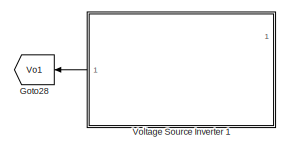
[diagram: root canvas - part 1/6, top center region]
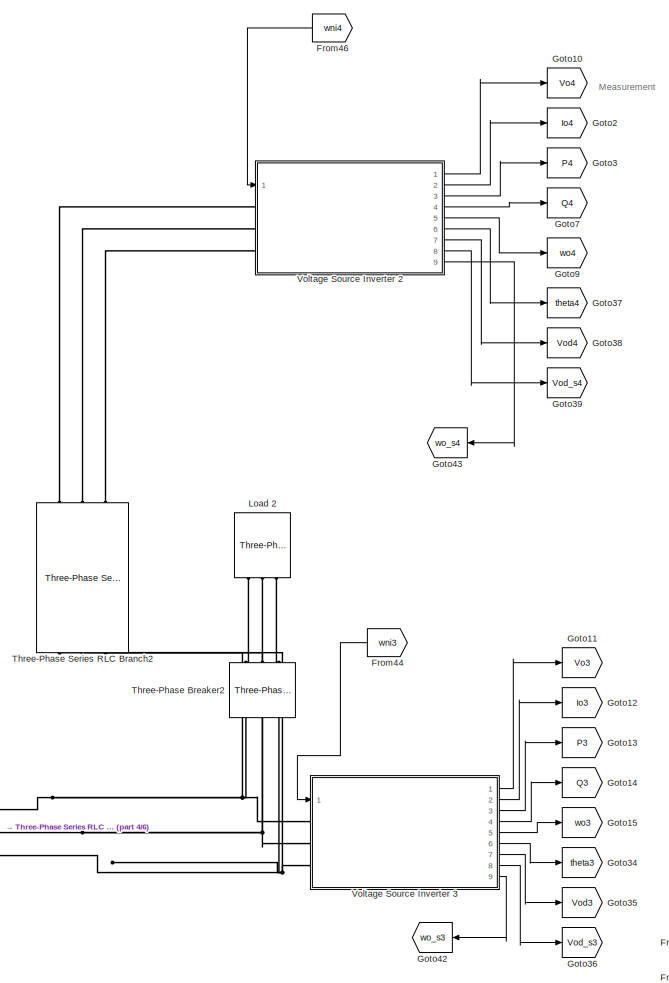
[diagram: root canvas - part 2/6, middle right region]
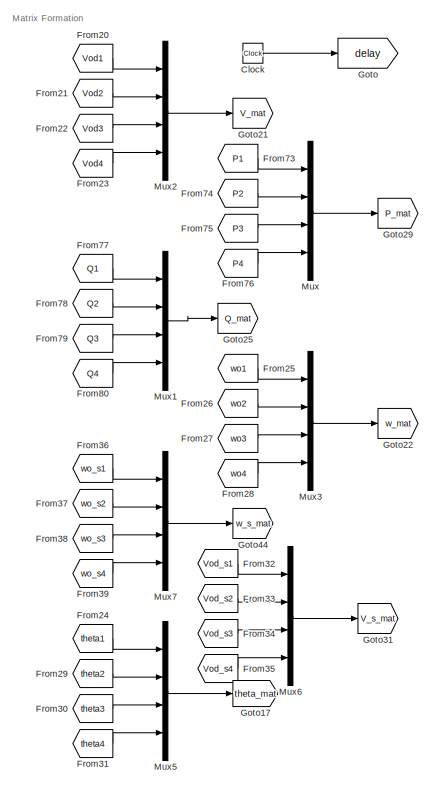
[diagram: root canvas - part 3/6, middle left region]
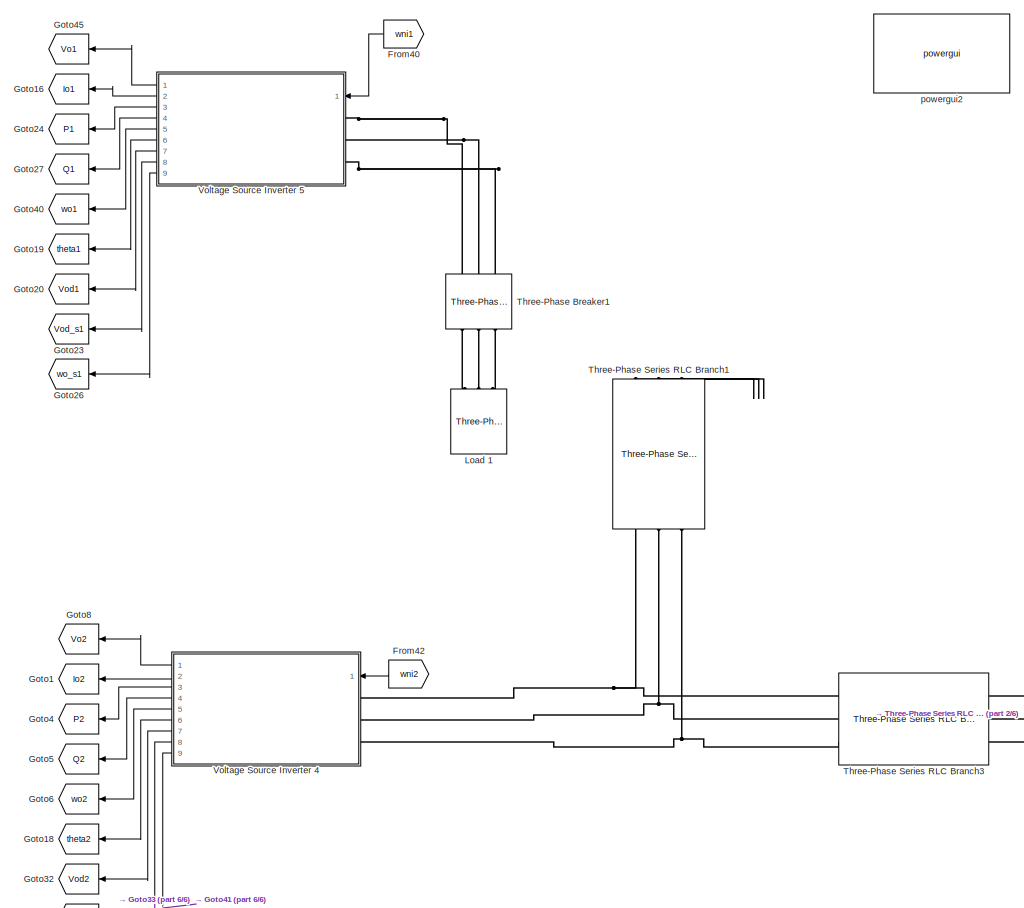
[diagram: root canvas - part 4/6, central region]
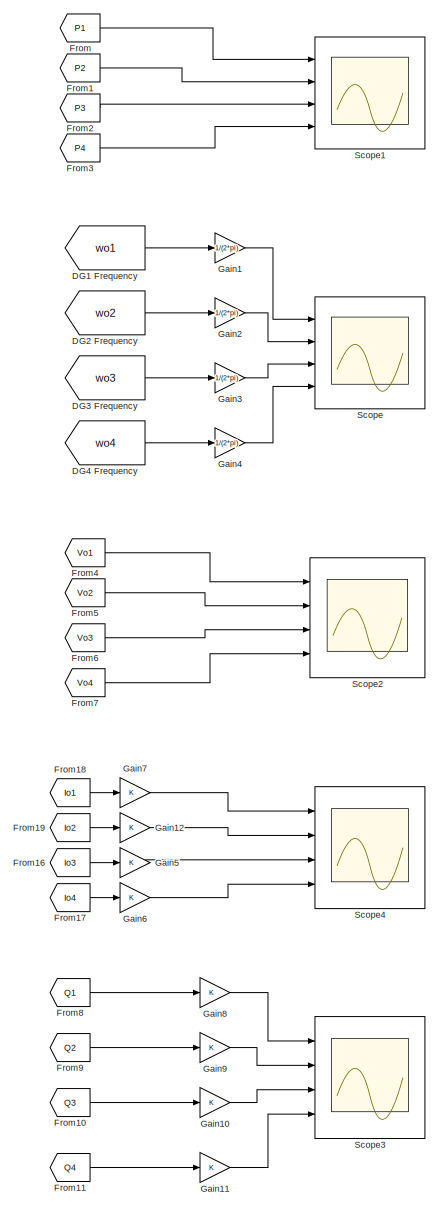
[diagram: root canvas - part 5/6, middle right region]
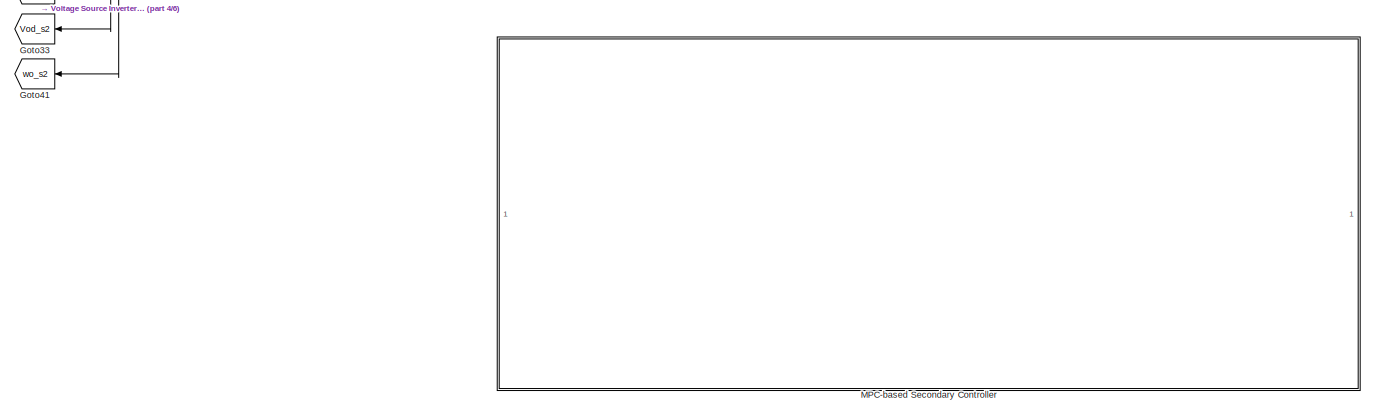
[diagram: root canvas - part 6/6, bottom center region]
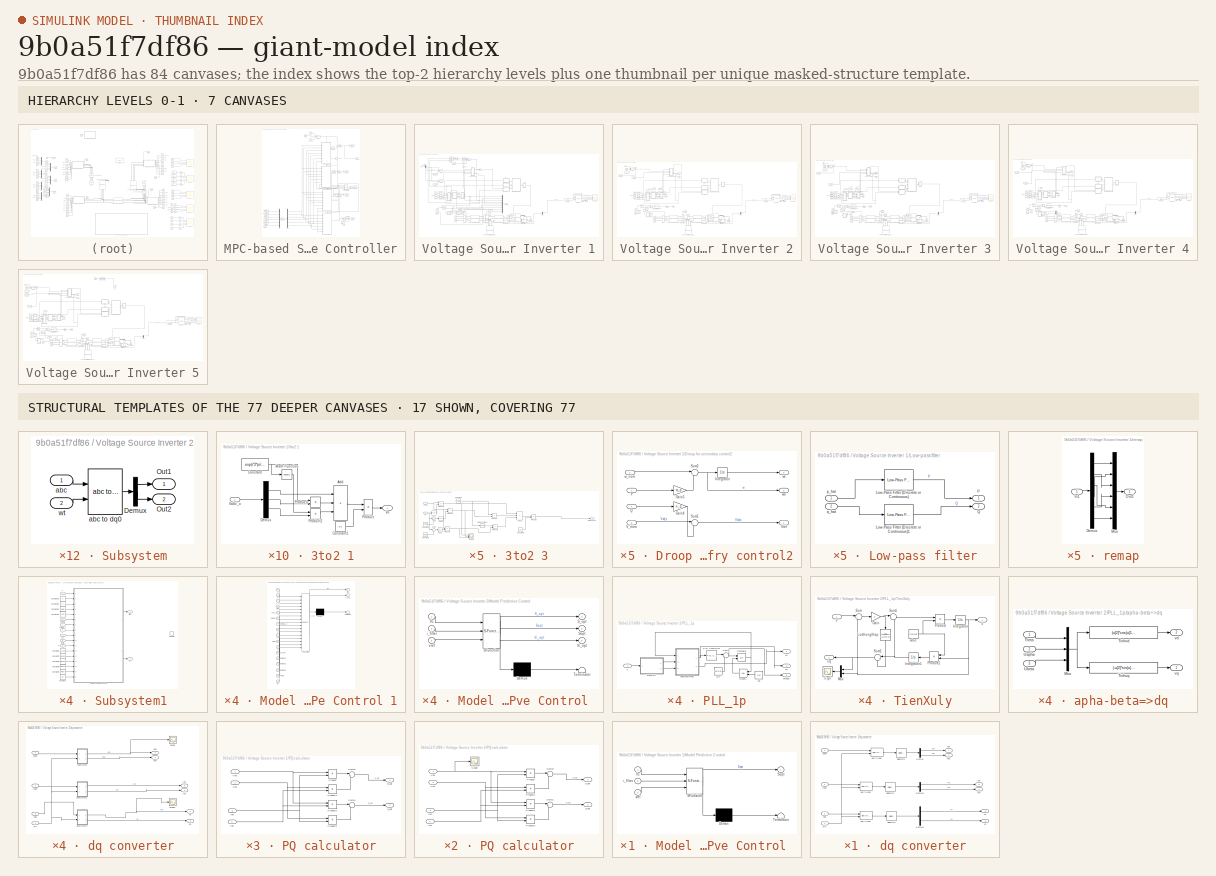
[diagram: thumbnail index - top-2 hierarchy levels (7 canvases) + 17 structural-template representatives of the remaining 77 canvases]
MODEL slx_9b0a51f7df86
KIND model
CONFIG AbsTol = auto
CONFIG EnableMultiTasking = off
CONFIG FixedStep = auto
CONFIG MaxStep = auto
CONFIG MinStep = auto
CONFIG RelTol = 1e-3
CONFIG SampleTimeConstraint = Unconstrained
CONFIG SolverName = ode23tb
CONFIG StartTime = 0.0
CONFIG StopTime = 10
WORKSPACE source: mxarray member
WORKSPACE Ts: Simulink.Parameter (value not decoded)
WORKSPACE secondary_on: Simulink.Parameter (value not decoded)
BLOCK [Clock] Clock
BLOCK [From] DG1 Frequency
  GotoTag = wo1
  TagVisibility = global
BLOCK [From] DG2 Frequency
  GotoTag = wo2
  TagVisibility = global
BLOCK [From] DG3 Frequency
  GotoTag = wo3
  TagVisibility = global
BLOCK [From] DG4 Frequency
  GotoTag = wo4
  TagVisibility = global
BLOCK [From] From
  GotoTag = P1
  TagVisibility = global
BLOCK [From] From1
  GotoTag = P2
  TagVisibility = global
BLOCK [From] From10
  GotoTag = Q3
  TagVisibility = global
BLOCK [From] From11
  GotoTag = Q4
  TagVisibility = global
BLOCK [From] From16
  GotoTag = Io3
  TagVisibility = global
BLOCK [From] From17
  GotoTag = Io4
  TagVisibility = global
BLOCK [From] From18
  GotoTag = Io1
  TagVisibility = global
BLOCK [From] From19
  GotoTag = Io2
  TagVisibility = global
BLOCK [From] From2
  GotoTag = P3
  TagVisibility = global
BLOCK [From] From20
  GotoTag = Vod1
  TagVisibility = global
BLOCK [From] From21
  GotoTag = Vod2
  TagVisibility = global
BLOCK [From] From22
  GotoTag = Vod3
  TagVisibility = global
BLOCK [From] From23
  GotoTag = Vod4
  TagVisibility = global
BLOCK [From] From24
  GotoTag = theta1
  TagVisibility = global
BLOCK [From] From25
  GotoTag = wo1
  TagVisibility = global
BLOCK [From] From26
  GotoTag = wo2
  TagVisibility = global
BLOCK [From] From27
  GotoTag = wo3
  TagVisibility = global
BLOCK [From] From28
  GotoTag = wo4
  TagVisibility = global
BLOCK [From] From29
  GotoTag = theta2
BLOCK [From] From3
  GotoTag = P4
  TagVisibility = global
BLOCK [From] From30
  GotoTag = theta3
BLOCK [From] From31
  GotoTag = theta4
BLOCK [From] From32
  GotoTag = Vod_s1
BLOCK [From] From33
  GotoTag = Vod_s2
BLOCK [From] From34
  GotoTag = Vod_s3
BLOCK [From] From35
  GotoTag = Vod_s4
BLOCK [From] From36
  GotoTag = wo_s1
  TagVisibility = global
BLOCK [From] From37
  GotoTag = wo_s2
  TagVisibility = global
BLOCK [From] From38
  GotoTag = wo_s3
  TagVisibility = global
BLOCK [From] From39
  GotoTag = wo_s4
  TagVisibility = global
BLOCK [From] From4
  GotoTag = Vo1
  TagVisibility = global
BLOCK [From] From40
  GotoTag = wni1
  NameLocation = top
  TagVisibility = global
BLOCK [From] From42
  GotoTag = wni2
  NameLocation = top
  TagVisibility = global
BLOCK [From] From44
  GotoTag = wni3
  NameLocation = top
  TagVisibility = global
BLOCK [From] From46
  GotoTag = wni4
  NameLocation = top
  TagVisibility = global
BLOCK [From] From5
  GotoTag = Vo2
  TagVisibility = global
BLOCK [From] From6
  GotoTag = Vo3
  TagVisibility = global
BLOCK [From] From7
  GotoTag = Vo4
  TagVisibility = global
BLOCK [From] From73
  GotoTag = P1
  TagVisibility = global
BLOCK [From] From74
  GotoTag = P2
  TagVisibility = global
BLOCK [From] From75
  GotoTag = P3
  TagVisibility = global
BLOCK [From] From76
  GotoTag = P4
  TagVisibility = global
BLOCK [From] From77
  GotoTag = Q1
  TagVisibility = global
BLOCK [From] From78
  GotoTag = Q2
  TagVisibility = global
BLOCK [From] From79
  GotoTag = Q3
  TagVisibility = global
BLOCK [From] From8
  GotoTag = Q1
  TagVisibility = global
BLOCK [From] From80
  GotoTag = Q4
  TagVisibility = global
BLOCK [From] From9
  GotoTag = Q2
  TagVisibility = global
BLOCK [Gain] Gain1
  Gain = 1/(2*pi)
BLOCK [Gain] Gain10
BLOCK [Gain] Gain11
BLOCK [Gain] Gain12
BLOCK [Gain] Gain2
  Gain = 1/(2*pi)
BLOCK [Gain] Gain3
  Gain = 1/(2*pi)
BLOCK [Gain] Gain4
  Gain = 1/(2*pi)
BLOCK [Gain] Gain5
BLOCK [Gain] Gain6
BLOCK [Gain] Gain7
BLOCK [Gain] Gain8
BLOCK [Gain] Gain9
BLOCK [Goto] Goto
  GotoTag = delay
  TagVisibility = global
BLOCK [Goto] Goto1
  GotoTag = Io2
  NameLocation = top
  TagVisibility = global
BLOCK [Goto] Goto10
  GotoTag = Vo4
  NameLocation = top
  TagVisibility = global
BLOCK [Goto] Goto11
  GotoTag = Vo3
  NameLocation = top
  TagVisibility = global
BLOCK [Goto] Goto12
  GotoTag = Io3
  NameLocation = top
  TagVisibility = global
BLOCK [Goto] Goto13
  GotoTag = P3
  NameLocation = top
  TagVisibility = global
BLOCK [Goto] Goto14
  GotoTag = Q3
  NameLocation = top
  TagVisibility = global
BLOCK [Goto] Goto15
  GotoTag = wo3
  NameLocation = top
  TagVisibility = global
BLOCK [Goto] Goto16
  GotoTag = Io1
  NameLocation = top
  TagVisibility = global
BLOCK [Goto] Goto17
  GotoTag = theta_mat
  TagVisibility = global
BLOCK [Goto] Goto18
  GotoTag = theta2
  NameLocation = top
BLOCK [Goto] Goto19
  GotoTag = theta1
  NameLocation = top
  TagVisibility = global
BLOCK [Goto] Goto2
  GotoTag = Io4
  NameLocation = top
  TagVisibility = global
BLOCK [Goto] Goto20
  GotoTag = Vod1
  NameLocation = top
  TagVisibility = global
BLOCK [Goto] Goto21
  GotoTag = V_mat
  TagVisibility = global
BLOCK [Goto] Goto22
  GotoTag = w_mat
  TagVisibility = global
BLOCK [Goto] Goto23
  GotoTag = Vod_s1
  NameLocation = top
BLOCK [Goto] Goto24
  GotoTag = P1
  NameLocation = top
  TagVisibility = global
BLOCK [Goto] Goto25
  GotoTag = Q_mat
  TagVisibility = global
BLOCK [Goto] Goto26
  GotoTag = wo_s1
  NameLocation = top
  TagVisibility = global
BLOCK [Goto] Goto27
  GotoTag = Q1
  NameLocation = top
  TagVisibility = global
BLOCK [Goto] Goto28
  Commented = on
  GotoTag = Vo1
  NameLocation = top
  TagVisibility = global
BLOCK [Goto] Goto29
  GotoTag = P_mat
  TagVisibility = global
BLOCK [Goto] Goto3
  GotoTag = P4
  NameLocation = top
  TagVisibility = global
BLOCK [Goto] Goto31
  GotoTag = V_s_mat
  TagVisibility = global
BLOCK [Goto] Goto32
  GotoTag = Vod2
  NameLocation = top
  TagVisibility = global
BLOCK [Goto] Goto33
  GotoTag = Vod_s2
  NameLocation = top
BLOCK [Goto] Goto34
  GotoTag = theta3
BLOCK [Goto] Goto35
  GotoTag = Vod3
  TagVisibility = global
BLOCK [Goto] Goto36
  GotoTag = Vod_s3
BLOCK [Goto] Goto37
  GotoTag = theta4
BLOCK [Goto] Goto38
  GotoTag = Vod4
  TagVisibility = global
BLOCK [Goto] Goto39
  GotoTag = Vod_s4
BLOCK [Goto] Goto4
  GotoTag = P2
  NameLocation = top
  TagVisibility = global
BLOCK [Goto] Goto40
  GotoTag = wo1
  NameLocation = top
  TagVisibility = global
BLOCK [Goto] Goto41
  GotoTag = wo_s2
  NameLocation = top
  TagVisibility = global
BLOCK [Goto] Goto42
  GotoTag = wo_s3
  NameLocation = top
  TagVisibility = global
BLOCK [Goto] Goto43
  GotoTag = wo_s4
  NameLocation = top
  TagVisibility = global
BLOCK [Goto] Goto44
  GotoTag = w_s_mat
  TagVisibility = global
BLOCK [Goto] Goto45
  GotoTag = Vo1
  NameLocation = top
  TagVisibility = global
BLOCK [Goto] Goto5
  GotoTag = Q2
  NameLocation = top
  TagVisibility = global
BLOCK [Goto] Goto6
  GotoTag = wo2
  NameLocation = top
  TagVisibility = global
BLOCK [Goto] Goto7
  GotoTag = Q4
  NameLocation = top
  TagVisibility = global
BLOCK [Goto] Goto8
  GotoTag = Vo2
  NameLocation = top
  TagVisibility = global
BLOCK [Goto] Goto9
  GotoTag = wo4
  NameLocation = top
  TagVisibility = global
BLOCK [Reference] Load 1  REF=spsThreePhaseSeriesRLCLoadLib/Three-Phase
Series RLC Load
  AttributesFormatString = \n
  NameLocation = right
  Ports = [0, 0, 0, 0, 0, 3]
  SourceBlock = spsThreePhaseSeriesRLCLoadLib/Three-Phase\nSeries RLC Load
  SourceProductBaseCode = PS
  SourceType = Three-Phase Series RLC Load
BLOCK [Reference] Load 2  REF=spsThreePhaseSeriesRLCLoadLib/Three-Phase
Series RLC Load
  AttributesFormatString = \n
  NameLocation = right
  Ports = [0, 0, 0, 0, 0, 3]
  SourceBlock = spsThreePhaseSeriesRLCLoadLib/Three-Phase\nSeries RLC Load
  SourceProductBaseCode = PS
  SourceType = Three-Phase Series RLC Load
BLOCK [SubSystem] MPC-based Secondary Controller
  Ports = []
  RequestExecContextInheritance = off
BLOCK [Constant] MPC-based Secondary Controller/Constant
BLOCK [Constant] MPC-based Secondary Controller/Constant1
  Value = 0
BLOCK [Demux] MPC-based Secondary Controller/Demux
  Outputs = 6
  Ports = [1, 6]
BLOCK [From] MPC-based Secondary Controller/From
  GotoTag = delay
  TagVisibility = global
BLOCK [From] MPC-based Secondary Controller/From1
  GotoTag = theta_mat
  TagVisibility = global
BLOCK [From] MPC-based Secondary Controller/From2
  GotoTag = w_mat
  TagVisibility = global
BLOCK [From] MPC-based Secondary Controller/From3
  GotoTag = w_s_mat
  TagVisibility = global
BLOCK [From] MPC-based Secondary Controller/From34
  GotoTag = P_mat
  TagVisibility = global
BLOCK [From] MPC-based Secondary Controller/From4
  GotoTag = V_mat
  TagVisibility = global
BLOCK [From] MPC-based Secondary Controller/From5
  GotoTag = V_s_mat
  TagVisibility = global
BLOCK [Goto] MPC-based Secondary Controller/Goto23
  GotoTag = wni1
  TagVisibility = global
BLOCK [Goto] MPC-based Secondary Controller/Goto26
  GotoTag = wni2
  TagVisibility = global
BLOCK [Goto] MPC-based Secondary Controller/Goto28
  GotoTag = wni3
  TagVisibility = global
BLOCK [Goto] MPC-based Secondary Controller/Goto32
  GotoTag = wni4
  TagVisibility = global
BLOCK [Concatenate] MPC-based Secondary Controller/Horizontal Matrix Concatenate
  ConcatenateDimension = 2
  Mode = Multidimensional array
  NumInputs = 4
  Ports = [4, 1]
BLOCK [Integrator] MPC-based Secondary Controller/Integrator
  Ports = [1, 1]
BLOCK [Integrator] MPC-based Secondary Controller/Integrator2
  Ports = [1, 1]
BLOCK [Integrator] MPC-based Secondary Controller/Integrator4
  Ports = [1, 1]
BLOCK [Integrator] MPC-based Secondary Controller/Integrator6
  Ports = [1, 1]
BLOCK [Mux] MPC-based Secondary Controller/Mux
  DisplayOption = bar
  Inputs = 6
  Ports = [6, 1]
BLOCK [Scope] MPC-based Secondary Controller/Scope
  Floating = off
  NumInputPorts = 1
  Ports = [1]
  ScopeSpecificationString = Simulink.scopes.TimeScopeBlockCfg('CurrentConfiguration', extmgr.ConfigurationSet(extmgr.Configuration('Core','General UI',true),extmgr.Configuration('Core','Source UI',true),extmgr.Configuration('Sources','WiredSimulink',true,'DataLoggingVariableName','ScopeData3'),extmgr.Configuration('Visuals','Time Domain',true,'SerializedDisplays',{struct('MinYLimReal','-0.01003','MaxYLimReal','0.06828','YLab...<+1448ch>
BLOCK [Scope] MPC-based Secondary Controller/Scope1
  Floating = off
  NumInputPorts = 1
  Ports = [1]
  ScopeSpecificationString = Simulink.scopes.TimeScopeBlockCfg('CurrentConfiguration', extmgr.ConfigurationSet(extmgr.Configuration('Core','General UI',true),extmgr.Configuration('Core','Source UI',true),extmgr.Configuration('Sources','WiredSimulink',true,'DataLoggingVariableName','ScopeData2'),extmgr.Configuration('Visuals','Time Domain',true,'SerializedDisplays',{struct('MinYLimReal','-0.00916','MaxYLimReal','0.06043','YLab...<+1447ch>
BLOCK [Scope] MPC-based Secondary Controller/Scope2
  Floating = off
  NumInputPorts = 1
  Ports = [1]
  ScopeSpecificationString = Simulink.scopes.TimeScopeBlockCfg('CurrentConfiguration', extmgr.ConfigurationSet(extmgr.Configuration('Core','General UI',true),extmgr.Configuration('Core','Source UI',true),extmgr.Configuration('Sources','WiredSimulink',true,'DataLoggingVariableName','ScopeData1'),extmgr.Configuration('Visuals','Time Domain',true,'SerializedDisplays',{struct('MinYLimReal','-0.125','MaxYLimReal','1.125','YLabelRe...<+1438ch>
BLOCK [Selector] MPC-based Secondary Controller/Selector1
  IndexOptions = Index vector (dialog)
  Indices = [N+1]
  InputPortWidth = 5*N
  OutputSizes = 1
  Ports = [1, 1]
BLOCK [Selector] MPC-based Secondary Controller/Selector2
  IndexOptions = Index vector (dialog)
  Indices = [N+1]
  InputPortWidth = 5*N
  OutputSizes = 1
  Ports = [1, 1]
BLOCK [Selector] MPC-based Secondary Controller/Selector3
  IndexOptions = Index vector (dialog)
  Indices = [N+1]
  InputPortWidth = 5*N
  OutputSizes = 1
  Ports = [1, 1]
BLOCK [Selector] MPC-based Secondary Controller/Selector4
  IndexOptions = Index vector (dialog)
  Indices = [N+1]
  InputPortWidth = 5*N
  OutputSizes = 1
  Ports = [1, 1]
BLOCK [SubSystem] MPC-based Secondary Controller/Subsystem1
  Ports = [7, 2, 1]
  RequestExecContextInheritance = off
BLOCK [Constant] MPC-based Secondary Controller/Subsystem1/Constant
  Value = aij
BLOCK [Constant] MPC-based Secondary Controller/Subsystem1/Constant12
  Value = L_f
BLOCK [Constant] MPC-based Secondary Controller/Subsystem1/Constant13
  Value = Mpw
BLOCK [Constant] MPC-based Secondary Controller/Subsystem1/Constant15
  Value = Tsec
BLOCK [Constant] MPC-based Secondary Controller/Subsystem1/Constant16
  Value = a
BLOCK [Constant] MPC-based Secondary Controller/Subsystem1/Constant5
  Value = lambda3
BLOCK [Constant] MPC-based Secondary Controller/Subsystem1/Constant6
  Value = lambda2
BLOCK [Constant] MPC-based Secondary Controller/Subsystem1/Constant7
  Value = lambda1
BLOCK [Constant] MPC-based Secondary Controller/Subsystem1/Constant8
  Value = w_nom
BLOCK [Constant] MPC-based Secondary Controller/Subsystem1/Constant9
  Value = Pmax
BLOCK [EnablePort] MPC-based Secondary Controller/Subsystem1/Enable
  Ports = []
BLOCK [SubSystem] MPC-based Secondary Controller/Subsystem1/Model Predictive Control 1
  ErrorFcn = Stateflow.Translate.translate
  MinAlgLoopOccurrences = on
  NameLocation = top
  PermitHierarchicalResolution = ExplicitOnly
  Ports = [17, 2]
  RequestExecContextInheritance = off
  SFBlockType = MATLAB Function
  SystemSampleTime = Tsamp
BLOCK [Demux] MPC-based Secondary Controller/Subsystem1/Model Predictive Control 1/ Demux 
  Outputs = 1
  Ports = [1, 1]
BLOCK [S-Function] MPC-based Secondary Controller/Subsystem1/Model Predictive Control 1/ SFunction 
  EnableBusSupport = on
  FunctionName = sf_sfun
  Parameters = N
  PortCounts = [17 3]
  Ports = [17, 3]
  SFcnIsStateOwnerBlock = off
  SFunctionDeploymentMode = off
  Tag = Stateflow S-Function 4
BLOCK [Terminator] MPC-based Secondary Controller/Subsystem1/Model Predictive Control 1/ Terminator 
BLOCK [Inport] MPC-based Secondary Controller/Subsystem1/Model Predictive Control 1/L_f
  Port = 3
BLOCK [Inport] MPC-based Secondary Controller/Subsystem1/Model Predictive Control 1/Mpw
  Port = 4
BLOCK [Inport] MPC-based Secondary Controller/Subsystem1/Model Predictive Control 1/P
  Port = 11
BLOCK [Inport] MPC-based Secondary Controller/Subsystem1/Model Predictive Control 1/Pmax
  Port = 16
BLOCK [Inport] MPC-based Secondary Controller/Subsystem1/Model Predictive Control 1/Tsec
  Port = 5
BLOCK [Inport] MPC-based Secondary Controller/Subsystem1/Model Predictive Control 1/V
  Port = 8
BLOCK [Inport] MPC-based Secondary Controller/Subsystem1/Model Predictive Control 1/V_s
  Port = 9
BLOCK [Inport] MPC-based Secondary Controller/Subsystem1/Model Predictive Control 1/X
BLOCK [Inport] MPC-based Secondary Controller/Subsystem1/Model Predictive Control 1/a
  Port = 2
BLOCK [Inport] MPC-based Secondary Controller/Subsystem1/Model Predictive Control 1/aij
  Port = 17
BLOCK [Outport] MPC-based Secondary Controller/Subsystem1/Model Predictive Control 1/flag
BLOCK [Inport] MPC-based Secondary Controller/Subsystem1/Model Predictive Control 1/lambda1
  Port = 13
BLOCK [Inport] MPC-based Secondary Controller/Subsystem1/Model Predictive Control 1/lambda2
  Port = 14
BLOCK [Inport] MPC-based Secondary Controller/Subsystem1/Model Predictive Control 1/lambda3
  Port = 15
BLOCK [Inport] MPC-based Secondary Controller/Subsystem1/Model Predictive Control 1/omega
  Port = 6
BLOCK [Inport] MPC-based Secondary Controller/Subsystem1/Model Predictive Control 1/omega_s
  Port = 7
BLOCK [Inport] MPC-based Secondary Controller/Subsystem1/Model Predictive Control 1/theta
  Port = 10
BLOCK [Inport] MPC-based Secondary Controller/Subsystem1/Model Predictive Control 1/w_nom
  Port = 12
BLOCK [Outport] MPC-based Secondary Controller/Subsystem1/Model Predictive Control 1/x_out
  Port = 2
BLOCK [Inport] MPC-based Secondary Controller/Subsystem1/P
  Port = 6
BLOCK [Inport] MPC-based Secondary Controller/Subsystem1/V
  Port = 3
BLOCK [Inport] MPC-based Secondary Controller/Subsystem1/V_s
  Port = 4
BLOCK [Inport] MPC-based Secondary Controller/Subsystem1/X
  Port = 7
BLOCK [Outport] MPC-based Secondary Controller/Subsystem1/flag
  Port = 2
  VarSizeSig = No
BLOCK [Inport] MPC-based Secondary Controller/Subsystem1/omega
BLOCK [Inport] MPC-based Secondary Controller/Subsystem1/omega_s
  Port = 2
BLOCK [Inport] MPC-based Secondary Controller/Subsystem1/theta
  Port = 5
BLOCK [Outport] MPC-based Secondary Controller/Subsystem1/x
  VarSizeSig = No
BLOCK [SubSystem] MPC-based Secondary Controller/Subsystem5
  Ports = [7, 2, 1]
  RequestExecContextInheritance = off
BLOCK [Constant] MPC-based Secondary Controller/Subsystem5/Constant
  Value = aij
BLOCK [Constant] MPC-based Secondary Controller/Subsystem5/Constant12
  Value = L_f
BLOCK [Constant] MPC-based Secondary Controller/Subsystem5/Constant13
  Value = Mpw
BLOCK [Constant] MPC-based Secondary Controller/Subsystem5/Constant15
  Value = Tsec
BLOCK [Constant] MPC-based Secondary Controller/Subsystem5/Constant16
  Value = a
BLOCK [Constant] MPC-based Secondary Controller/Subsystem5/Constant5
  Value = lambda3
BLOCK [Constant] MPC-based Secondary Controller/Subsystem5/Constant6
  Value = lambda2
BLOCK [Constant] MPC-based Secondary Controller/Subsystem5/Constant7
  Value = lambda1
BLOCK [Constant] MPC-based Secondary Controller/Subsystem5/Constant8
  Value = w_nom
BLOCK [Constant] MPC-based Secondary Controller/Subsystem5/Constant9
  Value = Pmax
BLOCK [EnablePort] MPC-based Secondary Controller/Subsystem5/Enable
  Ports = []
BLOCK [SubSystem] MPC-based Secondary Controller/Subsystem5/Model Predictive Control 1
  ErrorFcn = Stateflow.Translate.translate
  MinAlgLoopOccurrences = on
  NameLocation = top
  PermitHierarchicalResolution = ExplicitOnly
  Ports = [17, 2]
  RequestExecContextInheritance = off
  SFBlockType = MATLAB Function
  SystemSampleTime = Tsamp
BLOCK [Demux] MPC-based Secondary Controller/Subsystem5/Model Predictive Control 1/ Demux 
  Outputs = 1
  Ports = [1, 1]
BLOCK [S-Function] MPC-based Secondary Controller/Subsystem5/Model Predictive Control 1/ SFunction 
  EnableBusSupport = on
  FunctionName = sf_sfun
  Parameters = N
  PortCounts = [17 3]
  Ports = [17, 3]
  SFcnIsStateOwnerBlock = off
  SFunctionDeploymentMode = off
  Tag = Stateflow S-Function 14
BLOCK [Terminator] MPC-based Secondary Controller/Subsystem5/Model Predictive Control 1/ Terminator 
BLOCK [Inport] MPC-based Secondary Controller/Subsystem5/Model Predictive Control 1/L_f
  Port = 3
BLOCK [Inport] MPC-based Secondary Controller/Subsystem5/Model Predictive Control 1/Mpw
  Port = 4
BLOCK [Inport] MPC-based Secondary Controller/Subsystem5/Model Predictive Control 1/P
  Port = 11
BLOCK [Inport] MPC-based Secondary Controller/Subsystem5/Model Predictive Control 1/Pmax
  Port = 16
BLOCK [Inport] MPC-based Secondary Controller/Subsystem5/Model Predictive Control 1/Tsec
  Port = 5
BLOCK [Inport] MPC-based Secondary Controller/Subsystem5/Model Predictive Control 1/V
  Port = 8
BLOCK [Inport] MPC-based Secondary Controller/Subsystem5/Model Predictive Control 1/V_s
  Port = 9
BLOCK [Inport] MPC-based Secondary Controller/Subsystem5/Model Predictive Control 1/X
BLOCK [Inport] MPC-based Secondary Controller/Subsystem5/Model Predictive Control 1/a
  Port = 2
BLOCK [Inport] MPC-based Secondary Controller/Subsystem5/Model Predictive Control 1/aij
  Port = 17
BLOCK [Outport] MPC-based Secondary Controller/Subsystem5/Model Predictive Control 1/flag
BLOCK [Inport] MPC-based Secondary Controller/Subsystem5/Model Predictive Control 1/lambda1
  Port = 13
BLOCK [Inport] MPC-based Secondary Controller/Subsystem5/Model Predictive Control 1/lambda2
  Port = 14
BLOCK [Inport] MPC-based Secondary Controller/Subsystem5/Model Predictive Control 1/lambda3
  Port = 15
BLOCK [Inport] MPC-based Secondary Controller/Subsystem5/Model Predictive Control 1/omega
  Port = 6
BLOCK [Inport] MPC-based Secondary Controller/Subsystem5/Model Predictive Control 1/omega_s
  Port = 7
BLOCK [Inport] MPC-based Secondary Controller/Subsystem5/Model Predictive Control 1/theta
  Port = 10
BLOCK [Inport] MPC-based Secondary Controller/Subsystem5/Model Predictive Control 1/w_nom
  Port = 12
BLOCK [Outport] MPC-based Secondary Controller/Subsystem5/Model Predictive Control 1/x_out
  Port = 2
BLOCK [Inport] MPC-based Secondary Controller/Subsystem5/P
  Port = 6
BLOCK [Inport] MPC-based Secondary Controller/Subsystem5/V
  Port = 3
BLOCK [Inport] MPC-based Secondary Controller/Subsystem5/V_s
  Port = 4
BLOCK [Inport] MPC-based Secondary Controller/Subsystem5/X
  Port = 7
BLOCK [Outport] MPC-based Secondary Controller/Subsystem5/flag
  Port = 2
  VarSizeSig = No
BLOCK [Inport] MPC-based Secondary Controller/Subsystem5/omega
BLOCK [Inport] MPC-based Secondary Controller/Subsystem5/omega_s
  Port = 2
BLOCK [Inport] MPC-based Secondary Controller/Subsystem5/theta
  Port = 5
BLOCK [Outport] MPC-based Secondary Controller/Subsystem5/x
  VarSizeSig = No
BLOCK [SubSystem] MPC-based Secondary Controller/Subsystem6
  Ports = [7, 2, 1]
  RequestExecContextInheritance = off
BLOCK [Constant] MPC-based Secondary Controller/Subsystem6/Constant
  Value = aij
BLOCK [Constant] MPC-based Secondary Controller/Subsystem6/Constant12
  Value = L_f
BLOCK [Constant] MPC-based Secondary Controller/Subsystem6/Constant13
  Value = Mpw
BLOCK [Constant] MPC-based Secondary Controller/Subsystem6/Constant15
  Value = Tsec
BLOCK [Constant] MPC-based Secondary Controller/Subsystem6/Constant16
  Value = a
BLOCK [Constant] MPC-based Secondary Controller/Subsystem6/Constant5
  Value = lambda3
BLOCK [Constant] MPC-based Secondary Controller/Subsystem6/Constant6
  Value = lambda2
BLOCK [Constant] MPC-based Secondary Controller/Subsystem6/Constant7
  Value = lambda1
BLOCK [Constant] MPC-based Secondary Controller/Subsystem6/Constant8
  Value = w_nom
BLOCK [Constant] MPC-based Secondary Controller/Subsystem6/Constant9
  Value = Pmax
BLOCK [EnablePort] MPC-based Secondary Controller/Subsystem6/Enable
  Ports = []
BLOCK [SubSystem] MPC-based Secondary Controller/Subsystem6/Model Predictive Control 1
  ErrorFcn = Stateflow.Translate.translate
  MinAlgLoopOccurrences = on
  NameLocation = top
  PermitHierarchicalResolution = ExplicitOnly
  Ports = [17, 2]
  RequestExecContextInheritance = off
  SFBlockType = MATLAB Function
  SystemSampleTime = Tsamp
BLOCK [Demux] MPC-based Secondary Controller/Subsystem6/Model Predictive Control 1/ Demux 
  Outputs = 1
  Ports = [1, 1]
BLOCK [S-Function] MPC-based Secondary Controller/Subsystem6/Model Predictive Control 1/ SFunction 
  EnableBusSupport = on
  FunctionName = sf_sfun
  Parameters = N
  PortCounts = [17 3]
  Ports = [17, 3]
  SFcnIsStateOwnerBlock = off
  SFunctionDeploymentMode = off
  Tag = Stateflow S-Function 5
BLOCK [Terminator] MPC-based Secondary Controller/Subsystem6/Model Predictive Control 1/ Terminator 
BLOCK [Inport] MPC-based Secondary Controller/Subsystem6/Model Predictive Control 1/L_f
  Port = 3
BLOCK [Inport] MPC-based Secondary Controller/Subsystem6/Model Predictive Control 1/Mpw
  Port = 4
BLOCK [Inport] MPC-based Secondary Controller/Subsystem6/Model Predictive Control 1/P
  Port = 11
BLOCK [Inport] MPC-based Secondary Controller/Subsystem6/Model Predictive Control 1/Pmax
  Port = 16
BLOCK [Inport] MPC-based Secondary Controller/Subsystem6/Model Predictive Control 1/Tsec
  Port = 5
BLOCK [Inport] MPC-based Secondary Controller/Subsystem6/Model Predictive Control 1/V
  Port = 8
BLOCK [Inport] MPC-based Secondary Controller/Subsystem6/Model Predictive Control 1/V_s
  Port = 9
BLOCK [Inport] MPC-based Secondary Controller/Subsystem6/Model Predictive Control 1/X
BLOCK [Inport] MPC-based Secondary Controller/Subsystem6/Model Predictive Control 1/a
  Port = 2
BLOCK [Inport] MPC-based Secondary Controller/Subsystem6/Model Predictive Control 1/aij
  Port = 17
BLOCK [Outport] MPC-based Secondary Controller/Subsystem6/Model Predictive Control 1/flag
BLOCK [Inport] MPC-based Secondary Controller/Subsystem6/Model Predictive Control 1/lambda1
  Port = 13
BLOCK [Inport] MPC-based Secondary Controller/Subsystem6/Model Predictive Control 1/lambda2
  Port = 14
BLOCK [Inport] MPC-based Secondary Controller/Subsystem6/Model Predictive Control 1/lambda3
  Port = 15
BLOCK [Inport] MPC-based Secondary Controller/Subsystem6/Model Predictive Control 1/omega
  Port = 6
BLOCK [Inport] MPC-based Secondary Controller/Subsystem6/Model Predictive Control 1/omega_s
  Port = 7
BLOCK [Inport] MPC-based Secondary Controller/Subsystem6/Model Predictive Control 1/theta
  Port = 10
BLOCK [Inport] MPC-based Secondary Controller/Subsystem6/Model Predictive Control 1/w_nom
  Port = 12
BLOCK [Outport] MPC-based Secondary Controller/Subsystem6/Model Predictive Control 1/x_out
  Port = 2
BLOCK [Inport] MPC-based Secondary Controller/Subsystem6/P
  Port = 6
BLOCK [Inport] MPC-based Secondary Controller/Subsystem6/V
  Port = 3
BLOCK [Inport] MPC-based Secondary Controller/Subsystem6/V_s
  Port = 4
BLOCK [Inport] MPC-based Secondary Controller/Subsystem6/X
  Port = 7
BLOCK [Outport] MPC-based Secondary Controller/Subsystem6/flag
  Port = 2
  VarSizeSig = No
BLOCK [Inport] MPC-based Secondary Controller/Subsystem6/omega
BLOCK [Inport] MPC-based Secondary Controller/Subsystem6/omega_s
  Port = 2
BLOCK [Inport] MPC-based Secondary Controller/Subsystem6/theta
  Port = 5
BLOCK [Outport] MPC-based Secondary Controller/Subsystem6/x
  VarSizeSig = No
BLOCK [SubSystem] MPC-based Secondary Controller/Subsystem7
  Ports = [7, 2, 1]
  RequestExecContextInheritance = off
BLOCK [Constant] MPC-based Secondary Controller/Subsystem7/Constant
  Value = aij
BLOCK [Constant] MPC-based Secondary Controller/Subsystem7/Constant12
  Value = L_f
BLOCK [Constant] MPC-based Secondary Controller/Subsystem7/Constant13
  Value = Mpw
BLOCK [Constant] MPC-based Secondary Controller/Subsystem7/Constant15
  Value = Tsec
BLOCK [Constant] MPC-based Secondary Controller/Subsystem7/Constant16
  Value = a
BLOCK [Constant] MPC-based Secondary Controller/Subsystem7/Constant5
  Value = lambda3
BLOCK [Constant] MPC-based Secondary Controller/Subsystem7/Constant6
  Value = lambda2
BLOCK [Constant] MPC-based Secondary Controller/Subsystem7/Constant7
  Value = lambda1
BLOCK [Constant] MPC-based Secondary Controller/Subsystem7/Constant8
  Value = w_nom
BLOCK [Constant] MPC-based Secondary Controller/Subsystem7/Constant9
  Value = Pmax
BLOCK [EnablePort] MPC-based Secondary Controller/Subsystem7/Enable
  Ports = []
BLOCK [SubSystem] MPC-based Secondary Controller/Subsystem7/Model Predictive Control 1
  ErrorFcn = Stateflow.Translate.translate
  MinAlgLoopOccurrences = on
  NameLocation = top
  PermitHierarchicalResolution = ExplicitOnly
  Ports = [17, 2]
  RequestExecContextInheritance = off
  SFBlockType = MATLAB Function
  SystemSampleTime = Tsamp
BLOCK [Demux] MPC-based Secondary Controller/Subsystem7/Model Predictive Control 1/ Demux 
  Outputs = 1
  Ports = [1, 1]
BLOCK [S-Function] MPC-based Secondary Controller/Subsystem7/Model Predictive Control 1/ SFunction 
  EnableBusSupport = on
  FunctionName = sf_sfun
  Parameters = N
  PortCounts = [17 3]
  Ports = [17, 3]
  SFcnIsStateOwnerBlock = off
  SFunctionDeploymentMode = off
  Tag = Stateflow S-Function 16
BLOCK [Terminator] MPC-based Secondary Controller/Subsystem7/Model Predictive Control 1/ Terminator 
BLOCK [Inport] MPC-based Secondary Controller/Subsystem7/Model Predictive Control 1/L_f
  Port = 3
BLOCK [Inport] MPC-based Secondary Controller/Subsystem7/Model Predictive Control 1/Mpw
  Port = 4
BLOCK [Inport] MPC-based Secondary Controller/Subsystem7/Model Predictive Control 1/P
  Port = 11
BLOCK [Inport] MPC-based Secondary Controller/Subsystem7/Model Predictive Control 1/Pmax
  Port = 16
BLOCK [Inport] MPC-based Secondary Controller/Subsystem7/Model Predictive Control 1/Tsec
  Port = 5
BLOCK [Inport] MPC-based Secondary Controller/Subsystem7/Model Predictive Control 1/V
  Port = 8
BLOCK [Inport] MPC-based Secondary Controller/Subsystem7/Model Predictive Control 1/V_s
  Port = 9
BLOCK [Inport] MPC-based Secondary Controller/Subsystem7/Model Predictive Control 1/X
BLOCK [Inport] MPC-based Secondary Controller/Subsystem7/Model Predictive Control 1/a
  Port = 2
BLOCK [Inport] MPC-based Secondary Controller/Subsystem7/Model Predictive Control 1/aij
  Port = 17
BLOCK [Outport] MPC-based Secondary Controller/Subsystem7/Model Predictive Control 1/flag
BLOCK [Inport] MPC-based Secondary Controller/Subsystem7/Model Predictive Control 1/lambda1
  Port = 13
BLOCK [Inport] MPC-based Secondary Controller/Subsystem7/Model Predictive Control 1/lambda2
  Port = 14
BLOCK [Inport] MPC-based Secondary Controller/Subsystem7/Model Predictive Control 1/lambda3
  Port = 15
BLOCK [Inport] MPC-based Secondary Controller/Subsystem7/Model Predictive Control 1/omega
  Port = 6
BLOCK [Inport] MPC-based Secondary Controller/Subsystem7/Model Predictive Control 1/omega_s
  Port = 7
BLOCK [Inport] MPC-based Secondary Controller/Subsystem7/Model Predictive Control 1/theta
  Port = 10
BLOCK [Inport] MPC-based Secondary Controller/Subsystem7/Model Predictive Control 1/w_nom
  Port = 12
BLOCK [Outport] MPC-based Secondary Controller/Subsystem7/Model Predictive Control 1/x_out
  Port = 2
BLOCK [Inport] MPC-based Secondary Controller/Subsystem7/P
  Port = 6
BLOCK [Inport] MPC-based Secondary Controller/Subsystem7/V
  Port = 3
BLOCK [Inport] MPC-based Secondary Controller/Subsystem7/V_s
  Port = 4
BLOCK [Inport] MPC-based Secondary Controller/Subsystem7/X
  Port = 7
BLOCK [Outport] MPC-based Secondary Controller/Subsystem7/flag
  Port = 2
  VarSizeSig = No
BLOCK [Inport] MPC-based Secondary Controller/Subsystem7/omega
BLOCK [Inport] MPC-based Secondary Controller/Subsystem7/omega_s
  Port = 2
BLOCK [Inport] MPC-based Secondary Controller/Subsystem7/theta
  Port = 5
BLOCK [Outport] MPC-based Secondary Controller/Subsystem7/x
  VarSizeSig = No
BLOCK [Switch] MPC-based Secondary Controller/Switch
  InputSameDT = off
  SaturateOnIntegerOverflow = off
  Threshold = time_thresh
BLOCK [Math] MPC-based Secondary Controller/Transpose
  Operator = transpose
  Ports = [1, 1]
BLOCK [UnitDelay] MPC-based Secondary Controller/Unit Delay
  HasFrameUpgradeWarning = on
  SampleTime = Ts
BLOCK [ZeroOrderHold] MPC-based Secondary Controller/Zero-Order Hold
  SampleTime = Tsamp
BLOCK [Mux] Mux
  DisplayOption = bar
  Ports = [4, 1]
BLOCK [Mux] Mux1
  DisplayOption = bar
  Ports = [4, 1]
BLOCK [Mux] Mux2
  DisplayOption = bar
  Ports = [4, 1]
BLOCK [Mux] Mux3
  DisplayOption = bar
  Ports = [4, 1]
BLOCK [Mux] Mux5
  DisplayOption = bar
  Ports = [4, 1]
BLOCK [Mux] Mux6
  DisplayOption = bar
  Ports = [4, 1]
BLOCK [Mux] Mux7
  DisplayOption = bar
  Ports = [4, 1]
BLOCK [Scope] Scope
  Floating = off
  NumInputPorts = 4
  Ports = [4]
  ScopeSpecificationString = Simulink.scopes.TimeScopeBlockCfg('CurrentConfiguration', extmgr.ConfigurationSet(extmgr.Configuration('Core','General UI',true,'FigureColor',[1 1 1]),extmgr.Configuration('Core','Source UI',true),extmgr.Configuration('Sources','WiredSimulink',true,'DataLoggingVariableName','ScopeData1'),extmgr.Configuration('Visuals','Time Domain',true,'SerializedDisplays',{struct('MinYLimReal','49.99335','MaxYLi...<+2377ch>
BLOCK [Scope] Scope1
  Floating = off
  NumInputPorts = 4
  Ports = [4]
  ScopeSpecificationString = Simulink.scopes.TimeScopeBlockCfg('CurrentConfiguration', extmgr.ConfigurationSet(extmgr.Configuration('Core','General UI',true,'FigureColor',[1 1 1]),extmgr.Configuration('Core','Source UI',true),extmgr.Configuration('Sources','WiredSimulink',true,'DataLoggingVariableName','ScopeData2'),extmgr.Configuration('Visuals','Time Domain',true,'SerializedDisplays',{struct('MinYLimReal','115.51983','MaxYL...<+1988ch>
BLOCK [Scope] Scope2
  Floating = off
  NumInputPorts = 4
  Ports = [4]
  ScopeSpecificationString = Simulink.scopes.TimeScopeBlockCfg('CurrentConfiguration', extmgr.ConfigurationSet(extmgr.Configuration('Core','General UI',true,'FigureColor',[1 1 1]),extmgr.Configuration('Core','Source UI',true),extmgr.Configuration('Sources','WiredSimulink',true,'DataLoggingVariableName','ScopeData3','DataLogging',true),extmgr.Configuration('Visuals','Time Domain',true,'SerializedDisplays',{struct('MinYLimReal'...<+4407ch>
BLOCK [Scope] Scope3
  Floating = off
  NumInputPorts = 4
  Ports = [4]
  ScopeSpecificationString = Simulink.scopes.TimeScopeBlockCfg('CurrentConfiguration', extmgr.ConfigurationSet(extmgr.Configuration('Core','General UI',true),extmgr.Configuration('Core','Source UI',true),extmgr.Configuration('Sources','WiredSimulink',true,'DataLoggingVariableName','ScopeData4'),extmgr.Configuration('Visuals','Time Domain',true,'SerializedDisplays',{struct('MinYLimReal','-4459.17351','MaxYLimReal','28263.31736...<+1829ch>
BLOCK [Scope] Scope4
  Floating = off
  NumInputPorts = 4
  Ports = [4]
  ScopeSpecificationString = Simulink.scopes.TimeScopeBlockCfg('CurrentConfiguration', extmgr.ConfigurationSet(extmgr.Configuration('Core','General UI',true),extmgr.Configuration('Core','Source UI',true),extmgr.Configuration('Sources','WiredSimulink',true,'DataLoggingVariableName','ScopeData1'),extmgr.Configuration('Visuals','Time Domain',true,'SerializedDisplays',{struct('MinYLimReal','-1.88515','MaxYLimReal','1.8232','YLabe...<+3925ch>
BLOCK [Reference] Three-Phase Breaker1  REF=spsThreePhaseBreakerLib/Three-Phase Breaker
  NameLocation = right
  Ports = [0, 0, 0, 0, 0, 3, 3]
  SourceBlock = spsThreePhaseBreakerLib/Three-Phase Breaker
  SourceProductBaseCode = PS
  SourceType = Three-Phase Breaker
BLOCK [Reference] Three-Phase Breaker2  REF=spsThreePhaseBreakerLib/Three-Phase Breaker
  NameLocation = right
  Ports = [0, 0, 0, 0, 0, 3, 3]
  SourceBlock = spsThreePhaseBreakerLib/Three-Phase Breaker
  SourceProductBaseCode = PS
  SourceType = Three-Phase Breaker
BLOCK [Reference] Three-Phase Series RLC Branch1  REF=spsThreePhaseSeriesRLCBranchLib/Three-Phase
Series RLC Branch
  AttributesFormatString = \n
  NameLocation = left
  Ports = [0, 0, 0, 0, 0, 3, 3]
  SourceBlock = spsThreePhaseSeriesRLCBranchLib/Three-Phase\nSeries RLC Branch
  SourceProductBaseCode = PS
  SourceType = Three-Phase Series RLC Branch
BLOCK [Reference] Three-Phase Series RLC Branch2  REF=spsThreePhaseSeriesRLCBranchLib/Three-Phase
Series RLC Branch
  AttributesFormatString = \n
  NameLocation = left
  Ports = [0, 0, 0, 0, 0, 3, 3]
  SourceBlock = spsThreePhaseSeriesRLCBranchLib/Three-Phase\nSeries RLC Branch
  SourceProductBaseCode = PS
  SourceType = Three-Phase Series RLC Branch
BLOCK [Reference] Three-Phase Series RLC Branch3  REF=spsThreePhaseSeriesRLCBranchLib/Three-Phase
Series RLC Branch
  AttributesFormatString = \n
  NameLocation = top
  Ports = [0, 0, 0, 0, 0, 3, 3]
  SourceBlock = spsThreePhaseSeriesRLCBranchLib/Three-Phase\nSeries RLC Branch
  SourceProductBaseCode = PS
  SourceType = Three-Phase Series RLC Branch
BLOCK [SubSystem] Voltage Source Inverter 1
  Commented = on
  NameLocation = top
  Ports = [1, 1, 0, 0, 0, 3]
  RequestExecContextInheritance = off
BLOCK [SubSystem] Voltage Source Inverter 1/3to2 1
  Ports = [1, 1]
  RequestExecContextInheritance = off
BLOCK [Sum] Voltage Source Inverter 1/3to2 1/Add
  IconShape = rectangular
  Inputs = +++
  Ports = [3, 1]
BLOCK [Constant] Voltage Source Inverter 1/3to2 1/Constant
  Value = exp(i*2*pi/3)
BLOCK [Constant] Voltage Source Inverter 1/3to2 1/Constant1
  Value = 2/3
BLOCK [Demux] Voltage Source Inverter 1/3to2 1/Demux
  NameLocation = top
  Outputs = 3
  Ports = [1, 3]
BLOCK [Math] Voltage Source Inverter 1/3to2 1/Math Function
  Operator = square
  Ports = [1, 1]
  SignedPower = on
BLOCK [Product] Voltage Source Inverter 1/3to2 1/Product
  Ports = [2, 1]
  RndMeth = Zero
BLOCK [Product] Voltage Source Inverter 1/3to2 1/Product1
  Ports = [2, 1]
  RndMeth = Zero
BLOCK [Product] Voltage Source Inverter 1/3to2 1/Product2
  Ports = [2, 1]
  RndMeth = Zero
BLOCK [Inport] Voltage Source Inverter 1/3to2 1/Vabc_o 
BLOCK [Outport] Voltage Source Inverter 1/3to2 1/Vo
  VectorParamsAs1DForOutWhenUnconnected = off
BLOCK [SubSystem] Voltage Source Inverter 1/3to2 2
  Ports = [1, 1]
  RequestExecContextInheritance = off
BLOCK [Sum] Voltage Source Inverter 1/3to2 2/Add
  IconShape = rectangular
  Inputs = +++
  Ports = [3, 1]
BLOCK [Constant] Voltage Source Inverter 1/3to2 2/Constant
  Value = exp(i*2*pi/3)
BLOCK [Constant] Voltage Source Inverter 1/3to2 2/Constant1
  Value = 2/3
BLOCK [Demux] Voltage Source Inverter 1/3to2 2/Demux
  NameLocation = top
  Outputs = 3
  Ports = [1, 3]
BLOCK [Inport] Voltage Source Inverter 1/3to2 2/Iabc_o 
BLOCK [Outport] Voltage Source Inverter 1/3to2 2/Il
  VectorParamsAs1DForOutWhenUnconnected = off
BLOCK [Math] Voltage Source Inverter 1/3to2 2/Math Function
  Operator = square
  Ports = [1, 1]
  SignedPower = on
BLOCK [Product] Voltage Source Inverter 1/3to2 2/Product
  Ports = [2, 1]
  RndMeth = Zero
BLOCK [Product] Voltage Source Inverter 1/3to2 2/Product1
  Ports = [2, 1]
  RndMeth = Zero
BLOCK [Product] Voltage Source Inverter 1/3to2 2/Product2
  Ports = [2, 1]
  RndMeth = Zero
BLOCK [SubSystem] Voltage Source Inverter 1/3to2 3
  Ports = [2, 1]
  RequestExecContextInheritance = off
BLOCK [Sum] Voltage Source Inverter 1/3to2 3/Add1
  IconShape = rectangular
  Inputs = +++
  Ports = [3, 1]
BLOCK [Constant] Voltage Source Inverter 1/3to2 3/Constant2
  Value = 2*pi/3
BLOCK [Constant] Voltage Source Inverter 1/3to2 3/Constant3
  Value = -2*pi/3
BLOCK [Constant] Voltage Source Inverter 1/3to2 3/Constant4
  Value = exp(i*2*pi/3)
BLOCK [Constant] Voltage Source Inverter 1/3to2 3/Constant5
  Value = 2/3
BLOCK [Trigonometry] Voltage Source Inverter 1/3to2 3/Cos
  Operator = cos
  Ports = [1, 1]
BLOCK [Trigonometry] Voltage Source Inverter 1/3to2 3/Cos1
  Operator = cos
  Ports = [1, 1]
BLOCK [Trigonometry] Voltage Source Inverter 1/3to2 3/Cos2
  Operator = cos
  Ports = [1, 1]
BLOCK [Math] Voltage Source Inverter 1/3to2 3/Math Function1
  Operator = square
  Ports = [1, 1]
  SignedPower = on
BLOCK [Product] Voltage Source Inverter 1/3to2 3/Product3
  Ports = [2, 1]
  RndMeth = Zero
BLOCK [Product] Voltage Source Inverter 1/3to2 3/Product4
  Ports = [2, 1]
  RndMeth = Zero
BLOCK [Product] Voltage Source Inverter 1/3to2 3/Product5
  Ports = [2, 1]
  RndMeth = Zero
BLOCK [Product] Voltage Source Inverter 1/3to2 3/Product6
  Ports = [2, 1]
  RndMeth = Zero
BLOCK [Product] Voltage Source Inverter 1/3to2 3/Product7
  Ports = [2, 1]
  RndMeth = Zero
BLOCK [Product] Voltage Source Inverter 1/3to2 3/Product8
  Ports = [2, 1]
  RndMeth = Zero
BLOCK [Scope] Voltage Source Inverter 1/3to2 3/Scope
  Floating = off
  NumInputPorts = 3
  Ports = [3]
  ScopeSpecificationString = Simulink.scopes.TimeScopeBlockCfg('CurrentConfiguration', extmgr.ConfigurationSet(extmgr.Configuration('Core','General UI',true),extmgr.Configuration('Core','Source UI',true),extmgr.Configuration('Sources','WiredSimulink',true,'DataLoggingVariableName','ScopeData4'),extmgr.Configuration('Visuals','Time Domain',true,'SerializedDisplays',{struct('MinYLimReal','-388.90873','MaxYLimReal','388.90873','...<+2068ch>  <repeated x5 — deduplicated; at blocks: Scope>
BLOCK [Sum] Voltage Source Inverter 1/3to2 3/Sum
  Inputs = |++
  Ports = [2, 1]
BLOCK [Sum] Voltage Source Inverter 1/3to2 3/Sum1
  Inputs = |++
  Ports = [2, 1]
BLOCK [Inport] Voltage Source Inverter 1/3to2 3/single 
BLOCK [Outport] Voltage Source Inverter 1/3to2 3/threePhase
  VectorParamsAs1DForOutWhenUnconnected = off
BLOCK [Inport] Voltage Source Inverter 1/3to2 3/wt 
  Port = 2
BLOCK [Reference] Voltage Source Inverter 1/Bus 1  REF=spsThreePhaseVIMeasurementLib/Three-Phase
V-I Measurement
  Ports = [0, 2, 0, 0, 0, 3, 3]
  SourceBlock = spsThreePhaseVIMeasurementLib/Three-Phase\nV-I Measurement
  SourceProductBaseCode = PS
  SourceType = Three-Phase VI Measurement
BLOCK [Clock] Voltage Source Inverter 1/Clock
  Decimation = 1
BLOCK [PMIOPort] Voltage Source Inverter 1/Conn1
  Side = Left
BLOCK [PMIOPort] Voltage Source Inverter 1/Conn2
  Port = 2
  Side = Left
BLOCK [PMIOPort] Voltage Source Inverter 1/Conn3
  Port = 3
  Side = Left
BLOCK [Reference] Voltage Source Inverter 1/Counter  REF=dspswit3/Counter
  Ports = [2, 1]
  SourceBlock = dspswit3/Counter
  SourceProductBaseCode = DS
  SourceType = Counter
BLOCK [Reference] Voltage Source Inverter 1/DC Voltage Source1  REF=spsDCVoltageSourceLib/DC Voltage Source
  NameLocation = right
  Ports = [0, 0, 0, 0, 0, 1, 1]
  SourceBlock = spsDCVoltageSourceLib/DC Voltage Source
  SourceProductBaseCode = PS
  SourceType = DC Voltage Source
BLOCK [Demux] Voltage Source Inverter 1/Demux
  Outputs = 3
  Ports = [1, 3]
BLOCK [Demux] Voltage Source Inverter 1/Demux1
  Outputs = 3
  Ports = [1, 3]
BLOCK [Product] Voltage Source Inverter 1/Divide
  Inputs = */
  Ports = [2, 1]
BLOCK [SubSystem] Voltage Source Inverter 1/Droop for secondary control2
  Ports = [4, 3]
  RequestExecContextInheritance = off
BLOCK [Gain] Voltage Source Inverter 1/Droop for secondary control2/Gain4
  Gain = n_q
BLOCK [Gain] Voltage Source Inverter 1/Droop for secondary control2/Gain5
  Gain = m_p
BLOCK [Integrator] Voltage Source Inverter 1/Droop for secondary control2/Integrator
  Ports = [1, 1]
  WrapState = on
  WrappedStateLowerValue = 0
  WrappedStateUpperValue = 2*pi
BLOCK [Inport] Voltage Source Inverter 1/Droop for secondary control2/P
BLOCK [Inport] Voltage Source Inverter 1/Droop for secondary control2/Q
  Port = 4
BLOCK [Sum] Voltage Source Inverter 1/Droop for secondary control2/Sum1
  Inputs = |+-
  Ports = [2, 1]
BLOCK [Sum] Voltage Source Inverter 1/Droop for secondary control2/Sum2
  Inputs = |+-
  Ports = [2, 1]
BLOCK [Inport] Voltage Source Inverter 1/Droop for secondary control2/V_nom
  Port = 3
BLOCK [Outport] Voltage Source Inverter 1/Droop for secondary control2/Vref
BLOCK [Inport] Voltage Source Inverter 1/Droop for secondary control2/w_nom
  Port = 2
BLOCK [Outport] Voltage Source Inverter 1/Droop for secondary control2/wo
  Port = 3
BLOCK [Outport] Voltage Source Inverter 1/Droop for secondary control2/wt
  Port = 2
BLOCK [From] Voltage Source Inverter 1/From2
  GotoTag = Vo
BLOCK [From] Voltage Source Inverter 1/From3
  GotoTag = Io
BLOCK [From] Voltage Source Inverter 1/From4
  GotoTag = Il
BLOCK [From] Voltage Source Inverter 1/From5
  GotoTag = Vo
BLOCK [From] Voltage Source Inverter 1/From6
  GotoTag = Io
BLOCK [Gain] Voltage Source Inverter 1/Gain
  Gain = -1
BLOCK [Gain] Voltage Source Inverter 1/Gain1
  Gain = 3/2
BLOCK [Gain] Voltage Source Inverter 1/Gain2
  Gain = 3/2
BLOCK [Gain] Voltage Source Inverter 1/Gain3
  Gain = -1
BLOCK [Gain] Voltage Source Inverter 1/Gain4
  Gain = 2*pi
BLOCK [Goto] Voltage Source Inverter 1/Goto10
  GotoTag = Il
BLOCK [Goto] Voltage Source Inverter 1/Goto2
  GotoTag = Vo
BLOCK [Goto] Voltage Source Inverter 1/Goto7
  GotoTag = Io
BLOCK [TransferFcn] Voltage Source Inverter 1/High-Pass Filter
  Denominator = w_c_high
  Numerator = [1 0]
BLOCK [Inport] Voltage Source Inverter 1/In
BLOCK [Constant] Voltage Source Inverter 1/LD_ref
  Value = LD_ref
BLOCK [SubSystem] Voltage Source Inverter 1/Low-pass filter
  Ports = [2, 2]
  RequestExecContextInheritance = off
BLOCK [Reference] Voltage Source Inverter 1/Low-pass filter/Low-Pass Filter (Discrete or Continuous)  REF=eeGeneralControl/Low-Pass Filter
(Discrete or Continuous)
  Ports = [1, 1]
  SourceBlock = eeGeneralControl/Low-Pass Filter\n(Discrete or Continuous)
  SourceProductBaseCode = PS
  SourceType = Low-Pass Filter (Discrete or Continuous)
BLOCK [Reference] Voltage Source Inverter 1/Low-pass filter/Low-Pass Filter (Discrete or Continuous)1  REF=eeGeneralControl/Low-Pass Filter
(Discrete or Continuous)
  Ports = [1, 1]
  SourceBlock = eeGeneralControl/Low-Pass Filter\n(Discrete or Continuous)
  SourceProductBaseCode = PS
  SourceType = Low-Pass Filter (Discrete or Continuous)
BLOCK [Outport] Voltage Source Inverter 1/Low-pass filter/P
BLOCK [Outport] Voltage Source Inverter 1/Low-pass filter/Q
  Port = 2
BLOCK [Inport] Voltage Source Inverter 1/Low-pass filter/p_hat
BLOCK [Inport] Voltage Source Inverter 1/Low-pass filter/q_hat
  Port = 2
BLOCK [SubSystem] Voltage Source Inverter 1/Model Predictive Control 
  ErrorFcn = Stateflow.Translate.translate
  NameLocation = top
  PermitHierarchicalResolution = ExplicitOnly
  Ports = [3, 1]
  RequestExecContextInheritance = off
  SFBlockType = MATLAB Function
  TreatAsAtomicUnit = on
BLOCK [Demux] Voltage Source Inverter 1/Model Predictive Control / Demux 
  Outputs = 1
  Ports = [1, 1]
BLOCK [S-Function] Voltage Source Inverter 1/Model Predictive Control / SFunction 
  EnableBusSupport = on
  FunctionName = sf_sfun
  Parameters = Cfilter,Lfilter,Vdc,modT
  PortCounts = [3 2]
  Ports = [3, 2]
  SFcnIsStateOwnerBlock = off
  SFunctionDeploymentMode = off
  Tag = Stateflow S-Function 2
BLOCK [Terminator] Voltage Source Inverter 1/Model Predictive Control / Terminator 
BLOCK [Outport] Voltage Source Inverter 1/Model Predictive Control /Sopt
  VectorParamsAs1DForOutWhenUnconnected = off
BLOCK [Inport] Voltage Source Inverter 1/Model Predictive Control /Vc
BLOCK [Inport] Voltage Source Inverter 1/Model Predictive Control /i_filter
  Port = 2
BLOCK [Inport] Voltage Source Inverter 1/Model Predictive Control /vref
  Port = 3
BLOCK [Mux] Voltage Source Inverter 1/Mux
  DisplayOption = bar
  Inputs = 9
  Ports = [9, 1]
BLOCK [Outport] Voltage Source Inverter 1/Output 9x1
BLOCK [Reference] Voltage Source Inverter 1/PLL (3ph)  REF=spsPLL3phLib/PLL
(3ph)
  Ports = [1, 2]
  SourceBlock = spsPLL3phLib/PLL\n(3ph)
  SourceProductBaseCode = PS
  SourceType = PLL (3ph)
BLOCK [Reference] Voltage Source Inverter 1/PLL (3ph)1  REF=spsPLL3phLib/PLL
(3ph)
  Ports = [1, 2]
  SourceBlock = spsPLL3phLib/PLL\n(3ph)
  SourceProductBaseCode = PS
  SourceType = PLL (3ph)
BLOCK [SubSystem] Voltage Source Inverter 1/PQ calculator
  Ports = [4, 2]
  RequestExecContextInheritance = off
BLOCK [Inport] Voltage Source Inverter 1/PQ calculator/Iod
  Port = 3
BLOCK [Inport] Voltage Source Inverter 1/PQ calculator/Ioq
  Port = 4
BLOCK [Product] Voltage Source Inverter 1/PQ calculator/Product
  Ports = [2, 1]
BLOCK [Product] Voltage Source Inverter 1/PQ calculator/Product1
  Ports = [2, 1]
BLOCK [Product] Voltage Source Inverter 1/PQ calculator/Product2
  Ports = [2, 1]
BLOCK [Product] Voltage Source Inverter 1/PQ calculator/Product3
  Ports = [2, 1]
BLOCK [Sum] Voltage Source Inverter 1/PQ calculator/Sum10
  Inputs = |++
  Ports = [2, 1]
BLOCK [Sum] Voltage Source Inverter 1/PQ calculator/Sum11
  Inputs = |+-
  Ports = [2, 1]
BLOCK [Inport] Voltage Source Inverter 1/PQ calculator/Vod
BLOCK [Inport] Voltage Source Inverter 1/PQ calculator/Voq
  Port = 2
BLOCK [Outport] Voltage Source Inverter 1/PQ calculator/p_hat
BLOCK [Outport] Voltage Source Inverter 1/PQ calculator/q_hat
  Port = 2
BLOCK [Product] Voltage Source Inverter 1/Product
  Ports = [2, 1]
BLOCK [Constant] Voltage Source Inverter 1/Reset every 1 second
BLOCK [Scope] Voltage Source Inverter 1/Scope5
  Floating = off
  NumInputPorts = 4
  Ports = [4]
  ScopeSpecificationString = Simulink.scopes.TimeScopeBlockCfg('CurrentConfiguration', extmgr.ConfigurationSet(extmgr.Configuration('Core','General UI',true,'FigureColor',[1 1 1]),extmgr.Configuration('Core','Source UI',true),extmgr.Configuration('Sources','WiredSimulink',true,'DataLoggingVariableName','ScopeData2'),extmgr.Configuration('Visuals','Time Domain',true,'TimeAxisLabels','All','SerializedDisplays',{struct('MinYLimR...<+4437ch>  <repeated x3 — deduplicated; at blocks: Scope5>
BLOCK [Selector] Voltage Source Inverter 1/Selector1
  IndexOptions = Index vector (dialog)
  Indices = [1]
  InputPortWidth = 3
  OutputSizes = 1
  Ports = [1, 1]
BLOCK [Reference] Voltage Source Inverter 1/Series RLC Branch  REF=spsSeriesRLCBranchLib/Series RLC Branch
  NameLocation = left
  Ports = [0, 0, 0, 0, 0, 1, 1]
  SourceBlock = spsSeriesRLCBranchLib/Series RLC Branch
  SourceProductBaseCode = PS
  SourceType = Series RLC Branch
BLOCK [Math] Voltage Source Inverter 1/Square
  Operator = square
  Ports = [1, 1]
BLOCK [Sqrt] Voltage Source Inverter 1/Square Root
BLOCK [Math] Voltage Source Inverter 1/Square1
  Operator = square
  Ports = [1, 1]
BLOCK [Sum] Voltage Source Inverter 1/Sum
  Inputs = |+-
  Ports = [2, 1]
BLOCK [Sum] Voltage Source Inverter 1/Sum2
  Inputs = |+-
  Ports = [2, 1]
BLOCK [Sum] Voltage Source Inverter 1/Sum3
  Inputs = |++
  Ports = [2, 1]
BLOCK [Sum] Voltage Source Inverter 1/Sum8
  Inputs = |++
  Ports = [2, 1]
BLOCK [Switch] Voltage Source Inverter 1/Switch
  Criteria = u2 > Threshold
  InputSameDT = off
  SaturateOnIntegerOverflow = off
  Threshold = time_thresh
BLOCK [Switch] Voltage Source Inverter 1/Switch1
  Criteria = u2 > Threshold
  InputSameDT = off
  SaturateOnIntegerOverflow = off
  Threshold = time_thresh
BLOCK [Reference] Voltage Source Inverter 1/Three-Phase Series RLC Branch  REF=spsThreePhaseSeriesRLCBranchLib/Three-Phase
Series RLC Branch
  AttributesFormatString = \n
  Ports = [0, 0, 0, 0, 0, 3, 3]
  SourceBlock = spsThreePhaseSeriesRLCBranchLib/Three-Phase\nSeries RLC Branch
  SourceProductBaseCode = PS
  SourceType = Three-Phase Series RLC Branch
BLOCK [Reference] Voltage Source Inverter 1/Three-Phase Series RLC Branch1  REF=spsThreePhaseSeriesRLCBranchLib/Three-Phase
Series RLC Branch
  AttributesFormatString = \n
  Ports = [0, 0, 0, 0, 0, 3, 3]
  SourceBlock = spsThreePhaseSeriesRLCBranchLib/Three-Phase\nSeries RLC Branch
  SourceProductBaseCode = PS
  SourceType = Three-Phase Series RLC Branch
BLOCK [Reference] Voltage Source Inverter 1/Three-Phase Series RLC Branch2  REF=spsThreePhaseSeriesRLCBranchLib/Three-Phase
Series RLC Branch
  AttributesFormatString = \n
  NameLocation = left
  Ports = [0, 0, 0, 0, 0, 3, 3]
  SourceBlock = spsThreePhaseSeriesRLCBranchLib/Three-Phase\nSeries RLC Branch
  SourceProductBaseCode = PS
  SourceType = Three-Phase Series RLC Branch
BLOCK [Reference] Voltage Source Inverter 1/Three-Phase V-I Measurement  REF=spsThreePhaseVIMeasurementLib/Three-Phase
V-I Measurement
  Ports = [0, 2, 0, 0, 0, 3, 3]
  SourceBlock = spsThreePhaseVIMeasurementLib/Three-Phase\nV-I Measurement
  SourceProductBaseCode = PS
  SourceType = Three-Phase VI Measurement
BLOCK [Reference] Voltage Source Inverter 1/Three-Phase V-I Measurement1  REF=spsThreePhaseVIMeasurementLib/Three-Phase
V-I Measurement
  Ports = [0, 2, 0, 0, 0, 3, 3]
  SourceBlock = spsThreePhaseVIMeasurementLib/Three-Phase\nV-I Measurement
  SourceProductBaseCode = PS
  SourceType = Three-Phase VI Measurement
BLOCK [Reference] Voltage Source Inverter 1/Two-Level Converter  REF=spsTwoLevelConverterLib/Two-Level Converter
  Ports = [2, 0, 0, 0, 0, 3, 2]
  SourceBlock = spsTwoLevelConverterLib/Two-Level Converter
  SourceProductBaseCode = PS
  SourceType = Two-Level Converter
BLOCK [Constant] Voltage Source Inverter 1/V_nom1
  Value = V_nom
BLOCK [ZeroOrderHold] Voltage Source Inverter 1/Zero-Order Hold
  SampleTime = modT
BLOCK [ZeroOrderHold] Voltage Source Inverter 1/Zero-Order Hold1
  SampleTime = modT
BLOCK [ZeroOrderHold] Voltage Source Inverter 1/Zero-Order Hold2
  SampleTime = modT
BLOCK [Reference] Voltage Source Inverter 1/abc to dq0  REF=spsabctodq0Lib/abc to dq0
  Ports = [2, 1]
  SourceBlock = spsabctodq0Lib/abc to dq0
  SourceProductBaseCode = PS
  SourceType = abc to dq0 Transformation
BLOCK [SubSystem] Voltage Source Inverter 1/dq converter
  Ports = [4, 6]
  RequestExecContextInheritance = off
BLOCK [Demux] Voltage Source Inverter 1/dq converter/Demux
  Outputs = 2
  Ports = [1, 2]
BLOCK [Demux] Voltage Source Inverter 1/dq converter/Demux1
  Outputs = 2
  Ports = [1, 2]
BLOCK [Demux] Voltage Source Inverter 1/dq converter/Demux4
  Outputs = 2
  Ports = [1, 2]
BLOCK [Outport] Voltage Source Inverter 1/dq converter/Ild
  Port = 5
BLOCK [Inport] Voltage Source Inverter 1/dq converter/Ildq
  Port = 3
BLOCK [Outport] Voltage Source Inverter 1/dq converter/Ilq
  Port = 6
BLOCK [Outport] Voltage Source Inverter 1/dq converter/Iod
  Port = 3
BLOCK [Inport] Voltage Source Inverter 1/dq converter/Iodq
  Port = 2
BLOCK [Outport] Voltage Source Inverter 1/dq converter/Ioq
  Port = 4
BLOCK [Selector] Voltage Source Inverter 1/dq converter/Selector1
  IndexOptions = Index vector (dialog)
  Indices = [1 2]
  InputPortWidth = 3
  OutputSizes = 1
  Ports = [1, 1]
BLOCK [Selector] Voltage Source Inverter 1/dq converter/Selector2
  IndexOptions = Index vector (dialog)
  Indices = [1 2]
  InputPortWidth = 3
  OutputSizes = 1
  Ports = [1, 1]
BLOCK [Selector] Voltage Source Inverter 1/dq converter/Selector3
  IndexOptions = Index vector (dialog)
  Indices = [1 2]
  InputPortWidth = 3
  OutputSizes = 1
  Ports = [1, 1]
BLOCK [Outport] Voltage Source Inverter 1/dq converter/Vod
BLOCK [Inport] Voltage Source Inverter 1/dq converter/Vodq
BLOCK [Outport] Voltage Source Inverter 1/dq converter/Voq
  Port = 2
BLOCK [Reference] Voltage Source Inverter 1/dq converter/abc to dq0  REF=spsabctodq0Lib/abc to dq0
  Ports = [2, 1]
  SourceBlock = spsabctodq0Lib/abc to dq0
  SourceProductBaseCode = PS
  SourceType = abc to dq0 Transformation
BLOCK [Reference] Voltage Source Inverter 1/dq converter/abc to dq1  REF=spsabctodq0Lib/abc to dq0
  Ports = [2, 1]
  SourceBlock = spsabctodq0Lib/abc to dq0
  SourceProductBaseCode = PS
  SourceType = abc to dq0 Transformation
BLOCK [Reference] Voltage Source Inverter 1/dq converter/abc to dq2  REF=spsabctodq0Lib/abc to dq0
  Ports = [2, 1]
  SourceBlock = spsabctodq0Lib/abc to dq0
  SourceProductBaseCode = PS
  SourceType = abc to dq0 Transformation
BLOCK [Inport] Voltage Source Inverter 1/dq converter/wo
  Port = 4
BLOCK [Gain] Voltage Source Inverter 1/k_LD
  Gain = k_LD
  NameLocation = right
BLOCK [SubSystem] Voltage Source Inverter 1/remap
  Ports = [1, 1]
  RequestExecContextInheritance = off
BLOCK [Demux] Voltage Source Inverter 1/remap/Demux
  NameLocation = top
  Outputs = 6
  Ports = [1, 6]
BLOCK [Inport] Voltage Source Inverter 1/remap/In1
BLOCK [Mux] Voltage Source Inverter 1/remap/Mux
  DisplayOption = bar
  Inputs = 6
  Ports = [6, 1]
BLOCK [Outport] Voltage Source Inverter 1/remap/Out1
BLOCK [Constant] Voltage Source Inverter 1/w_nom1
  Value = w_nom
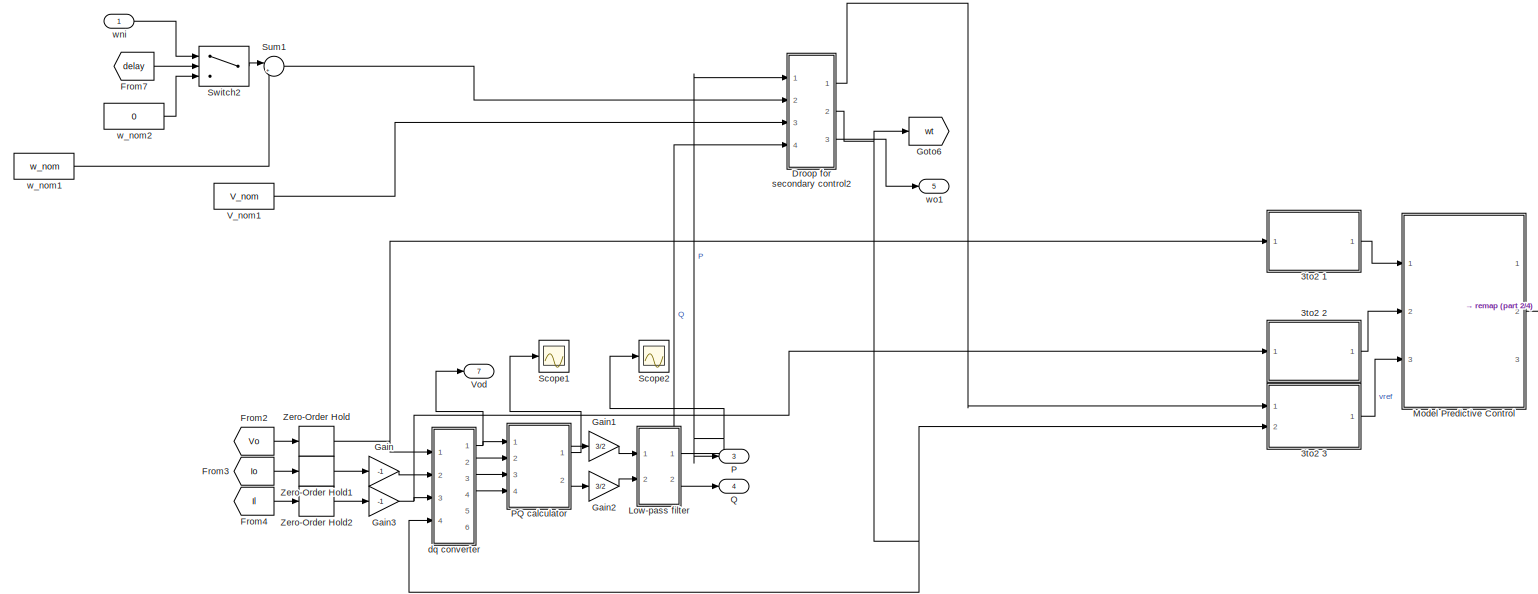
[diagram: Voltage Source Inverter 2 - part 1/4, top left region]
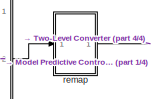
[diagram: Voltage Source Inverter 2 - part 2/4, top center region]
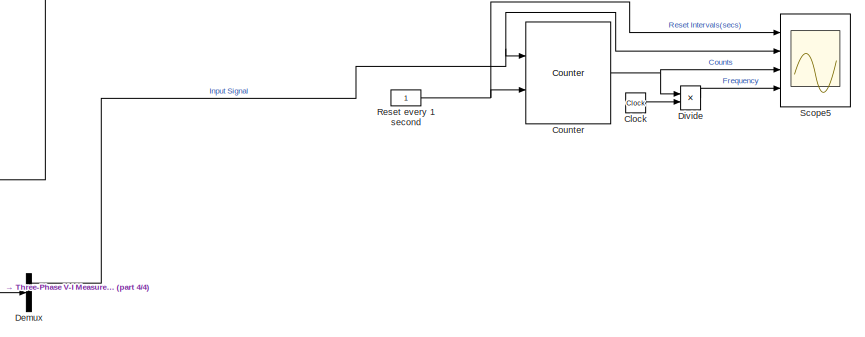
[diagram: Voltage Source Inverter 2 - part 3/4, middle right region]
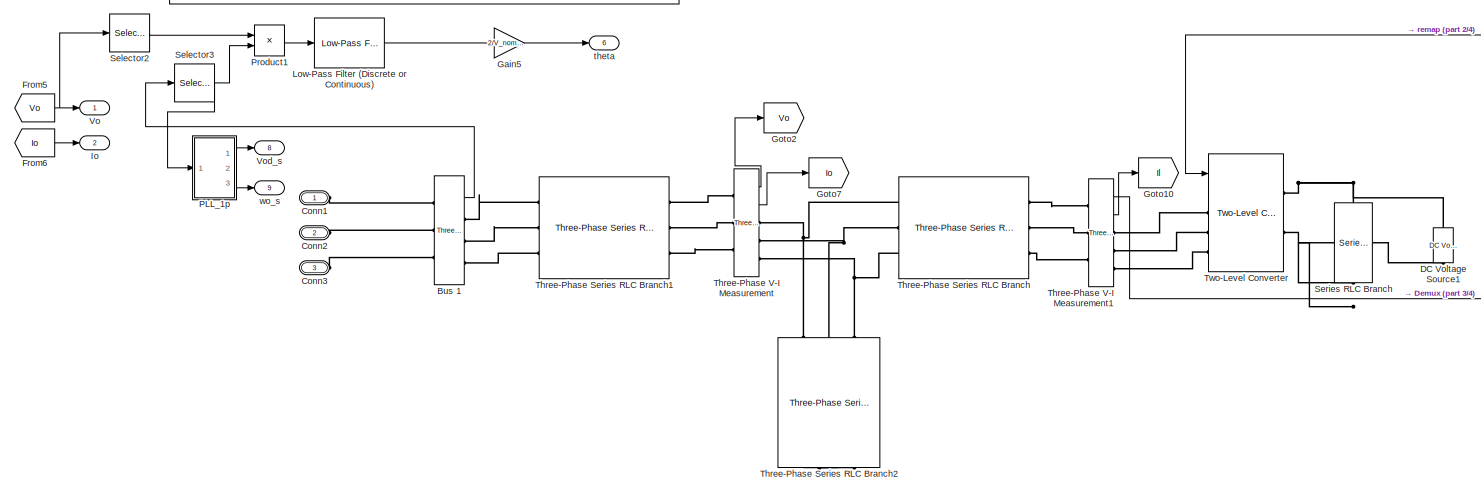
[diagram: Voltage Source Inverter 2 - part 4/4, bottom center region]
BLOCK [SubSystem] Voltage Source Inverter 2
  NameLocation = top
  Ports = [1, 9, 0, 0, 0, 3]
  RequestExecContextInheritance = off
BLOCK [SubSystem] Voltage Source Inverter 2/3to2 1
  Ports = [1, 1]
  RequestExecContextInheritance = off
BLOCK [Sum] Voltage Source Inverter 2/3to2 1/Add
  IconShape = rectangular
  Inputs = +++
  Ports = [3, 1]
BLOCK [Constant] Voltage Source Inverter 2/3to2 1/Constant
  Value = exp(i*2*pi/3)
BLOCK [Constant] Voltage Source Inverter 2/3to2 1/Constant1
  Value = 2/3
BLOCK [Demux] Voltage Source Inverter 2/3to2 1/Demux
  NameLocation = top
  Outputs = 3
  Ports = [1, 3]
BLOCK [Math] Voltage Source Inverter 2/3to2 1/Math Function
  Operator = square
  Ports = [1, 1]
  SignedPower = on
BLOCK [Product] Voltage Source Inverter 2/3to2 1/Product
  Ports = [2, 1]
  RndMeth = Zero
BLOCK [Product] Voltage Source Inverter 2/3to2 1/Product1
  Ports = [2, 1]
  RndMeth = Zero
BLOCK [Product] Voltage Source Inverter 2/3to2 1/Product2
  Ports = [2, 1]
  RndMeth = Zero
BLOCK [Inport] Voltage Source Inverter 2/3to2 1/Vabc_o 
BLOCK [Outport] Voltage Source Inverter 2/3to2 1/Vo
  VectorParamsAs1DForOutWhenUnconnected = off
BLOCK [SubSystem] Voltage Source Inverter 2/3to2 2
  Ports = [1, 1]
  RequestExecContextInheritance = off
BLOCK [Sum] Voltage Source Inverter 2/3to2 2/Add
  IconShape = rectangular
  Inputs = +++
  Ports = [3, 1]
BLOCK [Constant] Voltage Source Inverter 2/3to2 2/Constant
  Value = exp(i*2*pi/3)
BLOCK [Constant] Voltage Source Inverter 2/3to2 2/Constant1
  Value = 2/3
BLOCK [Demux] Voltage Source Inverter 2/3to2 2/Demux
  NameLocation = top
  Outputs = 3
  Ports = [1, 3]
BLOCK [Inport] Voltage Source Inverter 2/3to2 2/Iabc_o 
BLOCK [Outport] Voltage Source Inverter 2/3to2 2/Il
  VectorParamsAs1DForOutWhenUnconnected = off
BLOCK [Math] Voltage Source Inverter 2/3to2 2/Math Function
  Operator = square
  Ports = [1, 1]
  SignedPower = on
BLOCK [Product] Voltage Source Inverter 2/3to2 2/Product
  Ports = [2, 1]
  RndMeth = Zero
BLOCK [Product] Voltage Source Inverter 2/3to2 2/Product1
  Ports = [2, 1]
  RndMeth = Zero
BLOCK [Product] Voltage Source Inverter 2/3to2 2/Product2
  Ports = [2, 1]
  RndMeth = Zero
BLOCK [SubSystem] Voltage Source Inverter 2/3to2 3
  Ports = [2, 1]
  RequestExecContextInheritance = off
BLOCK [Sum] Voltage Source Inverter 2/3to2 3/Add1
  IconShape = rectangular
  Inputs = +++
  Ports = [3, 1]
BLOCK [Constant] Voltage Source Inverter 2/3to2 3/Constant2
  Value = 2*pi/3
BLOCK [Constant] Voltage Source Inverter 2/3to2 3/Constant3
  Value = -2*pi/3
BLOCK [Constant] Voltage Source Inverter 2/3to2 3/Constant4
  Value = exp(i*2*pi/3)
BLOCK [Constant] Voltage Source Inverter 2/3to2 3/Constant5
  Value = 2/3
BLOCK [Trigonometry] Voltage Source Inverter 2/3to2 3/Cos
  Operator = cos
  Ports = [1, 1]
BLOCK [Trigonometry] Voltage Source Inverter 2/3to2 3/Cos1
  Operator = cos
  Ports = [1, 1]
BLOCK [Trigonometry] Voltage Source Inverter 2/3to2 3/Cos2
  Operator = cos
  Ports = [1, 1]
BLOCK [Math] Voltage Source Inverter 2/3to2 3/Math Function1
  Operator = square
  Ports = [1, 1]
  SignedPower = on
BLOCK [Product] Voltage Source Inverter 2/3to2 3/Product3
  Ports = [2, 1]
  RndMeth = Zero
BLOCK [Product] Voltage Source Inverter 2/3to2 3/Product4
  Ports = [2, 1]
  RndMeth = Zero
BLOCK [Product] Voltage Source Inverter 2/3to2 3/Product5
  Ports = [2, 1]
  RndMeth = Zero
BLOCK [Product] Voltage Source Inverter 2/3to2 3/Product6
  Ports = [2, 1]
  RndMeth = Zero
BLOCK [Product] Voltage Source Inverter 2/3to2 3/Product7
  Ports = [2, 1]
  RndMeth = Zero
BLOCK [Product] Voltage Source Inverter 2/3to2 3/Product8
  Ports = [2, 1]
  RndMeth = Zero
BLOCK [Scope] Voltage Source Inverter 2/3to2 3/Scope
  Floating = off
  NumInputPorts = 3
  Ports = [3]
BLOCK [Sum] Voltage Source Inverter 2/3to2 3/Sum
  Inputs = |++
  Ports = [2, 1]
BLOCK [Sum] Voltage Source Inverter 2/3to2 3/Sum1
  Inputs = |++
  Ports = [2, 1]
BLOCK [Inport] Voltage Source Inverter 2/3to2 3/single 
BLOCK [Outport] Voltage Source Inverter 2/3to2 3/threePhase
  VectorParamsAs1DForOutWhenUnconnected = off
BLOCK [Inport] Voltage Source Inverter 2/3to2 3/wt 
  Port = 2
BLOCK [Reference] Voltage Source Inverter 2/Bus 1  REF=spsThreePhaseVIMeasurementLib/Three-Phase
V-I Measurement
  Ports = [0, 1, 0, 0, 0, 3, 3]
  SourceBlock = spsThreePhaseVIMeasurementLib/Three-Phase\nV-I Measurement
  SourceProductBaseCode = PS
  SourceType = Three-Phase VI Measurement
BLOCK [Clock] Voltage Source Inverter 2/Clock
  Commented = on
  Decimation = 1
BLOCK [PMIOPort] Voltage Source Inverter 2/Conn1
  Side = Left
BLOCK [PMIOPort] Voltage Source Inverter 2/Conn2
  Port = 2
  Side = Left
BLOCK [PMIOPort] Voltage Source Inverter 2/Conn3
  Port = 3
  Side = Left
BLOCK [Reference] Voltage Source Inverter 2/Counter  REF=dspswit3/Counter
  Commented = on
  Ports = [2, 1]
  SourceBlock = dspswit3/Counter
  SourceProductBaseCode = DS
  SourceType = Counter
BLOCK [Reference] Voltage Source Inverter 2/DC Voltage Source1  REF=spsDCVoltageSourceLib/DC Voltage Source
  NameLocation = right
  Ports = [0, 0, 0, 0, 0, 1, 1]
  SourceBlock = spsDCVoltageSourceLib/DC Voltage Source
  SourceProductBaseCode = PS
  SourceType = DC Voltage Source
BLOCK [Demux] Voltage Source Inverter 2/Demux
  Outputs = 3
  Ports = [1, 3]
BLOCK [Product] Voltage Source Inverter 2/Divide
  Commented = on
  Inputs = */
  Ports = [2, 1]
BLOCK [SubSystem] Voltage Source Inverter 2/Droop for secondary control2
  Ports = [4, 3]
  RequestExecContextInheritance = off
BLOCK [Gain] Voltage Source Inverter 2/Droop for secondary control2/Gain4
  Gain = n_q
BLOCK [Gain] Voltage Source Inverter 2/Droop for secondary control2/Gain5
  Gain = m_p
BLOCK [Integrator] Voltage Source Inverter 2/Droop for secondary control2/Integrator
  Ports = [1, 1]
  WrapState = on
  WrappedStateLowerValue = 0
  WrappedStateUpperValue = 2*pi
BLOCK [Inport] Voltage Source Inverter 2/Droop for secondary control2/P
BLOCK [Inport] Voltage Source Inverter 2/Droop for secondary control2/Q
  Port = 4
BLOCK [Sum] Voltage Source Inverter 2/Droop for secondary control2/Sum1
  Inputs = |+-
  Ports = [2, 1]
BLOCK [Sum] Voltage Source Inverter 2/Droop for secondary control2/Sum2
  Inputs = |+-
  Ports = [2, 1]
BLOCK [Inport] Voltage Source Inverter 2/Droop for secondary control2/V_nom
  Port = 3
BLOCK [Outport] Voltage Source Inverter 2/Droop for secondary control2/Vref
BLOCK [Inport] Voltage Source Inverter 2/Droop for secondary control2/w_nom
  Port = 2
BLOCK [Outport] Voltage Source Inverter 2/Droop for secondary control2/wo
  Port = 3
BLOCK [Outport] Voltage Source Inverter 2/Droop for secondary control2/wt
  Port = 2
BLOCK [From] Voltage Source Inverter 2/From2
  GotoTag = Vo
BLOCK [From] Voltage Source Inverter 2/From3
  GotoTag = Io
BLOCK [From] Voltage Source Inverter 2/From4
  GotoTag = Il
BLOCK [From] Voltage Source Inverter 2/From5
  GotoTag = Vo
BLOCK [From] Voltage Source Inverter 2/From6
  GotoTag = Io
BLOCK [From] Voltage Source Inverter 2/From7
  GotoTag = delay
  TagVisibility = global
BLOCK [Gain] Voltage Source Inverter 2/Gain
  Gain = -1
BLOCK [Gain] Voltage Source Inverter 2/Gain1
  Gain = 3/2
BLOCK [Gain] Voltage Source Inverter 2/Gain2
  Gain = 3/2
BLOCK [Gain] Voltage Source Inverter 2/Gain3
  Gain = -1
BLOCK [Gain] Voltage Source Inverter 2/Gain5
  Gain = 2/V_nom^2
BLOCK [Goto] Voltage Source Inverter 2/Goto10
  GotoTag = Il
BLOCK [Goto] Voltage Source Inverter 2/Goto2
  GotoTag = Vo
BLOCK [Goto] Voltage Source Inverter 2/Goto6
  GotoTag = wt
BLOCK [Goto] Voltage Source Inverter 2/Goto7
  GotoTag = Io
BLOCK [Outport] Voltage Source Inverter 2/Io
  Port = 2
BLOCK [Reference] Voltage Source Inverter 2/Low-Pass Filter (Discrete or Continuous)  REF=eeGeneralControl/Low-Pass Filter
(Discrete or Continuous)
  Ports = [1, 1]
  SourceBlock = eeGeneralControl/Low-Pass Filter\n(Discrete or Continuous)
  SourceProductBaseCode = PS
  SourceType = Low-Pass Filter (Discrete or Continuous)
BLOCK [SubSystem] Voltage Source Inverter 2/Low-pass filter
  Ports = [2, 2]
  RequestExecContextInheritance = off
BLOCK [Reference] Voltage Source Inverter 2/Low-pass filter/Low-Pass Filter (Discrete or Continuous)  REF=eeGeneralControl/Low-Pass Filter
(Discrete or Continuous)
  Ports = [1, 1]
  SourceBlock = eeGeneralControl/Low-Pass Filter\n(Discrete or Continuous)
  SourceProductBaseCode = PS
  SourceType = Low-Pass Filter (Discrete or Continuous)
BLOCK [Reference] Voltage Source Inverter 2/Low-pass filter/Low-Pass Filter (Discrete or Continuous)1  REF=eeGeneralControl/Low-Pass Filter
(Discrete or Continuous)
  Ports = [1, 1]
  SourceBlock = eeGeneralControl/Low-Pass Filter\n(Discrete or Continuous)
  SourceProductBaseCode = PS
  SourceType = Low-Pass Filter (Discrete or Continuous)
BLOCK [Outport] Voltage Source Inverter 2/Low-pass filter/P
BLOCK [Outport] Voltage Source Inverter 2/Low-pass filter/Q
  Port = 2
BLOCK [Inport] Voltage Source Inverter 2/Low-pass filter/p_hat
BLOCK [Inport] Voltage Source Inverter 2/Low-pass filter/q_hat
  Port = 2
BLOCK [SubSystem] Voltage Source Inverter 2/Model Predictive Control 
  ErrorFcn = Stateflow.Translate.translate
  NameLocation = top
  PermitHierarchicalResolution = ExplicitOnly
  Ports = [3, 3]
  RequestExecContextInheritance = off
  SFBlockType = MATLAB Function
  TreatAsAtomicUnit = on
BLOCK [Demux] Voltage Source Inverter 2/Model Predictive Control / Demux 
  Outputs = 1
  Ports = [1, 1]
BLOCK [S-Function] Voltage Source Inverter 2/Model Predictive Control / SFunction 
  EnableBusSupport = on
  FunctionName = sf_sfun
  Parameters = Cfilter,Lfilter,Vdc,modT
  PortCounts = [3 4]
  Ports = [3, 4]
  SFcnIsStateOwnerBlock = off
  SFunctionDeploymentMode = off
  Tag = Stateflow S-Function 1
BLOCK [Terminator] Voltage Source Inverter 2/Model Predictive Control / Terminator 
BLOCK [Outport] Voltage Source Inverter 2/Model Predictive Control /S_opt
  VectorParamsAs1DForOutWhenUnconnected = off
BLOCK [Outport] Voltage Source Inverter 2/Model Predictive Control /Sopt
  Port = 2
  VectorParamsAs1DForOutWhenUnconnected = off
BLOCK [Inport] Voltage Source Inverter 2/Model Predictive Control /Vc
BLOCK [Outport] Voltage Source Inverter 2/Model Predictive Control /Vi_opt
  Port = 3
  VectorParamsAs1DForOutWhenUnconnected = off
BLOCK [Inport] Voltage Source Inverter 2/Model Predictive Control /i_filter
  Port = 2
BLOCK [Inport] Voltage Source Inverter 2/Model Predictive Control /vref
  Port = 3
BLOCK [Outport] Voltage Source Inverter 2/P
  Port = 3
BLOCK [SubSystem] Voltage Source Inverter 2/PLL_1p
  Ports = [1, 3]
  RequestExecContextInheritance = off
BLOCK [Constant] Voltage Source Inverter 2/PLL_1p/2pi
  Value = 2*pi
BLOCK [Reference] Voltage Source Inverter 2/PLL_1p/PID Controller  REF=slpidlib/PID Controller
  Ports = [1, 1]
  SourceBlock = slpidlib/PID Controller
  SourceProductBaseCode = SL
  SourceType = PID 1dof
BLOCK [RelationalOperator] Voltage Source Inverter 2/PLL_1p/Reset1
  InputSameDT = off
  OutDataTypeStr = boolean
  Ports = [2, 1]
BLOCK [Sum] Voltage Source Inverter 2/PLL_1p/Sum1
  Inputs = |++
  Ports = [2, 1]
BLOCK [SubSystem] Voltage Source Inverter 2/PLL_1p/TienXuly
  Ports = [1, 2]
  RequestExecContextInheritance = off
BLOCK [Gain] Voltage Source Inverter 2/PLL_1p/TienXuly/Gain
  Gain = k
BLOCK [Integrator] Voltage Source Inverter 2/PLL_1p/TienXuly/Integrator
  NameLocation = top
  Ports = [1, 1]
BLOCK [Integrator] Voltage Source Inverter 2/PLL_1p/TienXuly/Integrator1
  Ports = [1, 1]
BLOCK [TransferFcn] Voltage Source Inverter 2/PLL_1p/TienXuly/Locthongthap
  Denominator = [1/fc2 1]
  NameLocation = left
BLOCK [Mux] Voltage Source Inverter 2/PLL_1p/TienXuly/Mux
  DisplayOption = bar
  Inputs = 2
  NameLocation = top
  Ports = [2, 1]
BLOCK [Product] Voltage Source Inverter 2/PLL_1p/TienXuly/Product
  Ports = [2, 1]
  RndMeth = Zero
BLOCK [Product] Voltage Source Inverter 2/PLL_1p/TienXuly/Product1
  NameLocation = top
  Ports = [2, 1]
  RndMeth = Zero
BLOCK [Sum] Voltage Source Inverter 2/PLL_1p/TienXuly/Sum
  Inputs = |+-
  Ports = [2, 1]
BLOCK [Sum] Voltage Source Inverter 2/PLL_1p/TienXuly/Sum1
  Inputs = |+-
  Ports = [2, 1]
BLOCK [Sum] Voltage Source Inverter 2/PLL_1p/TienXuly/Sum2
  Inputs = |+-
  NameLocation = top
  Ports = [2, 1]
BLOCK [Inport] Voltage Source Inverter 2/PLL_1p/TienXuly/v
BLOCK [Outport] Voltage Source Inverter 2/PLL_1p/TienXuly/v'
  VectorParamsAs1DForOutWhenUnconnected = off
BLOCK [Scope] Voltage Source Inverter 2/PLL_1p/TienXuly/v'-qv'
  Floating = off
  NumInputPorts = 1
  Ports = [1]
  ScopeSpecificationString = Simulink.scopes.TimeScopeBlockCfg('CurrentConfiguration', extmgr.ConfigurationSet(extmgr.Configuration('Core','General UI',true),extmgr.Configuration('Core','Source UI',true),extmgr.Configuration('Sources','WiredSimulink',true,'DataLoggingVariableName','ScopeData2','DataLoggingSaveFormat','StructureWithTime','DataLoggingLimitDataPoints',true,'DataLoggingDecimation','1','DataLoggingDecimateData',tr...<+1753ch>  <repeated x4 — deduplicated; at blocks: v'-qv'>
BLOCK [Outport] Voltage Source Inverter 2/PLL_1p/TienXuly/v'q
  NameLocation = top
  Port = 2
  VectorParamsAs1DForOutWhenUnconnected = off
BLOCK [Constant] Voltage Source Inverter 2/PLL_1p/TienXuly/wloc
  Value = fc1*2*pi
BLOCK [Integrator] Voltage Source Inverter 2/PLL_1p/Tinhtheta
  ExternalReset = rising
  Ports = [2, 1]
  UpperSaturationLimit = 2*pi
BLOCK [SubSystem] Voltage Source Inverter 2/PLL_1p/apha-beta=>dq
  Ports = [3, 2]
  RequestExecContextInheritance = off
BLOCK [Mux] Voltage Source Inverter 2/PLL_1p/apha-beta=>dq/Mux
  DisplayOption = bar
  Inputs = 3
  Ports = [3, 1]
BLOCK [Inport] Voltage Source Inverter 2/PLL_1p/apha-beta=>dq/Theta
BLOCK [Fcn] Voltage Source Inverter 2/PLL_1p/apha-beta=>dq/Tinhvd
  Expr = (u[2]*cos(u[1])+u[3]*sin(u[1]))
BLOCK [Fcn] Voltage Source Inverter 2/PLL_1p/apha-beta=>dq/Tinhvq
  Expr = (-u[2]*sin(u[1])+u[3]*cos(u[1]))
BLOCK [Inport] Voltage Source Inverter 2/PLL_1p/apha-beta=>dq/Uapha
  Port = 2
BLOCK [Inport] Voltage Source Inverter 2/PLL_1p/apha-beta=>dq/Ubeta
  Port = 3
BLOCK [Outport] Voltage Source Inverter 2/PLL_1p/apha-beta=>dq/vd
  Port = 2
  VectorParamsAs1DForOutWhenUnconnected = off
BLOCK [Outport] Voltage Source Inverter 2/PLL_1p/apha-beta=>dq/vq
  VectorParamsAs1DForOutWhenUnconnected = off
BLOCK [Outport] Voltage Source Inverter 2/PLL_1p/omega
  Port = 3
BLOCK [Inport] Voltage Source Inverter 2/PLL_1p/v
BLOCK [Outport] Voltage Source Inverter 2/PLL_1p/vd
BLOCK [Outport] Voltage Source Inverter 2/PLL_1p/vq
  Port = 2
BLOCK [Constant] Voltage Source Inverter 2/PLL_1p/wff
  Value = 50*2*pi
BLOCK [SubSystem] Voltage Source Inverter 2/PQ calculator
  Ports = [4, 2]
  RequestExecContextInheritance = off
BLOCK [Inport] Voltage Source Inverter 2/PQ calculator/Iod
  Port = 3
BLOCK [Inport] Voltage Source Inverter 2/PQ calculator/Ioq
  Port = 4
BLOCK [Product] Voltage Source Inverter 2/PQ calculator/Product
  Ports = [2, 1]
BLOCK [Product] Voltage Source Inverter 2/PQ calculator/Product1
  Ports = [2, 1]
BLOCK [Product] Voltage Source Inverter 2/PQ calculator/Product2
  Ports = [2, 1]
BLOCK [Product] Voltage Source Inverter 2/PQ calculator/Product3
  Ports = [2, 1]
BLOCK [Scope] Voltage Source Inverter 2/PQ calculator/Scope
  Floating = off
  NumInputPorts = 1
  Ports = [1]
  ScopeSpecificationString = Simulink.scopes.TimeScopeBlockCfg('CurrentConfiguration', extmgr.ConfigurationSet(extmgr.Configuration('Core','General UI',true),extmgr.Configuration('Core','Source UI',true),extmgr.Configuration('Sources','WiredSimulink',true,'DataLoggingVariableName','ScopeData2'),extmgr.Configuration('Visuals','Time Domain',true,'SerializedDisplays',{struct('MinYLimReal','296.70971','MaxYLimReal','308.09113','Y...<+2027ch>
BLOCK [Sum] Voltage Source Inverter 2/PQ calculator/Sum10
  Inputs = |++
  Ports = [2, 1]
BLOCK [Sum] Voltage Source Inverter 2/PQ calculator/Sum11
  Inputs = |+-
  Ports = [2, 1]
BLOCK [Inport] Voltage Source Inverter 2/PQ calculator/Vod
BLOCK [Inport] Voltage Source Inverter 2/PQ calculator/Voq
  Port = 2
BLOCK [Outport] Voltage Source Inverter 2/PQ calculator/p_hat
BLOCK [Outport] Voltage Source Inverter 2/PQ calculator/q_hat
  Port = 2
BLOCK [Product] Voltage Source Inverter 2/Product1
  Ports = [2, 1]
BLOCK [Outport] Voltage Source Inverter 2/Q
  Port = 4
BLOCK [Constant] Voltage Source Inverter 2/Reset every 1 second
  Commented = on
BLOCK [Scope] Voltage Source Inverter 2/Scope1
  Floating = off
  NumInputPorts = 1
  Ports = [1]
  ScopeSpecificationString = Simulink.scopes.TimeScopeBlockCfg('CurrentConfiguration', extmgr.ConfigurationSet(extmgr.Configuration('Core','General UI',true),extmgr.Configuration('Core','Source UI',true),extmgr.Configuration('Sources','WiredSimulink',true,'DataLoggingVariableName','ScopeData1'),extmgr.Configuration('Visuals','Time Domain',true,'SerializedDisplays',{struct('MinYLimReal','-0.26615','MaxYLimReal','1.32797','YLab...<+1456ch>
BLOCK [Scope] Voltage Source Inverter 2/Scope2
  Floating = off
  NumInputPorts = 1
  Ports = [1]
  ScopeSpecificationString = Simulink.scopes.TimeScopeBlockCfg('CurrentConfiguration', extmgr.ConfigurationSet(extmgr.Configuration('Core','General UI',true),extmgr.Configuration('Core','Source UI',true),extmgr.Configuration('Sources','WiredSimulink',true,'DataLoggingVariableName','ScopeData3'),extmgr.Configuration('Visuals','Time Domain',true,'SerializedDisplays',{struct('MinYLimReal','-210.26937','MaxYLimReal','1737.90222',...<+1456ch>
BLOCK [Scope] Voltage Source Inverter 2/Scope5
  Commented = on
  Floating = off
  NumInputPorts = 4
  Ports = [4]
BLOCK [Selector] Voltage Source Inverter 2/Selector2
  IndexOptions = Index vector (dialog)
  Indices = [1]
  InputPortWidth = 3
  OutputSizes = 1
  Ports = [1, 1]
BLOCK [Selector] Voltage Source Inverter 2/Selector3
  IndexOptions = Index vector (dialog)
  Indices = [1]
  InputPortWidth = 3
  OutputSizes = 1
  Ports = [1, 1]
BLOCK [Reference] Voltage Source Inverter 2/Series RLC Branch  REF=spsSeriesRLCBranchLib/Series RLC Branch
  NameLocation = left
  Ports = [0, 0, 0, 0, 0, 1, 1]
  SourceBlock = spsSeriesRLCBranchLib/Series RLC Branch
  SourceProductBaseCode = PS
  SourceType = Series RLC Branch
BLOCK [Sum] Voltage Source Inverter 2/Sum1
  Inputs = |++
  Ports = [2, 1]
BLOCK [Switch] Voltage Source Inverter 2/Switch2
  Criteria = u2 > Threshold
  InputSameDT = off
  SaturateOnIntegerOverflow = off
  Threshold = time_thresh
BLOCK [Reference] Voltage Source Inverter 2/Three-Phase Series RLC Branch  REF=spsThreePhaseSeriesRLCBranchLib/Three-Phase
Series RLC Branch
  AttributesFormatString = \n
  Ports = [0, 0, 0, 0, 0, 3, 3]
  SourceBlock = spsThreePhaseSeriesRLCBranchLib/Three-Phase\nSeries RLC Branch
  SourceProductBaseCode = PS
  SourceType = Three-Phase Series RLC Branch
BLOCK [Reference] Voltage Source Inverter 2/Three-Phase Series RLC Branch1  REF=spsThreePhaseSeriesRLCBranchLib/Three-Phase
Series RLC Branch
  AttributesFormatString = \n
  Ports = [0, 0, 0, 0, 0, 3, 3]
  SourceBlock = spsThreePhaseSeriesRLCBranchLib/Three-Phase\nSeries RLC Branch
  SourceProductBaseCode = PS
  SourceType = Three-Phase Series RLC Branch
BLOCK [Reference] Voltage Source Inverter 2/Three-Phase Series RLC Branch2  REF=spsThreePhaseSeriesRLCBranchLib/Three-Phase
Series RLC Branch
  AttributesFormatString = \n
  NameLocation = left
  Ports = [0, 0, 0, 0, 0, 3, 3]
  SourceBlock = spsThreePhaseSeriesRLCBranchLib/Three-Phase\nSeries RLC Branch
  SourceProductBaseCode = PS
  SourceType = Three-Phase Series RLC Branch
BLOCK [Reference] Voltage Source Inverter 2/Three-Phase V-I Measurement  REF=spsThreePhaseVIMeasurementLib/Three-Phase
V-I Measurement
  Ports = [0, 2, 0, 0, 0, 3, 3]
  SourceBlock = spsThreePhaseVIMeasurementLib/Three-Phase\nV-I Measurement
  SourceProductBaseCode = PS
  SourceType = Three-Phase VI Measurement
BLOCK [Reference] Voltage Source Inverter 2/Three-Phase V-I Measurement1  REF=spsThreePhaseVIMeasurementLib/Three-Phase
V-I Measurement
  Ports = [0, 2, 0, 0, 0, 3, 3]
  SourceBlock = spsThreePhaseVIMeasurementLib/Three-Phase\nV-I Measurement
  SourceProductBaseCode = PS
  SourceType = Three-Phase VI Measurement
BLOCK [Reference] Voltage Source Inverter 2/Two-Level Converter  REF=spsTwoLevelConverterLib/Two-Level Converter
  Ports = [2, 0, 0, 0, 0, 3, 2]
  SourceBlock = spsTwoLevelConverterLib/Two-Level Converter
  SourceProductBaseCode = PS
  SourceType = Two-Level Converter
BLOCK [Constant] Voltage Source Inverter 2/V_nom1
  Value = V_nom
BLOCK [Outport] Voltage Source Inverter 2/Vo
BLOCK [Outport] Voltage Source Inverter 2/Vod
  Port = 7
BLOCK [Outport] Voltage Source Inverter 2/Vod_s
  Port = 8
BLOCK [ZeroOrderHold] Voltage Source Inverter 2/Zero-Order Hold
  SampleTime = modT
BLOCK [ZeroOrderHold] Voltage Source Inverter 2/Zero-Order Hold1
  SampleTime = modT
BLOCK [ZeroOrderHold] Voltage Source Inverter 2/Zero-Order Hold2
  SampleTime = modT
BLOCK [SubSystem] Voltage Source Inverter 2/dq converter
  Ports = [4, 6]
  RequestExecContextInheritance = off
BLOCK [Outport] Voltage Source Inverter 2/dq converter/Ild
  Port = 5
BLOCK [Inport] Voltage Source Inverter 2/dq converter/Ildq
  Port = 3
BLOCK [Outport] Voltage Source Inverter 2/dq converter/Ilq
  Port = 6
BLOCK [Outport] Voltage Source Inverter 2/dq converter/Iod
  Port = 3
BLOCK [Inport] Voltage Source Inverter 2/dq converter/Iodq
  Port = 2
BLOCK [Outport] Voltage Source Inverter 2/dq converter/Ioq
  Port = 4
BLOCK [Scope] Voltage Source Inverter 2/dq converter/Scope
  Floating = off
  NumInputPorts = 1
  Ports = [1]
  ScopeSpecificationString = Simulink.scopes.TimeScopeBlockCfg('CurrentConfiguration', extmgr.ConfigurationSet(extmgr.Configuration('Core','General UI',true),extmgr.Configuration('Core','Source UI',true),extmgr.Configuration('Sources','WiredSimulink',true,'DataLoggingVariableName','ScopeData2'),extmgr.Configuration('Visuals','Time Domain',true,'SerializedDisplays',{struct('MinYLimReal','248.60459','MaxYLimReal','305.18298','Y...<+1454ch>  <repeated x3 — deduplicated; at blocks: Scope>
BLOCK [Scope] Voltage Source Inverter 2/dq converter/Scope1
  Floating = off
  NumInputPorts = 1
  Ports = [1]
  ScopeSpecificationString = Simulink.scopes.TimeScopeBlockCfg('CurrentConfiguration', extmgr.ConfigurationSet(extmgr.Configuration('Core','General UI',true),extmgr.Configuration('Core','Source UI',true),extmgr.Configuration('Sources','WiredSimulink',true,'DataLoggingVariableName','ScopeData1'),extmgr.Configuration('Visuals','Time Domain',true,'SerializedDisplays',{struct('MinYLimReal','-6.97724','MaxYLimReal','62.79515','YLa...<+1444ch>  <repeated x3 — deduplicated; at blocks: Scope1>
BLOCK [SubSystem] Voltage Source Inverter 2/dq converter/Subsystem
  Ports = [2, 2]
  RequestExecContextInheritance = off
BLOCK [Demux] Voltage Source Inverter 2/dq converter/Subsystem/Demux
  Outputs = 3
  Ports = [1, 3]
BLOCK [Outport] Voltage Source Inverter 2/dq converter/Subsystem/Out1
BLOCK [Outport] Voltage Source Inverter 2/dq converter/Subsystem/Out2
  Port = 2
BLOCK [Inport] Voltage Source Inverter 2/dq converter/Subsystem/abc
BLOCK [Reference] Voltage Source Inverter 2/dq converter/Subsystem/abc to dq0  REF=spsabctodq0Lib/abc to dq0
  Ports = [2, 1]
  SourceBlock = spsabctodq0Lib/abc to dq0
  SourceProductBaseCode = PS
  SourceType = abc to dq0 Transformation
BLOCK [Inport] Voltage Source Inverter 2/dq converter/Subsystem/wt
  Port = 2
BLOCK [SubSystem] Voltage Source Inverter 2/dq converter/Subsystem1
  Ports = [2, 2]
  RequestExecContextInheritance = off
BLOCK [Demux] Voltage Source Inverter 2/dq converter/Subsystem1/Demux
  Outputs = 3
  Ports = [1, 3]
BLOCK [Outport] Voltage Source Inverter 2/dq converter/Subsystem1/Out1
BLOCK [Outport] Voltage Source Inverter 2/dq converter/Subsystem1/Out2
  Port = 2
BLOCK [Inport] Voltage Source Inverter 2/dq converter/Subsystem1/abc
BLOCK [Reference] Voltage Source Inverter 2/dq converter/Subsystem1/abc to dq0  REF=spsabctodq0Lib/abc to dq0
  Ports = [2, 1]
  SourceBlock = spsabctodq0Lib/abc to dq0
  SourceProductBaseCode = PS
  SourceType = abc to dq0 Transformation
BLOCK [Inport] Voltage Source Inverter 2/dq converter/Subsystem1/wt
  Port = 2
BLOCK [SubSystem] Voltage Source Inverter 2/dq converter/Subsystem2
  Ports = [2, 2]
  RequestExecContextInheritance = off
BLOCK [Demux] Voltage Source Inverter 2/dq converter/Subsystem2/Demux
  Outputs = 3
  Ports = [1, 3]
BLOCK [Outport] Voltage Source Inverter 2/dq converter/Subsystem2/Out1
BLOCK [Outport] Voltage Source Inverter 2/dq converter/Subsystem2/Out2
  Port = 2
BLOCK [Inport] Voltage Source Inverter 2/dq converter/Subsystem2/abc
BLOCK [Reference] Voltage Source Inverter 2/dq converter/Subsystem2/abc to dq0  REF=spsabctodq0Lib/abc to dq0
  Ports = [2, 1]
  SourceBlock = spsabctodq0Lib/abc to dq0
  SourceProductBaseCode = PS
  SourceType = abc to dq0 Transformation
BLOCK [Inport] Voltage Source Inverter 2/dq converter/Subsystem2/wt
  Port = 2
BLOCK [Outport] Voltage Source Inverter 2/dq converter/Vod
BLOCK [Inport] Voltage Source Inverter 2/dq converter/Vodq
BLOCK [Outport] Voltage Source Inverter 2/dq converter/Voq
  Port = 2
BLOCK [Inport] Voltage Source Inverter 2/dq converter/wo
  Port = 4
BLOCK [SubSystem] Voltage Source Inverter 2/remap
  Ports = [1, 1]
  RequestExecContextInheritance = off
BLOCK [Demux] Voltage Source Inverter 2/remap/Demux
  NameLocation = top
  Outputs = 6
  Ports = [1, 6]
BLOCK [Inport] Voltage Source Inverter 2/remap/In1
BLOCK [Mux] Voltage Source Inverter 2/remap/Mux
  DisplayOption = bar
  Inputs = 6
  Ports = [6, 1]
BLOCK [Outport] Voltage Source Inverter 2/remap/Out1
BLOCK [Outport] Voltage Source Inverter 2/theta
  Port = 6
BLOCK [Constant] Voltage Source Inverter 2/w_nom1
  Value = w_nom
BLOCK [Constant] Voltage Source Inverter 2/w_nom2
  Value = 0
BLOCK [Inport] Voltage Source Inverter 2/wni
BLOCK [Outport] Voltage Source Inverter 2/wo1
  Port = 5
BLOCK [Outport] Voltage Source Inverter 2/wo_s
  Port = 9
BLOCK [SubSystem] Voltage Source Inverter 3
  NameLocation = top
  Ports = [1, 9, 0, 0, 0, 3]
  RequestExecContextInheritance = off
BLOCK [SubSystem] Voltage Source Inverter 3/3to2 1
  Ports = [1, 1]
  RequestExecContextInheritance = off
BLOCK [Sum] Voltage Source Inverter 3/3to2 1/Add
  IconShape = rectangular
  Inputs = +++
  Ports = [3, 1]
BLOCK [Constant] Voltage Source Inverter 3/3to2 1/Constant
  Value = exp(i*2*pi/3)
BLOCK [Constant] Voltage Source Inverter 3/3to2 1/Constant1
  Value = 2/3
BLOCK [Demux] Voltage Source Inverter 3/3to2 1/Demux
  NameLocation = top
  Outputs = 3
  Ports = [1, 3]
BLOCK [Math] Voltage Source Inverter 3/3to2 1/Math Function
  Operator = square
  Ports = [1, 1]
  SignedPower = on
BLOCK [Product] Voltage Source Inverter 3/3to2 1/Product
  Ports = [2, 1]
  RndMeth = Zero
BLOCK [Product] Voltage Source Inverter 3/3to2 1/Product1
  Ports = [2, 1]
  RndMeth = Zero
BLOCK [Product] Voltage Source Inverter 3/3to2 1/Product2
  Ports = [2, 1]
  RndMeth = Zero
BLOCK [Inport] Voltage Source Inverter 3/3to2 1/Vabc_o 
BLOCK [Outport] Voltage Source Inverter 3/3to2 1/Vo
  VectorParamsAs1DForOutWhenUnconnected = off
BLOCK [SubSystem] Voltage Source Inverter 3/3to2 2
  Ports = [1, 1]
  RequestExecContextInheritance = off
BLOCK [Sum] Voltage Source Inverter 3/3to2 2/Add
  IconShape = rectangular
  Inputs = +++
  Ports = [3, 1]
BLOCK [Constant] Voltage Source Inverter 3/3to2 2/Constant
  Value = exp(i*2*pi/3)
BLOCK [Constant] Voltage Source Inverter 3/3to2 2/Constant1
  Value = 2/3
BLOCK [Demux] Voltage Source Inverter 3/3to2 2/Demux
  NameLocation = top
  Outputs = 3
  Ports = [1, 3]
BLOCK [Inport] Voltage Source Inverter 3/3to2 2/Iabc_o 
BLOCK [Outport] Voltage Source Inverter 3/3to2 2/Il
  VectorParamsAs1DForOutWhenUnconnected = off
BLOCK [Math] Voltage Source Inverter 3/3to2 2/Math Function
  Operator = square
  Ports = [1, 1]
  SignedPower = on
BLOCK [Product] Voltage Source Inverter 3/3to2 2/Product
  Ports = [2, 1]
  RndMeth = Zero
BLOCK [Product] Voltage Source Inverter 3/3to2 2/Product1
  Ports = [2, 1]
  RndMeth = Zero
BLOCK [Product] Voltage Source Inverter 3/3to2 2/Product2
  Ports = [2, 1]
  RndMeth = Zero
BLOCK [SubSystem] Voltage Source Inverter 3/3to2 3
  Ports = [2, 1]
  RequestExecContextInheritance = off
BLOCK [Sum] Voltage Source Inverter 3/3to2 3/Add1
  IconShape = rectangular
  Inputs = +++
  Ports = [3, 1]
BLOCK [Constant] Voltage Source Inverter 3/3to2 3/Constant2
  Value = 2*pi/3
BLOCK [Constant] Voltage Source Inverter 3/3to2 3/Constant3
  Value = -2*pi/3
BLOCK [Constant] Voltage Source Inverter 3/3to2 3/Constant4
  Value = exp(i*2*pi/3)
BLOCK [Constant] Voltage Source Inverter 3/3to2 3/Constant5
  Value = 2/3
BLOCK [Trigonometry] Voltage Source Inverter 3/3to2 3/Cos
  Operator = cos
  Ports = [1, 1]
BLOCK [Trigonometry] Voltage Source Inverter 3/3to2 3/Cos1
  Operator = cos
  Ports = [1, 1]
BLOCK [Trigonometry] Voltage Source Inverter 3/3to2 3/Cos2
  Operator = cos
  Ports = [1, 1]
BLOCK [Math] Voltage Source Inverter 3/3to2 3/Math Function1
  Operator = square
  Ports = [1, 1]
  SignedPower = on
BLOCK [Product] Voltage Source Inverter 3/3to2 3/Product3
  Ports = [2, 1]
  RndMeth = Zero
BLOCK [Product] Voltage Source Inverter 3/3to2 3/Product4
  Ports = [2, 1]
  RndMeth = Zero
BLOCK [Product] Voltage Source Inverter 3/3to2 3/Product5
  Ports = [2, 1]
  RndMeth = Zero
BLOCK [Product] Voltage Source Inverter 3/3to2 3/Product6
  Ports = [2, 1]
  RndMeth = Zero
BLOCK [Product] Voltage Source Inverter 3/3to2 3/Product7
  Ports = [2, 1]
  RndMeth = Zero
BLOCK [Product] Voltage Source Inverter 3/3to2 3/Product8
  Ports = [2, 1]
  RndMeth = Zero
BLOCK [Scope] Voltage Source Inverter 3/3to2 3/Scope
  Floating = off
  NumInputPorts = 3
  Ports = [3]
BLOCK [Sum] Voltage Source Inverter 3/3to2 3/Sum
  Inputs = |++
  Ports = [2, 1]
BLOCK [Sum] Voltage Source Inverter 3/3to2 3/Sum1
  Inputs = |++
  Ports = [2, 1]
BLOCK [Inport] Voltage Source Inverter 3/3to2 3/single 
BLOCK [Outport] Voltage Source Inverter 3/3to2 3/threePhase
  VectorParamsAs1DForOutWhenUnconnected = off
BLOCK [Inport] Voltage Source Inverter 3/3to2 3/wt 
  Port = 2
BLOCK [Reference] Voltage Source Inverter 3/Bus 1  REF=spsThreePhaseVIMeasurementLib/Three-Phase
V-I Measurement
  Ports = [0, 1, 0, 0, 0, 3, 3]
  SourceBlock = spsThreePhaseVIMeasurementLib/Three-Phase\nV-I Measurement
  SourceProductBaseCode = PS
  SourceType = Three-Phase VI Measurement
BLOCK [Clock] Voltage Source Inverter 3/Clock
  Commented = on
  Decimation = 1
BLOCK [PMIOPort] Voltage Source Inverter 3/Conn1
  Side = Left
BLOCK [PMIOPort] Voltage Source Inverter 3/Conn2
  Port = 2
  Side = Left
BLOCK [PMIOPort] Voltage Source Inverter 3/Conn3
  Port = 3
  Side = Left
BLOCK [Reference] Voltage Source Inverter 3/Counter  REF=dspswit3/Counter
  Commented = on
  Ports = [2, 1]
  SourceBlock = dspswit3/Counter
  SourceProductBaseCode = DS
  SourceType = Counter
BLOCK [Reference] Voltage Source Inverter 3/DC Voltage Source1  REF=spsDCVoltageSourceLib/DC Voltage Source
  NameLocation = right
  Ports = [0, 0, 0, 0, 0, 1, 1]
  SourceBlock = spsDCVoltageSourceLib/DC Voltage Source
  SourceProductBaseCode = PS
  SourceType = DC Voltage Source
BLOCK [Demux] Voltage Source Inverter 3/Demux
  Outputs = 3
  Ports = [1, 3]
BLOCK [Product] Voltage Source Inverter 3/Divide
  Commented = on
  Inputs = */
  Ports = [2, 1]
BLOCK [SubSystem] Voltage Source Inverter 3/Droop for secondary control2
  Ports = [4, 3]
  RequestExecContextInheritance = off
BLOCK [Gain] Voltage Source Inverter 3/Droop for secondary control2/Gain4
  Gain = n_q
BLOCK [Gain] Voltage Source Inverter 3/Droop for secondary control2/Gain5
  Gain = m_p
BLOCK [Integrator] Voltage Source Inverter 3/Droop for secondary control2/Integrator
  Ports = [1, 1]
  WrapState = on
  WrappedStateLowerValue = 0
  WrappedStateUpperValue = 2*pi
BLOCK [Inport] Voltage Source Inverter 3/Droop for secondary control2/P
BLOCK [Inport] Voltage Source Inverter 3/Droop for secondary control2/Q
  Port = 4
BLOCK [Sum] Voltage Source Inverter 3/Droop for secondary control2/Sum1
  Inputs = |+-
  Ports = [2, 1]
BLOCK [Sum] Voltage Source Inverter 3/Droop for secondary control2/Sum2
  Inputs = |+-
  Ports = [2, 1]
BLOCK [Inport] Voltage Source Inverter 3/Droop for secondary control2/V_nom
  Port = 3
BLOCK [Outport] Voltage Source Inverter 3/Droop for secondary control2/Vref
BLOCK [Inport] Voltage Source Inverter 3/Droop for secondary control2/w_nom
  Port = 2
BLOCK [Outport] Voltage Source Inverter 3/Droop for secondary control2/wo
  Port = 3
BLOCK [Outport] Voltage Source Inverter 3/Droop for secondary control2/wt
  Port = 2
BLOCK [From] Voltage Source Inverter 3/From2
  GotoTag = Vo
BLOCK [From] Voltage Source Inverter 3/From3
  GotoTag = Io
BLOCK [From] Voltage Source Inverter 3/From4
  GotoTag = Il
BLOCK [From] Voltage Source Inverter 3/From5
  GotoTag = Vo
BLOCK [From] Voltage Source Inverter 3/From6
  GotoTag = Io
BLOCK [From] Voltage Source Inverter 3/From7
  GotoTag = delay
  TagVisibility = global
BLOCK [Gain] Voltage Source Inverter 3/Gain
  Gain = -1
BLOCK [Gain] Voltage Source Inverter 3/Gain1
  Gain = 3/2
BLOCK [Gain] Voltage Source Inverter 3/Gain2
  Gain = 3/2
BLOCK [Gain] Voltage Source Inverter 3/Gain3
  Gain = -1
BLOCK [Gain] Voltage Source Inverter 3/Gain5
  Gain = 2/V_nom^2
BLOCK [Goto] Voltage Source Inverter 3/Goto10
  GotoTag = Il
BLOCK [Goto] Voltage Source Inverter 3/Goto2
  GotoTag = Vo
BLOCK [Goto] Voltage Source Inverter 3/Goto6
  GotoTag = wt
BLOCK [Goto] Voltage Source Inverter 3/Goto7
  GotoTag = Io
BLOCK [Outport] Voltage Source Inverter 3/Io
  Port = 2
BLOCK [Reference] Voltage Source Inverter 3/Low-Pass Filter (Discrete or Continuous)  REF=eeGeneralControl/Low-Pass Filter
(Discrete or Continuous)
  Ports = [1, 1]
  SourceBlock = eeGeneralControl/Low-Pass Filter\n(Discrete or Continuous)
  SourceProductBaseCode = PS
  SourceType = Low-Pass Filter (Discrete or Continuous)
BLOCK [SubSystem] Voltage Source Inverter 3/Low-pass filter
  Ports = [2, 2]
  RequestExecContextInheritance = off
BLOCK [Reference] Voltage Source Inverter 3/Low-pass filter/Low-Pass Filter (Discrete or Continuous)  REF=eeGeneralControl/Low-Pass Filter
(Discrete or Continuous)
  Ports = [1, 1]
  SourceBlock = eeGeneralControl/Low-Pass Filter\n(Discrete or Continuous)
  SourceProductBaseCode = PS
  SourceType = Low-Pass Filter (Discrete or Continuous)
BLOCK [Reference] Voltage Source Inverter 3/Low-pass filter/Low-Pass Filter (Discrete or Continuous)1  REF=eeGeneralControl/Low-Pass Filter
(Discrete or Continuous)
  Ports = [1, 1]
  SourceBlock = eeGeneralControl/Low-Pass Filter\n(Discrete or Continuous)
  SourceProductBaseCode = PS
  SourceType = Low-Pass Filter (Discrete or Continuous)
BLOCK [Outport] Voltage Source Inverter 3/Low-pass filter/P
BLOCK [Outport] Voltage Source Inverter 3/Low-pass filter/Q
  Port = 2
BLOCK [Inport] Voltage Source Inverter 3/Low-pass filter/p_hat
BLOCK [Inport] Voltage Source Inverter 3/Low-pass filter/q_hat
  Port = 2
BLOCK [SubSystem] Voltage Source Inverter 3/Model Predictive Control 
  ErrorFcn = Stateflow.Translate.translate
  NameLocation = top
  PermitHierarchicalResolution = ExplicitOnly
  Ports = [3, 3]
  RequestExecContextInheritance = off
  SFBlockType = MATLAB Function
  TreatAsAtomicUnit = on
BLOCK [Demux] Voltage Source Inverter 3/Model Predictive Control / Demux 
  Outputs = 1
  Ports = [1, 1]
BLOCK [S-Function] Voltage Source Inverter 3/Model Predictive Control / SFunction 
  EnableBusSupport = on
  FunctionName = sf_sfun
  Parameters = Cfilter,Lfilter,Vdc,modT
  PortCounts = [3 4]
  Ports = [3, 4]
  SFcnIsStateOwnerBlock = off
  SFunctionDeploymentMode = off
  Tag = Stateflow S-Function 3
BLOCK [Terminator] Voltage Source Inverter 3/Model Predictive Control / Terminator 
BLOCK [Outport] Voltage Source Inverter 3/Model Predictive Control /S_opt
  VectorParamsAs1DForOutWhenUnconnected = off
BLOCK [Outport] Voltage Source Inverter 3/Model Predictive Control /Sopt
  Port = 2
  VectorParamsAs1DForOutWhenUnconnected = off
BLOCK [Inport] Voltage Source Inverter 3/Model Predictive Control /Vc
BLOCK [Outport] Voltage Source Inverter 3/Model Predictive Control /Vi_opt
  Port = 3
  VectorParamsAs1DForOutWhenUnconnected = off
BLOCK [Inport] Voltage Source Inverter 3/Model Predictive Control /i_filter
  Port = 2
BLOCK [Inport] Voltage Source Inverter 3/Model Predictive Control /vref
  Port = 3
BLOCK [Outport] Voltage Source Inverter 3/P
  Port = 3
BLOCK [SubSystem] Voltage Source Inverter 3/PLL_1p
  Ports = [1, 3]
  RequestExecContextInheritance = off
BLOCK [Constant] Voltage Source Inverter 3/PLL_1p/2pi
  Value = 2*pi
BLOCK [Reference] Voltage Source Inverter 3/PLL_1p/PID Controller  REF=slpidlib/PID Controller
  Ports = [1, 1]
  SourceBlock = slpidlib/PID Controller
  SourceProductBaseCode = SL
  SourceType = PID 1dof
BLOCK [RelationalOperator] Voltage Source Inverter 3/PLL_1p/Reset1
  InputSameDT = off
  OutDataTypeStr = boolean
  Ports = [2, 1]
BLOCK [Sum] Voltage Source Inverter 3/PLL_1p/Sum1
  Inputs = |++
  Ports = [2, 1]
BLOCK [SubSystem] Voltage Source Inverter 3/PLL_1p/TienXuly
  Ports = [1, 2]
  RequestExecContextInheritance = off
BLOCK [Gain] Voltage Source Inverter 3/PLL_1p/TienXuly/Gain
  Gain = k
BLOCK [Integrator] Voltage Source Inverter 3/PLL_1p/TienXuly/Integrator
  NameLocation = top
  Ports = [1, 1]
BLOCK [Integrator] Voltage Source Inverter 3/PLL_1p/TienXuly/Integrator1
  Ports = [1, 1]
BLOCK [TransferFcn] Voltage Source Inverter 3/PLL_1p/TienXuly/Locthongthap
  Denominator = [1/fc2 1]
  NameLocation = left
BLOCK [Mux] Voltage Source Inverter 3/PLL_1p/TienXuly/Mux
  DisplayOption = bar
  Inputs = 2
  NameLocation = top
  Ports = [2, 1]
BLOCK [Product] Voltage Source Inverter 3/PLL_1p/TienXuly/Product
  Ports = [2, 1]
  RndMeth = Zero
BLOCK [Product] Voltage Source Inverter 3/PLL_1p/TienXuly/Product1
  NameLocation = top
  Ports = [2, 1]
  RndMeth = Zero
BLOCK [Sum] Voltage Source Inverter 3/PLL_1p/TienXuly/Sum
  Inputs = |+-
  Ports = [2, 1]
BLOCK [Sum] Voltage Source Inverter 3/PLL_1p/TienXuly/Sum1
  Inputs = |+-
  Ports = [2, 1]
BLOCK [Sum] Voltage Source Inverter 3/PLL_1p/TienXuly/Sum2
  Inputs = |+-
  NameLocation = top
  Ports = [2, 1]
BLOCK [Inport] Voltage Source Inverter 3/PLL_1p/TienXuly/v
BLOCK [Outport] Voltage Source Inverter 3/PLL_1p/TienXuly/v'
  VectorParamsAs1DForOutWhenUnconnected = off
BLOCK [Scope] Voltage Source Inverter 3/PLL_1p/TienXuly/v'-qv'
  Floating = off
  NumInputPorts = 1
  Ports = [1]
BLOCK [Outport] Voltage Source Inverter 3/PLL_1p/TienXuly/v'q
  NameLocation = top
  Port = 2
  VectorParamsAs1DForOutWhenUnconnected = off
BLOCK [Constant] Voltage Source Inverter 3/PLL_1p/TienXuly/wloc
  Value = fc1*2*pi
BLOCK [Integrator] Voltage Source Inverter 3/PLL_1p/Tinhtheta
  ExternalReset = rising
  Ports = [2, 1]
  UpperSaturationLimit = 2*pi
BLOCK [SubSystem] Voltage Source Inverter 3/PLL_1p/apha-beta=>dq
  Ports = [3, 2]
  RequestExecContextInheritance = off
BLOCK [Mux] Voltage Source Inverter 3/PLL_1p/apha-beta=>dq/Mux
  DisplayOption = bar
  Inputs = 3
  Ports = [3, 1]
BLOCK [Inport] Voltage Source Inverter 3/PLL_1p/apha-beta=>dq/Theta
BLOCK [Fcn] Voltage Source Inverter 3/PLL_1p/apha-beta=>dq/Tinhvd
  Expr = (u[2]*cos(u[1])+u[3]*sin(u[1]))
BLOCK [Fcn] Voltage Source Inverter 3/PLL_1p/apha-beta=>dq/Tinhvq
  Expr = (-u[2]*sin(u[1])+u[3]*cos(u[1]))
BLOCK [Inport] Voltage Source Inverter 3/PLL_1p/apha-beta=>dq/Uapha
  Port = 2
BLOCK [Inport] Voltage Source Inverter 3/PLL_1p/apha-beta=>dq/Ubeta
  Port = 3
BLOCK [Outport] Voltage Source Inverter 3/PLL_1p/apha-beta=>dq/vd
  Port = 2
  VectorParamsAs1DForOutWhenUnconnected = off
BLOCK [Outport] Voltage Source Inverter 3/PLL_1p/apha-beta=>dq/vq
  VectorParamsAs1DForOutWhenUnconnected = off
BLOCK [Outport] Voltage Source Inverter 3/PLL_1p/omega
  Port = 3
BLOCK [Inport] Voltage Source Inverter 3/PLL_1p/v
BLOCK [Outport] Voltage Source Inverter 3/PLL_1p/vd
BLOCK [Outport] Voltage Source Inverter 3/PLL_1p/vq
  Port = 2
BLOCK [Constant] Voltage Source Inverter 3/PLL_1p/wff
  Value = 50*2*pi
BLOCK [SubSystem] Voltage Source Inverter 3/PQ calculator
  Ports = [4, 2]
  RequestExecContextInheritance = off
BLOCK [Inport] Voltage Source Inverter 3/PQ calculator/Iod
  Port = 3
BLOCK [Inport] Voltage Source Inverter 3/PQ calculator/Ioq
  Port = 4
BLOCK [Product] Voltage Source Inverter 3/PQ calculator/Product
  Ports = [2, 1]
BLOCK [Product] Voltage Source Inverter 3/PQ calculator/Product1
  Ports = [2, 1]
BLOCK [Product] Voltage Source Inverter 3/PQ calculator/Product2
  Ports = [2, 1]
BLOCK [Product] Voltage Source Inverter 3/PQ calculator/Product3
  Ports = [2, 1]
BLOCK [Scope] Voltage Source Inverter 3/PQ calculator/Scope
  Floating = off
  NumInputPorts = 1
  Ports = [1]
  ScopeSpecificationString = Simulink.scopes.TimeScopeBlockCfg('CurrentConfiguration', extmgr.ConfigurationSet(extmgr.Configuration('Core','General UI',true),extmgr.Configuration('Core','Source UI',true),extmgr.Configuration('Sources','WiredSimulink',true,'DataLoggingVariableName','ScopeData2'),extmgr.Configuration('Visuals','Time Domain',true,'SerializedDisplays',{struct('MinYLimReal','296.70971','MaxYLimReal','308.09113','Y...<+2027ch>
BLOCK [Sum] Voltage Source Inverter 3/PQ calculator/Sum10
  Inputs = |++
  Ports = [2, 1]
BLOCK [Sum] Voltage Source Inverter 3/PQ calculator/Sum11
  Inputs = |+-
  Ports = [2, 1]
BLOCK [Inport] Voltage Source Inverter 3/PQ calculator/Vod
BLOCK [Inport] Voltage Source Inverter 3/PQ calculator/Voq
  Port = 2
BLOCK [Outport] Voltage Source Inverter 3/PQ calculator/p_hat
BLOCK [Outport] Voltage Source Inverter 3/PQ calculator/q_hat
  Port = 2
BLOCK [Product] Voltage Source Inverter 3/Product1
  Ports = [2, 1]
BLOCK [Outport] Voltage Source Inverter 3/Q
  Port = 4
BLOCK [Constant] Voltage Source Inverter 3/Reset every 1 second
  Commented = on
BLOCK [Scope] Voltage Source Inverter 3/Scope1
  Floating = off
  NumInputPorts = 1
  Ports = [1]
  ScopeSpecificationString = Simulink.scopes.TimeScopeBlockCfg('CurrentConfiguration', extmgr.ConfigurationSet(extmgr.Configuration('Core','General UI',true),extmgr.Configuration('Core','Source UI',true),extmgr.Configuration('Sources','WiredSimulink',true,'DataLoggingVariableName','ScopeData1'),extmgr.Configuration('Visuals','Time Domain',true,'SerializedDisplays',{struct('MinYLimReal','-3300.63712','MaxYLimReal','5377.60044'...<+1478ch>
BLOCK [Scope] Voltage Source Inverter 3/Scope2
  Floating = off
  NumInputPorts = 1
  Ports = [1]
  ScopeSpecificationString = Simulink.scopes.TimeScopeBlockCfg('CurrentConfiguration', extmgr.ConfigurationSet(extmgr.Configuration('Core','General UI',true),extmgr.Configuration('Core','Source UI',true),extmgr.Configuration('Sources','WiredSimulink',true,'DataLoggingVariableName','ScopeData3'),extmgr.Configuration('Visuals','Time Domain',true,'SerializedDisplays',{struct('MinYLimReal','-215.03914','MaxYLimReal','1693.39019',...<+1456ch>
BLOCK [Scope] Voltage Source Inverter 3/Scope5
  Commented = on
  Floating = off
  NumInputPorts = 4
  Ports = [4]
BLOCK [Selector] Voltage Source Inverter 3/Selector2
  IndexOptions = Index vector (dialog)
  Indices = [1]
  InputPortWidth = 3
  OutputSizes = 1
  Ports = [1, 1]
BLOCK [Selector] Voltage Source Inverter 3/Selector3
  IndexOptions = Index vector (dialog)
  Indices = [1]
  InputPortWidth = 3
  OutputSizes = 1
  Ports = [1, 1]
BLOCK [Reference] Voltage Source Inverter 3/Series RLC Branch  REF=spsSeriesRLCBranchLib/Series RLC Branch
  NameLocation = left
  Ports = [0, 0, 0, 0, 0, 1, 1]
  SourceBlock = spsSeriesRLCBranchLib/Series RLC Branch
  SourceProductBaseCode = PS
  SourceType = Series RLC Branch
BLOCK [Sum] Voltage Source Inverter 3/Sum1
  Inputs = |++
  Ports = [2, 1]
BLOCK [Switch] Voltage Source Inverter 3/Switch2
  Criteria = u2 > Threshold
  InputSameDT = off
  SaturateOnIntegerOverflow = off
  Threshold = time_thresh
BLOCK [Reference] Voltage Source Inverter 3/Three-Phase Series RLC Branch  REF=spsThreePhaseSeriesRLCBranchLib/Three-Phase
Series RLC Branch
  AttributesFormatString = \n
  Ports = [0, 0, 0, 0, 0, 3, 3]
  SourceBlock = spsThreePhaseSeriesRLCBranchLib/Three-Phase\nSeries RLC Branch
  SourceProductBaseCode = PS
  SourceType = Three-Phase Series RLC Branch
BLOCK [Reference] Voltage Source Inverter 3/Three-Phase Series RLC Branch1  REF=spsThreePhaseSeriesRLCBranchLib/Three-Phase
Series RLC Branch
  AttributesFormatString = \n
  Ports = [0, 0, 0, 0, 0, 3, 3]
  SourceBlock = spsThreePhaseSeriesRLCBranchLib/Three-Phase\nSeries RLC Branch
  SourceProductBaseCode = PS
  SourceType = Three-Phase Series RLC Branch
BLOCK [Reference] Voltage Source Inverter 3/Three-Phase Series RLC Branch2  REF=spsThreePhaseSeriesRLCBranchLib/Three-Phase
Series RLC Branch
  AttributesFormatString = \n
  NameLocation = left
  Ports = [0, 0, 0, 0, 0, 3, 3]
  SourceBlock = spsThreePhaseSeriesRLCBranchLib/Three-Phase\nSeries RLC Branch
  SourceProductBaseCode = PS
  SourceType = Three-Phase Series RLC Branch
BLOCK [Reference] Voltage Source Inverter 3/Three-Phase V-I Measurement  REF=spsThreePhaseVIMeasurementLib/Three-Phase
V-I Measurement
  Ports = [0, 2, 0, 0, 0, 3, 3]
  SourceBlock = spsThreePhaseVIMeasurementLib/Three-Phase\nV-I Measurement
  SourceProductBaseCode = PS
  SourceType = Three-Phase VI Measurement
BLOCK [Reference] Voltage Source Inverter 3/Three-Phase V-I Measurement1  REF=spsThreePhaseVIMeasurementLib/Three-Phase
V-I Measurement
  Ports = [0, 2, 0, 0, 0, 3, 3]
  SourceBlock = spsThreePhaseVIMeasurementLib/Three-Phase\nV-I Measurement
  SourceProductBaseCode = PS
  SourceType = Three-Phase VI Measurement
BLOCK [Reference] Voltage Source Inverter 3/Two-Level Converter  REF=spsTwoLevelConverterLib/Two-Level Converter
  Ports = [2, 0, 0, 0, 0, 3, 2]
  SourceBlock = spsTwoLevelConverterLib/Two-Level Converter
  SourceProductBaseCode = PS
  SourceType = Two-Level Converter
BLOCK [Constant] Voltage Source Inverter 3/V_nom1
  Value = V_nom
BLOCK [Outport] Voltage Source Inverter 3/Vo
BLOCK [Outport] Voltage Source Inverter 3/Vod
  Port = 7
BLOCK [Outport] Voltage Source Inverter 3/Vod_s
  Port = 8
BLOCK [ZeroOrderHold] Voltage Source Inverter 3/Zero-Order Hold
  SampleTime = modT
BLOCK [ZeroOrderHold] Voltage Source Inverter 3/Zero-Order Hold1
  SampleTime = modT
BLOCK [ZeroOrderHold] Voltage Source Inverter 3/Zero-Order Hold2
  SampleTime = modT
BLOCK [SubSystem] Voltage Source Inverter 3/dq converter
  Ports = [4, 6]
  RequestExecContextInheritance = off
BLOCK [Outport] Voltage Source Inverter 3/dq converter/Ild
  Port = 5
BLOCK [Inport] Voltage Source Inverter 3/dq converter/Ildq
  Port = 3
BLOCK [Outport] Voltage Source Inverter 3/dq converter/Ilq
  Port = 6
BLOCK [Outport] Voltage Source Inverter 3/dq converter/Iod
  Port = 3
BLOCK [Inport] Voltage Source Inverter 3/dq converter/Iodq
  Port = 2
BLOCK [Outport] Voltage Source Inverter 3/dq converter/Ioq
  Port = 4
BLOCK [Scope] Voltage Source Inverter 3/dq converter/Scope
  Floating = off
  NumInputPorts = 1
  Ports = [1]
BLOCK [Scope] Voltage Source Inverter 3/dq converter/Scope1
  Floating = off
  NumInputPorts = 1
  Ports = [1]
BLOCK [SubSystem] Voltage Source Inverter 3/dq converter/Subsystem
  Ports = [2, 2]
  RequestExecContextInheritance = off
BLOCK [Demux] Voltage Source Inverter 3/dq converter/Subsystem/Demux
  Outputs = 3
  Ports = [1, 3]
BLOCK [Outport] Voltage Source Inverter 3/dq converter/Subsystem/Out1
BLOCK [Outport] Voltage Source Inverter 3/dq converter/Subsystem/Out2
  Port = 2
BLOCK [Inport] Voltage Source Inverter 3/dq converter/Subsystem/abc
BLOCK [Reference] Voltage Source Inverter 3/dq converter/Subsystem/abc to dq0  REF=spsabctodq0Lib/abc to dq0
  Ports = [2, 1]
  SourceBlock = spsabctodq0Lib/abc to dq0
  SourceProductBaseCode = PS
  SourceType = abc to dq0 Transformation
BLOCK [Inport] Voltage Source Inverter 3/dq converter/Subsystem/wt
  Port = 2
BLOCK [SubSystem] Voltage Source Inverter 3/dq converter/Subsystem1
  Ports = [2, 2]
  RequestExecContextInheritance = off
BLOCK [Demux] Voltage Source Inverter 3/dq converter/Subsystem1/Demux
  Outputs = 3
  Ports = [1, 3]
BLOCK [Outport] Voltage Source Inverter 3/dq converter/Subsystem1/Out1
BLOCK [Outport] Voltage Source Inverter 3/dq converter/Subsystem1/Out2
  Port = 2
BLOCK [Inport] Voltage Source Inverter 3/dq converter/Subsystem1/abc
BLOCK [Reference] Voltage Source Inverter 3/dq converter/Subsystem1/abc to dq0  REF=spsabctodq0Lib/abc to dq0
  Ports = [2, 1]
  SourceBlock = spsabctodq0Lib/abc to dq0
  SourceProductBaseCode = PS
  SourceType = abc to dq0 Transformation
BLOCK [Inport] Voltage Source Inverter 3/dq converter/Subsystem1/wt
  Port = 2
BLOCK [SubSystem] Voltage Source Inverter 3/dq converter/Subsystem2
  Ports = [2, 2]
  RequestExecContextInheritance = off
BLOCK [Demux] Voltage Source Inverter 3/dq converter/Subsystem2/Demux
  Outputs = 3
  Ports = [1, 3]
BLOCK [Outport] Voltage Source Inverter 3/dq converter/Subsystem2/Out1
BLOCK [Outport] Voltage Source Inverter 3/dq converter/Subsystem2/Out2
  Port = 2
BLOCK [Inport] Voltage Source Inverter 3/dq converter/Subsystem2/abc
BLOCK [Reference] Voltage Source Inverter 3/dq converter/Subsystem2/abc to dq0  REF=spsabctodq0Lib/abc to dq0
  Ports = [2, 1]
  SourceBlock = spsabctodq0Lib/abc to dq0
  SourceProductBaseCode = PS
  SourceType = abc to dq0 Transformation
BLOCK [Inport] Voltage Source Inverter 3/dq converter/Subsystem2/wt
  Port = 2
BLOCK [Outport] Voltage Source Inverter 3/dq converter/Vod
BLOCK [Inport] Voltage Source Inverter 3/dq converter/Vodq
BLOCK [Outport] Voltage Source Inverter 3/dq converter/Voq
  Port = 2
BLOCK [Inport] Voltage Source Inverter 3/dq converter/wo
  Port = 4
BLOCK [SubSystem] Voltage Source Inverter 3/remap
  Ports = [1, 1]
  RequestExecContextInheritance = off
BLOCK [Demux] Voltage Source Inverter 3/remap/Demux
  NameLocation = top
  Outputs = 6
  Ports = [1, 6]
BLOCK [Inport] Voltage Source Inverter 3/remap/In1
BLOCK [Mux] Voltage Source Inverter 3/remap/Mux
  DisplayOption = bar
  Inputs = 6
  Ports = [6, 1]
BLOCK [Outport] Voltage Source Inverter 3/remap/Out1
BLOCK [Outport] Voltage Source Inverter 3/theta
  Port = 6
BLOCK [Constant] Voltage Source Inverter 3/w_nom1
  Value = w_nom
BLOCK [Constant] Voltage Source Inverter 3/w_nom2
  Value = 0
BLOCK [Inport] Voltage Source Inverter 3/wni
BLOCK [Outport] Voltage Source Inverter 3/wo1
  Port = 5
BLOCK [Outport] Voltage Source Inverter 3/wo_s
  Port = 9
BLOCK [SubSystem] Voltage Source Inverter 4
  NameLocation = top
  Ports = [1, 9, 0, 0, 0, 3]
  RequestExecContextInheritance = off
BLOCK [SubSystem] Voltage Source Inverter 4/3to2 1
  Ports = [1, 1]
  RequestExecContextInheritance = off
BLOCK [Sum] Voltage Source Inverter 4/3to2 1/Add
  IconShape = rectangular
  Inputs = +++
  Ports = [3, 1]
BLOCK [Constant] Voltage Source Inverter 4/3to2 1/Constant
  Value = exp(i*2*pi/3)
BLOCK [Constant] Voltage Source Inverter 4/3to2 1/Constant1
  Value = 2/3
BLOCK [Demux] Voltage Source Inverter 4/3to2 1/Demux
  NameLocation = top
  Outputs = 3
  Ports = [1, 3]
BLOCK [Math] Voltage Source Inverter 4/3to2 1/Math Function
  Operator = square
  Ports = [1, 1]
  SignedPower = on
BLOCK [Product] Voltage Source Inverter 4/3to2 1/Product
  Ports = [2, 1]
  RndMeth = Zero
BLOCK [Product] Voltage Source Inverter 4/3to2 1/Product1
  Ports = [2, 1]
  RndMeth = Zero
BLOCK [Product] Voltage Source Inverter 4/3to2 1/Product2
  Ports = [2, 1]
  RndMeth = Zero
BLOCK [Inport] Voltage Source Inverter 4/3to2 1/Vabc_o 
BLOCK [Outport] Voltage Source Inverter 4/3to2 1/Vo
  VectorParamsAs1DForOutWhenUnconnected = off
BLOCK [SubSystem] Voltage Source Inverter 4/3to2 2
  Ports = [1, 1]
  RequestExecContextInheritance = off
BLOCK [Sum] Voltage Source Inverter 4/3to2 2/Add
  IconShape = rectangular
  Inputs = +++
  Ports = [3, 1]
BLOCK [Constant] Voltage Source Inverter 4/3to2 2/Constant
  Value = exp(i*2*pi/3)
BLOCK [Constant] Voltage Source Inverter 4/3to2 2/Constant1
  Value = 2/3
BLOCK [Demux] Voltage Source Inverter 4/3to2 2/Demux
  NameLocation = top
  Outputs = 3
  Ports = [1, 3]
BLOCK [Inport] Voltage Source Inverter 4/3to2 2/Iabc_o 
BLOCK [Outport] Voltage Source Inverter 4/3to2 2/Il
  VectorParamsAs1DForOutWhenUnconnected = off
BLOCK [Math] Voltage Source Inverter 4/3to2 2/Math Function
  Operator = square
  Ports = [1, 1]
  SignedPower = on
BLOCK [Product] Voltage Source Inverter 4/3to2 2/Product
  Ports = [2, 1]
  RndMeth = Zero
BLOCK [Product] Voltage Source Inverter 4/3to2 2/Product1
  Ports = [2, 1]
  RndMeth = Zero
BLOCK [Product] Voltage Source Inverter 4/3to2 2/Product2
  Ports = [2, 1]
  RndMeth = Zero
BLOCK [SubSystem] Voltage Source Inverter 4/3to2 3
  Ports = [2, 1]
  RequestExecContextInheritance = off
BLOCK [Sum] Voltage Source Inverter 4/3to2 3/Add1
  IconShape = rectangular
  Inputs = +++
  Ports = [3, 1]
BLOCK [Constant] Voltage Source Inverter 4/3to2 3/Constant2
  Value = 2*pi/3
BLOCK [Constant] Voltage Source Inverter 4/3to2 3/Constant3
  Value = -2*pi/3
BLOCK [Constant] Voltage Source Inverter 4/3to2 3/Constant4
  Value = exp(i*2*pi/3)
BLOCK [Constant] Voltage Source Inverter 4/3to2 3/Constant5
  Value = 2/3
BLOCK [Trigonometry] Voltage Source Inverter 4/3to2 3/Cos
  Operator = cos
  Ports = [1, 1]
BLOCK [Trigonometry] Voltage Source Inverter 4/3to2 3/Cos1
  Operator = cos
  Ports = [1, 1]
BLOCK [Trigonometry] Voltage Source Inverter 4/3to2 3/Cos2
  Operator = cos
  Ports = [1, 1]
BLOCK [Math] Voltage Source Inverter 4/3to2 3/Math Function1
  Operator = square
  Ports = [1, 1]
  SignedPower = on
BLOCK [Product] Voltage Source Inverter 4/3to2 3/Product3
  Ports = [2, 1]
  RndMeth = Zero
BLOCK [Product] Voltage Source Inverter 4/3to2 3/Product4
  Ports = [2, 1]
  RndMeth = Zero
BLOCK [Product] Voltage Source Inverter 4/3to2 3/Product5
  Ports = [2, 1]
  RndMeth = Zero
BLOCK [Product] Voltage Source Inverter 4/3to2 3/Product6
  Ports = [2, 1]
  RndMeth = Zero
BLOCK [Product] Voltage Source Inverter 4/3to2 3/Product7
  Ports = [2, 1]
  RndMeth = Zero
BLOCK [Product] Voltage Source Inverter 4/3to2 3/Product8
  Ports = [2, 1]
  RndMeth = Zero
BLOCK [Scope] Voltage Source Inverter 4/3to2 3/Scope
  Floating = off
  NumInputPorts = 3
  Ports = [3]
BLOCK [Sum] Voltage Source Inverter 4/3to2 3/Sum
  Inputs = |++
  Ports = [2, 1]
BLOCK [Sum] Voltage Source Inverter 4/3to2 3/Sum1
  Inputs = |++
  Ports = [2, 1]
BLOCK [Inport] Voltage Source Inverter 4/3to2 3/single 
BLOCK [Outport] Voltage Source Inverter 4/3to2 3/threePhase
  VectorParamsAs1DForOutWhenUnconnected = off
BLOCK [Inport] Voltage Source Inverter 4/3to2 3/wt 
  Port = 2
BLOCK [Reference] Voltage Source Inverter 4/Bus 1  REF=spsThreePhaseVIMeasurementLib/Three-Phase
V-I Measurement
  Ports = [0, 1, 0, 0, 0, 3, 3]
  SourceBlock = spsThreePhaseVIMeasurementLib/Three-Phase\nV-I Measurement
  SourceProductBaseCode = PS
  SourceType = Three-Phase VI Measurement
BLOCK [Clock] Voltage Source Inverter 4/Clock
  Commented = on
  Decimation = 1
BLOCK [PMIOPort] Voltage Source Inverter 4/Conn1
  Side = Left
BLOCK [PMIOPort] Voltage Source Inverter 4/Conn2
  Port = 2
  Side = Left
BLOCK [PMIOPort] Voltage Source Inverter 4/Conn3
  Port = 3
  Side = Left
BLOCK [Reference] Voltage Source Inverter 4/Counter  REF=dspswit3/Counter
  Commented = on
  Ports = [2, 1]
  SourceBlock = dspswit3/Counter
  SourceProductBaseCode = DS
  SourceType = Counter
BLOCK [Reference] Voltage Source Inverter 4/DC Voltage Source1  REF=spsDCVoltageSourceLib/DC Voltage Source
  NameLocation = right
  Ports = [0, 0, 0, 0, 0, 1, 1]
  SourceBlock = spsDCVoltageSourceLib/DC Voltage Source
  SourceProductBaseCode = PS
  SourceType = DC Voltage Source
BLOCK [Demux] Voltage Source Inverter 4/Demux
  Outputs = 3
  Ports = [1, 3]
BLOCK [Product] Voltage Source Inverter 4/Divide
  Commented = on
  Inputs = */
  Ports = [2, 1]
BLOCK [SubSystem] Voltage Source Inverter 4/Droop for secondary control2
  Ports = [4, 3]
  RequestExecContextInheritance = off
BLOCK [Gain] Voltage Source Inverter 4/Droop for secondary control2/Gain4
  Gain = n_q
BLOCK [Gain] Voltage Source Inverter 4/Droop for secondary control2/Gain5
  Gain = m_p
BLOCK [Integrator] Voltage Source Inverter 4/Droop for secondary control2/Integrator
  Ports = [1, 1]
  WrapState = on
  WrappedStateLowerValue = 0
  WrappedStateUpperValue = 2*pi
BLOCK [Inport] Voltage Source Inverter 4/Droop for secondary control2/P
BLOCK [Inport] Voltage Source Inverter 4/Droop for secondary control2/Q
  Port = 4
BLOCK [Sum] Voltage Source Inverter 4/Droop for secondary control2/Sum1
  Inputs = |+-
  Ports = [2, 1]
BLOCK [Sum] Voltage Source Inverter 4/Droop for secondary control2/Sum2
  Inputs = |+-
  Ports = [2, 1]
BLOCK [Inport] Voltage Source Inverter 4/Droop for secondary control2/V_nom
  Port = 3
BLOCK [Outport] Voltage Source Inverter 4/Droop for secondary control2/Vref
BLOCK [Inport] Voltage Source Inverter 4/Droop for secondary control2/w_nom
  Port = 2
BLOCK [Outport] Voltage Source Inverter 4/Droop for secondary control2/wo
  Port = 3
BLOCK [Outport] Voltage Source Inverter 4/Droop for secondary control2/wt
  Port = 2
BLOCK [From] Voltage Source Inverter 4/From2
  GotoTag = Vo
BLOCK [From] Voltage Source Inverter 4/From3
  GotoTag = Io
BLOCK [From] Voltage Source Inverter 4/From4
  GotoTag = Il
BLOCK [From] Voltage Source Inverter 4/From5
  GotoTag = Vo
BLOCK [From] Voltage Source Inverter 4/From6
  GotoTag = Io
BLOCK [From] Voltage Source Inverter 4/From7
  GotoTag = delay
  TagVisibility = global
BLOCK [Gain] Voltage Source Inverter 4/Gain
  Gain = -1
BLOCK [Gain] Voltage Source Inverter 4/Gain1
  Gain = 3/2
BLOCK [Gain] Voltage Source Inverter 4/Gain2
  Gain = 3/2
BLOCK [Gain] Voltage Source Inverter 4/Gain3
  Gain = -1
BLOCK [Gain] Voltage Source Inverter 4/Gain5
  Gain = 2/V_nom^2
BLOCK [Goto] Voltage Source Inverter 4/Goto10
  GotoTag = Il
BLOCK [Goto] Voltage Source Inverter 4/Goto2
  GotoTag = Vo
BLOCK [Goto] Voltage Source Inverter 4/Goto6
  GotoTag = wt
BLOCK [Goto] Voltage Source Inverter 4/Goto7
  GotoTag = Io
BLOCK [Outport] Voltage Source Inverter 4/Io
  Port = 2
BLOCK [Reference] Voltage Source Inverter 4/Low-Pass Filter (Discrete or Continuous)  REF=eeGeneralControl/Low-Pass Filter
(Discrete or Continuous)
  Ports = [1, 1]
  SourceBlock = eeGeneralControl/Low-Pass Filter\n(Discrete or Continuous)
  SourceProductBaseCode = PS
  SourceType = Low-Pass Filter (Discrete or Continuous)
BLOCK [SubSystem] Voltage Source Inverter 4/Low-pass filter
  Ports = [2, 2]
  RequestExecContextInheritance = off
BLOCK [Reference] Voltage Source Inverter 4/Low-pass filter/Low-Pass Filter (Discrete or Continuous)  REF=eeGeneralControl/Low-Pass Filter
(Discrete or Continuous)
  Ports = [1, 1]
  SourceBlock = eeGeneralControl/Low-Pass Filter\n(Discrete or Continuous)
  SourceProductBaseCode = PS
  SourceType = Low-Pass Filter (Discrete or Continuous)
BLOCK [Reference] Voltage Source Inverter 4/Low-pass filter/Low-Pass Filter (Discrete or Continuous)1  REF=eeGeneralControl/Low-Pass Filter
(Discrete or Continuous)
  Ports = [1, 1]
  SourceBlock = eeGeneralControl/Low-Pass Filter\n(Discrete or Continuous)
  SourceProductBaseCode = PS
  SourceType = Low-Pass Filter (Discrete or Continuous)
BLOCK [Outport] Voltage Source Inverter 4/Low-pass filter/P
BLOCK [Outport] Voltage Source Inverter 4/Low-pass filter/Q
  Port = 2
BLOCK [Inport] Voltage Source Inverter 4/Low-pass filter/p_hat
BLOCK [Inport] Voltage Source Inverter 4/Low-pass filter/q_hat
  Port = 2
BLOCK [SubSystem] Voltage Source Inverter 4/Model Predictive Control 
  ErrorFcn = Stateflow.Translate.translate
  NameLocation = top
  PermitHierarchicalResolution = ExplicitOnly
  Ports = [3, 3]
  RequestExecContextInheritance = off
  SFBlockType = MATLAB Function
  TreatAsAtomicUnit = on
BLOCK [Demux] Voltage Source Inverter 4/Model Predictive Control / Demux 
  Outputs = 1
  Ports = [1, 1]
BLOCK [S-Function] Voltage Source Inverter 4/Model Predictive Control / SFunction 
  EnableBusSupport = on
  FunctionName = sf_sfun
  Parameters = Cfilter,Lfilter,Vdc,modT
  PortCounts = [3 4]
  Ports = [3, 4]
  SFcnIsStateOwnerBlock = off
  SFunctionDeploymentMode = off
  Tag = Stateflow S-Function 8
BLOCK [Terminator] Voltage Source Inverter 4/Model Predictive Control / Terminator 
BLOCK [Outport] Voltage Source Inverter 4/Model Predictive Control /S_opt
  VectorParamsAs1DForOutWhenUnconnected = off
BLOCK [Outport] Voltage Source Inverter 4/Model Predictive Control /Sopt
  Port = 2
  VectorParamsAs1DForOutWhenUnconnected = off
BLOCK [Inport] Voltage Source Inverter 4/Model Predictive Control /Vc
BLOCK [Outport] Voltage Source Inverter 4/Model Predictive Control /Vi_opt
  Port = 3
  VectorParamsAs1DForOutWhenUnconnected = off
BLOCK [Inport] Voltage Source Inverter 4/Model Predictive Control /i_filter
  Port = 2
BLOCK [Inport] Voltage Source Inverter 4/Model Predictive Control /vref
  Port = 3
BLOCK [Mux] Voltage Source Inverter 4/Mux
  DisplayOption = bar
  Inputs = 2
  Ports = [2, 1]
BLOCK [Outport] Voltage Source Inverter 4/P
  Port = 3
BLOCK [SubSystem] Voltage Source Inverter 4/PLL_1p
  Ports = [1, 3]
  RequestExecContextInheritance = off
BLOCK [Constant] Voltage Source Inverter 4/PLL_1p/2pi
  Value = 2*pi
BLOCK [Reference] Voltage Source Inverter 4/PLL_1p/PID Controller  REF=slpidlib/PID Controller
  Ports = [1, 1]
  SourceBlock = slpidlib/PID Controller
  SourceProductBaseCode = SL
  SourceType = PID 1dof
BLOCK [RelationalOperator] Voltage Source Inverter 4/PLL_1p/Reset1
  InputSameDT = off
  OutDataTypeStr = boolean
  Ports = [2, 1]
BLOCK [Sum] Voltage Source Inverter 4/PLL_1p/Sum1
  Inputs = |++
  Ports = [2, 1]
BLOCK [SubSystem] Voltage Source Inverter 4/PLL_1p/TienXuly
  Ports = [1, 2]
  RequestExecContextInheritance = off
BLOCK [Gain] Voltage Source Inverter 4/PLL_1p/TienXuly/Gain
  Gain = k
BLOCK [Integrator] Voltage Source Inverter 4/PLL_1p/TienXuly/Integrator
  NameLocation = top
  Ports = [1, 1]
BLOCK [Integrator] Voltage Source Inverter 4/PLL_1p/TienXuly/Integrator1
  Ports = [1, 1]
BLOCK [TransferFcn] Voltage Source Inverter 4/PLL_1p/TienXuly/Locthongthap
  Denominator = [1/fc2 1]
  NameLocation = left
BLOCK [Mux] Voltage Source Inverter 4/PLL_1p/TienXuly/Mux
  DisplayOption = bar
  Inputs = 2
  NameLocation = top
  Ports = [2, 1]
BLOCK [Product] Voltage Source Inverter 4/PLL_1p/TienXuly/Product
  Ports = [2, 1]
  RndMeth = Zero
BLOCK [Product] Voltage Source Inverter 4/PLL_1p/TienXuly/Product1
  NameLocation = top
  Ports = [2, 1]
  RndMeth = Zero
BLOCK [Sum] Voltage Source Inverter 4/PLL_1p/TienXuly/Sum
  Inputs = |+-
  Ports = [2, 1]
BLOCK [Sum] Voltage Source Inverter 4/PLL_1p/TienXuly/Sum1
  Inputs = |+-
  Ports = [2, 1]
BLOCK [Sum] Voltage Source Inverter 4/PLL_1p/TienXuly/Sum2
  Inputs = |+-
  NameLocation = top
  Ports = [2, 1]
BLOCK [Inport] Voltage Source Inverter 4/PLL_1p/TienXuly/v
BLOCK [Outport] Voltage Source Inverter 4/PLL_1p/TienXuly/v'
  VectorParamsAs1DForOutWhenUnconnected = off
BLOCK [Scope] Voltage Source Inverter 4/PLL_1p/TienXuly/v'-qv'
  Floating = off
  NumInputPorts = 1
  Ports = [1]
BLOCK [Outport] Voltage Source Inverter 4/PLL_1p/TienXuly/v'q
  NameLocation = top
  Port = 2
  VectorParamsAs1DForOutWhenUnconnected = off
BLOCK [Constant] Voltage Source Inverter 4/PLL_1p/TienXuly/wloc
  Value = fc1*2*pi
BLOCK [Integrator] Voltage Source Inverter 4/PLL_1p/Tinhtheta
  ExternalReset = rising
  Ports = [2, 1]
  UpperSaturationLimit = 2*pi
BLOCK [SubSystem] Voltage Source Inverter 4/PLL_1p/apha-beta=>dq
  Ports = [3, 2]
  RequestExecContextInheritance = off
BLOCK [Mux] Voltage Source Inverter 4/PLL_1p/apha-beta=>dq/Mux
  DisplayOption = bar
  Inputs = 3
  Ports = [3, 1]
BLOCK [Inport] Voltage Source Inverter 4/PLL_1p/apha-beta=>dq/Theta
BLOCK [Fcn] Voltage Source Inverter 4/PLL_1p/apha-beta=>dq/Tinhvd
  Expr = (u[2]*cos(u[1])+u[3]*sin(u[1]))
BLOCK [Fcn] Voltage Source Inverter 4/PLL_1p/apha-beta=>dq/Tinhvq
  Expr = (-u[2]*sin(u[1])+u[3]*cos(u[1]))
BLOCK [Inport] Voltage Source Inverter 4/PLL_1p/apha-beta=>dq/Uapha
  Port = 2
BLOCK [Inport] Voltage Source Inverter 4/PLL_1p/apha-beta=>dq/Ubeta
  Port = 3
BLOCK [Outport] Voltage Source Inverter 4/PLL_1p/apha-beta=>dq/vd
  Port = 2
  VectorParamsAs1DForOutWhenUnconnected = off
BLOCK [Outport] Voltage Source Inverter 4/PLL_1p/apha-beta=>dq/vq
  VectorParamsAs1DForOutWhenUnconnected = off
BLOCK [Outport] Voltage Source Inverter 4/PLL_1p/omega
  Port = 3
BLOCK [Inport] Voltage Source Inverter 4/PLL_1p/v
BLOCK [Outport] Voltage Source Inverter 4/PLL_1p/vd
BLOCK [Outport] Voltage Source Inverter 4/PLL_1p/vq
  Port = 2
BLOCK [Constant] Voltage Source Inverter 4/PLL_1p/wff
  Value = 50*2*pi
BLOCK [SubSystem] Voltage Source Inverter 4/PQ calculator
  Ports = [4, 2]
  RequestExecContextInheritance = off
BLOCK [Inport] Voltage Source Inverter 4/PQ calculator/Iod
  Port = 3
BLOCK [Inport] Voltage Source Inverter 4/PQ calculator/Ioq
  Port = 4
BLOCK [Product] Voltage Source Inverter 4/PQ calculator/Product
  Ports = [2, 1]
BLOCK [Product] Voltage Source Inverter 4/PQ calculator/Product1
  Ports = [2, 1]
BLOCK [Product] Voltage Source Inverter 4/PQ calculator/Product2
  Ports = [2, 1]
BLOCK [Product] Voltage Source Inverter 4/PQ calculator/Product3
  Ports = [2, 1]
BLOCK [Sum] Voltage Source Inverter 4/PQ calculator/Sum10
  Inputs = |++
  Ports = [2, 1]
BLOCK [Sum] Voltage Source Inverter 4/PQ calculator/Sum11
  Inputs = |+-
  Ports = [2, 1]
BLOCK [Inport] Voltage Source Inverter 4/PQ calculator/Vod
BLOCK [Inport] Voltage Source Inverter 4/PQ calculator/Voq
  Port = 2
BLOCK [Outport] Voltage Source Inverter 4/PQ calculator/p_hat
BLOCK [Outport] Voltage Source Inverter 4/PQ calculator/q_hat
  Port = 2
BLOCK [Product] Voltage Source Inverter 4/Product1
  Ports = [2, 1]
BLOCK [Outport] Voltage Source Inverter 4/Q
  Port = 4
BLOCK [Constant] Voltage Source Inverter 4/Reset every 1 second
  Commented = on
BLOCK [Scope] Voltage Source Inverter 4/Scope
  Floating = off
  NumInputPorts = 1
  Ports = [1]
  ScopeSpecificationString = Simulink.scopes.TimeScopeBlockCfg('CurrentConfiguration', extmgr.ConfigurationSet(extmgr.Configuration('Core','General UI',true),extmgr.Configuration('Core','Source UI',true),extmgr.Configuration('Sources','WiredSimulink',true,'DataLoggingVariableName','ScopeData2'),extmgr.Configuration('Visuals','Time Domain',true,'SerializedDisplays',{struct('MinYLimReal','38.26574','MaxYLimReal','594.68558','YL...<+1467ch>
BLOCK [Scope] Voltage Source Inverter 4/Scope5
  Commented = on
  Floating = off
  NumInputPorts = 4
  Ports = [4]
  ScopeSpecificationString = Simulink.scopes.TimeScopeBlockCfg('CurrentConfiguration', extmgr.ConfigurationSet(extmgr.Configuration('Core','General UI',true,'FigureColor',[1 1 1]),extmgr.Configuration('Core','Source UI',true),extmgr.Configuration('Sources','WiredSimulink',true,'DataLoggingVariableName','ScopeData2'),extmgr.Configuration('Visuals','Time Domain',true,'TimeAxisLabels','All','SerializedDisplays',{struct('MinYLimR...<+4436ch>
BLOCK [Selector] Voltage Source Inverter 4/Selector2
  IndexOptions = Index vector (dialog)
  Indices = [1]
  InputPortWidth = 3
  OutputSizes = 1
  Ports = [1, 1]
BLOCK [Selector] Voltage Source Inverter 4/Selector3
  IndexOptions = Index vector (dialog)
  Indices = [1]
  InputPortWidth = 3
  OutputSizes = 1
  Ports = [1, 1]
BLOCK [Reference] Voltage Source Inverter 4/Series RLC Branch  REF=spsSeriesRLCBranchLib/Series RLC Branch
  NameLocation = left
  Ports = [0, 0, 0, 0, 0, 1, 1]
  SourceBlock = spsSeriesRLCBranchLib/Series RLC Branch
  SourceProductBaseCode = PS
  SourceType = Series RLC Branch
BLOCK [Sum] Voltage Source Inverter 4/Sum1
  Inputs = |++
  Ports = [2, 1]
BLOCK [Switch] Voltage Source Inverter 4/Switch2
  Criteria = u2 > Threshold
  InputSameDT = off
  SaturateOnIntegerOverflow = off
  Threshold = time_thresh
BLOCK [Reference] Voltage Source Inverter 4/Three-Phase Series RLC Branch  REF=spsThreePhaseSeriesRLCBranchLib/Three-Phase
Series RLC Branch
  AttributesFormatString = \n
  Ports = [0, 0, 0, 0, 0, 3, 3]
  SourceBlock = spsThreePhaseSeriesRLCBranchLib/Three-Phase\nSeries RLC Branch
  SourceProductBaseCode = PS
  SourceType = Three-Phase Series RLC Branch
BLOCK [Reference] Voltage Source Inverter 4/Three-Phase Series RLC Branch1  REF=spsThreePhaseSeriesRLCBranchLib/Three-Phase
Series RLC Branch
  AttributesFormatString = \n
  Ports = [0, 0, 0, 0, 0, 3, 3]
  SourceBlock = spsThreePhaseSeriesRLCBranchLib/Three-Phase\nSeries RLC Branch
  SourceProductBaseCode = PS
  SourceType = Three-Phase Series RLC Branch
BLOCK [Reference] Voltage Source Inverter 4/Three-Phase Series RLC Branch2  REF=spsThreePhaseSeriesRLCBranchLib/Three-Phase
Series RLC Branch
  AttributesFormatString = \n
  NameLocation = left
  Ports = [0, 0, 0, 0, 0, 3, 3]
  SourceBlock = spsThreePhaseSeriesRLCBranchLib/Three-Phase\nSeries RLC Branch
  SourceProductBaseCode = PS
  SourceType = Three-Phase Series RLC Branch
BLOCK [Reference] Voltage Source Inverter 4/Three-Phase V-I Measurement  REF=spsThreePhaseVIMeasurementLib/Three-Phase
V-I Measurement
  Ports = [0, 2, 0, 0, 0, 3, 3]
  SourceBlock = spsThreePhaseVIMeasurementLib/Three-Phase\nV-I Measurement
  SourceProductBaseCode = PS
  SourceType = Three-Phase VI Measurement
BLOCK [Reference] Voltage Source Inverter 4/Three-Phase V-I Measurement1  REF=spsThreePhaseVIMeasurementLib/Three-Phase
V-I Measurement
  Ports = [0, 2, 0, 0, 0, 3, 3]
  SourceBlock = spsThreePhaseVIMeasurementLib/Three-Phase\nV-I Measurement
  SourceProductBaseCode = PS
  SourceType = Three-Phase VI Measurement
BLOCK [Reference] Voltage Source Inverter 4/Two-Level Converter  REF=spsTwoLevelConverterLib/Two-Level Converter
  Ports = [2, 0, 0, 0, 0, 3, 2]
  SourceBlock = spsTwoLevelConverterLib/Two-Level Converter
  SourceProductBaseCode = PS
  SourceType = Two-Level Converter
BLOCK [Constant] Voltage Source Inverter 4/V_nom1
  Value = V_nom
BLOCK [Outport] Voltage Source Inverter 4/Vo
BLOCK [Outport] Voltage Source Inverter 4/Vod
  Port = 7
BLOCK [Outport] Voltage Source Inverter 4/Vod_s
  Port = 8
BLOCK [ZeroOrderHold] Voltage Source Inverter 4/Zero-Order Hold
  SampleTime = modT
BLOCK [ZeroOrderHold] Voltage Source Inverter 4/Zero-Order Hold1
  SampleTime = modT
BLOCK [ZeroOrderHold] Voltage Source Inverter 4/Zero-Order Hold2
  SampleTime = modT
BLOCK [SubSystem] Voltage Source Inverter 4/dq converter
  Ports = [4, 6]
  RequestExecContextInheritance = off
BLOCK [Outport] Voltage Source Inverter 4/dq converter/Ild
  Port = 5
BLOCK [Inport] Voltage Source Inverter 4/dq converter/Ildq
  Port = 3
BLOCK [Outport] Voltage Source Inverter 4/dq converter/Ilq
  Port = 6
BLOCK [Outport] Voltage Source Inverter 4/dq converter/Iod
  Port = 3
BLOCK [Inport] Voltage Source Inverter 4/dq converter/Iodq
  Port = 2
BLOCK [Outport] Voltage Source Inverter 4/dq converter/Ioq
  Port = 4
BLOCK [Scope] Voltage Source Inverter 4/dq converter/Scope
  Floating = off
  NumInputPorts = 1
  Ports = [1]
BLOCK [Scope] Voltage Source Inverter 4/dq converter/Scope1
  Floating = off
  NumInputPorts = 1
  Ports = [1]
BLOCK [SubSystem] Voltage Source Inverter 4/dq converter/Subsystem
  Ports = [2, 2]
  RequestExecContextInheritance = off
BLOCK [Demux] Voltage Source Inverter 4/dq converter/Subsystem/Demux
  Outputs = 3
  Ports = [1, 3]
BLOCK [Outport] Voltage Source Inverter 4/dq converter/Subsystem/Out1
BLOCK [Outport] Voltage Source Inverter 4/dq converter/Subsystem/Out2
  Port = 2
BLOCK [Inport] Voltage Source Inverter 4/dq converter/Subsystem/abc
BLOCK [Reference] Voltage Source Inverter 4/dq converter/Subsystem/abc to dq0  REF=spsabctodq0Lib/abc to dq0
  Ports = [2, 1]
  SourceBlock = spsabctodq0Lib/abc to dq0
  SourceProductBaseCode = PS
  SourceType = abc to dq0 Transformation
BLOCK [Inport] Voltage Source Inverter 4/dq converter/Subsystem/wt
  Port = 2
BLOCK [SubSystem] Voltage Source Inverter 4/dq converter/Subsystem1
  Ports = [2, 2]
  RequestExecContextInheritance = off
BLOCK [Demux] Voltage Source Inverter 4/dq converter/Subsystem1/Demux
  Outputs = 3
  Ports = [1, 3]
BLOCK [Outport] Voltage Source Inverter 4/dq converter/Subsystem1/Out1
BLOCK [Outport] Voltage Source Inverter 4/dq converter/Subsystem1/Out2
  Port = 2
BLOCK [Inport] Voltage Source Inverter 4/dq converter/Subsystem1/abc
BLOCK [Reference] Voltage Source Inverter 4/dq converter/Subsystem1/abc to dq0  REF=spsabctodq0Lib/abc to dq0
  Ports = [2, 1]
  SourceBlock = spsabctodq0Lib/abc to dq0
  SourceProductBaseCode = PS
  SourceType = abc to dq0 Transformation
BLOCK [Inport] Voltage Source Inverter 4/dq converter/Subsystem1/wt
  Port = 2
BLOCK [SubSystem] Voltage Source Inverter 4/dq converter/Subsystem2
  Ports = [2, 2]
  RequestExecContextInheritance = off
BLOCK [Demux] Voltage Source Inverter 4/dq converter/Subsystem2/Demux
  Outputs = 3
  Ports = [1, 3]
BLOCK [Outport] Voltage Source Inverter 4/dq converter/Subsystem2/Out1
BLOCK [Outport] Voltage Source Inverter 4/dq converter/Subsystem2/Out2
  Port = 2
BLOCK [Inport] Voltage Source Inverter 4/dq converter/Subsystem2/abc
BLOCK [Reference] Voltage Source Inverter 4/dq converter/Subsystem2/abc to dq0  REF=spsabctodq0Lib/abc to dq0
  Ports = [2, 1]
  SourceBlock = spsabctodq0Lib/abc to dq0
  SourceProductBaseCode = PS
  SourceType = abc to dq0 Transformation
BLOCK [Inport] Voltage Source Inverter 4/dq converter/Subsystem2/wt
  Port = 2
BLOCK [Outport] Voltage Source Inverter 4/dq converter/Vod
BLOCK [Inport] Voltage Source Inverter 4/dq converter/Vodq
BLOCK [Outport] Voltage Source Inverter 4/dq converter/Voq
  Port = 2
BLOCK [Inport] Voltage Source Inverter 4/dq converter/wo
  Port = 4
BLOCK [SubSystem] Voltage Source Inverter 4/remap
  Ports = [1, 1]
  RequestExecContextInheritance = off
BLOCK [Demux] Voltage Source Inverter 4/remap/Demux
  NameLocation = top
  Outputs = 6
  Ports = [1, 6]
BLOCK [Inport] Voltage Source Inverter 4/remap/In1
BLOCK [Mux] Voltage Source Inverter 4/remap/Mux
  DisplayOption = bar
  Inputs = 6
  Ports = [6, 1]
BLOCK [Outport] Voltage Source Inverter 4/remap/Out1
BLOCK [Outport] Voltage Source Inverter 4/theta
  Port = 6
BLOCK [Constant] Voltage Source Inverter 4/w_nom1
  Value = w_nom
BLOCK [Constant] Voltage Source Inverter 4/w_nom2
  Value = 0
BLOCK [Inport] Voltage Source Inverter 4/wni
BLOCK [Outport] Voltage Source Inverter 4/wo1
  Port = 5
BLOCK [Outport] Voltage Source Inverter 4/wo_s
  Port = 9
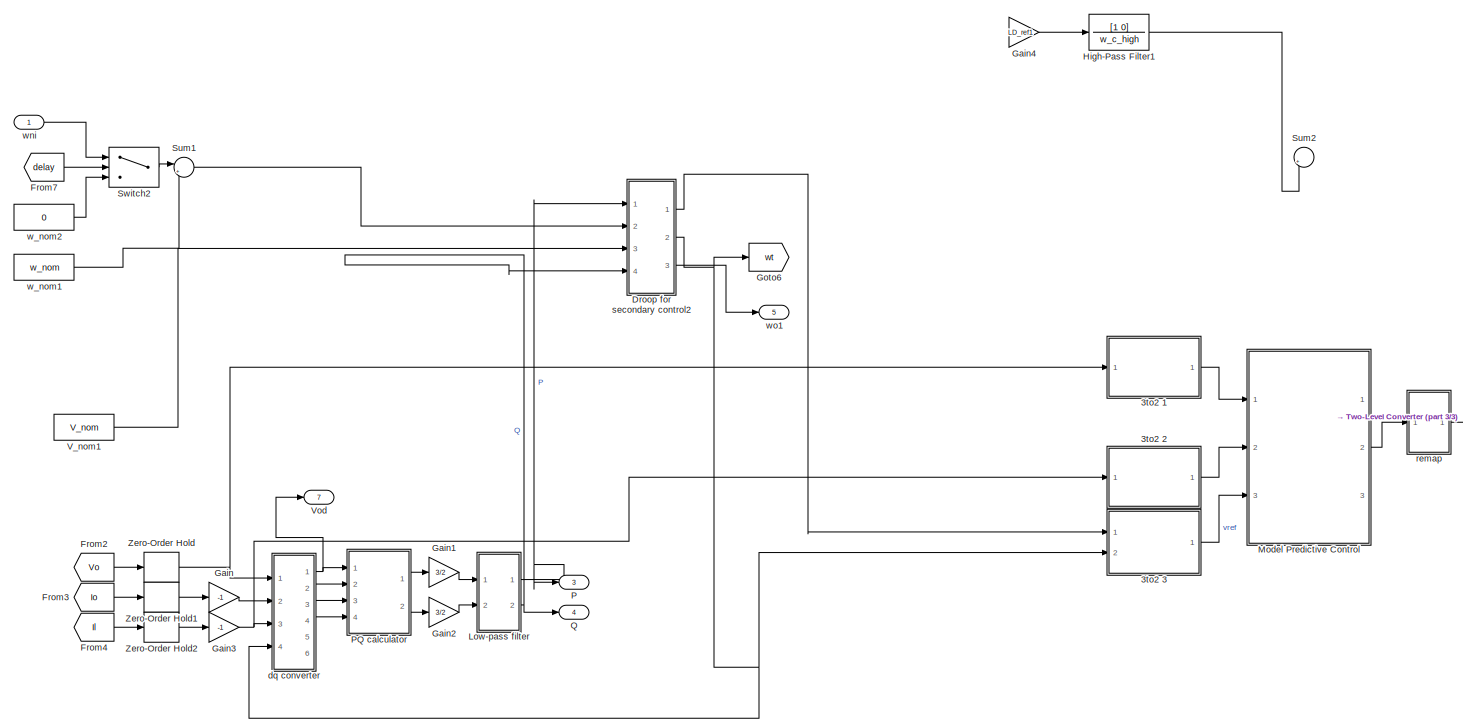
[diagram: Voltage Source Inverter 5 - part 1/3, top left region]
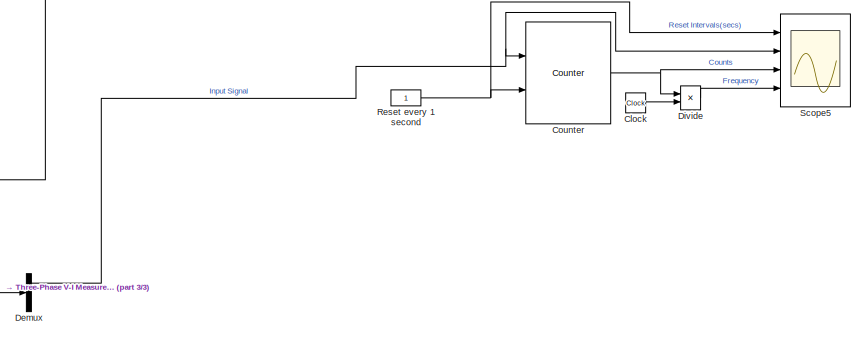
[diagram: Voltage Source Inverter 5 - part 2/3, middle right region]
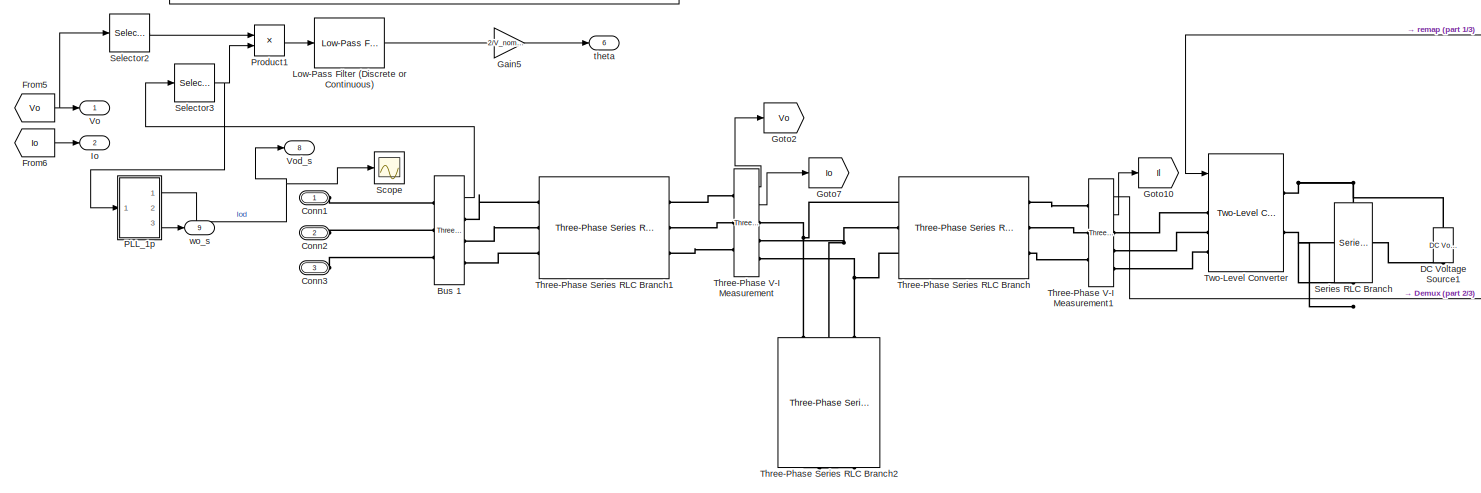
[diagram: Voltage Source Inverter 5 - part 3/3, bottom left region]
BLOCK [SubSystem] Voltage Source Inverter 5
  NameLocation = top
  Ports = [1, 9, 0, 0, 0, 3]
  RequestExecContextInheritance = off
BLOCK [SubSystem] Voltage Source Inverter 5/3to2 1
  Ports = [1, 1]
  RequestExecContextInheritance = off
BLOCK [Sum] Voltage Source Inverter 5/3to2 1/Add
  IconShape = rectangular
  Inputs = +++
  Ports = [3, 1]
BLOCK [Constant] Voltage Source Inverter 5/3to2 1/Constant
  Value = exp(i*2*pi/3)
BLOCK [Constant] Voltage Source Inverter 5/3to2 1/Constant1
  Value = 2/3
BLOCK [Demux] Voltage Source Inverter 5/3to2 1/Demux
  NameLocation = top
  Outputs = 3
  Ports = [1, 3]
BLOCK [Math] Voltage Source Inverter 5/3to2 1/Math Function
  Operator = square
  Ports = [1, 1]
  SignedPower = on
BLOCK [Product] Voltage Source Inverter 5/3to2 1/Product
  Ports = [2, 1]
  RndMeth = Zero
BLOCK [Product] Voltage Source Inverter 5/3to2 1/Product1
  Ports = [2, 1]
  RndMeth = Zero
BLOCK [Product] Voltage Source Inverter 5/3to2 1/Product2
  Ports = [2, 1]
  RndMeth = Zero
BLOCK [Inport] Voltage Source Inverter 5/3to2 1/Vabc_o 
BLOCK [Outport] Voltage Source Inverter 5/3to2 1/Vo
  VectorParamsAs1DForOutWhenUnconnected = off
BLOCK [SubSystem] Voltage Source Inverter 5/3to2 2
  Ports = [1, 1]
  RequestExecContextInheritance = off
BLOCK [Sum] Voltage Source Inverter 5/3to2 2/Add
  IconShape = rectangular
  Inputs = +++
  Ports = [3, 1]
BLOCK [Constant] Voltage Source Inverter 5/3to2 2/Constant
  Value = exp(i*2*pi/3)
BLOCK [Constant] Voltage Source Inverter 5/3to2 2/Constant1
  Value = 2/3
BLOCK [Demux] Voltage Source Inverter 5/3to2 2/Demux
  NameLocation = top
  Outputs = 3
  Ports = [1, 3]
BLOCK [Inport] Voltage Source Inverter 5/3to2 2/Iabc_o 
BLOCK [Outport] Voltage Source Inverter 5/3to2 2/Il
  VectorParamsAs1DForOutWhenUnconnected = off
BLOCK [Math] Voltage Source Inverter 5/3to2 2/Math Function
  Operator = square
  Ports = [1, 1]
  SignedPower = on
BLOCK [Product] Voltage Source Inverter 5/3to2 2/Product
  Ports = [2, 1]
  RndMeth = Zero
BLOCK [Product] Voltage Source Inverter 5/3to2 2/Product1
  Ports = [2, 1]
  RndMeth = Zero
BLOCK [Product] Voltage Source Inverter 5/3to2 2/Product2
  Ports = [2, 1]
  RndMeth = Zero
BLOCK [SubSystem] Voltage Source Inverter 5/3to2 3
  Ports = [2, 1]
  RequestExecContextInheritance = off
BLOCK [Sum] Voltage Source Inverter 5/3to2 3/Add1
  IconShape = rectangular
  Inputs = +++
  Ports = [3, 1]
BLOCK [Constant] Voltage Source Inverter 5/3to2 3/Constant2
  Value = 2*pi/3
BLOCK [Constant] Voltage Source Inverter 5/3to2 3/Constant3
  Value = -2*pi/3
BLOCK [Constant] Voltage Source Inverter 5/3to2 3/Constant4
  Value = exp(i*2*pi/3)
BLOCK [Constant] Voltage Source Inverter 5/3to2 3/Constant5
  Value = 2/3
BLOCK [Trigonometry] Voltage Source Inverter 5/3to2 3/Cos
  Operator = cos
  Ports = [1, 1]
BLOCK [Trigonometry] Voltage Source Inverter 5/3to2 3/Cos1
  Operator = cos
  Ports = [1, 1]
BLOCK [Trigonometry] Voltage Source Inverter 5/3to2 3/Cos2
  Operator = cos
  Ports = [1, 1]
BLOCK [Math] Voltage Source Inverter 5/3to2 3/Math Function1
  Operator = square
  Ports = [1, 1]
  SignedPower = on
BLOCK [Product] Voltage Source Inverter 5/3to2 3/Product3
  Ports = [2, 1]
  RndMeth = Zero
BLOCK [Product] Voltage Source Inverter 5/3to2 3/Product4
  Ports = [2, 1]
  RndMeth = Zero
BLOCK [Product] Voltage Source Inverter 5/3to2 3/Product5
  Ports = [2, 1]
  RndMeth = Zero
BLOCK [Product] Voltage Source Inverter 5/3to2 3/Product6
  Ports = [2, 1]
  RndMeth = Zero
BLOCK [Product] Voltage Source Inverter 5/3to2 3/Product7
  Ports = [2, 1]
  RndMeth = Zero
BLOCK [Product] Voltage Source Inverter 5/3to2 3/Product8
  Ports = [2, 1]
  RndMeth = Zero
BLOCK [Scope] Voltage Source Inverter 5/3to2 3/Scope
  Floating = off
  NumInputPorts = 3
  Ports = [3]
BLOCK [Sum] Voltage Source Inverter 5/3to2 3/Sum
  Inputs = |++
  Ports = [2, 1]
BLOCK [Sum] Voltage Source Inverter 5/3to2 3/Sum1
  Inputs = |++
  Ports = [2, 1]
BLOCK [Inport] Voltage Source Inverter 5/3to2 3/single 
BLOCK [Outport] Voltage Source Inverter 5/3to2 3/threePhase
  VectorParamsAs1DForOutWhenUnconnected = off
BLOCK [Inport] Voltage Source Inverter 5/3to2 3/wt 
  Port = 2
BLOCK [Reference] Voltage Source Inverter 5/Bus 1  REF=spsThreePhaseVIMeasurementLib/Three-Phase
V-I Measurement
  Ports = [0, 1, 0, 0, 0, 3, 3]
  SourceBlock = spsThreePhaseVIMeasurementLib/Three-Phase\nV-I Measurement
  SourceProductBaseCode = PS
  SourceType = Three-Phase VI Measurement
BLOCK [Clock] Voltage Source Inverter 5/Clock
  Commented = on
  Decimation = 1
BLOCK [PMIOPort] Voltage Source Inverter 5/Conn1
  Side = Left
BLOCK [PMIOPort] Voltage Source Inverter 5/Conn2
  Port = 2
  Side = Left
BLOCK [PMIOPort] Voltage Source Inverter 5/Conn3
  Port = 3
  Side = Left
BLOCK [Reference] Voltage Source Inverter 5/Counter  REF=dspswit3/Counter
  Commented = on
  Ports = [2, 1]
  SourceBlock = dspswit3/Counter
  SourceProductBaseCode = DS
  SourceType = Counter
BLOCK [Reference] Voltage Source Inverter 5/DC Voltage Source1  REF=spsDCVoltageSourceLib/DC Voltage Source
  NameLocation = right
  Ports = [0, 0, 0, 0, 0, 1, 1]
  SourceBlock = spsDCVoltageSourceLib/DC Voltage Source
  SourceProductBaseCode = PS
  SourceType = DC Voltage Source
BLOCK [Demux] Voltage Source Inverter 5/Demux
  Outputs = 3
  Ports = [1, 3]
BLOCK [Product] Voltage Source Inverter 5/Divide
  Commented = on
  Inputs = */
  Ports = [2, 1]
BLOCK [SubSystem] Voltage Source Inverter 5/Droop for secondary control2
  Ports = [4, 3]
  RequestExecContextInheritance = off
BLOCK [Gain] Voltage Source Inverter 5/Droop for secondary control2/Gain4
  Gain = n_q
BLOCK [Gain] Voltage Source Inverter 5/Droop for secondary control2/Gain5
  Gain = m_p
BLOCK [Integrator] Voltage Source Inverter 5/Droop for secondary control2/Integrator
  Ports = [1, 1]
  WrapState = on
  WrappedStateLowerValue = 0
  WrappedStateUpperValue = 2*pi
BLOCK [Inport] Voltage Source Inverter 5/Droop for secondary control2/P
BLOCK [Inport] Voltage Source Inverter 5/Droop for secondary control2/Q
  Port = 4
BLOCK [Sum] Voltage Source Inverter 5/Droop for secondary control2/Sum1
  Inputs = |+-
  Ports = [2, 1]
BLOCK [Sum] Voltage Source Inverter 5/Droop for secondary control2/Sum2
  Inputs = |+-
  Ports = [2, 1]
BLOCK [Inport] Voltage Source Inverter 5/Droop for secondary control2/V_nom
  Port = 3
BLOCK [Outport] Voltage Source Inverter 5/Droop for secondary control2/Vref
BLOCK [Inport] Voltage Source Inverter 5/Droop for secondary control2/w_nom
  Port = 2
BLOCK [Outport] Voltage Source Inverter 5/Droop for secondary control2/wo
  Port = 3
BLOCK [Outport] Voltage Source Inverter 5/Droop for secondary control2/wt
  Port = 2
BLOCK [From] Voltage Source Inverter 5/From2
  GotoTag = Vo
BLOCK [From] Voltage Source Inverter 5/From3
  GotoTag = Io
BLOCK [From] Voltage Source Inverter 5/From4
  GotoTag = Il
BLOCK [From] Voltage Source Inverter 5/From5
  GotoTag = Vo
BLOCK [From] Voltage Source Inverter 5/From6
  GotoTag = Io
BLOCK [From] Voltage Source Inverter 5/From7
  GotoTag = delay
  TagVisibility = global
BLOCK [Gain] Voltage Source Inverter 5/Gain
  Gain = -1
BLOCK [Gain] Voltage Source Inverter 5/Gain1
  Gain = 3/2
BLOCK [Gain] Voltage Source Inverter 5/Gain2
  Gain = 3/2
BLOCK [Gain] Voltage Source Inverter 5/Gain3
  Gain = -1
BLOCK [Gain] Voltage Source Inverter 5/Gain4
  Commented = on
  Gain = LD_ref1
BLOCK [Gain] Voltage Source Inverter 5/Gain5
  Gain = 2/V_nom^2
BLOCK [Goto] Voltage Source Inverter 5/Goto10
  GotoTag = Il
BLOCK [Goto] Voltage Source Inverter 5/Goto2
  GotoTag = Vo
BLOCK [Goto] Voltage Source Inverter 5/Goto6
  GotoTag = wt
BLOCK [Goto] Voltage Source Inverter 5/Goto7
  GotoTag = Io
BLOCK [TransferFcn] Voltage Source Inverter 5/High-Pass Filter1
  Commented = on
  Denominator = w_c_high
  Numerator = [1 0]
BLOCK [Outport] Voltage Source Inverter 5/Io
  Port = 2
BLOCK [Reference] Voltage Source Inverter 5/Low-Pass Filter (Discrete or Continuous)  REF=eeGeneralControl/Low-Pass Filter
(Discrete or Continuous)
  Ports = [1, 1]
  SourceBlock = eeGeneralControl/Low-Pass Filter\n(Discrete or Continuous)
  SourceProductBaseCode = PS
  SourceType = Low-Pass Filter (Discrete or Continuous)
BLOCK [SubSystem] Voltage Source Inverter 5/Low-pass filter
  Ports = [2, 2]
  RequestExecContextInheritance = off
BLOCK [Reference] Voltage Source Inverter 5/Low-pass filter/Low-Pass Filter (Discrete or Continuous)  REF=eeGeneralControl/Low-Pass Filter
(Discrete or Continuous)
  Ports = [1, 1]
  SourceBlock = eeGeneralControl/Low-Pass Filter\n(Discrete or Continuous)
  SourceProductBaseCode = PS
  SourceType = Low-Pass Filter (Discrete or Continuous)
BLOCK [Reference] Voltage Source Inverter 5/Low-pass filter/Low-Pass Filter (Discrete or Continuous)1  REF=eeGeneralControl/Low-Pass Filter
(Discrete or Continuous)
  Ports = [1, 1]
  SourceBlock = eeGeneralControl/Low-Pass Filter\n(Discrete or Continuous)
  SourceProductBaseCode = PS
  SourceType = Low-Pass Filter (Discrete or Continuous)
BLOCK [Outport] Voltage Source Inverter 5/Low-pass filter/P
BLOCK [Outport] Voltage Source Inverter 5/Low-pass filter/Q
  Port = 2
BLOCK [Inport] Voltage Source Inverter 5/Low-pass filter/p_hat
BLOCK [Inport] Voltage Source Inverter 5/Low-pass filter/q_hat
  Port = 2
BLOCK [SubSystem] Voltage Source Inverter 5/Model Predictive Control 
  ErrorFcn = Stateflow.Translate.translate
  NameLocation = top
  PermitHierarchicalResolution = ExplicitOnly
  Ports = [3, 3]
  RequestExecContextInheritance = off
  SFBlockType = MATLAB Function
  TreatAsAtomicUnit = on
BLOCK [Demux] Voltage Source Inverter 5/Model Predictive Control / Demux 
  Outputs = 1
  Ports = [1, 1]
BLOCK [S-Function] Voltage Source Inverter 5/Model Predictive Control / SFunction 
  EnableBusSupport = on
  FunctionName = sf_sfun
  Parameters = Cfilter,Lfilter,Vdc,modT
  PortCounts = [3 4]
  Ports = [3, 4]
  SFcnIsStateOwnerBlock = off
  SFunctionDeploymentMode = off
  Tag = Stateflow S-Function 10
BLOCK [Terminator] Voltage Source Inverter 5/Model Predictive Control / Terminator 
BLOCK [Outport] Voltage Source Inverter 5/Model Predictive Control /S_opt
  VectorParamsAs1DForOutWhenUnconnected = off
BLOCK [Outport] Voltage Source Inverter 5/Model Predictive Control /Sopt
  Port = 2
  VectorParamsAs1DForOutWhenUnconnected = off
BLOCK [Inport] Voltage Source Inverter 5/Model Predictive Control /Vc
BLOCK [Outport] Voltage Source Inverter 5/Model Predictive Control /Vi_opt
  Port = 3
  VectorParamsAs1DForOutWhenUnconnected = off
BLOCK [Inport] Voltage Source Inverter 5/Model Predictive Control /i_filter
  Port = 2
BLOCK [Inport] Voltage Source Inverter 5/Model Predictive Control /vref
  Port = 3
BLOCK [Outport] Voltage Source Inverter 5/P
  Port = 3
BLOCK [SubSystem] Voltage Source Inverter 5/PLL_1p
  Ports = [1, 3]
  RequestExecContextInheritance = off
BLOCK [Constant] Voltage Source Inverter 5/PLL_1p/2pi
  Value = 2*pi
BLOCK [Reference] Voltage Source Inverter 5/PLL_1p/PID Controller  REF=slpidlib/PID Controller
  Ports = [1, 1]
  SourceBlock = slpidlib/PID Controller
  SourceProductBaseCode = SL
  SourceType = PID 1dof
BLOCK [RelationalOperator] Voltage Source Inverter 5/PLL_1p/Reset1
  InputSameDT = off
  OutDataTypeStr = boolean
  Ports = [2, 1]
BLOCK [Sum] Voltage Source Inverter 5/PLL_1p/Sum1
  Inputs = |++
  Ports = [2, 1]
BLOCK [SubSystem] Voltage Source Inverter 5/PLL_1p/TienXuly
  Ports = [1, 2]
  RequestExecContextInheritance = off
BLOCK [Gain] Voltage Source Inverter 5/PLL_1p/TienXuly/Gain
  Gain = k
BLOCK [Integrator] Voltage Source Inverter 5/PLL_1p/TienXuly/Integrator
  NameLocation = top
  Ports = [1, 1]
BLOCK [Integrator] Voltage Source Inverter 5/PLL_1p/TienXuly/Integrator1
  Ports = [1, 1]
BLOCK [TransferFcn] Voltage Source Inverter 5/PLL_1p/TienXuly/Locthongthap
  Denominator = [1/fc2 1]
  NameLocation = left
BLOCK [Mux] Voltage Source Inverter 5/PLL_1p/TienXuly/Mux
  DisplayOption = bar
  Inputs = 2
  NameLocation = top
  Ports = [2, 1]
BLOCK [Product] Voltage Source Inverter 5/PLL_1p/TienXuly/Product
  Ports = [2, 1]
  RndMeth = Zero
BLOCK [Product] Voltage Source Inverter 5/PLL_1p/TienXuly/Product1
  NameLocation = top
  Ports = [2, 1]
  RndMeth = Zero
BLOCK [Sum] Voltage Source Inverter 5/PLL_1p/TienXuly/Sum
  Inputs = |+-
  Ports = [2, 1]
BLOCK [Sum] Voltage Source Inverter 5/PLL_1p/TienXuly/Sum1
  Inputs = |+-
  Ports = [2, 1]
BLOCK [Sum] Voltage Source Inverter 5/PLL_1p/TienXuly/Sum2
  Inputs = |+-
  NameLocation = top
  Ports = [2, 1]
BLOCK [Inport] Voltage Source Inverter 5/PLL_1p/TienXuly/v
BLOCK [Outport] Voltage Source Inverter 5/PLL_1p/TienXuly/v'
  VectorParamsAs1DForOutWhenUnconnected = off
BLOCK [Scope] Voltage Source Inverter 5/PLL_1p/TienXuly/v'-qv'
  Floating = off
  NumInputPorts = 1
  Ports = [1]
BLOCK [Outport] Voltage Source Inverter 5/PLL_1p/TienXuly/v'q
  NameLocation = top
  Port = 2
  VectorParamsAs1DForOutWhenUnconnected = off
BLOCK [Constant] Voltage Source Inverter 5/PLL_1p/TienXuly/wloc
  Value = fc1*2*pi
BLOCK [Integrator] Voltage Source Inverter 5/PLL_1p/Tinhtheta
  ExternalReset = rising
  Ports = [2, 1]
  UpperSaturationLimit = 2*pi
BLOCK [SubSystem] Voltage Source Inverter 5/PLL_1p/apha-beta=>dq
  Ports = [3, 2]
  RequestExecContextInheritance = off
BLOCK [Mux] Voltage Source Inverter 5/PLL_1p/apha-beta=>dq/Mux
  DisplayOption = bar
  Inputs = 3
  Ports = [3, 1]
BLOCK [Inport] Voltage Source Inverter 5/PLL_1p/apha-beta=>dq/Theta
BLOCK [Fcn] Voltage Source Inverter 5/PLL_1p/apha-beta=>dq/Tinhvd
  Expr = (u[2]*cos(u[1])+u[3]*sin(u[1]))
BLOCK [Fcn] Voltage Source Inverter 5/PLL_1p/apha-beta=>dq/Tinhvq
  Expr = (-u[2]*sin(u[1])+u[3]*cos(u[1]))
BLOCK [Inport] Voltage Source Inverter 5/PLL_1p/apha-beta=>dq/Uapha
  Port = 2
BLOCK [Inport] Voltage Source Inverter 5/PLL_1p/apha-beta=>dq/Ubeta
  Port = 3
BLOCK [Outport] Voltage Source Inverter 5/PLL_1p/apha-beta=>dq/vd
  Port = 2
  VectorParamsAs1DForOutWhenUnconnected = off
BLOCK [Outport] Voltage Source Inverter 5/PLL_1p/apha-beta=>dq/vq
  VectorParamsAs1DForOutWhenUnconnected = off
BLOCK [Outport] Voltage Source Inverter 5/PLL_1p/omega
  Port = 3
BLOCK [Inport] Voltage Source Inverter 5/PLL_1p/v
BLOCK [Outport] Voltage Source Inverter 5/PLL_1p/vd
BLOCK [Outport] Voltage Source Inverter 5/PLL_1p/vq
  Port = 2
BLOCK [Constant] Voltage Source Inverter 5/PLL_1p/wff
  Value = 50*2*pi
BLOCK [SubSystem] Voltage Source Inverter 5/PQ calculator
  Ports = [4, 2]
  RequestExecContextInheritance = off
BLOCK [Inport] Voltage Source Inverter 5/PQ calculator/Iod
  Port = 3
BLOCK [Inport] Voltage Source Inverter 5/PQ calculator/Ioq
  Port = 4
BLOCK [Product] Voltage Source Inverter 5/PQ calculator/Product
  Ports = [2, 1]
BLOCK [Product] Voltage Source Inverter 5/PQ calculator/Product1
  Ports = [2, 1]
BLOCK [Product] Voltage Source Inverter 5/PQ calculator/Product2
  Ports = [2, 1]
BLOCK [Product] Voltage Source Inverter 5/PQ calculator/Product3
  Ports = [2, 1]
BLOCK [Sum] Voltage Source Inverter 5/PQ calculator/Sum10
  Inputs = |++
  Ports = [2, 1]
BLOCK [Sum] Voltage Source Inverter 5/PQ calculator/Sum11
  Inputs = |+-
  Ports = [2, 1]
BLOCK [Inport] Voltage Source Inverter 5/PQ calculator/Vod
BLOCK [Inport] Voltage Source Inverter 5/PQ calculator/Voq
  Port = 2
BLOCK [Outport] Voltage Source Inverter 5/PQ calculator/p_hat
BLOCK [Outport] Voltage Source Inverter 5/PQ calculator/q_hat
  Port = 2
BLOCK [Product] Voltage Source Inverter 5/Product1
  Ports = [2, 1]
BLOCK [Outport] Voltage Source Inverter 5/Q
  Port = 4
BLOCK [Constant] Voltage Source Inverter 5/Reset every 1 second
  Commented = on
BLOCK [Scope] Voltage Source Inverter 5/Scope
  Floating = off
  NumInputPorts = 1
  Ports = [1]
  ScopeSpecificationString = Simulink.scopes.TimeScopeBlockCfg('CurrentConfiguration', extmgr.ConfigurationSet(extmgr.Configuration('Core','General UI',true),extmgr.Configuration('Core','Source UI',true),extmgr.Configuration('Sources','WiredSimulink',true,'DataLoggingVariableName','ScopeData1'),extmgr.Configuration('Visuals','Time Domain',true,'SerializedDisplays',{struct('MinYLimReal','-2.36119','MaxYLimReal','5.36694','YLab...<+1440ch>
BLOCK [Scope] Voltage Source Inverter 5/Scope5
  Commented = on
  Floating = off
  NumInputPorts = 4
  Ports = [4]
  ScopeSpecificationString = Simulink.scopes.TimeScopeBlockCfg('CurrentConfiguration', extmgr.ConfigurationSet(extmgr.Configuration('Core','General UI',true,'FigureColor',[1 1 1]),extmgr.Configuration('Core','Source UI',true),extmgr.Configuration('Sources','WiredSimulink',true,'DataLoggingVariableName','ScopeData2'),extmgr.Configuration('Visuals','Time Domain',true,'TimeAxisLabels','All','SerializedDisplays',{struct('MinYLimR...<+4436ch>
BLOCK [Selector] Voltage Source Inverter 5/Selector2
  IndexOptions = Index vector (dialog)
  Indices = [1]
  InputPortWidth = 3
  OutputSizes = 1
  Ports = [1, 1]
BLOCK [Selector] Voltage Source Inverter 5/Selector3
  IndexOptions = Index vector (dialog)
  Indices = [1]
  InputPortWidth = 3
  OutputSizes = 1
  Ports = [1, 1]
BLOCK [Reference] Voltage Source Inverter 5/Series RLC Branch  REF=spsSeriesRLCBranchLib/Series RLC Branch
  NameLocation = left
  Ports = [0, 0, 0, 0, 0, 1, 1]
  SourceBlock = spsSeriesRLCBranchLib/Series RLC Branch
  SourceProductBaseCode = PS
  SourceType = Series RLC Branch
BLOCK [Sum] Voltage Source Inverter 5/Sum1
  Inputs = |++
  Ports = [2, 1]
BLOCK [Sum] Voltage Source Inverter 5/Sum2
  Commented = on
  Inputs = |+-
  Ports = [2, 1]
BLOCK [Switch] Voltage Source Inverter 5/Switch2
  Criteria = u2 > Threshold
  InputSameDT = off
  SaturateOnIntegerOverflow = off
  Threshold = time_thresh
BLOCK [Reference] Voltage Source Inverter 5/Three-Phase Series RLC Branch  REF=spsThreePhaseSeriesRLCBranchLib/Three-Phase
Series RLC Branch
  AttributesFormatString = \n
  Ports = [0, 0, 0, 0, 0, 3, 3]
  SourceBlock = spsThreePhaseSeriesRLCBranchLib/Three-Phase\nSeries RLC Branch
  SourceProductBaseCode = PS
  SourceType = Three-Phase Series RLC Branch
BLOCK [Reference] Voltage Source Inverter 5/Three-Phase Series RLC Branch1  REF=spsThreePhaseSeriesRLCBranchLib/Three-Phase
Series RLC Branch
  AttributesFormatString = \n
  Ports = [0, 0, 0, 0, 0, 3, 3]
  SourceBlock = spsThreePhaseSeriesRLCBranchLib/Three-Phase\nSeries RLC Branch
  SourceProductBaseCode = PS
  SourceType = Three-Phase Series RLC Branch
BLOCK [Reference] Voltage Source Inverter 5/Three-Phase Series RLC Branch2  REF=spsThreePhaseSeriesRLCBranchLib/Three-Phase
Series RLC Branch
  AttributesFormatString = \n
  NameLocation = left
  Ports = [0, 0, 0, 0, 0, 3, 3]
  SourceBlock = spsThreePhaseSeriesRLCBranchLib/Three-Phase\nSeries RLC Branch
  SourceProductBaseCode = PS
  SourceType = Three-Phase Series RLC Branch
BLOCK [Reference] Voltage Source Inverter 5/Three-Phase V-I Measurement  REF=spsThreePhaseVIMeasurementLib/Three-Phase
V-I Measurement
  Ports = [0, 2, 0, 0, 0, 3, 3]
  SourceBlock = spsThreePhaseVIMeasurementLib/Three-Phase\nV-I Measurement
  SourceProductBaseCode = PS
  SourceType = Three-Phase VI Measurement
BLOCK [Reference] Voltage Source Inverter 5/Three-Phase V-I Measurement1  REF=spsThreePhaseVIMeasurementLib/Three-Phase
V-I Measurement
  Ports = [0, 2, 0, 0, 0, 3, 3]
  SourceBlock = spsThreePhaseVIMeasurementLib/Three-Phase\nV-I Measurement
  SourceProductBaseCode = PS
  SourceType = Three-Phase VI Measurement
BLOCK [Reference] Voltage Source Inverter 5/Two-Level Converter  REF=spsTwoLevelConverterLib/Two-Level Converter
  Ports = [2, 0, 0, 0, 0, 3, 2]
  SourceBlock = spsTwoLevelConverterLib/Two-Level Converter
  SourceProductBaseCode = PS
  SourceType = Two-Level Converter
BLOCK [Constant] Voltage Source Inverter 5/V_nom1
  Value = V_nom
BLOCK [Outport] Voltage Source Inverter 5/Vo
BLOCK [Outport] Voltage Source Inverter 5/Vod
  Port = 7
BLOCK [Outport] Voltage Source Inverter 5/Vod_s
  Port = 8
BLOCK [ZeroOrderHold] Voltage Source Inverter 5/Zero-Order Hold
  SampleTime = modT
BLOCK [ZeroOrderHold] Voltage Source Inverter 5/Zero-Order Hold1
  SampleTime = modT
BLOCK [ZeroOrderHold] Voltage Source Inverter 5/Zero-Order Hold2
  SampleTime = modT
BLOCK [SubSystem] Voltage Source Inverter 5/dq converter
  Ports = [4, 6]
  RequestExecContextInheritance = off
BLOCK [Outport] Voltage Source Inverter 5/dq converter/Ild
  Port = 5
BLOCK [Inport] Voltage Source Inverter 5/dq converter/Ildq
  Port = 3
BLOCK [Outport] Voltage Source Inverter 5/dq converter/Ilq
  Port = 6
BLOCK [Outport] Voltage Source Inverter 5/dq converter/Iod
  Port = 3
BLOCK [Inport] Voltage Source Inverter 5/dq converter/Iodq
  Port = 2
BLOCK [Outport] Voltage Source Inverter 5/dq converter/Ioq
  Port = 4
BLOCK [Scope] Voltage Source Inverter 5/dq converter/Scope
  Floating = off
  NumInputPorts = 1
  Ports = [1]
  ScopeSpecificationString = Simulink.scopes.TimeScopeBlockCfg('CurrentConfiguration', extmgr.ConfigurationSet(extmgr.Configuration('Core','General UI',true),extmgr.Configuration('Core','Source UI',true),extmgr.Configuration('Sources','WiredSimulink',true,'DataLoggingVariableName','ScopeData2'),extmgr.Configuration('Visuals','Time Domain',true,'SerializedDisplays',{struct('MinYLimReal','-393.18787','MaxYLimReal','392.23225','...<+1454ch>
BLOCK [Scope] Voltage Source Inverter 5/dq converter/Scope1
  Floating = off
  NumInputPorts = 1
  Ports = [1]
  ScopeSpecificationString = Simulink.scopes.TimeScopeBlockCfg('CurrentConfiguration', extmgr.ConfigurationSet(extmgr.Configuration('Core','General UI',true),extmgr.Configuration('Core','Source UI',true),extmgr.Configuration('Sources','WiredSimulink',true,'DataLoggingVariableName','ScopeData1'),extmgr.Configuration('Visuals','Time Domain',true,'SerializedDisplays',{struct('MinYLimReal','-37.79347','MaxYLimReal','37.45967','YL...<+1446ch>
BLOCK [SubSystem] Voltage Source Inverter 5/dq converter/Subsystem
  Ports = [2, 2]
  RequestExecContextInheritance = off
BLOCK [Demux] Voltage Source Inverter 5/dq converter/Subsystem/Demux
  Outputs = 3
  Ports = [1, 3]
BLOCK [Outport] Voltage Source Inverter 5/dq converter/Subsystem/Out1
BLOCK [Outport] Voltage Source Inverter 5/dq converter/Subsystem/Out2
  Port = 2
BLOCK [Inport] Voltage Source Inverter 5/dq converter/Subsystem/abc
BLOCK [Reference] Voltage Source Inverter 5/dq converter/Subsystem/abc to dq0  REF=spsabctodq0Lib/abc to dq0
  Ports = [2, 1]
  SourceBlock = spsabctodq0Lib/abc to dq0
  SourceProductBaseCode = PS
  SourceType = abc to dq0 Transformation
BLOCK [Inport] Voltage Source Inverter 5/dq converter/Subsystem/wt
  Port = 2
BLOCK [SubSystem] Voltage Source Inverter 5/dq converter/Subsystem1
  Ports = [2, 2]
  RequestExecContextInheritance = off
BLOCK [Demux] Voltage Source Inverter 5/dq converter/Subsystem1/Demux
  Outputs = 3
  Ports = [1, 3]
BLOCK [Outport] Voltage Source Inverter 5/dq converter/Subsystem1/Out1
BLOCK [Outport] Voltage Source Inverter 5/dq converter/Subsystem1/Out2
  Port = 2
BLOCK [Inport] Voltage Source Inverter 5/dq converter/Subsystem1/abc
BLOCK [Reference] Voltage Source Inverter 5/dq converter/Subsystem1/abc to dq0  REF=spsabctodq0Lib/abc to dq0
  Ports = [2, 1]
  SourceBlock = spsabctodq0Lib/abc to dq0
  SourceProductBaseCode = PS
  SourceType = abc to dq0 Transformation
BLOCK [Inport] Voltage Source Inverter 5/dq converter/Subsystem1/wt
  Port = 2
BLOCK [SubSystem] Voltage Source Inverter 5/dq converter/Subsystem2
  Ports = [2, 2]
  RequestExecContextInheritance = off
BLOCK [Demux] Voltage Source Inverter 5/dq converter/Subsystem2/Demux
  Outputs = 3
  Ports = [1, 3]
BLOCK [Outport] Voltage Source Inverter 5/dq converter/Subsystem2/Out1
BLOCK [Outport] Voltage Source Inverter 5/dq converter/Subsystem2/Out2
  Port = 2
BLOCK [Inport] Voltage Source Inverter 5/dq converter/Subsystem2/abc
BLOCK [Reference] Voltage Source Inverter 5/dq converter/Subsystem2/abc to dq0  REF=spsabctodq0Lib/abc to dq0
  Ports = [2, 1]
  SourceBlock = spsabctodq0Lib/abc to dq0
  SourceProductBaseCode = PS
  SourceType = abc to dq0 Transformation
BLOCK [Inport] Voltage Source Inverter 5/dq converter/Subsystem2/wt
  Port = 2
BLOCK [Outport] Voltage Source Inverter 5/dq converter/Vod
BLOCK [Inport] Voltage Source Inverter 5/dq converter/Vodq
BLOCK [Outport] Voltage Source Inverter 5/dq converter/Voq
  Port = 2
BLOCK [Inport] Voltage Source Inverter 5/dq converter/wo
  Port = 4
BLOCK [SubSystem] Voltage Source Inverter 5/remap
  Ports = [1, 1]
  RequestExecContextInheritance = off
BLOCK [Demux] Voltage Source Inverter 5/remap/Demux
  NameLocation = top
  Outputs = 6
  Ports = [1, 6]
BLOCK [Inport] Voltage Source Inverter 5/remap/In1
BLOCK [Mux] Voltage Source Inverter 5/remap/Mux
  DisplayOption = bar
  Inputs = 6
  Ports = [6, 1]
BLOCK [Outport] Voltage Source Inverter 5/remap/Out1
BLOCK [Outport] Voltage Source Inverter 5/theta
  Port = 6
BLOCK [Constant] Voltage Source Inverter 5/w_nom1
  Value = w_nom
BLOCK [Constant] Voltage Source Inverter 5/w_nom2
  Value = 0
BLOCK [Inport] Voltage Source Inverter 5/wni
BLOCK [Outport] Voltage Source Inverter 5/wo1
  Port = 5
BLOCK [Outport] Voltage Source Inverter 5/wo_s
  Port = 9
BLOCK [Reference] powergui2  REF=spspowerguiLib/powergui
  Ports = []
  Priority = 1
  SourceBlock = spspowerguiLib/powergui
  SourceProductBaseCode = PS
  SourceType = PSB option menu block
ANNOTATION (root): Matrix Formation
ANNOTATION (root): Measurement
LINE Clock:1 -> Goto:1
LINE DG1 Frequency:1 -> Gain1:1
LINE DG2 Frequency:1 -> Gain2:1
LINE DG3 Frequency:1 -> Gain3:1
LINE DG4 Frequency:1 -> Gain4:1
LINE From10:1 -> Gain10:1
LINE From11:1 -> Gain11:1
LINE From16:1 -> Gain5:1
LINE From17:1 -> Gain6:1
LINE From18:1 -> Gain7:1
LINE From19:1 -> Gain12:1
LINE From1:1 -> Scope1:2
LINE From20:1 -> Mux2:1
LINE From21:1 -> Mux2:2
LINE From22:1 -> Mux2:3
LINE From23:1 -> Mux2:4
LINE From24:1 -> Mux5:1
LINE From25:1 -> Mux3:1
LINE From26:1 -> Mux3:2
LINE From27:1 -> Mux3:3
LINE From28:1 -> Mux3:4
LINE From29:1 -> Mux5:2
LINE From2:1 -> Scope1:3
LINE From30:1 -> Mux5:3
LINE From31:1 -> Mux5:4
LINE From32:1 -> Mux6:1
LINE From33:1 -> Mux6:2
LINE From34:1 -> Mux6:3
LINE From35:1 -> Mux6:4
LINE From36:1 -> Mux7:1
LINE From37:1 -> Mux7:2
LINE From38:1 -> Mux7:3
LINE From39:1 -> Mux7:4
LINE From3:1 -> Scope1:4
LINE From40:1 -> Voltage Source Inverter 5:1
LINE From42:1 -> Voltage Source Inverter 4:1
LINE From44:1 -> Voltage Source Inverter 3:1
LINE From46:1 -> Voltage Source Inverter 2:1
LINE From4:1 -> Scope2:1
LINE From5:1 -> Scope2:2
LINE From6:1 -> Scope2:3
LINE From73:1 -> Mux:1
LINE From74:1 -> Mux:2
LINE From75:1 -> Mux:3
LINE From76:1 -> Mux:4
LINE From77:1 -> Mux1:1
LINE From78:1 -> Mux1:2
LINE From79:1 -> Mux1:3
LINE From7:1 -> Scope2:4
LINE From80:1 -> Mux1:4
LINE From8:1 -> Gain8:1
LINE From9:1 -> Gain9:1
LINE From:1 -> Scope1:1
LINE Gain10:1 -> Scope3:3
LINE Gain11:1 -> Scope3:4
LINE Gain12:1 -> Scope4:2
LINE Gain1:1 -> Scope:1
LINE Gain2:1 -> Scope:2
LINE Gain3:1 -> Scope:3
LINE Gain4:1 -> Scope:4
LINE Gain5:1 -> Scope4:3
LINE Gain6:1 -> Scope4:4
LINE Gain7:1 -> Scope4:1
LINE Gain8:1 -> Scope3:1
LINE Gain9:1 -> Scope3:2
LINE MPC-based Secondary Controller/Constant1:1 -> MPC-based Secondary Controller/Switch:3
LINE MPC-based Secondary Controller/Constant:1 -> MPC-based Secondary Controller/Switch:1
NET MPC-based Secondary Controller/Demux:1 -> MPC-based Secondary Controller/Subsystem1:1, MPC-based Secondary Controller/Subsystem5:1, MPC-based Secondary Controller/Subsystem6:1, MPC-based Secondary Controller/Subsystem7:1
NET MPC-based Secondary Controller/Demux:2 -> MPC-based Secondary Controller/Subsystem1:2, MPC-based Secondary Controller/Subsystem5:2, MPC-based Secondary Controller/Subsystem6:2, MPC-based Secondary Controller/Subsystem7:2
NET MPC-based Secondary Controller/Demux:3 -> MPC-based Secondary Controller/Subsystem1:3, MPC-based Secondary Controller/Subsystem5:3, MPC-based Secondary Controller/Subsystem6:3, MPC-based Secondary Controller/Subsystem7:3
NET MPC-based Secondary Controller/Demux:4 -> MPC-based Secondary Controller/Subsystem1:4, MPC-based Secondary Controller/Subsystem5:4, MPC-based Secondary Controller/Subsystem6:4, MPC-based Secondary Controller/Subsystem7:4
NET MPC-based Secondary Controller/Demux:5 -> MPC-based Secondary Controller/Subsystem1:5, MPC-based Secondary Controller/Subsystem5:5, MPC-based Secondary Controller/Subsystem6:5, MPC-based Secondary Controller/Subsystem7:5
NET MPC-based Secondary Controller/Demux:6 -> MPC-based Secondary Controller/Subsystem1:6, MPC-based Secondary Controller/Subsystem5:6, MPC-based Secondary Controller/Subsystem6:6, MPC-based Secondary Controller/Subsystem7:6
LINE MPC-based Secondary Controller/From1:1 -> MPC-based Secondary Controller/Mux:5
LINE MPC-based Secondary Controller/From2:1 -> MPC-based Secondary Controller/Mux:1
LINE MPC-based Secondary Controller/From34:1 -> MPC-based Secondary Controller/Mux:6
LINE MPC-based Secondary Controller/From3:1 -> MPC-based Secondary Controller/Mux:2
LINE MPC-based Secondary Controller/From4:1 -> MPC-based Secondary Controller/Mux:3
LINE MPC-based Secondary Controller/From5:1 -> MPC-based Secondary Controller/Mux:4
LINE MPC-based Secondary Controller/From:1 -> MPC-based Secondary Controller/Switch:2
LINE MPC-based Secondary Controller/Horizontal Matrix Concatenate:1 -> MPC-based Secondary Controller/Transpose:1
LINE MPC-based Secondary Controller/Integrator2:1 -> MPC-based Secondary Controller/Goto26:1
LINE MPC-based Secondary Controller/Integrator4:1 -> MPC-based Secondary Controller/Goto28:1
NET MPC-based Secondary Controller/Integrator6:1 -> MPC-based Secondary Controller/Goto32:1, MPC-based Secondary Controller/Scope:1
NET MPC-based Secondary Controller/Integrator:1 -> MPC-based Secondary Controller/Goto23:1, MPC-based Secondary Controller/Scope1:1
LINE MPC-based Secondary Controller/Mux:1 -> MPC-based Secondary Controller/Zero-Order Hold:1
LINE MPC-based Secondary Controller/Selector1:1 -> MPC-based Secondary Controller/Integrator2:1
LINE MPC-based Secondary Controller/Selector2:1 -> MPC-based Secondary Controller/Integrator:1
LINE MPC-based Secondary Controller/Selector3:1 -> MPC-based Secondary Controller/Integrator4:1
LINE MPC-based Secondary Controller/Selector4:1 -> MPC-based Secondary Controller/Integrator6:1
LINE MPC-based Secondary Controller/Subsystem1/Constant12:1 -> MPC-based Secondary Controller/Subsystem1/Model Predictive Control 1:3
LINE MPC-based Secondary Controller/Subsystem1/Constant13:1 -> MPC-based Secondary Controller/Subsystem1/Model Predictive Control 1:4
LINE MPC-based Secondary Controller/Subsystem1/Constant15:1 -> MPC-based Secondary Controller/Subsystem1/Model Predictive Control 1:5
LINE MPC-based Secondary Controller/Subsystem1/Constant16:1 -> MPC-based Secondary Controller/Subsystem1/Model Predictive Control 1:2
LINE MPC-based Secondary Controller/Subsystem1/Constant5:1 -> MPC-based Secondary Controller/Subsystem1/Model Predictive Control 1:15
LINE MPC-based Secondary Controller/Subsystem1/Constant6:1 -> MPC-based Secondary Controller/Subsystem1/Model Predictive Control 1:14
LINE MPC-based Secondary Controller/Subsystem1/Constant7:1 -> MPC-based Secondary Controller/Subsystem1/Model Predictive Control 1:13
LINE MPC-based Secondary Controller/Subsystem1/Constant8:1 -> MPC-based Secondary Controller/Subsystem1/Model Predictive Control 1:12
LINE MPC-based Secondary Controller/Subsystem1/Constant9:1 -> MPC-based Secondary Controller/Subsystem1/Model Predictive Control 1:16
LINE MPC-based Secondary Controller/Subsystem1/Constant:1 -> MPC-based Secondary Controller/Subsystem1/Model Predictive Control 1:17
LINE MPC-based Secondary Controller/Subsystem1/Model Predictive Control 1:1 -> MPC-based Secondary Controller/Subsystem1/flag:1
LINE MPC-based Secondary Controller/Subsystem1/Model Predictive Control 1:2 -> MPC-based Secondary Controller/Subsystem1/x:1
LINE MPC-based Secondary Controller/Subsystem1/P:1 -> MPC-based Secondary Controller/Subsystem1/Model Predictive Control 1:11
LINE MPC-based Secondary Controller/Subsystem1/V:1 -> MPC-based Secondary Controller/Subsystem1/Model Predictive Control 1:8
LINE MPC-based Secondary Controller/Subsystem1/V_s:1 -> MPC-based Secondary Controller/Subsystem1/Model Predictive Control 1:9
LINE MPC-based Secondary Controller/Subsystem1/X:1 -> MPC-based Secondary Controller/Subsystem1/Model Predictive Control 1:1
LINE MPC-based Secondary Controller/Subsystem1/omega:1 -> MPC-based Secondary Controller/Subsystem1/Model Predictive Control 1:6
LINE MPC-based Secondary Controller/Subsystem1/omega_s:1 -> MPC-based Secondary Controller/Subsystem1/Model Predictive Control 1:7
LINE MPC-based Secondary Controller/Subsystem1/theta:1 -> MPC-based Secondary Controller/Subsystem1/Model Predictive Control 1:10
NET MPC-based Secondary Controller/Subsystem1:1 -> MPC-based Secondary Controller/Horizontal Matrix Concatenate:2, MPC-based Secondary Controller/Selector1:1
LINE MPC-based Secondary Controller/Subsystem5/Constant12:1 -> MPC-based Secondary Controller/Subsystem5/Model Predictive Control 1:3
LINE MPC-based Secondary Controller/Subsystem5/Constant13:1 -> MPC-based Secondary Controller/Subsystem5/Model Predictive Control 1:4
LINE MPC-based Secondary Controller/Subsystem5/Constant15:1 -> MPC-based Secondary Controller/Subsystem5/Model Predictive Control 1:5
LINE MPC-based Secondary Controller/Subsystem5/Constant16:1 -> MPC-based Secondary Controller/Subsystem5/Model Predictive Control 1:2
LINE MPC-based Secondary Controller/Subsystem5/Constant5:1 -> MPC-based Secondary Controller/Subsystem5/Model Predictive Control 1:15
LINE MPC-based Secondary Controller/Subsystem5/Constant6:1 -> MPC-based Secondary Controller/Subsystem5/Model Predictive Control 1:14
LINE MPC-based Secondary Controller/Subsystem5/Constant7:1 -> MPC-based Secondary Controller/Subsystem5/Model Predictive Control 1:13
LINE MPC-based Secondary Controller/Subsystem5/Constant8:1 -> MPC-based Secondary Controller/Subsystem5/Model Predictive Control 1:12
LINE MPC-based Secondary Controller/Subsystem5/Constant9:1 -> MPC-based Secondary Controller/Subsystem5/Model Predictive Control 1:16
LINE MPC-based Secondary Controller/Subsystem5/Constant:1 -> MPC-based Secondary Controller/Subsystem5/Model Predictive Control 1:17
LINE MPC-based Secondary Controller/Subsystem5/Model Predictive Control 1:1 -> MPC-based Secondary Controller/Subsystem5/flag:1
LINE MPC-based Secondary Controller/Subsystem5/Model Predictive Control 1:2 -> MPC-based Secondary Controller/Subsystem5/x:1
LINE MPC-based Secondary Controller/Subsystem5/P:1 -> MPC-based Secondary Controller/Subsystem5/Model Predictive Control 1:11
LINE MPC-based Secondary Controller/Subsystem5/V:1 -> MPC-based Secondary Controller/Subsystem5/Model Predictive Control 1:8
LINE MPC-based Secondary Controller/Subsystem5/V_s:1 -> MPC-based Secondary Controller/Subsystem5/Model Predictive Control 1:9
LINE MPC-based Secondary Controller/Subsystem5/X:1 -> MPC-based Secondary Controller/Subsystem5/Model Predictive Control 1:1
LINE MPC-based Secondary Controller/Subsystem5/omega:1 -> MPC-based Secondary Controller/Subsystem5/Model Predictive Control 1:6
LINE MPC-based Secondary Controller/Subsystem5/omega_s:1 -> MPC-based Secondary Controller/Subsystem5/Model Predictive Control 1:7
LINE MPC-based Secondary Controller/Subsystem5/theta:1 -> MPC-based Secondary Controller/Subsystem5/Model Predictive Control 1:10
NET MPC-based Secondary Controller/Subsystem5:1 -> MPC-based Secondary Controller/Horizontal Matrix Concatenate:3, MPC-based Secondary Controller/Selector3:1
LINE MPC-based Secondary Controller/Subsystem6/Constant12:1 -> MPC-based Secondary Controller/Subsystem6/Model Predictive Control 1:3
LINE MPC-based Secondary Controller/Subsystem6/Constant13:1 -> MPC-based Secondary Controller/Subsystem6/Model Predictive Control 1:4
LINE MPC-based Secondary Controller/Subsystem6/Constant15:1 -> MPC-based Secondary Controller/Subsystem6/Model Predictive Control 1:5
LINE MPC-based Secondary Controller/Subsystem6/Constant16:1 -> MPC-based Secondary Controller/Subsystem6/Model Predictive Control 1:2
LINE MPC-based Secondary Controller/Subsystem6/Constant5:1 -> MPC-based Secondary Controller/Subsystem6/Model Predictive Control 1:15
LINE MPC-based Secondary Controller/Subsystem6/Constant6:1 -> MPC-based Secondary Controller/Subsystem6/Model Predictive Control 1:14
LINE MPC-based Secondary Controller/Subsystem6/Constant7:1 -> MPC-based Secondary Controller/Subsystem6/Model Predictive Control 1:13
LINE MPC-based Secondary Controller/Subsystem6/Constant8:1 -> MPC-based Secondary Controller/Subsystem6/Model Predictive Control 1:12
LINE MPC-based Secondary Controller/Subsystem6/Constant9:1 -> MPC-based Secondary Controller/Subsystem6/Model Predictive Control 1:16
LINE MPC-based Secondary Controller/Subsystem6/Constant:1 -> MPC-based Secondary Controller/Subsystem6/Model Predictive Control 1:17
LINE MPC-based Secondary Controller/Subsystem6/Model Predictive Control 1:1 -> MPC-based Secondary Controller/Subsystem6/flag:1
LINE MPC-based Secondary Controller/Subsystem6/Model Predictive Control 1:2 -> MPC-based Secondary Controller/Subsystem6/x:1
LINE MPC-based Secondary Controller/Subsystem6/P:1 -> MPC-based Secondary Controller/Subsystem6/Model Predictive Control 1:11
LINE MPC-based Secondary Controller/Subsystem6/V:1 -> MPC-based Secondary Controller/Subsystem6/Model Predictive Control 1:8
LINE MPC-based Secondary Controller/Subsystem6/V_s:1 -> MPC-based Secondary Controller/Subsystem6/Model Predictive Control 1:9
LINE MPC-based Secondary Controller/Subsystem6/X:1 -> MPC-based Secondary Controller/Subsystem6/Model Predictive Control 1:1
LINE MPC-based Secondary Controller/Subsystem6/omega:1 -> MPC-based Secondary Controller/Subsystem6/Model Predictive Control 1:6
LINE MPC-based Secondary Controller/Subsystem6/omega_s:1 -> MPC-based Secondary Controller/Subsystem6/Model Predictive Control 1:7
LINE MPC-based Secondary Controller/Subsystem6/theta:1 -> MPC-based Secondary Controller/Subsystem6/Model Predictive Control 1:10
NET MPC-based Secondary Controller/Subsystem6:1 -> MPC-based Secondary Controller/Horizontal Matrix Concatenate:1, MPC-based Secondary Controller/Selector2:1
LINE MPC-based Secondary Controller/Subsystem6:2 -> MPC-based Secondary Controller/Scope2:1
LINE MPC-based Secondary Controller/Subsystem7/Constant12:1 -> MPC-based Secondary Controller/Subsystem7/Model Predictive Control 1:3
LINE MPC-based Secondary Controller/Subsystem7/Constant13:1 -> MPC-based Secondary Controller/Subsystem7/Model Predictive Control 1:4
LINE MPC-based Secondary Controller/Subsystem7/Constant15:1 -> MPC-based Secondary Controller/Subsystem7/Model Predictive Control 1:5
LINE MPC-based Secondary Controller/Subsystem7/Constant16:1 -> MPC-based Secondary Controller/Subsystem7/Model Predictive Control 1:2
LINE MPC-based Secondary Controller/Subsystem7/Constant5:1 -> MPC-based Secondary Controller/Subsystem7/Model Predictive Control 1:15
LINE MPC-based Secondary Controller/Subsystem7/Constant6:1 -> MPC-based Secondary Controller/Subsystem7/Model Predictive Control 1:14
LINE MPC-based Secondary Controller/Subsystem7/Constant7:1 -> MPC-based Secondary Controller/Subsystem7/Model Predictive Control 1:13
LINE MPC-based Secondary Controller/Subsystem7/Constant8:1 -> MPC-based Secondary Controller/Subsystem7/Model Predictive Control 1:12
LINE MPC-based Secondary Controller/Subsystem7/Constant9:1 -> MPC-based Secondary Controller/Subsystem7/Model Predictive Control 1:16
LINE MPC-based Secondary Controller/Subsystem7/Constant:1 -> MPC-based Secondary Controller/Subsystem7/Model Predictive Control 1:17
LINE MPC-based Secondary Controller/Subsystem7/Model Predictive Control 1:1 -> MPC-based Secondary Controller/Subsystem7/flag:1
LINE MPC-based Secondary Controller/Subsystem7/Model Predictive Control 1:2 -> MPC-based Secondary Controller/Subsystem7/x:1
LINE MPC-based Secondary Controller/Subsystem7/P:1 -> MPC-based Secondary Controller/Subsystem7/Model Predictive Control 1:11
LINE MPC-based Secondary Controller/Subsystem7/V:1 -> MPC-based Secondary Controller/Subsystem7/Model Predictive Control 1:8
LINE MPC-based Secondary Controller/Subsystem7/V_s:1 -> MPC-based Secondary Controller/Subsystem7/Model Predictive Control 1:9
LINE MPC-based Secondary Controller/Subsystem7/X:1 -> MPC-based Secondary Controller/Subsystem7/Model Predictive Control 1:1
LINE MPC-based Secondary Controller/Subsystem7/omega:1 -> MPC-based Secondary Controller/Subsystem7/Model Predictive Control 1:6
LINE MPC-based Secondary Controller/Subsystem7/omega_s:1 -> MPC-based Secondary Controller/Subsystem7/Model Predictive Control 1:7
LINE MPC-based Secondary Controller/Subsystem7/theta:1 -> MPC-based Secondary Controller/Subsystem7/Model Predictive Control 1:10
NET MPC-based Secondary Controller/Subsystem7:1 -> MPC-based Secondary Controller/Horizontal Matrix Concatenate:4, MPC-based Secondary Controller/Selector4:1
NET MPC-based Secondary Controller/Switch:1 -> MPC-based Secondary Controller/Subsystem1:enable, MPC-based Secondary Controller/Subsystem5:enable, MPC-based Secondary Controller/Subsystem6:enable
LINE MPC-based Secondary Controller/Transpose:1 -> MPC-based Secondary Controller/Unit Delay:1
NET MPC-based Secondary Controller/Unit Delay:1 -> MPC-based Secondary Controller/Subsystem1:7, MPC-based Secondary Controller/Subsystem5:7, MPC-based Secondary Controller/Subsystem6:7, MPC-based Secondary Controller/Subsystem7:7, MPC-based Secondary Controller/Subsystem7:enable
LINE MPC-based Secondary Controller/Zero-Order Hold:1 -> MPC-based Secondary Controller/Demux:1
LINE Mux1:1 -> Goto25:1
LINE Mux2:1 -> Goto21:1
LINE Mux3:1 -> Goto22:1
LINE Mux5:1 -> Goto17:1
LINE Mux6:1 -> Goto31:1
LINE Mux7:1 -> Goto44:1
LINE Mux:1 -> Goto29:1
LINE Voltage Source Inverter 1/3to2 1/Add:1 -> Voltage Source Inverter 1/3to2 1/Product:1
LINE Voltage Source Inverter 1/3to2 1/Constant1:1 -> Voltage Source Inverter 1/3to2 1/Product:2
NET Voltage Source Inverter 1/3to2 1/Constant:1 -> Voltage Source Inverter 1/3to2 1/Math Function:1, Voltage Source Inverter 1/3to2 1/Product1:1
LINE Voltage Source Inverter 1/3to2 1/Demux:1 -> Voltage Source Inverter 1/3to2 1/Add:1
LINE Voltage Source Inverter 1/3to2 1/Demux:2 -> Voltage Source Inverter 1/3to2 1/Product1:2
LINE Voltage Source Inverter 1/3to2 1/Demux:3 -> Voltage Source Inverter 1/3to2 1/Product2:2
LINE Voltage Source Inverter 1/3to2 1/Math Function:1 -> Voltage Source Inverter 1/3to2 1/Product2:1
LINE Voltage Source Inverter 1/3to2 1/Product1:1 -> Voltage Source Inverter 1/3to2 1/Add:2
LINE Voltage Source Inverter 1/3to2 1/Product2:1 -> Voltage Source Inverter 1/3to2 1/Add:3
LINE Voltage Source Inverter 1/3to2 1/Product:1 -> Voltage Source Inverter 1/3to2 1/Vo:1
LINE Voltage Source Inverter 1/3to2 1/Vabc_o :1 -> Voltage Source Inverter 1/3to2 1/Demux:1
LINE Voltage Source Inverter 1/3to2 1:1 -> Voltage Source Inverter 1/Model Predictive Control :1
LINE Voltage Source Inverter 1/3to2 2/Add:1 -> Voltage Source Inverter 1/3to2 2/Product:1
LINE Voltage Source Inverter 1/3to2 2/Constant1:1 -> Voltage Source Inverter 1/3to2 2/Product:2
NET Voltage Source Inverter 1/3to2 2/Constant:1 -> Voltage Source Inverter 1/3to2 2/Math Function:1, Voltage Source Inverter 1/3to2 2/Product1:1
LINE Voltage Source Inverter 1/3to2 2/Demux:1 -> Voltage Source Inverter 1/3to2 2/Add:1
LINE Voltage Source Inverter 1/3to2 2/Demux:2 -> Voltage Source Inverter 1/3to2 2/Product1:2
LINE Voltage Source Inverter 1/3to2 2/Demux:3 -> Voltage Source Inverter 1/3to2 2/Product2:2
LINE Voltage Source Inverter 1/3to2 2/Iabc_o :1 -> Voltage Source Inverter 1/3to2 2/Demux:1
LINE Voltage Source Inverter 1/3to2 2/Math Function:1 -> Voltage Source Inverter 1/3to2 2/Product2:1
LINE Voltage Source Inverter 1/3to2 2/Product1:1 -> Voltage Source Inverter 1/3to2 2/Add:2
LINE Voltage Source Inverter 1/3to2 2/Product2:1 -> Voltage Source Inverter 1/3to2 2/Add:3
LINE Voltage Source Inverter 1/3to2 2/Product:1 -> Voltage Source Inverter 1/3to2 2/Il:1
LINE Voltage Source Inverter 1/3to2 2:1 -> Voltage Source Inverter 1/Model Predictive Control :2
LINE Voltage Source Inverter 1/3to2 3/Add1:1 -> Voltage Source Inverter 1/3to2 3/Product6:1
LINE Voltage Source Inverter 1/3to2 3/Constant2:1 -> Voltage Source Inverter 1/3to2 3/Sum:2
LINE Voltage Source Inverter 1/3to2 3/Constant3:1 -> Voltage Source Inverter 1/3to2 3/Sum1:2
NET Voltage Source Inverter 1/3to2 3/Constant4:1 -> Voltage Source Inverter 1/3to2 3/Math Function1:1, Voltage Source Inverter 1/3to2 3/Product7:1
LINE Voltage Source Inverter 1/3to2 3/Constant5:1 -> Voltage Source Inverter 1/3to2 3/Product6:2
LINE Voltage Source Inverter 1/3to2 3/Cos1:1 -> Voltage Source Inverter 1/3to2 3/Product4:2
LINE Voltage Source Inverter 1/3to2 3/Cos2:1 -> Voltage Source Inverter 1/3to2 3/Product5:2
LINE Voltage Source Inverter 1/3to2 3/Cos:1 -> Voltage Source Inverter 1/3to2 3/Product3:2
LINE Voltage Source Inverter 1/3to2 3/Math Function1:1 -> Voltage Source Inverter 1/3to2 3/Product8:1
NET Voltage Source Inverter 1/3to2 3/Product3:1 -> Voltage Source Inverter 1/3to2 3/Add1:1, Voltage Source Inverter 1/3to2 3/Scope:1
NET Voltage Source Inverter 1/3to2 3/Product4:1 -> Voltage Source Inverter 1/3to2 3/Product7:2, Voltage Source Inverter 1/3to2 3/Scope:2
NET Voltage Source Inverter 1/3to2 3/Product5:1 -> Voltage Source Inverter 1/3to2 3/Product8:2, Voltage Source Inverter 1/3to2 3/Scope:3
LINE Voltage Source Inverter 1/3to2 3/Product6:1 -> Voltage Source Inverter 1/3to2 3/threePhase:1
LINE Voltage Source Inverter 1/3to2 3/Product7:1 -> Voltage Source Inverter 1/3to2 3/Add1:2
LINE Voltage Source Inverter 1/3to2 3/Product8:1 -> Voltage Source Inverter 1/3to2 3/Add1:3
LINE Voltage Source Inverter 1/3to2 3/Sum1:1 -> Voltage Source Inverter 1/3to2 3/Cos2:1
LINE Voltage Source Inverter 1/3to2 3/Sum:1 -> Voltage Source Inverter 1/3to2 3/Cos1:1
NET Voltage Source Inverter 1/3to2 3/single :1 -> Voltage Source Inverter 1/3to2 3/Product3:1, Voltage Source Inverter 1/3to2 3/Product4:1, Voltage Source Inverter 1/3to2 3/Product5:1
NET Voltage Source Inverter 1/3to2 3/wt :1 -> Voltage Source Inverter 1/3to2 3/Cos:1, Voltage Source Inverter 1/3to2 3/Sum1:1, Voltage Source Inverter 1/3to2 3/Sum:1
LINE Voltage Source Inverter 1/3to2 3:1 -> Voltage Source Inverter 1/Model Predictive Control :3
NET Voltage Source Inverter 1/Bus 1:1 -> Voltage Source Inverter 1/PLL (3ph)1:1, Voltage Source Inverter 1/abc to dq0:1
LINE Voltage Source Inverter 1/Clock:1 -> Voltage Source Inverter 1/Divide:2
NET Voltage Source Inverter 1/Counter:1 -> Voltage Source Inverter 1/Divide:1, Voltage Source Inverter 1/Scope5:3
LINE Voltage Source Inverter 1/Demux1:1 -> Voltage Source Inverter 1/Switch1:1
LINE Voltage Source Inverter 1/Demux1:2 -> Voltage Source Inverter 1/Switch:1
NET Voltage Source Inverter 1/Demux1:3 -> Voltage Source Inverter 1/Switch1:2, Voltage Source Inverter 1/Switch:2
NET Voltage Source Inverter 1/Demux:1 -> Voltage Source Inverter 1/Counter:1, Voltage Source Inverter 1/Scope5:2
LINE Voltage Source Inverter 1/Divide:1 -> Voltage Source Inverter 1/Scope5:4
LINE Voltage Source Inverter 1/Droop for secondary control2/Gain4:1 -> Voltage Source Inverter 1/Droop for secondary control2/Sum1:2
LINE Voltage Source Inverter 1/Droop for secondary control2/Gain5:1 -> Voltage Source Inverter 1/Droop for secondary control2/Sum2:2
LINE Voltage Source Inverter 1/Droop for secondary control2/Integrator:1 -> Voltage Source Inverter 1/Droop for secondary control2/wt:1
LINE Voltage Source Inverter 1/Droop for secondary control2/P:1 -> Voltage Source Inverter 1/Droop for secondary control2/Gain5:1
LINE Voltage Source Inverter 1/Droop for secondary control2/Q:1 -> Voltage Source Inverter 1/Droop for secondary control2/Gain4:1
LINE Voltage Source Inverter 1/Droop for secondary control2/Sum1:1 -> Voltage Source Inverter 1/Droop for secondary control2/Vref:1
NET Voltage Source Inverter 1/Droop for secondary control2/Sum2:1 -> Voltage Source Inverter 1/Droop for secondary control2/Integrator:1, Voltage Source Inverter 1/Droop for secondary control2/wo:1
LINE Voltage Source Inverter 1/Droop for secondary control2/V_nom:1 -> Voltage Source Inverter 1/Droop for secondary control2/Sum1:1
LINE Voltage Source Inverter 1/Droop for secondary control2/w_nom:1 -> Voltage Source Inverter 1/Droop for secondary control2/Sum2:1
LINE Voltage Source Inverter 1/Droop for secondary control2:1 -> Voltage Source Inverter 1/Sum2:1
NET Voltage Source Inverter 1/Droop for secondary control2:2 -> Voltage Source Inverter 1/3to2 3:2, Voltage Source Inverter 1/dq converter:4
LINE Voltage Source Inverter 1/Droop for secondary control2:3 -> Voltage Source Inverter 1/Mux:5
LINE Voltage Source Inverter 1/From2:1 -> Voltage Source Inverter 1/Zero-Order Hold:1
LINE Voltage Source Inverter 1/From3:1 -> Voltage Source Inverter 1/Zero-Order Hold1:1
LINE Voltage Source Inverter 1/From4:1 -> Voltage Source Inverter 1/Zero-Order Hold2:1
NET Voltage Source Inverter 1/From5:1 -> Voltage Source Inverter 1/Mux:1, Voltage Source Inverter 1/PLL (3ph):1
LINE Voltage Source Inverter 1/From6:1 -> Voltage Source Inverter 1/Mux:2
LINE Voltage Source Inverter 1/Gain1:1 -> Voltage Source Inverter 1/Low-pass filter:1
LINE Voltage Source Inverter 1/Gain2:1 -> Voltage Source Inverter 1/Low-pass filter:2
NET Voltage Source Inverter 1/Gain3:1 -> Voltage Source Inverter 1/3to2 2:1, Voltage Source Inverter 1/dq converter:3
LINE Voltage Source Inverter 1/Gain4:1 -> Voltage Source Inverter 1/Mux:9
LINE Voltage Source Inverter 1/Gain:1 -> Voltage Source Inverter 1/dq converter:2
LINE Voltage Source Inverter 1/High-Pass Filter:1 -> Voltage Source Inverter 1/Product:1
LINE Voltage Source Inverter 1/In:1 -> Voltage Source Inverter 1/Demux1:1
LINE Voltage Source Inverter 1/LD_ref:1 -> Voltage Source Inverter 1/Sum8:1
LINE Voltage Source Inverter 1/Low-pass filter/Low-Pass Filter (Discrete or Continuous)1:1 -> Voltage Source Inverter 1/Low-pass filter/Q:1
LINE Voltage Source Inverter 1/Low-pass filter/Low-Pass Filter (Discrete or Continuous):1 -> Voltage Source Inverter 1/Low-pass filter/P:1
LINE Voltage Source Inverter 1/Low-pass filter/p_hat:1 -> Voltage Source Inverter 1/Low-pass filter/Low-Pass Filter (Discrete or Continuous):1
LINE Voltage Source Inverter 1/Low-pass filter/q_hat:1 -> Voltage Source Inverter 1/Low-pass filter/Low-Pass Filter (Discrete or Continuous)1:1
NET Voltage Source Inverter 1/Low-pass filter:1 -> Voltage Source Inverter 1/Droop for secondary control2:1, Voltage Source Inverter 1/Mux:3
NET Voltage Source Inverter 1/Low-pass filter:2 -> Voltage Source Inverter 1/Droop for secondary control2:4, Voltage Source Inverter 1/Mux:4, Voltage Source Inverter 1/k_LD:1
LINE Voltage Source Inverter 1/Model Predictive Control :1 -> Voltage Source Inverter 1/remap:1
LINE Voltage Source Inverter 1/Mux:1 -> Voltage Source Inverter 1/Output 9x1:1
LINE Voltage Source Inverter 1/PLL (3ph)1:1 -> Voltage Source Inverter 1/Gain4:1
NET Voltage Source Inverter 1/PLL (3ph)1:2 -> Voltage Source Inverter 1/Sum:2, Voltage Source Inverter 1/abc to dq0:2
LINE Voltage Source Inverter 1/PLL (3ph):2 -> Voltage Source Inverter 1/Sum:1
NET Voltage Source Inverter 1/PQ calculator/Iod:1 -> Voltage Source Inverter 1/PQ calculator/Product3:2, Voltage Source Inverter 1/PQ calculator/Product:2
NET Voltage Source Inverter 1/PQ calculator/Ioq:1 -> Voltage Source Inverter 1/PQ calculator/Product1:2, Voltage Source Inverter 1/PQ calculator/Product2:2
LINE Voltage Source Inverter 1/PQ calculator/Product1:1 -> Voltage Source Inverter 1/PQ calculator/Sum10:2
LINE Voltage Source Inverter 1/PQ calculator/Product2:1 -> Voltage Source Inverter 1/PQ calculator/Sum11:1
LINE Voltage Source Inverter 1/PQ calculator/Product3:1 -> Voltage Source Inverter 1/PQ calculator/Sum11:2
LINE Voltage Source Inverter 1/PQ calculator/Product:1 -> Voltage Source Inverter 1/PQ calculator/Sum10:1
LINE Voltage Source Inverter 1/PQ calculator/Sum10:1 -> Voltage Source Inverter 1/PQ calculator/p_hat:1
LINE Voltage Source Inverter 1/PQ calculator/Sum11:1 -> Voltage Source Inverter 1/PQ calculator/q_hat:1
NET Voltage Source Inverter 1/PQ calculator/Vod:1 -> Voltage Source Inverter 1/PQ calculator/Product2:1, Voltage Source Inverter 1/PQ calculator/Product:1
NET Voltage Source Inverter 1/PQ calculator/Voq:1 -> Voltage Source Inverter 1/PQ calculator/Product1:1, Voltage Source Inverter 1/PQ calculator/Product3:1
LINE Voltage Source Inverter 1/PQ calculator:1 -> Voltage Source Inverter 1/Gain1:1
LINE Voltage Source Inverter 1/PQ calculator:2 -> Voltage Source Inverter 1/Gain2:1
LINE Voltage Source Inverter 1/Product:1 -> Voltage Source Inverter 1/Sum2:2
NET Voltage Source Inverter 1/Reset every 1 second:1 -> Voltage Source Inverter 1/Counter:2, Voltage Source Inverter 1/Scope5:1
LINE Voltage Source Inverter 1/Selector1:1 -> Voltage Source Inverter 1/Mux:8
LINE Voltage Source Inverter 1/Square Root:1 -> Voltage Source Inverter 1/High-Pass Filter:1
LINE Voltage Source Inverter 1/Square1:1 -> Voltage Source Inverter 1/Sum3:2
LINE Voltage Source Inverter 1/Square:1 -> Voltage Source Inverter 1/Sum3:1
LINE Voltage Source Inverter 1/Sum2:1 -> Voltage Source Inverter 1/3to2 3:1
LINE Voltage Source Inverter 1/Sum3:1 -> Voltage Source Inverter 1/Square Root:1
LINE Voltage Source Inverter 1/Sum8:1 -> Voltage Source Inverter 1/Product:2
LINE Voltage Source Inverter 1/Sum:1 -> Voltage Source Inverter 1/Mux:6
LINE Voltage Source Inverter 1/Switch1:1 -> Voltage Source Inverter 1/Droop for secondary control2:2
LINE Voltage Source Inverter 1/Switch:1 -> Voltage Source Inverter 1/Droop for secondary control2:3
LINE Voltage Source Inverter 1/Three-Phase V-I Measurement1:1 -> Voltage Source Inverter 1/Demux:1
LINE Voltage Source Inverter 1/Three-Phase V-I Measurement1:2 -> Voltage Source Inverter 1/Goto10:1
LINE Voltage Source Inverter 1/Three-Phase V-I Measurement:1 -> Voltage Source Inverter 1/Goto2:1
LINE Voltage Source Inverter 1/Three-Phase V-I Measurement:2 -> Voltage Source Inverter 1/Goto7:1
LINE Voltage Source Inverter 1/V_nom1:1 -> Voltage Source Inverter 1/Switch:3
LINE Voltage Source Inverter 1/Zero-Order Hold1:1 -> Voltage Source Inverter 1/Gain:1
LINE Voltage Source Inverter 1/Zero-Order Hold2:1 -> Voltage Source Inverter 1/Gain3:1
NET Voltage Source Inverter 1/Zero-Order Hold:1 -> Voltage Source Inverter 1/3to2 1:1, Voltage Source Inverter 1/dq converter:1
LINE Voltage Source Inverter 1/abc to dq0:1 -> Voltage Source Inverter 1/Selector1:1
LINE Voltage Source Inverter 1/dq converter/Demux1:1 -> Voltage Source Inverter 1/dq converter/Iod:1
LINE Voltage Source Inverter 1/dq converter/Demux1:2 -> Voltage Source Inverter 1/dq converter/Ioq:1
LINE Voltage Source Inverter 1/dq converter/Demux4:1 -> Voltage Source Inverter 1/dq converter/Ild:1
LINE Voltage Source Inverter 1/dq converter/Demux4:2 -> Voltage Source Inverter 1/dq converter/Ilq:1
LINE Voltage Source Inverter 1/dq converter/Demux:1 -> Voltage Source Inverter 1/dq converter/Vod:1
LINE Voltage Source Inverter 1/dq converter/Demux:2 -> Voltage Source Inverter 1/dq converter/Voq:1
LINE Voltage Source Inverter 1/dq converter/Ildq:1 -> Voltage Source Inverter 1/dq converter/abc to dq1:1
LINE Voltage Source Inverter 1/dq converter/Iodq:1 -> Voltage Source Inverter 1/dq converter/abc to dq2:1
LINE Voltage Source Inverter 1/dq converter/Selector1:1 -> Voltage Source Inverter 1/dq converter/Demux:1
LINE Voltage Source Inverter 1/dq converter/Selector2:1 -> Voltage Source Inverter 1/dq converter/Demux1:1
LINE Voltage Source Inverter 1/dq converter/Selector3:1 -> Voltage Source Inverter 1/dq converter/Demux4:1
LINE Voltage Source Inverter 1/dq converter/Vodq:1 -> Voltage Source Inverter 1/dq converter/abc to dq0:1
LINE Voltage Source Inverter 1/dq converter/abc to dq0:1 -> Voltage Source Inverter 1/dq converter/Selector1:1
LINE Voltage Source Inverter 1/dq converter/abc to dq1:1 -> Voltage Source Inverter 1/dq converter/Selector3:1
LINE Voltage Source Inverter 1/dq converter/abc to dq2:1 -> Voltage Source Inverter 1/dq converter/Selector2:1
NET Voltage Source Inverter 1/dq converter/wo:1 -> Voltage Source Inverter 1/dq converter/abc to dq0:2, Voltage Source Inverter 1/dq converter/abc to dq1:2, Voltage Source Inverter 1/dq converter/abc to dq2:2
NET Voltage Source Inverter 1/dq converter:1 -> Voltage Source Inverter 1/Mux:7, Voltage Source Inverter 1/PQ calculator:1
LINE Voltage Source Inverter 1/dq converter:2 -> Voltage Source Inverter 1/PQ calculator:2
NET Voltage Source Inverter 1/dq converter:3 -> Voltage Source Inverter 1/PQ calculator:3, Voltage Source Inverter 1/Square1:1
NET Voltage Source Inverter 1/dq converter:4 -> Voltage Source Inverter 1/PQ calculator:4, Voltage Source Inverter 1/Square:1
LINE Voltage Source Inverter 1/k_LD:1 -> Voltage Source Inverter 1/Sum8:2
LINE Voltage Source Inverter 1/remap/Demux:1 -> Voltage Source Inverter 1/remap/Mux:1
LINE Voltage Source Inverter 1/remap/Demux:2 -> Voltage Source Inverter 1/remap/Mux:3
LINE Voltage Source Inverter 1/remap/Demux:3 -> Voltage Source Inverter 1/remap/Mux:5
LINE Voltage Source Inverter 1/remap/Demux:4 -> Voltage Source Inverter 1/remap/Mux:2
LINE Voltage Source Inverter 1/remap/Demux:5 -> Voltage Source Inverter 1/remap/Mux:4
LINE Voltage Source Inverter 1/remap/Demux:6 -> Voltage Source Inverter 1/remap/Mux:6
LINE Voltage Source Inverter 1/remap/In1:1 -> Voltage Source Inverter 1/remap/Demux:1
LINE Voltage Source Inverter 1/remap/Mux:1 -> Voltage Source Inverter 1/remap/Out1:1
LINE Voltage Source Inverter 1/remap:1 -> Voltage Source Inverter 1/Two-Level Converter:1
LINE Voltage Source Inverter 1/w_nom1:1 -> Voltage Source Inverter 1/Switch1:3
LINE Voltage Source Inverter 1:1 -> Goto28:1
LINE Voltage Source Inverter 2/3to2 1/Add:1 -> Voltage Source Inverter 2/3to2 1/Product:1
LINE Voltage Source Inverter 2/3to2 1/Constant1:1 -> Voltage Source Inverter 2/3to2 1/Product:2
NET Voltage Source Inverter 2/3to2 1/Constant:1 -> Voltage Source Inverter 2/3to2 1/Math Function:1, Voltage Source Inverter 2/3to2 1/Product1:1
LINE Voltage Source Inverter 2/3to2 1/Demux:1 -> Voltage Source Inverter 2/3to2 1/Add:1
LINE Voltage Source Inverter 2/3to2 1/Demux:2 -> Voltage Source Inverter 2/3to2 1/Product1:2
LINE Voltage Source Inverter 2/3to2 1/Demux:3 -> Voltage Source Inverter 2/3to2 1/Product2:2
LINE Voltage Source Inverter 2/3to2 1/Math Function:1 -> Voltage Source Inverter 2/3to2 1/Product2:1
LINE Voltage Source Inverter 2/3to2 1/Product1:1 -> Voltage Source Inverter 2/3to2 1/Add:2
LINE Voltage Source Inverter 2/3to2 1/Product2:1 -> Voltage Source Inverter 2/3to2 1/Add:3
LINE Voltage Source Inverter 2/3to2 1/Product:1 -> Voltage Source Inverter 2/3to2 1/Vo:1
LINE Voltage Source Inverter 2/3to2 1/Vabc_o :1 -> Voltage Source Inverter 2/3to2 1/Demux:1
LINE Voltage Source Inverter 2/3to2 1:1 -> Voltage Source Inverter 2/Model Predictive Control :1
LINE Voltage Source Inverter 2/3to2 2/Add:1 -> Voltage Source Inverter 2/3to2 2/Product:1
LINE Voltage Source Inverter 2/3to2 2/Constant1:1 -> Voltage Source Inverter 2/3to2 2/Product:2
NET Voltage Source Inverter 2/3to2 2/Constant:1 -> Voltage Source Inverter 2/3to2 2/Math Function:1, Voltage Source Inverter 2/3to2 2/Product1:1
LINE Voltage Source Inverter 2/3to2 2/Demux:1 -> Voltage Source Inverter 2/3to2 2/Add:1
LINE Voltage Source Inverter 2/3to2 2/Demux:2 -> Voltage Source Inverter 2/3to2 2/Product1:2
LINE Voltage Source Inverter 2/3to2 2/Demux:3 -> Voltage Source Inverter 2/3to2 2/Product2:2
LINE Voltage Source Inverter 2/3to2 2/Iabc_o :1 -> Voltage Source Inverter 2/3to2 2/Demux:1
LINE Voltage Source Inverter 2/3to2 2/Math Function:1 -> Voltage Source Inverter 2/3to2 2/Product2:1
LINE Voltage Source Inverter 2/3to2 2/Product1:1 -> Voltage Source Inverter 2/3to2 2/Add:2
LINE Voltage Source Inverter 2/3to2 2/Product2:1 -> Voltage Source Inverter 2/3to2 2/Add:3
LINE Voltage Source Inverter 2/3to2 2/Product:1 -> Voltage Source Inverter 2/3to2 2/Il:1
LINE Voltage Source Inverter 2/3to2 2:1 -> Voltage Source Inverter 2/Model Predictive Control :2
LINE Voltage Source Inverter 2/3to2 3/Add1:1 -> Voltage Source Inverter 2/3to2 3/Product6:1
LINE Voltage Source Inverter 2/3to2 3/Constant2:1 -> Voltage Source Inverter 2/3to2 3/Sum:2
LINE Voltage Source Inverter 2/3to2 3/Constant3:1 -> Voltage Source Inverter 2/3to2 3/Sum1:2
NET Voltage Source Inverter 2/3to2 3/Constant4:1 -> Voltage Source Inverter 2/3to2 3/Math Function1:1, Voltage Source Inverter 2/3to2 3/Product7:1
LINE Voltage Source Inverter 2/3to2 3/Constant5:1 -> Voltage Source Inverter 2/3to2 3/Product6:2
LINE Voltage Source Inverter 2/3to2 3/Cos1:1 -> Voltage Source Inverter 2/3to2 3/Product4:2
LINE Voltage Source Inverter 2/3to2 3/Cos2:1 -> Voltage Source Inverter 2/3to2 3/Product5:2
LINE Voltage Source Inverter 2/3to2 3/Cos:1 -> Voltage Source Inverter 2/3to2 3/Product3:2
LINE Voltage Source Inverter 2/3to2 3/Math Function1:1 -> Voltage Source Inverter 2/3to2 3/Product8:1
NET Voltage Source Inverter 2/3to2 3/Product3:1 -> Voltage Source Inverter 2/3to2 3/Add1:1, Voltage Source Inverter 2/3to2 3/Scope:1
NET Voltage Source Inverter 2/3to2 3/Product4:1 -> Voltage Source Inverter 2/3to2 3/Product7:2, Voltage Source Inverter 2/3to2 3/Scope:2
NET Voltage Source Inverter 2/3to2 3/Product5:1 -> Voltage Source Inverter 2/3to2 3/Product8:2, Voltage Source Inverter 2/3to2 3/Scope:3
LINE Voltage Source Inverter 2/3to2 3/Product6:1 -> Voltage Source Inverter 2/3to2 3/threePhase:1
LINE Voltage Source Inverter 2/3to2 3/Product7:1 -> Voltage Source Inverter 2/3to2 3/Add1:2
LINE Voltage Source Inverter 2/3to2 3/Product8:1 -> Voltage Source Inverter 2/3to2 3/Add1:3
LINE Voltage Source Inverter 2/3to2 3/Sum1:1 -> Voltage Source Inverter 2/3to2 3/Cos2:1
LINE Voltage Source Inverter 2/3to2 3/Sum:1 -> Voltage Source Inverter 2/3to2 3/Cos1:1
NET Voltage Source Inverter 2/3to2 3/single :1 -> Voltage Source Inverter 2/3to2 3/Product3:1, Voltage Source Inverter 2/3to2 3/Product4:1, Voltage Source Inverter 2/3to2 3/Product5:1
NET Voltage Source Inverter 2/3to2 3/wt :1 -> Voltage Source Inverter 2/3to2 3/Cos:1, Voltage Source Inverter 2/3to2 3/Sum1:1, Voltage Source Inverter 2/3to2 3/Sum:1
LINE Voltage Source Inverter 2/3to2 3:1 -> Voltage Source Inverter 2/Model Predictive Control :3
LINE Voltage Source Inverter 2/Bus 1:1 -> Voltage Source Inverter 2/Selector3:1
LINE Voltage Source Inverter 2/Clock:1 -> Voltage Source Inverter 2/Divide:2
NET Voltage Source Inverter 2/Counter:1 -> Voltage Source Inverter 2/Divide:1, Voltage Source Inverter 2/Scope5:3
NET Voltage Source Inverter 2/Demux:1 -> Voltage Source Inverter 2/Counter:1, Voltage Source Inverter 2/Scope5:2
LINE Voltage Source Inverter 2/Divide:1 -> Voltage Source Inverter 2/Scope5:4
LINE Voltage Source Inverter 2/Droop for secondary control2/Gain4:1 -> Voltage Source Inverter 2/Droop for secondary control2/Sum1:2
LINE Voltage Source Inverter 2/Droop for secondary control2/Gain5:1 -> Voltage Source Inverter 2/Droop for secondary control2/Sum2:2
LINE Voltage Source Inverter 2/Droop for secondary control2/Integrator:1 -> Voltage Source Inverter 2/Droop for secondary control2/wt:1
LINE Voltage Source Inverter 2/Droop for secondary control2/P:1 -> Voltage Source Inverter 2/Droop for secondary control2/Gain5:1
LINE Voltage Source Inverter 2/Droop for secondary control2/Q:1 -> Voltage Source Inverter 2/Droop for secondary control2/Gain4:1
LINE Voltage Source Inverter 2/Droop for secondary control2/Sum1:1 -> Voltage Source Inverter 2/Droop for secondary control2/Vref:1
NET Voltage Source Inverter 2/Droop for secondary control2/Sum2:1 -> Voltage Source Inverter 2/Droop for secondary control2/Integrator:1, Voltage Source Inverter 2/Droop for secondary control2/wo:1
LINE Voltage Source Inverter 2/Droop for secondary control2/V_nom:1 -> Voltage Source Inverter 2/Droop for secondary control2/Sum1:1
LINE Voltage Source Inverter 2/Droop for secondary control2/w_nom:1 -> Voltage Source Inverter 2/Droop for secondary control2/Sum2:1
LINE Voltage Source Inverter 2/Droop for secondary control2:1 -> Voltage Source Inverter 2/3to2 3:1
NET Voltage Source Inverter 2/Droop for secondary control2:2 -> Voltage Source Inverter 2/3to2 3:2, Voltage Source Inverter 2/Goto6:1, Voltage Source Inverter 2/dq converter:4
LINE Voltage Source Inverter 2/Droop for secondary control2:3 -> Voltage Source Inverter 2/wo1:1
LINE Voltage Source Inverter 2/From2:1 -> Voltage Source Inverter 2/Zero-Order Hold:1
LINE Voltage Source Inverter 2/From3:1 -> Voltage Source Inverter 2/Zero-Order Hold1:1
LINE Voltage Source Inverter 2/From4:1 -> Voltage Source Inverter 2/Zero-Order Hold2:1
NET Voltage Source Inverter 2/From5:1 -> Voltage Source Inverter 2/Selector2:1, Voltage Source Inverter 2/Vo:1
LINE Voltage Source Inverter 2/From6:1 -> Voltage Source Inverter 2/Io:1
LINE Voltage Source Inverter 2/From7:1 -> Voltage Source Inverter 2/Switch2:2
LINE Voltage Source Inverter 2/Gain1:1 -> Voltage Source Inverter 2/Low-pass filter:1
LINE Voltage Source Inverter 2/Gain2:1 -> Voltage Source Inverter 2/Low-pass filter:2
NET Voltage Source Inverter 2/Gain3:1 -> Voltage Source Inverter 2/3to2 2:1, Voltage Source Inverter 2/dq converter:3
LINE Voltage Source Inverter 2/Gain5:1 -> Voltage Source Inverter 2/theta:1
LINE Voltage Source Inverter 2/Gain:1 -> Voltage Source Inverter 2/dq converter:2
LINE Voltage Source Inverter 2/Low-Pass Filter (Discrete or Continuous):1 -> Voltage Source Inverter 2/Gain5:1
LINE Voltage Source Inverter 2/Low-pass filter/Low-Pass Filter (Discrete or Continuous)1:1 -> Voltage Source Inverter 2/Low-pass filter/Q:1
LINE Voltage Source Inverter 2/Low-pass filter/Low-Pass Filter (Discrete or Continuous):1 -> Voltage Source Inverter 2/Low-pass filter/P:1
LINE Voltage Source Inverter 2/Low-pass filter/p_hat:1 -> Voltage Source Inverter 2/Low-pass filter/Low-Pass Filter (Discrete or Continuous):1
LINE Voltage Source Inverter 2/Low-pass filter/q_hat:1 -> Voltage Source Inverter 2/Low-pass filter/Low-Pass Filter (Discrete or Continuous)1:1
NET Voltage Source Inverter 2/Low-pass filter:1 -> Voltage Source Inverter 2/Droop for secondary control2:1, Voltage Source Inverter 2/P:1, Voltage Source Inverter 2/Scope2:1
NET Voltage Source Inverter 2/Low-pass filter:2 -> Voltage Source Inverter 2/Droop for secondary control2:4, Voltage Source Inverter 2/Q:1
LINE Voltage Source Inverter 2/Model Predictive Control :2 -> Voltage Source Inverter 2/remap:1
LINE Voltage Source Inverter 2/PLL_1p/2pi:1 -> Voltage Source Inverter 2/PLL_1p/Reset1:2
LINE Voltage Source Inverter 2/PLL_1p/PID Controller:1 -> Voltage Source Inverter 2/PLL_1p/Sum1:1
LINE Voltage Source Inverter 2/PLL_1p/Reset1:1 -> Voltage Source Inverter 2/PLL_1p/Tinhtheta:2
NET Voltage Source Inverter 2/PLL_1p/Sum1:1 -> Voltage Source Inverter 2/PLL_1p/Tinhtheta:1, Voltage Source Inverter 2/PLL_1p/omega:1
NET Voltage Source Inverter 2/PLL_1p/TienXuly/Gain:1 -> Voltage Source Inverter 2/PLL_1p/TienXuly/Locthongthap:1, Voltage Source Inverter 2/PLL_1p/TienXuly/Sum1:1
NET Voltage Source Inverter 2/PLL_1p/TienXuly/Integrator1:1 -> Voltage Source Inverter 2/PLL_1p/TienXuly/Sum1:2, Voltage Source Inverter 2/PLL_1p/TienXuly/Sum2:1
NET Voltage Source Inverter 2/PLL_1p/TienXuly/Integrator:1 -> Voltage Source Inverter 2/PLL_1p/TienXuly/Mux:2, Voltage Source Inverter 2/PLL_1p/TienXuly/Product1:2, Voltage Source Inverter 2/PLL_1p/TienXuly/Sum:2, Voltage Source Inverter 2/PLL_1p/TienXuly/v':1
LINE Voltage Source Inverter 2/PLL_1p/TienXuly/Locthongthap:1 -> Voltage Source Inverter 2/PLL_1p/TienXuly/Sum2:2
LINE Voltage Source Inverter 2/PLL_1p/TienXuly/Mux:1 -> Voltage Source Inverter 2/PLL_1p/TienXuly/v'-qv':1
LINE Voltage Source Inverter 2/PLL_1p/TienXuly/Product1:1 -> Voltage Source Inverter 2/PLL_1p/TienXuly/Integrator1:1
LINE Voltage Source Inverter 2/PLL_1p/TienXuly/Product:1 -> Voltage Source Inverter 2/PLL_1p/TienXuly/Integrator:1
LINE Voltage Source Inverter 2/PLL_1p/TienXuly/Sum1:1 -> Voltage Source Inverter 2/PLL_1p/TienXuly/Product:1
NET Voltage Source Inverter 2/PLL_1p/TienXuly/Sum2:1 -> Voltage Source Inverter 2/PLL_1p/TienXuly/Mux:1, Voltage Source Inverter 2/PLL_1p/TienXuly/v'q:1
LINE Voltage Source Inverter 2/PLL_1p/TienXuly/Sum:1 -> Voltage Source Inverter 2/PLL_1p/TienXuly/Gain:1
LINE Voltage Source Inverter 2/PLL_1p/TienXuly/v:1 -> Voltage Source Inverter 2/PLL_1p/TienXuly/Sum:1
NET Voltage Source Inverter 2/PLL_1p/TienXuly/wloc:1 -> Voltage Source Inverter 2/PLL_1p/TienXuly/Product1:1, Voltage Source Inverter 2/PLL_1p/TienXuly/Product:2
LINE Voltage Source Inverter 2/PLL_1p/TienXuly:1 -> Voltage Source Inverter 2/PLL_1p/apha-beta=>dq:2
LINE Voltage Source Inverter 2/PLL_1p/TienXuly:2 -> Voltage Source Inverter 2/PLL_1p/apha-beta=>dq:3
NET Voltage Source Inverter 2/PLL_1p/Tinhtheta:1 -> Voltage Source Inverter 2/PLL_1p/Reset1:1, Voltage Source Inverter 2/PLL_1p/apha-beta=>dq:1
NET Voltage Source Inverter 2/PLL_1p/apha-beta=>dq/Mux:1 -> Voltage Source Inverter 2/PLL_1p/apha-beta=>dq/Tinhvd:1, Voltage Source Inverter 2/PLL_1p/apha-beta=>dq/Tinhvq:1
LINE Voltage Source Inverter 2/PLL_1p/apha-beta=>dq/Theta:1 -> Voltage Source Inverter 2/PLL_1p/apha-beta=>dq/Mux:1
LINE Voltage Source Inverter 2/PLL_1p/apha-beta=>dq/Tinhvd:1 -> Voltage Source Inverter 2/PLL_1p/apha-beta=>dq/vd:1
LINE Voltage Source Inverter 2/PLL_1p/apha-beta=>dq/Tinhvq:1 -> Voltage Source Inverter 2/PLL_1p/apha-beta=>dq/vq:1
LINE Voltage Source Inverter 2/PLL_1p/apha-beta=>dq/Uapha:1 -> Voltage Source Inverter 2/PLL_1p/apha-beta=>dq/Mux:2
LINE Voltage Source Inverter 2/PLL_1p/apha-beta=>dq/Ubeta:1 -> Voltage Source Inverter 2/PLL_1p/apha-beta=>dq/Mux:3
NET Voltage Source Inverter 2/PLL_1p/apha-beta=>dq:1 -> Voltage Source Inverter 2/PLL_1p/PID Controller:1, Voltage Source Inverter 2/PLL_1p/vq:1
LINE Voltage Source Inverter 2/PLL_1p/apha-beta=>dq:2 -> Voltage Source Inverter 2/PLL_1p/vd:1
LINE Voltage Source Inverter 2/PLL_1p/v:1 -> Voltage Source Inverter 2/PLL_1p/TienXuly:1
LINE Voltage Source Inverter 2/PLL_1p/wff:1 -> Voltage Source Inverter 2/PLL_1p/Sum1:2
LINE Voltage Source Inverter 2/PLL_1p:1 -> Voltage Source Inverter 2/Vod_s:1
LINE Voltage Source Inverter 2/PLL_1p:3 -> Voltage Source Inverter 2/wo_s:1
NET Voltage Source Inverter 2/PQ calculator/Iod:1 -> Voltage Source Inverter 2/PQ calculator/Product3:2, Voltage Source Inverter 2/PQ calculator/Product:2
NET Voltage Source Inverter 2/PQ calculator/Ioq:1 -> Voltage Source Inverter 2/PQ calculator/Product1:2, Voltage Source Inverter 2/PQ calculator/Product2:2
LINE Voltage Source Inverter 2/PQ calculator/Product1:1 -> Voltage Source Inverter 2/PQ calculator/Sum10:2
LINE Voltage Source Inverter 2/PQ calculator/Product2:1 -> Voltage Source Inverter 2/PQ calculator/Sum11:1
LINE Voltage Source Inverter 2/PQ calculator/Product3:1 -> Voltage Source Inverter 2/PQ calculator/Sum11:2
LINE Voltage Source Inverter 2/PQ calculator/Product:1 -> Voltage Source Inverter 2/PQ calculator/Sum10:1
LINE Voltage Source Inverter 2/PQ calculator/Sum10:1 -> Voltage Source Inverter 2/PQ calculator/p_hat:1
LINE Voltage Source Inverter 2/PQ calculator/Sum11:1 -> Voltage Source Inverter 2/PQ calculator/q_hat:1
NET Voltage Source Inverter 2/PQ calculator/Vod:1 -> Voltage Source Inverter 2/PQ calculator/Product2:1, Voltage Source Inverter 2/PQ calculator/Product:1, Voltage Source Inverter 2/PQ calculator/Scope:1
NET Voltage Source Inverter 2/PQ calculator/Voq:1 -> Voltage Source Inverter 2/PQ calculator/Product1:1, Voltage Source Inverter 2/PQ calculator/Product3:1
NET Voltage Source Inverter 2/PQ calculator:1 -> Voltage Source Inverter 2/Gain1:1, Voltage Source Inverter 2/Scope1:1
LINE Voltage Source Inverter 2/PQ calculator:2 -> Voltage Source Inverter 2/Gain2:1
LINE Voltage Source Inverter 2/Product1:1 -> Voltage Source Inverter 2/Low-Pass Filter (Discrete or Continuous):1
NET Voltage Source Inverter 2/Reset every 1 second:1 -> Voltage Source Inverter 2/Counter:2, Voltage Source Inverter 2/Scope5:1
LINE Voltage Source Inverter 2/Selector2:1 -> Voltage Source Inverter 2/Product1:1
NET Voltage Source Inverter 2/Selector3:1 -> Voltage Source Inverter 2/PLL_1p:1, Voltage Source Inverter 2/Product1:2
LINE Voltage Source Inverter 2/Sum1:1 -> Voltage Source Inverter 2/Droop for secondary control2:2
LINE Voltage Source Inverter 2/Switch2:1 -> Voltage Source Inverter 2/Sum1:1
LINE Voltage Source Inverter 2/Three-Phase V-I Measurement1:1 -> Voltage Source Inverter 2/Demux:1
LINE Voltage Source Inverter 2/Three-Phase V-I Measurement1:2 -> Voltage Source Inverter 2/Goto10:1
LINE Voltage Source Inverter 2/Three-Phase V-I Measurement:1 -> Voltage Source Inverter 2/Goto2:1
LINE Voltage Source Inverter 2/Three-Phase V-I Measurement:2 -> Voltage Source Inverter 2/Goto7:1
LINE Voltage Source Inverter 2/V_nom1:1 -> Voltage Source Inverter 2/Droop for secondary control2:3
LINE Voltage Source Inverter 2/Zero-Order Hold1:1 -> Voltage Source Inverter 2/Gain:1
LINE Voltage Source Inverter 2/Zero-Order Hold2:1 -> Voltage Source Inverter 2/Gain3:1
NET Voltage Source Inverter 2/Zero-Order Hold:1 -> Voltage Source Inverter 2/3to2 1:1, Voltage Source Inverter 2/dq converter:1
LINE Voltage Source Inverter 2/dq converter/Ildq:1 -> Voltage Source Inverter 2/dq converter/Subsystem2:1
LINE Voltage Source Inverter 2/dq converter/Iodq:1 -> Voltage Source Inverter 2/dq converter/Subsystem1:1
LINE Voltage Source Inverter 2/dq converter/Subsystem/Demux:1 -> Voltage Source Inverter 2/dq converter/Subsystem/Out1:1
LINE Voltage Source Inverter 2/dq converter/Subsystem/Demux:2 -> Voltage Source Inverter 2/dq converter/Subsystem/Out2:1
LINE Voltage Source Inverter 2/dq converter/Subsystem/abc to dq0:1 -> Voltage Source Inverter 2/dq converter/Subsystem/Demux:1
LINE Voltage Source Inverter 2/dq converter/Subsystem/abc:1 -> Voltage Source Inverter 2/dq converter/Subsystem/abc to dq0:1
LINE Voltage Source Inverter 2/dq converter/Subsystem/wt:1 -> Voltage Source Inverter 2/dq converter/Subsystem/abc to dq0:2
LINE Voltage Source Inverter 2/dq converter/Subsystem1/Demux:1 -> Voltage Source Inverter 2/dq converter/Subsystem1/Out1:1
LINE Voltage Source Inverter 2/dq converter/Subsystem1/Demux:2 -> Voltage Source Inverter 2/dq converter/Subsystem1/Out2:1
LINE Voltage Source Inverter 2/dq converter/Subsystem1/abc to dq0:1 -> Voltage Source Inverter 2/dq converter/Subsystem1/Demux:1
LINE Voltage Source Inverter 2/dq converter/Subsystem1/abc:1 -> Voltage Source Inverter 2/dq converter/Subsystem1/abc to dq0:1
LINE Voltage Source Inverter 2/dq converter/Subsystem1/wt:1 -> Voltage Source Inverter 2/dq converter/Subsystem1/abc to dq0:2
LINE Voltage Source Inverter 2/dq converter/Subsystem1:1 -> Voltage Source Inverter 2/dq converter/Iod:1
LINE Voltage Source Inverter 2/dq converter/Subsystem1:2 -> Voltage Source Inverter 2/dq converter/Ioq:1
LINE Voltage Source Inverter 2/dq converter/Subsystem2/Demux:1 -> Voltage Source Inverter 2/dq converter/Subsystem2/Out1:1
LINE Voltage Source Inverter 2/dq converter/Subsystem2/Demux:2 -> Voltage Source Inverter 2/dq converter/Subsystem2/Out2:1
LINE Voltage Source Inverter 2/dq converter/Subsystem2/abc to dq0:1 -> Voltage Source Inverter 2/dq converter/Subsystem2/Demux:1
LINE Voltage Source Inverter 2/dq converter/Subsystem2/abc:1 -> Voltage Source Inverter 2/dq converter/Subsystem2/abc to dq0:1
LINE Voltage Source Inverter 2/dq converter/Subsystem2/wt:1 -> Voltage Source Inverter 2/dq converter/Subsystem2/abc to dq0:2
NET Voltage Source Inverter 2/dq converter/Subsystem2:1 -> Voltage Source Inverter 2/dq converter/Ild:1, Voltage Source Inverter 2/dq converter/Scope1:1
LINE Voltage Source Inverter 2/dq converter/Subsystem2:2 -> Voltage Source Inverter 2/dq converter/Ilq:1
NET Voltage Source Inverter 2/dq converter/Subsystem:1 -> Voltage Source Inverter 2/dq converter/Scope:1, Voltage Source Inverter 2/dq converter/Vod:1
LINE Voltage Source Inverter 2/dq converter/Subsystem:2 -> Voltage Source Inverter 2/dq converter/Voq:1
LINE Voltage Source Inverter 2/dq converter/Vodq:1 -> Voltage Source Inverter 2/dq converter/Subsystem:1
NET Voltage Source Inverter 2/dq converter/wo:1 -> Voltage Source Inverter 2/dq converter/Subsystem1:2, Voltage Source Inverter 2/dq converter/Subsystem2:2, Voltage Source Inverter 2/dq converter/Subsystem:2
NET Voltage Source Inverter 2/dq converter:1 -> Voltage Source Inverter 2/PQ calculator:1, Voltage Source Inverter 2/Vod:1
LINE Voltage Source Inverter 2/dq converter:2 -> Voltage Source Inverter 2/PQ calculator:2
LINE Voltage Source Inverter 2/dq converter:3 -> Voltage Source Inverter 2/PQ calculator:3
LINE Voltage Source Inverter 2/dq converter:4 -> Voltage Source Inverter 2/PQ calculator:4
LINE Voltage Source Inverter 2/remap/Demux:1 -> Voltage Source Inverter 2/remap/Mux:1
LINE Voltage Source Inverter 2/remap/Demux:2 -> Voltage Source Inverter 2/remap/Mux:3
LINE Voltage Source Inverter 2/remap/Demux:3 -> Voltage Source Inverter 2/remap/Mux:5
LINE Voltage Source Inverter 2/remap/Demux:4 -> Voltage Source Inverter 2/remap/Mux:2
LINE Voltage Source Inverter 2/remap/Demux:5 -> Voltage Source Inverter 2/remap/Mux:4
LINE Voltage Source Inverter 2/remap/Demux:6 -> Voltage Source Inverter 2/remap/Mux:6
LINE Voltage Source Inverter 2/remap/In1:1 -> Voltage Source Inverter 2/remap/Demux:1
LINE Voltage Source Inverter 2/remap/Mux:1 -> Voltage Source Inverter 2/remap/Out1:1
LINE Voltage Source Inverter 2/remap:1 -> Voltage Source Inverter 2/Two-Level Converter:1
LINE Voltage Source Inverter 2/w_nom1:1 -> Voltage Source Inverter 2/Sum1:2
LINE Voltage Source Inverter 2/w_nom2:1 -> Voltage Source Inverter 2/Switch2:3
LINE Voltage Source Inverter 2/wni:1 -> Voltage Source Inverter 2/Switch2:1
LINE Voltage Source Inverter 2:1 -> Goto10:1
LINE Voltage Source Inverter 2:2 -> Goto2:1
LINE Voltage Source Inverter 2:3 -> Goto3:1
LINE Voltage Source Inverter 2:4 -> Goto7:1
LINE Voltage Source Inverter 2:5 -> Goto9:1
LINE Voltage Source Inverter 2:6 -> Goto37:1
LINE Voltage Source Inverter 2:7 -> Goto38:1
LINE Voltage Source Inverter 2:8 -> Goto39:1
LINE Voltage Source Inverter 2:9 -> Goto43:1
LINE Voltage Source Inverter 3/3to2 1/Add:1 -> Voltage Source Inverter 3/3to2 1/Product:1
LINE Voltage Source Inverter 3/3to2 1/Constant1:1 -> Voltage Source Inverter 3/3to2 1/Product:2
NET Voltage Source Inverter 3/3to2 1/Constant:1 -> Voltage Source Inverter 3/3to2 1/Math Function:1, Voltage Source Inverter 3/3to2 1/Product1:1
LINE Voltage Source Inverter 3/3to2 1/Demux:1 -> Voltage Source Inverter 3/3to2 1/Add:1
LINE Voltage Source Inverter 3/3to2 1/Demux:2 -> Voltage Source Inverter 3/3to2 1/Product1:2
LINE Voltage Source Inverter 3/3to2 1/Demux:3 -> Voltage Source Inverter 3/3to2 1/Product2:2
LINE Voltage Source Inverter 3/3to2 1/Math Function:1 -> Voltage Source Inverter 3/3to2 1/Product2:1
LINE Voltage Source Inverter 3/3to2 1/Product1:1 -> Voltage Source Inverter 3/3to2 1/Add:2
LINE Voltage Source Inverter 3/3to2 1/Product2:1 -> Voltage Source Inverter 3/3to2 1/Add:3
LINE Voltage Source Inverter 3/3to2 1/Product:1 -> Voltage Source Inverter 3/3to2 1/Vo:1
LINE Voltage Source Inverter 3/3to2 1/Vabc_o :1 -> Voltage Source Inverter 3/3to2 1/Demux:1
LINE Voltage Source Inverter 3/3to2 1:1 -> Voltage Source Inverter 3/Model Predictive Control :1
LINE Voltage Source Inverter 3/3to2 2/Add:1 -> Voltage Source Inverter 3/3to2 2/Product:1
LINE Voltage Source Inverter 3/3to2 2/Constant1:1 -> Voltage Source Inverter 3/3to2 2/Product:2
NET Voltage Source Inverter 3/3to2 2/Constant:1 -> Voltage Source Inverter 3/3to2 2/Math Function:1, Voltage Source Inverter 3/3to2 2/Product1:1
LINE Voltage Source Inverter 3/3to2 2/Demux:1 -> Voltage Source Inverter 3/3to2 2/Add:1
LINE Voltage Source Inverter 3/3to2 2/Demux:2 -> Voltage Source Inverter 3/3to2 2/Product1:2
LINE Voltage Source Inverter 3/3to2 2/Demux:3 -> Voltage Source Inverter 3/3to2 2/Product2:2
LINE Voltage Source Inverter 3/3to2 2/Iabc_o :1 -> Voltage Source Inverter 3/3to2 2/Demux:1
LINE Voltage Source Inverter 3/3to2 2/Math Function:1 -> Voltage Source Inverter 3/3to2 2/Product2:1
LINE Voltage Source Inverter 3/3to2 2/Product1:1 -> Voltage Source Inverter 3/3to2 2/Add:2
LINE Voltage Source Inverter 3/3to2 2/Product2:1 -> Voltage Source Inverter 3/3to2 2/Add:3
LINE Voltage Source Inverter 3/3to2 2/Product:1 -> Voltage Source Inverter 3/3to2 2/Il:1
LINE Voltage Source Inverter 3/3to2 2:1 -> Voltage Source Inverter 3/Model Predictive Control :2
LINE Voltage Source Inverter 3/3to2 3/Add1:1 -> Voltage Source Inverter 3/3to2 3/Product6:1
LINE Voltage Source Inverter 3/3to2 3/Constant2:1 -> Voltage Source Inverter 3/3to2 3/Sum:2
LINE Voltage Source Inverter 3/3to2 3/Constant3:1 -> Voltage Source Inverter 3/3to2 3/Sum1:2
NET Voltage Source Inverter 3/3to2 3/Constant4:1 -> Voltage Source Inverter 3/3to2 3/Math Function1:1, Voltage Source Inverter 3/3to2 3/Product7:1
LINE Voltage Source Inverter 3/3to2 3/Constant5:1 -> Voltage Source Inverter 3/3to2 3/Product6:2
LINE Voltage Source Inverter 3/3to2 3/Cos1:1 -> Voltage Source Inverter 3/3to2 3/Product4:2
LINE Voltage Source Inverter 3/3to2 3/Cos2:1 -> Voltage Source Inverter 3/3to2 3/Product5:2
LINE Voltage Source Inverter 3/3to2 3/Cos:1 -> Voltage Source Inverter 3/3to2 3/Product3:2
LINE Voltage Source Inverter 3/3to2 3/Math Function1:1 -> Voltage Source Inverter 3/3to2 3/Product8:1
NET Voltage Source Inverter 3/3to2 3/Product3:1 -> Voltage Source Inverter 3/3to2 3/Add1:1, Voltage Source Inverter 3/3to2 3/Scope:1
NET Voltage Source Inverter 3/3to2 3/Product4:1 -> Voltage Source Inverter 3/3to2 3/Product7:2, Voltage Source Inverter 3/3to2 3/Scope:2
NET Voltage Source Inverter 3/3to2 3/Product5:1 -> Voltage Source Inverter 3/3to2 3/Product8:2, Voltage Source Inverter 3/3to2 3/Scope:3
LINE Voltage Source Inverter 3/3to2 3/Product6:1 -> Voltage Source Inverter 3/3to2 3/threePhase:1
LINE Voltage Source Inverter 3/3to2 3/Product7:1 -> Voltage Source Inverter 3/3to2 3/Add1:2
LINE Voltage Source Inverter 3/3to2 3/Product8:1 -> Voltage Source Inverter 3/3to2 3/Add1:3
LINE Voltage Source Inverter 3/3to2 3/Sum1:1 -> Voltage Source Inverter 3/3to2 3/Cos2:1
LINE Voltage Source Inverter 3/3to2 3/Sum:1 -> Voltage Source Inverter 3/3to2 3/Cos1:1
NET Voltage Source Inverter 3/3to2 3/single :1 -> Voltage Source Inverter 3/3to2 3/Product3:1, Voltage Source Inverter 3/3to2 3/Product4:1, Voltage Source Inverter 3/3to2 3/Product5:1
NET Voltage Source Inverter 3/3to2 3/wt :1 -> Voltage Source Inverter 3/3to2 3/Cos:1, Voltage Source Inverter 3/3to2 3/Sum1:1, Voltage Source Inverter 3/3to2 3/Sum:1
LINE Voltage Source Inverter 3/3to2 3:1 -> Voltage Source Inverter 3/Model Predictive Control :3
LINE Voltage Source Inverter 3/Bus 1:1 -> Voltage Source Inverter 3/Selector3:1
LINE Voltage Source Inverter 3/Clock:1 -> Voltage Source Inverter 3/Divide:2
NET Voltage Source Inverter 3/Counter:1 -> Voltage Source Inverter 3/Divide:1, Voltage Source Inverter 3/Scope5:3
NET Voltage Source Inverter 3/Demux:1 -> Voltage Source Inverter 3/Counter:1, Voltage Source Inverter 3/Scope5:2
LINE Voltage Source Inverter 3/Divide:1 -> Voltage Source Inverter 3/Scope5:4
LINE Voltage Source Inverter 3/Droop for secondary control2/Gain4:1 -> Voltage Source Inverter 3/Droop for secondary control2/Sum1:2
LINE Voltage Source Inverter 3/Droop for secondary control2/Gain5:1 -> Voltage Source Inverter 3/Droop for secondary control2/Sum2:2
LINE Voltage Source Inverter 3/Droop for secondary control2/Integrator:1 -> Voltage Source Inverter 3/Droop for secondary control2/wt:1
LINE Voltage Source Inverter 3/Droop for secondary control2/P:1 -> Voltage Source Inverter 3/Droop for secondary control2/Gain5:1
LINE Voltage Source Inverter 3/Droop for secondary control2/Q:1 -> Voltage Source Inverter 3/Droop for secondary control2/Gain4:1
LINE Voltage Source Inverter 3/Droop for secondary control2/Sum1:1 -> Voltage Source Inverter 3/Droop for secondary control2/Vref:1
NET Voltage Source Inverter 3/Droop for secondary control2/Sum2:1 -> Voltage Source Inverter 3/Droop for secondary control2/Integrator:1, Voltage Source Inverter 3/Droop for secondary control2/wo:1
LINE Voltage Source Inverter 3/Droop for secondary control2/V_nom:1 -> Voltage Source Inverter 3/Droop for secondary control2/Sum1:1
LINE Voltage Source Inverter 3/Droop for secondary control2/w_nom:1 -> Voltage Source Inverter 3/Droop for secondary control2/Sum2:1
LINE Voltage Source Inverter 3/Droop for secondary control2:1 -> Voltage Source Inverter 3/3to2 3:1
NET Voltage Source Inverter 3/Droop for secondary control2:2 -> Voltage Source Inverter 3/3to2 3:2, Voltage Source Inverter 3/Goto6:1, Voltage Source Inverter 3/dq converter:4
LINE Voltage Source Inverter 3/Droop for secondary control2:3 -> Voltage Source Inverter 3/wo1:1
LINE Voltage Source Inverter 3/From2:1 -> Voltage Source Inverter 3/Zero-Order Hold:1
LINE Voltage Source Inverter 3/From3:1 -> Voltage Source Inverter 3/Zero-Order Hold1:1
LINE Voltage Source Inverter 3/From4:1 -> Voltage Source Inverter 3/Zero-Order Hold2:1
NET Voltage Source Inverter 3/From5:1 -> Voltage Source Inverter 3/Selector2:1, Voltage Source Inverter 3/Vo:1
LINE Voltage Source Inverter 3/From6:1 -> Voltage Source Inverter 3/Io:1
LINE Voltage Source Inverter 3/From7:1 -> Voltage Source Inverter 3/Switch2:2
LINE Voltage Source Inverter 3/Gain1:1 -> Voltage Source Inverter 3/Low-pass filter:1
LINE Voltage Source Inverter 3/Gain2:1 -> Voltage Source Inverter 3/Low-pass filter:2
NET Voltage Source Inverter 3/Gain3:1 -> Voltage Source Inverter 3/3to2 2:1, Voltage Source Inverter 3/dq converter:3
LINE Voltage Source Inverter 3/Gain5:1 -> Voltage Source Inverter 3/theta:1
LINE Voltage Source Inverter 3/Gain:1 -> Voltage Source Inverter 3/dq converter:2
LINE Voltage Source Inverter 3/Low-Pass Filter (Discrete or Continuous):1 -> Voltage Source Inverter 3/Gain5:1
LINE Voltage Source Inverter 3/Low-pass filter/Low-Pass Filter (Discrete or Continuous)1:1 -> Voltage Source Inverter 3/Low-pass filter/Q:1
LINE Voltage Source Inverter 3/Low-pass filter/Low-Pass Filter (Discrete or Continuous):1 -> Voltage Source Inverter 3/Low-pass filter/P:1
LINE Voltage Source Inverter 3/Low-pass filter/p_hat:1 -> Voltage Source Inverter 3/Low-pass filter/Low-Pass Filter (Discrete or Continuous):1
LINE Voltage Source Inverter 3/Low-pass filter/q_hat:1 -> Voltage Source Inverter 3/Low-pass filter/Low-Pass Filter (Discrete or Continuous)1:1
NET Voltage Source Inverter 3/Low-pass filter:1 -> Voltage Source Inverter 3/Droop for secondary control2:1, Voltage Source Inverter 3/P:1, Voltage Source Inverter 3/Scope2:1
NET Voltage Source Inverter 3/Low-pass filter:2 -> Voltage Source Inverter 3/Droop for secondary control2:4, Voltage Source Inverter 3/Q:1
LINE Voltage Source Inverter 3/Model Predictive Control :2 -> Voltage Source Inverter 3/remap:1
LINE Voltage Source Inverter 3/PLL_1p/2pi:1 -> Voltage Source Inverter 3/PLL_1p/Reset1:2
LINE Voltage Source Inverter 3/PLL_1p/PID Controller:1 -> Voltage Source Inverter 3/PLL_1p/Sum1:1
LINE Voltage Source Inverter 3/PLL_1p/Reset1:1 -> Voltage Source Inverter 3/PLL_1p/Tinhtheta:2
NET Voltage Source Inverter 3/PLL_1p/Sum1:1 -> Voltage Source Inverter 3/PLL_1p/Tinhtheta:1, Voltage Source Inverter 3/PLL_1p/omega:1
NET Voltage Source Inverter 3/PLL_1p/TienXuly/Gain:1 -> Voltage Source Inverter 3/PLL_1p/TienXuly/Locthongthap:1, Voltage Source Inverter 3/PLL_1p/TienXuly/Sum1:1
NET Voltage Source Inverter 3/PLL_1p/TienXuly/Integrator1:1 -> Voltage Source Inverter 3/PLL_1p/TienXuly/Sum1:2, Voltage Source Inverter 3/PLL_1p/TienXuly/Sum2:1
NET Voltage Source Inverter 3/PLL_1p/TienXuly/Integrator:1 -> Voltage Source Inverter 3/PLL_1p/TienXuly/Mux:2, Voltage Source Inverter 3/PLL_1p/TienXuly/Product1:2, Voltage Source Inverter 3/PLL_1p/TienXuly/Sum:2, Voltage Source Inverter 3/PLL_1p/TienXuly/v':1
LINE Voltage Source Inverter 3/PLL_1p/TienXuly/Locthongthap:1 -> Voltage Source Inverter 3/PLL_1p/TienXuly/Sum2:2
LINE Voltage Source Inverter 3/PLL_1p/TienXuly/Mux:1 -> Voltage Source Inverter 3/PLL_1p/TienXuly/v'-qv':1
LINE Voltage Source Inverter 3/PLL_1p/TienXuly/Product1:1 -> Voltage Source Inverter 3/PLL_1p/TienXuly/Integrator1:1
LINE Voltage Source Inverter 3/PLL_1p/TienXuly/Product:1 -> Voltage Source Inverter 3/PLL_1p/TienXuly/Integrator:1
LINE Voltage Source Inverter 3/PLL_1p/TienXuly/Sum1:1 -> Voltage Source Inverter 3/PLL_1p/TienXuly/Product:1
NET Voltage Source Inverter 3/PLL_1p/TienXuly/Sum2:1 -> Voltage Source Inverter 3/PLL_1p/TienXuly/Mux:1, Voltage Source Inverter 3/PLL_1p/TienXuly/v'q:1
LINE Voltage Source Inverter 3/PLL_1p/TienXuly/Sum:1 -> Voltage Source Inverter 3/PLL_1p/TienXuly/Gain:1
LINE Voltage Source Inverter 3/PLL_1p/TienXuly/v:1 -> Voltage Source Inverter 3/PLL_1p/TienXuly/Sum:1
NET Voltage Source Inverter 3/PLL_1p/TienXuly/wloc:1 -> Voltage Source Inverter 3/PLL_1p/TienXuly/Product1:1, Voltage Source Inverter 3/PLL_1p/TienXuly/Product:2
LINE Voltage Source Inverter 3/PLL_1p/TienXuly:1 -> Voltage Source Inverter 3/PLL_1p/apha-beta=>dq:2
LINE Voltage Source Inverter 3/PLL_1p/TienXuly:2 -> Voltage Source Inverter 3/PLL_1p/apha-beta=>dq:3
NET Voltage Source Inverter 3/PLL_1p/Tinhtheta:1 -> Voltage Source Inverter 3/PLL_1p/Reset1:1, Voltage Source Inverter 3/PLL_1p/apha-beta=>dq:1
NET Voltage Source Inverter 3/PLL_1p/apha-beta=>dq/Mux:1 -> Voltage Source Inverter 3/PLL_1p/apha-beta=>dq/Tinhvd:1, Voltage Source Inverter 3/PLL_1p/apha-beta=>dq/Tinhvq:1
LINE Voltage Source Inverter 3/PLL_1p/apha-beta=>dq/Theta:1 -> Voltage Source Inverter 3/PLL_1p/apha-beta=>dq/Mux:1
LINE Voltage Source Inverter 3/PLL_1p/apha-beta=>dq/Tinhvd:1 -> Voltage Source Inverter 3/PLL_1p/apha-beta=>dq/vd:1
LINE Voltage Source Inverter 3/PLL_1p/apha-beta=>dq/Tinhvq:1 -> Voltage Source Inverter 3/PLL_1p/apha-beta=>dq/vq:1
LINE Voltage Source Inverter 3/PLL_1p/apha-beta=>dq/Uapha:1 -> Voltage Source Inverter 3/PLL_1p/apha-beta=>dq/Mux:2
LINE Voltage Source Inverter 3/PLL_1p/apha-beta=>dq/Ubeta:1 -> Voltage Source Inverter 3/PLL_1p/apha-beta=>dq/Mux:3
NET Voltage Source Inverter 3/PLL_1p/apha-beta=>dq:1 -> Voltage Source Inverter 3/PLL_1p/PID Controller:1, Voltage Source Inverter 3/PLL_1p/vq:1
LINE Voltage Source Inverter 3/PLL_1p/apha-beta=>dq:2 -> Voltage Source Inverter 3/PLL_1p/vd:1
LINE Voltage Source Inverter 3/PLL_1p/v:1 -> Voltage Source Inverter 3/PLL_1p/TienXuly:1
LINE Voltage Source Inverter 3/PLL_1p/wff:1 -> Voltage Source Inverter 3/PLL_1p/Sum1:2
LINE Voltage Source Inverter 3/PLL_1p:1 -> Voltage Source Inverter 3/Vod_s:1
LINE Voltage Source Inverter 3/PLL_1p:3 -> Voltage Source Inverter 3/wo_s:1
NET Voltage Source Inverter 3/PQ calculator/Iod:1 -> Voltage Source Inverter 3/PQ calculator/Product3:2, Voltage Source Inverter 3/PQ calculator/Product:2
NET Voltage Source Inverter 3/PQ calculator/Ioq:1 -> Voltage Source Inverter 3/PQ calculator/Product1:2, Voltage Source Inverter 3/PQ calculator/Product2:2
LINE Voltage Source Inverter 3/PQ calculator/Product1:1 -> Voltage Source Inverter 3/PQ calculator/Sum10:2
LINE Voltage Source Inverter 3/PQ calculator/Product2:1 -> Voltage Source Inverter 3/PQ calculator/Sum11:1
LINE Voltage Source Inverter 3/PQ calculator/Product3:1 -> Voltage Source Inverter 3/PQ calculator/Sum11:2
LINE Voltage Source Inverter 3/PQ calculator/Product:1 -> Voltage Source Inverter 3/PQ calculator/Sum10:1
LINE Voltage Source Inverter 3/PQ calculator/Sum10:1 -> Voltage Source Inverter 3/PQ calculator/p_hat:1
LINE Voltage Source Inverter 3/PQ calculator/Sum11:1 -> Voltage Source Inverter 3/PQ calculator/q_hat:1
NET Voltage Source Inverter 3/PQ calculator/Vod:1 -> Voltage Source Inverter 3/PQ calculator/Product2:1, Voltage Source Inverter 3/PQ calculator/Product:1, Voltage Source Inverter 3/PQ calculator/Scope:1
NET Voltage Source Inverter 3/PQ calculator/Voq:1 -> Voltage Source Inverter 3/PQ calculator/Product1:1, Voltage Source Inverter 3/PQ calculator/Product3:1
NET Voltage Source Inverter 3/PQ calculator:1 -> Voltage Source Inverter 3/Gain1:1, Voltage Source Inverter 3/Scope1:1
LINE Voltage Source Inverter 3/PQ calculator:2 -> Voltage Source Inverter 3/Gain2:1
LINE Voltage Source Inverter 3/Product1:1 -> Voltage Source Inverter 3/Low-Pass Filter (Discrete or Continuous):1
NET Voltage Source Inverter 3/Reset every 1 second:1 -> Voltage Source Inverter 3/Counter:2, Voltage Source Inverter 3/Scope5:1
LINE Voltage Source Inverter 3/Selector2:1 -> Voltage Source Inverter 3/Product1:1
NET Voltage Source Inverter 3/Selector3:1 -> Voltage Source Inverter 3/PLL_1p:1, Voltage Source Inverter 3/Product1:2
LINE Voltage Source Inverter 3/Sum1:1 -> Voltage Source Inverter 3/Droop for secondary control2:2
LINE Voltage Source Inverter 3/Switch2:1 -> Voltage Source Inverter 3/Sum1:1
LINE Voltage Source Inverter 3/Three-Phase V-I Measurement1:1 -> Voltage Source Inverter 3/Demux:1
LINE Voltage Source Inverter 3/Three-Phase V-I Measurement1:2 -> Voltage Source Inverter 3/Goto10:1
LINE Voltage Source Inverter 3/Three-Phase V-I Measurement:1 -> Voltage Source Inverter 3/Goto2:1
LINE Voltage Source Inverter 3/Three-Phase V-I Measurement:2 -> Voltage Source Inverter 3/Goto7:1
LINE Voltage Source Inverter 3/V_nom1:1 -> Voltage Source Inverter 3/Droop for secondary control2:3
LINE Voltage Source Inverter 3/Zero-Order Hold1:1 -> Voltage Source Inverter 3/Gain:1
LINE Voltage Source Inverter 3/Zero-Order Hold2:1 -> Voltage Source Inverter 3/Gain3:1
NET Voltage Source Inverter 3/Zero-Order Hold:1 -> Voltage Source Inverter 3/3to2 1:1, Voltage Source Inverter 3/dq converter:1
LINE Voltage Source Inverter 3/dq converter/Ildq:1 -> Voltage Source Inverter 3/dq converter/Subsystem2:1
LINE Voltage Source Inverter 3/dq converter/Iodq:1 -> Voltage Source Inverter 3/dq converter/Subsystem1:1
LINE Voltage Source Inverter 3/dq converter/Subsystem/Demux:1 -> Voltage Source Inverter 3/dq converter/Subsystem/Out1:1
LINE Voltage Source Inverter 3/dq converter/Subsystem/Demux:2 -> Voltage Source Inverter 3/dq converter/Subsystem/Out2:1
LINE Voltage Source Inverter 3/dq converter/Subsystem/abc to dq0:1 -> Voltage Source Inverter 3/dq converter/Subsystem/Demux:1
LINE Voltage Source Inverter 3/dq converter/Subsystem/abc:1 -> Voltage Source Inverter 3/dq converter/Subsystem/abc to dq0:1
LINE Voltage Source Inverter 3/dq converter/Subsystem/wt:1 -> Voltage Source Inverter 3/dq converter/Subsystem/abc to dq0:2
LINE Voltage Source Inverter 3/dq converter/Subsystem1/Demux:1 -> Voltage Source Inverter 3/dq converter/Subsystem1/Out1:1
LINE Voltage Source Inverter 3/dq converter/Subsystem1/Demux:2 -> Voltage Source Inverter 3/dq converter/Subsystem1/Out2:1
LINE Voltage Source Inverter 3/dq converter/Subsystem1/abc to dq0:1 -> Voltage Source Inverter 3/dq converter/Subsystem1/Demux:1
LINE Voltage Source Inverter 3/dq converter/Subsystem1/abc:1 -> Voltage Source Inverter 3/dq converter/Subsystem1/abc to dq0:1
LINE Voltage Source Inverter 3/dq converter/Subsystem1/wt:1 -> Voltage Source Inverter 3/dq converter/Subsystem1/abc to dq0:2
LINE Voltage Source Inverter 3/dq converter/Subsystem1:1 -> Voltage Source Inverter 3/dq converter/Iod:1
LINE Voltage Source Inverter 3/dq converter/Subsystem1:2 -> Voltage Source Inverter 3/dq converter/Ioq:1
LINE Voltage Source Inverter 3/dq converter/Subsystem2/Demux:1 -> Voltage Source Inverter 3/dq converter/Subsystem2/Out1:1
LINE Voltage Source Inverter 3/dq converter/Subsystem2/Demux:2 -> Voltage Source Inverter 3/dq converter/Subsystem2/Out2:1
LINE Voltage Source Inverter 3/dq converter/Subsystem2/abc to dq0:1 -> Voltage Source Inverter 3/dq converter/Subsystem2/Demux:1
LINE Voltage Source Inverter 3/dq converter/Subsystem2/abc:1 -> Voltage Source Inverter 3/dq converter/Subsystem2/abc to dq0:1
LINE Voltage Source Inverter 3/dq converter/Subsystem2/wt:1 -> Voltage Source Inverter 3/dq converter/Subsystem2/abc to dq0:2
NET Voltage Source Inverter 3/dq converter/Subsystem2:1 -> Voltage Source Inverter 3/dq converter/Ild:1, Voltage Source Inverter 3/dq converter/Scope1:1
LINE Voltage Source Inverter 3/dq converter/Subsystem2:2 -> Voltage Source Inverter 3/dq converter/Ilq:1
NET Voltage Source Inverter 3/dq converter/Subsystem:1 -> Voltage Source Inverter 3/dq converter/Scope:1, Voltage Source Inverter 3/dq converter/Vod:1
LINE Voltage Source Inverter 3/dq converter/Subsystem:2 -> Voltage Source Inverter 3/dq converter/Voq:1
LINE Voltage Source Inverter 3/dq converter/Vodq:1 -> Voltage Source Inverter 3/dq converter/Subsystem:1
NET Voltage Source Inverter 3/dq converter/wo:1 -> Voltage Source Inverter 3/dq converter/Subsystem1:2, Voltage Source Inverter 3/dq converter/Subsystem2:2, Voltage Source Inverter 3/dq converter/Subsystem:2
NET Voltage Source Inverter 3/dq converter:1 -> Voltage Source Inverter 3/PQ calculator:1, Voltage Source Inverter 3/Vod:1
LINE Voltage Source Inverter 3/dq converter:2 -> Voltage Source Inverter 3/PQ calculator:2
LINE Voltage Source Inverter 3/dq converter:3 -> Voltage Source Inverter 3/PQ calculator:3
LINE Voltage Source Inverter 3/dq converter:4 -> Voltage Source Inverter 3/PQ calculator:4
LINE Voltage Source Inverter 3/remap/Demux:1 -> Voltage Source Inverter 3/remap/Mux:1
LINE Voltage Source Inverter 3/remap/Demux:2 -> Voltage Source Inverter 3/remap/Mux:3
LINE Voltage Source Inverter 3/remap/Demux:3 -> Voltage Source Inverter 3/remap/Mux:5
LINE Voltage Source Inverter 3/remap/Demux:4 -> Voltage Source Inverter 3/remap/Mux:2
LINE Voltage Source Inverter 3/remap/Demux:5 -> Voltage Source Inverter 3/remap/Mux:4
LINE Voltage Source Inverter 3/remap/Demux:6 -> Voltage Source Inverter 3/remap/Mux:6
LINE Voltage Source Inverter 3/remap/In1:1 -> Voltage Source Inverter 3/remap/Demux:1
LINE Voltage Source Inverter 3/remap/Mux:1 -> Voltage Source Inverter 3/remap/Out1:1
LINE Voltage Source Inverter 3/remap:1 -> Voltage Source Inverter 3/Two-Level Converter:1
LINE Voltage Source Inverter 3/w_nom1:1 -> Voltage Source Inverter 3/Sum1:2
LINE Voltage Source Inverter 3/w_nom2:1 -> Voltage Source Inverter 3/Switch2:3
LINE Voltage Source Inverter 3/wni:1 -> Voltage Source Inverter 3/Switch2:1
LINE Voltage Source Inverter 3:1 -> Goto11:1
LINE Voltage Source Inverter 3:2 -> Goto12:1
LINE Voltage Source Inverter 3:3 -> Goto13:1
LINE Voltage Source Inverter 3:4 -> Goto14:1
LINE Voltage Source Inverter 3:5 -> Goto15:1
LINE Voltage Source Inverter 3:6 -> Goto34:1
LINE Voltage Source Inverter 3:7 -> Goto35:1
LINE Voltage Source Inverter 3:8 -> Goto36:1
LINE Voltage Source Inverter 3:9 -> Goto42:1
LINE Voltage Source Inverter 4/3to2 1/Add:1 -> Voltage Source Inverter 4/3to2 1/Product:1
LINE Voltage Source Inverter 4/3to2 1/Constant1:1 -> Voltage Source Inverter 4/3to2 1/Product:2
NET Voltage Source Inverter 4/3to2 1/Constant:1 -> Voltage Source Inverter 4/3to2 1/Math Function:1, Voltage Source Inverter 4/3to2 1/Product1:1
LINE Voltage Source Inverter 4/3to2 1/Demux:1 -> Voltage Source Inverter 4/3to2 1/Add:1
LINE Voltage Source Inverter 4/3to2 1/Demux:2 -> Voltage Source Inverter 4/3to2 1/Product1:2
LINE Voltage Source Inverter 4/3to2 1/Demux:3 -> Voltage Source Inverter 4/3to2 1/Product2:2
LINE Voltage Source Inverter 4/3to2 1/Math Function:1 -> Voltage Source Inverter 4/3to2 1/Product2:1
LINE Voltage Source Inverter 4/3to2 1/Product1:1 -> Voltage Source Inverter 4/3to2 1/Add:2
LINE Voltage Source Inverter 4/3to2 1/Product2:1 -> Voltage Source Inverter 4/3to2 1/Add:3
LINE Voltage Source Inverter 4/3to2 1/Product:1 -> Voltage Source Inverter 4/3to2 1/Vo:1
LINE Voltage Source Inverter 4/3to2 1/Vabc_o :1 -> Voltage Source Inverter 4/3to2 1/Demux:1
LINE Voltage Source Inverter 4/3to2 1:1 -> Voltage Source Inverter 4/Model Predictive Control :1
LINE Voltage Source Inverter 4/3to2 2/Add:1 -> Voltage Source Inverter 4/3to2 2/Product:1
LINE Voltage Source Inverter 4/3to2 2/Constant1:1 -> Voltage Source Inverter 4/3to2 2/Product:2
NET Voltage Source Inverter 4/3to2 2/Constant:1 -> Voltage Source Inverter 4/3to2 2/Math Function:1, Voltage Source Inverter 4/3to2 2/Product1:1
LINE Voltage Source Inverter 4/3to2 2/Demux:1 -> Voltage Source Inverter 4/3to2 2/Add:1
LINE Voltage Source Inverter 4/3to2 2/Demux:2 -> Voltage Source Inverter 4/3to2 2/Product1:2
LINE Voltage Source Inverter 4/3to2 2/Demux:3 -> Voltage Source Inverter 4/3to2 2/Product2:2
LINE Voltage Source Inverter 4/3to2 2/Iabc_o :1 -> Voltage Source Inverter 4/3to2 2/Demux:1
LINE Voltage Source Inverter 4/3to2 2/Math Function:1 -> Voltage Source Inverter 4/3to2 2/Product2:1
LINE Voltage Source Inverter 4/3to2 2/Product1:1 -> Voltage Source Inverter 4/3to2 2/Add:2
LINE Voltage Source Inverter 4/3to2 2/Product2:1 -> Voltage Source Inverter 4/3to2 2/Add:3
LINE Voltage Source Inverter 4/3to2 2/Product:1 -> Voltage Source Inverter 4/3to2 2/Il:1
LINE Voltage Source Inverter 4/3to2 2:1 -> Voltage Source Inverter 4/Model Predictive Control :2
LINE Voltage Source Inverter 4/3to2 3/Add1:1 -> Voltage Source Inverter 4/3to2 3/Product6:1
LINE Voltage Source Inverter 4/3to2 3/Constant2:1 -> Voltage Source Inverter 4/3to2 3/Sum:2
LINE Voltage Source Inverter 4/3to2 3/Constant3:1 -> Voltage Source Inverter 4/3to2 3/Sum1:2
NET Voltage Source Inverter 4/3to2 3/Constant4:1 -> Voltage Source Inverter 4/3to2 3/Math Function1:1, Voltage Source Inverter 4/3to2 3/Product7:1
LINE Voltage Source Inverter 4/3to2 3/Constant5:1 -> Voltage Source Inverter 4/3to2 3/Product6:2
LINE Voltage Source Inverter 4/3to2 3/Cos1:1 -> Voltage Source Inverter 4/3to2 3/Product4:2
LINE Voltage Source Inverter 4/3to2 3/Cos2:1 -> Voltage Source Inverter 4/3to2 3/Product5:2
LINE Voltage Source Inverter 4/3to2 3/Cos:1 -> Voltage Source Inverter 4/3to2 3/Product3:2
LINE Voltage Source Inverter 4/3to2 3/Math Function1:1 -> Voltage Source Inverter 4/3to2 3/Product8:1
NET Voltage Source Inverter 4/3to2 3/Product3:1 -> Voltage Source Inverter 4/3to2 3/Add1:1, Voltage Source Inverter 4/3to2 3/Scope:1
NET Voltage Source Inverter 4/3to2 3/Product4:1 -> Voltage Source Inverter 4/3to2 3/Product7:2, Voltage Source Inverter 4/3to2 3/Scope:2
NET Voltage Source Inverter 4/3to2 3/Product5:1 -> Voltage Source Inverter 4/3to2 3/Product8:2, Voltage Source Inverter 4/3to2 3/Scope:3
LINE Voltage Source Inverter 4/3to2 3/Product6:1 -> Voltage Source Inverter 4/3to2 3/threePhase:1
LINE Voltage Source Inverter 4/3to2 3/Product7:1 -> Voltage Source Inverter 4/3to2 3/Add1:2
LINE Voltage Source Inverter 4/3to2 3/Product8:1 -> Voltage Source Inverter 4/3to2 3/Add1:3
LINE Voltage Source Inverter 4/3to2 3/Sum1:1 -> Voltage Source Inverter 4/3to2 3/Cos2:1
LINE Voltage Source Inverter 4/3to2 3/Sum:1 -> Voltage Source Inverter 4/3to2 3/Cos1:1
NET Voltage Source Inverter 4/3to2 3/single :1 -> Voltage Source Inverter 4/3to2 3/Product3:1, Voltage Source Inverter 4/3to2 3/Product4:1, Voltage Source Inverter 4/3to2 3/Product5:1
NET Voltage Source Inverter 4/3to2 3/wt :1 -> Voltage Source Inverter 4/3to2 3/Cos:1, Voltage Source Inverter 4/3to2 3/Sum1:1, Voltage Source Inverter 4/3to2 3/Sum:1
LINE Voltage Source Inverter 4/3to2 3:1 -> Voltage Source Inverter 4/Model Predictive Control :3
LINE Voltage Source Inverter 4/Bus 1:1 -> Voltage Source Inverter 4/Selector3:1
LINE Voltage Source Inverter 4/Clock:1 -> Voltage Source Inverter 4/Divide:2
NET Voltage Source Inverter 4/Counter:1 -> Voltage Source Inverter 4/Divide:1, Voltage Source Inverter 4/Scope5:3
NET Voltage Source Inverter 4/Demux:1 -> Voltage Source Inverter 4/Counter:1, Voltage Source Inverter 4/Scope5:2
LINE Voltage Source Inverter 4/Divide:1 -> Voltage Source Inverter 4/Scope5:4
LINE Voltage Source Inverter 4/Droop for secondary control2/Gain4:1 -> Voltage Source Inverter 4/Droop for secondary control2/Sum1:2
LINE Voltage Source Inverter 4/Droop for secondary control2/Gain5:1 -> Voltage Source Inverter 4/Droop for secondary control2/Sum2:2
LINE Voltage Source Inverter 4/Droop for secondary control2/Integrator:1 -> Voltage Source Inverter 4/Droop for secondary control2/wt:1
LINE Voltage Source Inverter 4/Droop for secondary control2/P:1 -> Voltage Source Inverter 4/Droop for secondary control2/Gain5:1
LINE Voltage Source Inverter 4/Droop for secondary control2/Q:1 -> Voltage Source Inverter 4/Droop for secondary control2/Gain4:1
LINE Voltage Source Inverter 4/Droop for secondary control2/Sum1:1 -> Voltage Source Inverter 4/Droop for secondary control2/Vref:1
NET Voltage Source Inverter 4/Droop for secondary control2/Sum2:1 -> Voltage Source Inverter 4/Droop for secondary control2/Integrator:1, Voltage Source Inverter 4/Droop for secondary control2/wo:1
LINE Voltage Source Inverter 4/Droop for secondary control2/V_nom:1 -> Voltage Source Inverter 4/Droop for secondary control2/Sum1:1
LINE Voltage Source Inverter 4/Droop for secondary control2/w_nom:1 -> Voltage Source Inverter 4/Droop for secondary control2/Sum2:1
LINE Voltage Source Inverter 4/Droop for secondary control2:1 -> Voltage Source Inverter 4/3to2 3:1
NET Voltage Source Inverter 4/Droop for secondary control2:2 -> Voltage Source Inverter 4/3to2 3:2, Voltage Source Inverter 4/Goto6:1, Voltage Source Inverter 4/dq converter:4
LINE Voltage Source Inverter 4/Droop for secondary control2:3 -> Voltage Source Inverter 4/wo1:1
LINE Voltage Source Inverter 4/From2:1 -> Voltage Source Inverter 4/Zero-Order Hold:1
LINE Voltage Source Inverter 4/From3:1 -> Voltage Source Inverter 4/Zero-Order Hold1:1
LINE Voltage Source Inverter 4/From4:1 -> Voltage Source Inverter 4/Zero-Order Hold2:1
NET Voltage Source Inverter 4/From5:1 -> Voltage Source Inverter 4/Selector2:1, Voltage Source Inverter 4/Vo:1
LINE Voltage Source Inverter 4/From6:1 -> Voltage Source Inverter 4/Io:1
LINE Voltage Source Inverter 4/From7:1 -> Voltage Source Inverter 4/Switch2:2
LINE Voltage Source Inverter 4/Gain1:1 -> Voltage Source Inverter 4/Low-pass filter:1
LINE Voltage Source Inverter 4/Gain2:1 -> Voltage Source Inverter 4/Low-pass filter:2
NET Voltage Source Inverter 4/Gain3:1 -> Voltage Source Inverter 4/3to2 2:1, Voltage Source Inverter 4/dq converter:3
LINE Voltage Source Inverter 4/Gain5:1 -> Voltage Source Inverter 4/theta:1
LINE Voltage Source Inverter 4/Gain:1 -> Voltage Source Inverter 4/dq converter:2
LINE Voltage Source Inverter 4/Low-Pass Filter (Discrete or Continuous):1 -> Voltage Source Inverter 4/Gain5:1
LINE Voltage Source Inverter 4/Low-pass filter/Low-Pass Filter (Discrete or Continuous)1:1 -> Voltage Source Inverter 4/Low-pass filter/Q:1
LINE Voltage Source Inverter 4/Low-pass filter/Low-Pass Filter (Discrete or Continuous):1 -> Voltage Source Inverter 4/Low-pass filter/P:1
LINE Voltage Source Inverter 4/Low-pass filter/p_hat:1 -> Voltage Source Inverter 4/Low-pass filter/Low-Pass Filter (Discrete or Continuous):1
LINE Voltage Source Inverter 4/Low-pass filter/q_hat:1 -> Voltage Source Inverter 4/Low-pass filter/Low-Pass Filter (Discrete or Continuous)1:1
NET Voltage Source Inverter 4/Low-pass filter:1 -> Voltage Source Inverter 4/Droop for secondary control2:1, Voltage Source Inverter 4/P:1
NET Voltage Source Inverter 4/Low-pass filter:2 -> Voltage Source Inverter 4/Droop for secondary control2:4, Voltage Source Inverter 4/Q:1
LINE Voltage Source Inverter 4/Model Predictive Control :2 -> Voltage Source Inverter 4/remap:1
LINE Voltage Source Inverter 4/Mux:1 -> Voltage Source Inverter 4/Scope:1
LINE Voltage Source Inverter 4/PLL_1p/2pi:1 -> Voltage Source Inverter 4/PLL_1p/Reset1:2
LINE Voltage Source Inverter 4/PLL_1p/PID Controller:1 -> Voltage Source Inverter 4/PLL_1p/Sum1:1
LINE Voltage Source Inverter 4/PLL_1p/Reset1:1 -> Voltage Source Inverter 4/PLL_1p/Tinhtheta:2
NET Voltage Source Inverter 4/PLL_1p/Sum1:1 -> Voltage Source Inverter 4/PLL_1p/Tinhtheta:1, Voltage Source Inverter 4/PLL_1p/omega:1
NET Voltage Source Inverter 4/PLL_1p/TienXuly/Gain:1 -> Voltage Source Inverter 4/PLL_1p/TienXuly/Locthongthap:1, Voltage Source Inverter 4/PLL_1p/TienXuly/Sum1:1
NET Voltage Source Inverter 4/PLL_1p/TienXuly/Integrator1:1 -> Voltage Source Inverter 4/PLL_1p/TienXuly/Sum1:2, Voltage Source Inverter 4/PLL_1p/TienXuly/Sum2:1
NET Voltage Source Inverter 4/PLL_1p/TienXuly/Integrator:1 -> Voltage Source Inverter 4/PLL_1p/TienXuly/Mux:2, Voltage Source Inverter 4/PLL_1p/TienXuly/Product1:2, Voltage Source Inverter 4/PLL_1p/TienXuly/Sum:2, Voltage Source Inverter 4/PLL_1p/TienXuly/v':1
LINE Voltage Source Inverter 4/PLL_1p/TienXuly/Locthongthap:1 -> Voltage Source Inverter 4/PLL_1p/TienXuly/Sum2:2
LINE Voltage Source Inverter 4/PLL_1p/TienXuly/Mux:1 -> Voltage Source Inverter 4/PLL_1p/TienXuly/v'-qv':1
LINE Voltage Source Inverter 4/PLL_1p/TienXuly/Product1:1 -> Voltage Source Inverter 4/PLL_1p/TienXuly/Integrator1:1
LINE Voltage Source Inverter 4/PLL_1p/TienXuly/Product:1 -> Voltage Source Inverter 4/PLL_1p/TienXuly/Integrator:1
LINE Voltage Source Inverter 4/PLL_1p/TienXuly/Sum1:1 -> Voltage Source Inverter 4/PLL_1p/TienXuly/Product:1
NET Voltage Source Inverter 4/PLL_1p/TienXuly/Sum2:1 -> Voltage Source Inverter 4/PLL_1p/TienXuly/Mux:1, Voltage Source Inverter 4/PLL_1p/TienXuly/v'q:1
LINE Voltage Source Inverter 4/PLL_1p/TienXuly/Sum:1 -> Voltage Source Inverter 4/PLL_1p/TienXuly/Gain:1
LINE Voltage Source Inverter 4/PLL_1p/TienXuly/v:1 -> Voltage Source Inverter 4/PLL_1p/TienXuly/Sum:1
NET Voltage Source Inverter 4/PLL_1p/TienXuly/wloc:1 -> Voltage Source Inverter 4/PLL_1p/TienXuly/Product1:1, Voltage Source Inverter 4/PLL_1p/TienXuly/Product:2
LINE Voltage Source Inverter 4/PLL_1p/TienXuly:1 -> Voltage Source Inverter 4/PLL_1p/apha-beta=>dq:2
LINE Voltage Source Inverter 4/PLL_1p/TienXuly:2 -> Voltage Source Inverter 4/PLL_1p/apha-beta=>dq:3
NET Voltage Source Inverter 4/PLL_1p/Tinhtheta:1 -> Voltage Source Inverter 4/PLL_1p/Reset1:1, Voltage Source Inverter 4/PLL_1p/apha-beta=>dq:1
NET Voltage Source Inverter 4/PLL_1p/apha-beta=>dq/Mux:1 -> Voltage Source Inverter 4/PLL_1p/apha-beta=>dq/Tinhvd:1, Voltage Source Inverter 4/PLL_1p/apha-beta=>dq/Tinhvq:1
LINE Voltage Source Inverter 4/PLL_1p/apha-beta=>dq/Theta:1 -> Voltage Source Inverter 4/PLL_1p/apha-beta=>dq/Mux:1
LINE Voltage Source Inverter 4/PLL_1p/apha-beta=>dq/Tinhvd:1 -> Voltage Source Inverter 4/PLL_1p/apha-beta=>dq/vd:1
LINE Voltage Source Inverter 4/PLL_1p/apha-beta=>dq/Tinhvq:1 -> Voltage Source Inverter 4/PLL_1p/apha-beta=>dq/vq:1
LINE Voltage Source Inverter 4/PLL_1p/apha-beta=>dq/Uapha:1 -> Voltage Source Inverter 4/PLL_1p/apha-beta=>dq/Mux:2
LINE Voltage Source Inverter 4/PLL_1p/apha-beta=>dq/Ubeta:1 -> Voltage Source Inverter 4/PLL_1p/apha-beta=>dq/Mux:3
NET Voltage Source Inverter 4/PLL_1p/apha-beta=>dq:1 -> Voltage Source Inverter 4/PLL_1p/PID Controller:1, Voltage Source Inverter 4/PLL_1p/vq:1
LINE Voltage Source Inverter 4/PLL_1p/apha-beta=>dq:2 -> Voltage Source Inverter 4/PLL_1p/vd:1
LINE Voltage Source Inverter 4/PLL_1p/v:1 -> Voltage Source Inverter 4/PLL_1p/TienXuly:1
LINE Voltage Source Inverter 4/PLL_1p/wff:1 -> Voltage Source Inverter 4/PLL_1p/Sum1:2
LINE Voltage Source Inverter 4/PLL_1p:1 -> Voltage Source Inverter 4/Vod_s:1
NET Voltage Source Inverter 4/PLL_1p:3 -> Voltage Source Inverter 4/Mux:2, Voltage Source Inverter 4/wo_s:1
NET Voltage Source Inverter 4/PQ calculator/Iod:1 -> Voltage Source Inverter 4/PQ calculator/Product3:2, Voltage Source Inverter 4/PQ calculator/Product:2
NET Voltage Source Inverter 4/PQ calculator/Ioq:1 -> Voltage Source Inverter 4/PQ calculator/Product1:2, Voltage Source Inverter 4/PQ calculator/Product2:2
LINE Voltage Source Inverter 4/PQ calculator/Product1:1 -> Voltage Source Inverter 4/PQ calculator/Sum10:2
LINE Voltage Source Inverter 4/PQ calculator/Product2:1 -> Voltage Source Inverter 4/PQ calculator/Sum11:1
LINE Voltage Source Inverter 4/PQ calculator/Product3:1 -> Voltage Source Inverter 4/PQ calculator/Sum11:2
LINE Voltage Source Inverter 4/PQ calculator/Product:1 -> Voltage Source Inverter 4/PQ calculator/Sum10:1
LINE Voltage Source Inverter 4/PQ calculator/Sum10:1 -> Voltage Source Inverter 4/PQ calculator/p_hat:1
LINE Voltage Source Inverter 4/PQ calculator/Sum11:1 -> Voltage Source Inverter 4/PQ calculator/q_hat:1
NET Voltage Source Inverter 4/PQ calculator/Vod:1 -> Voltage Source Inverter 4/PQ calculator/Product2:1, Voltage Source Inverter 4/PQ calculator/Product:1
NET Voltage Source Inverter 4/PQ calculator/Voq:1 -> Voltage Source Inverter 4/PQ calculator/Product1:1, Voltage Source Inverter 4/PQ calculator/Product3:1
LINE Voltage Source Inverter 4/PQ calculator:1 -> Voltage Source Inverter 4/Gain1:1
LINE Voltage Source Inverter 4/PQ calculator:2 -> Voltage Source Inverter 4/Gain2:1
LINE Voltage Source Inverter 4/Product1:1 -> Voltage Source Inverter 4/Low-Pass Filter (Discrete or Continuous):1
NET Voltage Source Inverter 4/Reset every 1 second:1 -> Voltage Source Inverter 4/Counter:2, Voltage Source Inverter 4/Scope5:1
LINE Voltage Source Inverter 4/Selector2:1 -> Voltage Source Inverter 4/Product1:1
NET Voltage Source Inverter 4/Selector3:1 -> Voltage Source Inverter 4/PLL_1p:1, Voltage Source Inverter 4/Product1:2
LINE Voltage Source Inverter 4/Sum1:1 -> Voltage Source Inverter 4/Droop for secondary control2:2
LINE Voltage Source Inverter 4/Switch2:1 -> Voltage Source Inverter 4/Sum1:1
LINE Voltage Source Inverter 4/Three-Phase V-I Measurement1:1 -> Voltage Source Inverter 4/Demux:1
LINE Voltage Source Inverter 4/Three-Phase V-I Measurement1:2 -> Voltage Source Inverter 4/Goto10:1
LINE Voltage Source Inverter 4/Three-Phase V-I Measurement:1 -> Voltage Source Inverter 4/Goto2:1
LINE Voltage Source Inverter 4/Three-Phase V-I Measurement:2 -> Voltage Source Inverter 4/Goto7:1
LINE Voltage Source Inverter 4/V_nom1:1 -> Voltage Source Inverter 4/Droop for secondary control2:3
LINE Voltage Source Inverter 4/Zero-Order Hold1:1 -> Voltage Source Inverter 4/Gain:1
LINE Voltage Source Inverter 4/Zero-Order Hold2:1 -> Voltage Source Inverter 4/Gain3:1
NET Voltage Source Inverter 4/Zero-Order Hold:1 -> Voltage Source Inverter 4/3to2 1:1, Voltage Source Inverter 4/dq converter:1
LINE Voltage Source Inverter 4/dq converter/Ildq:1 -> Voltage Source Inverter 4/dq converter/Subsystem2:1
LINE Voltage Source Inverter 4/dq converter/Iodq:1 -> Voltage Source Inverter 4/dq converter/Subsystem1:1
LINE Voltage Source Inverter 4/dq converter/Subsystem/Demux:1 -> Voltage Source Inverter 4/dq converter/Subsystem/Out1:1
LINE Voltage Source Inverter 4/dq converter/Subsystem/Demux:2 -> Voltage Source Inverter 4/dq converter/Subsystem/Out2:1
LINE Voltage Source Inverter 4/dq converter/Subsystem/abc to dq0:1 -> Voltage Source Inverter 4/dq converter/Subsystem/Demux:1
LINE Voltage Source Inverter 4/dq converter/Subsystem/abc:1 -> Voltage Source Inverter 4/dq converter/Subsystem/abc to dq0:1
LINE Voltage Source Inverter 4/dq converter/Subsystem/wt:1 -> Voltage Source Inverter 4/dq converter/Subsystem/abc to dq0:2
LINE Voltage Source Inverter 4/dq converter/Subsystem1/Demux:1 -> Voltage Source Inverter 4/dq converter/Subsystem1/Out1:1
LINE Voltage Source Inverter 4/dq converter/Subsystem1/Demux:2 -> Voltage Source Inverter 4/dq converter/Subsystem1/Out2:1
LINE Voltage Source Inverter 4/dq converter/Subsystem1/abc to dq0:1 -> Voltage Source Inverter 4/dq converter/Subsystem1/Demux:1
LINE Voltage Source Inverter 4/dq converter/Subsystem1/abc:1 -> Voltage Source Inverter 4/dq converter/Subsystem1/abc to dq0:1
LINE Voltage Source Inverter 4/dq converter/Subsystem1/wt:1 -> Voltage Source Inverter 4/dq converter/Subsystem1/abc to dq0:2
LINE Voltage Source Inverter 4/dq converter/Subsystem1:1 -> Voltage Source Inverter 4/dq converter/Iod:1
LINE Voltage Source Inverter 4/dq converter/Subsystem1:2 -> Voltage Source Inverter 4/dq converter/Ioq:1
LINE Voltage Source Inverter 4/dq converter/Subsystem2/Demux:1 -> Voltage Source Inverter 4/dq converter/Subsystem2/Out1:1
LINE Voltage Source Inverter 4/dq converter/Subsystem2/Demux:2 -> Voltage Source Inverter 4/dq converter/Subsystem2/Out2:1
LINE Voltage Source Inverter 4/dq converter/Subsystem2/abc to dq0:1 -> Voltage Source Inverter 4/dq converter/Subsystem2/Demux:1
LINE Voltage Source Inverter 4/dq converter/Subsystem2/abc:1 -> Voltage Source Inverter 4/dq converter/Subsystem2/abc to dq0:1
LINE Voltage Source Inverter 4/dq converter/Subsystem2/wt:1 -> Voltage Source Inverter 4/dq converter/Subsystem2/abc to dq0:2
NET Voltage Source Inverter 4/dq converter/Subsystem2:1 -> Voltage Source Inverter 4/dq converter/Ild:1, Voltage Source Inverter 4/dq converter/Scope1:1
LINE Voltage Source Inverter 4/dq converter/Subsystem2:2 -> Voltage Source Inverter 4/dq converter/Ilq:1
NET Voltage Source Inverter 4/dq converter/Subsystem:1 -> Voltage Source Inverter 4/dq converter/Scope:1, Voltage Source Inverter 4/dq converter/Vod:1
LINE Voltage Source Inverter 4/dq converter/Subsystem:2 -> Voltage Source Inverter 4/dq converter/Voq:1
LINE Voltage Source Inverter 4/dq converter/Vodq:1 -> Voltage Source Inverter 4/dq converter/Subsystem:1
NET Voltage Source Inverter 4/dq converter/wo:1 -> Voltage Source Inverter 4/dq converter/Subsystem1:2, Voltage Source Inverter 4/dq converter/Subsystem2:2, Voltage Source Inverter 4/dq converter/Subsystem:2
NET Voltage Source Inverter 4/dq converter:1 -> Voltage Source Inverter 4/PQ calculator:1, Voltage Source Inverter 4/Vod:1
LINE Voltage Source Inverter 4/dq converter:2 -> Voltage Source Inverter 4/PQ calculator:2
LINE Voltage Source Inverter 4/dq converter:3 -> Voltage Source Inverter 4/PQ calculator:3
LINE Voltage Source Inverter 4/dq converter:4 -> Voltage Source Inverter 4/PQ calculator:4
LINE Voltage Source Inverter 4/remap/Demux:1 -> Voltage Source Inverter 4/remap/Mux:1
LINE Voltage Source Inverter 4/remap/Demux:2 -> Voltage Source Inverter 4/remap/Mux:3
LINE Voltage Source Inverter 4/remap/Demux:3 -> Voltage Source Inverter 4/remap/Mux:5
LINE Voltage Source Inverter 4/remap/Demux:4 -> Voltage Source Inverter 4/remap/Mux:2
LINE Voltage Source Inverter 4/remap/Demux:5 -> Voltage Source Inverter 4/remap/Mux:4
LINE Voltage Source Inverter 4/remap/Demux:6 -> Voltage Source Inverter 4/remap/Mux:6
LINE Voltage Source Inverter 4/remap/In1:1 -> Voltage Source Inverter 4/remap/Demux:1
LINE Voltage Source Inverter 4/remap/Mux:1 -> Voltage Source Inverter 4/remap/Out1:1
LINE Voltage Source Inverter 4/remap:1 -> Voltage Source Inverter 4/Two-Level Converter:1
LINE Voltage Source Inverter 4/w_nom1:1 -> Voltage Source Inverter 4/Sum1:2
LINE Voltage Source Inverter 4/w_nom2:1 -> Voltage Source Inverter 4/Switch2:3
LINE Voltage Source Inverter 4/wni:1 -> Voltage Source Inverter 4/Switch2:1
LINE Voltage Source Inverter 4:1 -> Goto8:1
LINE Voltage Source Inverter 4:2 -> Goto1:1
LINE Voltage Source Inverter 4:3 -> Goto4:1
LINE Voltage Source Inverter 4:4 -> Goto5:1
LINE Voltage Source Inverter 4:5 -> Goto6:1
LINE Voltage Source Inverter 4:6 -> Goto18:1
LINE Voltage Source Inverter 4:7 -> Goto32:1
LINE Voltage Source Inverter 4:8 -> Goto33:1
LINE Voltage Source Inverter 4:9 -> Goto41:1
LINE Voltage Source Inverter 5/3to2 1/Add:1 -> Voltage Source Inverter 5/3to2 1/Product:1
LINE Voltage Source Inverter 5/3to2 1/Constant1:1 -> Voltage Source Inverter 5/3to2 1/Product:2
NET Voltage Source Inverter 5/3to2 1/Constant:1 -> Voltage Source Inverter 5/3to2 1/Math Function:1, Voltage Source Inverter 5/3to2 1/Product1:1
LINE Voltage Source Inverter 5/3to2 1/Demux:1 -> Voltage Source Inverter 5/3to2 1/Add:1
LINE Voltage Source Inverter 5/3to2 1/Demux:2 -> Voltage Source Inverter 5/3to2 1/Product1:2
LINE Voltage Source Inverter 5/3to2 1/Demux:3 -> Voltage Source Inverter 5/3to2 1/Product2:2
LINE Voltage Source Inverter 5/3to2 1/Math Function:1 -> Voltage Source Inverter 5/3to2 1/Product2:1
LINE Voltage Source Inverter 5/3to2 1/Product1:1 -> Voltage Source Inverter 5/3to2 1/Add:2
LINE Voltage Source Inverter 5/3to2 1/Product2:1 -> Voltage Source Inverter 5/3to2 1/Add:3
LINE Voltage Source Inverter 5/3to2 1/Product:1 -> Voltage Source Inverter 5/3to2 1/Vo:1
LINE Voltage Source Inverter 5/3to2 1/Vabc_o :1 -> Voltage Source Inverter 5/3to2 1/Demux:1
LINE Voltage Source Inverter 5/3to2 1:1 -> Voltage Source Inverter 5/Model Predictive Control :1
LINE Voltage Source Inverter 5/3to2 2/Add:1 -> Voltage Source Inverter 5/3to2 2/Product:1
LINE Voltage Source Inverter 5/3to2 2/Constant1:1 -> Voltage Source Inverter 5/3to2 2/Product:2
NET Voltage Source Inverter 5/3to2 2/Constant:1 -> Voltage Source Inverter 5/3to2 2/Math Function:1, Voltage Source Inverter 5/3to2 2/Product1:1
LINE Voltage Source Inverter 5/3to2 2/Demux:1 -> Voltage Source Inverter 5/3to2 2/Add:1
LINE Voltage Source Inverter 5/3to2 2/Demux:2 -> Voltage Source Inverter 5/3to2 2/Product1:2
LINE Voltage Source Inverter 5/3to2 2/Demux:3 -> Voltage Source Inverter 5/3to2 2/Product2:2
LINE Voltage Source Inverter 5/3to2 2/Iabc_o :1 -> Voltage Source Inverter 5/3to2 2/Demux:1
LINE Voltage Source Inverter 5/3to2 2/Math Function:1 -> Voltage Source Inverter 5/3to2 2/Product2:1
LINE Voltage Source Inverter 5/3to2 2/Product1:1 -> Voltage Source Inverter 5/3to2 2/Add:2
LINE Voltage Source Inverter 5/3to2 2/Product2:1 -> Voltage Source Inverter 5/3to2 2/Add:3
LINE Voltage Source Inverter 5/3to2 2/Product:1 -> Voltage Source Inverter 5/3to2 2/Il:1
LINE Voltage Source Inverter 5/3to2 2:1 -> Voltage Source Inverter 5/Model Predictive Control :2
LINE Voltage Source Inverter 5/3to2 3/Add1:1 -> Voltage Source Inverter 5/3to2 3/Product6:1
LINE Voltage Source Inverter 5/3to2 3/Constant2:1 -> Voltage Source Inverter 5/3to2 3/Sum:2
LINE Voltage Source Inverter 5/3to2 3/Constant3:1 -> Voltage Source Inverter 5/3to2 3/Sum1:2
NET Voltage Source Inverter 5/3to2 3/Constant4:1 -> Voltage Source Inverter 5/3to2 3/Math Function1:1, Voltage Source Inverter 5/3to2 3/Product7:1
LINE Voltage Source Inverter 5/3to2 3/Constant5:1 -> Voltage Source Inverter 5/3to2 3/Product6:2
LINE Voltage Source Inverter 5/3to2 3/Cos1:1 -> Voltage Source Inverter 5/3to2 3/Product4:2
LINE Voltage Source Inverter 5/3to2 3/Cos2:1 -> Voltage Source Inverter 5/3to2 3/Product5:2
LINE Voltage Source Inverter 5/3to2 3/Cos:1 -> Voltage Source Inverter 5/3to2 3/Product3:2
LINE Voltage Source Inverter 5/3to2 3/Math Function1:1 -> Voltage Source Inverter 5/3to2 3/Product8:1
NET Voltage Source Inverter 5/3to2 3/Product3:1 -> Voltage Source Inverter 5/3to2 3/Add1:1, Voltage Source Inverter 5/3to2 3/Scope:1
NET Voltage Source Inverter 5/3to2 3/Product4:1 -> Voltage Source Inverter 5/3to2 3/Product7:2, Voltage Source Inverter 5/3to2 3/Scope:2
NET Voltage Source Inverter 5/3to2 3/Product5:1 -> Voltage Source Inverter 5/3to2 3/Product8:2, Voltage Source Inverter 5/3to2 3/Scope:3
LINE Voltage Source Inverter 5/3to2 3/Product6:1 -> Voltage Source Inverter 5/3to2 3/threePhase:1
LINE Voltage Source Inverter 5/3to2 3/Product7:1 -> Voltage Source Inverter 5/3to2 3/Add1:2
LINE Voltage Source Inverter 5/3to2 3/Product8:1 -> Voltage Source Inverter 5/3to2 3/Add1:3
LINE Voltage Source Inverter 5/3to2 3/Sum1:1 -> Voltage Source Inverter 5/3to2 3/Cos2:1
LINE Voltage Source Inverter 5/3to2 3/Sum:1 -> Voltage Source Inverter 5/3to2 3/Cos1:1
NET Voltage Source Inverter 5/3to2 3/single :1 -> Voltage Source Inverter 5/3to2 3/Product3:1, Voltage Source Inverter 5/3to2 3/Product4:1, Voltage Source Inverter 5/3to2 3/Product5:1
NET Voltage Source Inverter 5/3to2 3/wt :1 -> Voltage Source Inverter 5/3to2 3/Cos:1, Voltage Source Inverter 5/3to2 3/Sum1:1, Voltage Source Inverter 5/3to2 3/Sum:1
LINE Voltage Source Inverter 5/3to2 3:1 -> Voltage Source Inverter 5/Model Predictive Control :3
LINE Voltage Source Inverter 5/Bus 1:1 -> Voltage Source Inverter 5/Selector3:1
LINE Voltage Source Inverter 5/Clock:1 -> Voltage Source Inverter 5/Divide:2
NET Voltage Source Inverter 5/Counter:1 -> Voltage Source Inverter 5/Divide:1, Voltage Source Inverter 5/Scope5:3
NET Voltage Source Inverter 5/Demux:1 -> Voltage Source Inverter 5/Counter:1, Voltage Source Inverter 5/Scope5:2
LINE Voltage Source Inverter 5/Divide:1 -> Voltage Source Inverter 5/Scope5:4
LINE Voltage Source Inverter 5/Droop for secondary control2/Gain4:1 -> Voltage Source Inverter 5/Droop for secondary control2/Sum1:2
LINE Voltage Source Inverter 5/Droop for secondary control2/Gain5:1 -> Voltage Source Inverter 5/Droop for secondary control2/Sum2:2
LINE Voltage Source Inverter 5/Droop for secondary control2/Integrator:1 -> Voltage Source Inverter 5/Droop for secondary control2/wt:1
LINE Voltage Source Inverter 5/Droop for secondary control2/P:1 -> Voltage Source Inverter 5/Droop for secondary control2/Gain5:1
LINE Voltage Source Inverter 5/Droop for secondary control2/Q:1 -> Voltage Source Inverter 5/Droop for secondary control2/Gain4:1
LINE Voltage Source Inverter 5/Droop for secondary control2/Sum1:1 -> Voltage Source Inverter 5/Droop for secondary control2/Vref:1
NET Voltage Source Inverter 5/Droop for secondary control2/Sum2:1 -> Voltage Source Inverter 5/Droop for secondary control2/Integrator:1, Voltage Source Inverter 5/Droop for secondary control2/wo:1
LINE Voltage Source Inverter 5/Droop for secondary control2/V_nom:1 -> Voltage Source Inverter 5/Droop for secondary control2/Sum1:1
LINE Voltage Source Inverter 5/Droop for secondary control2/w_nom:1 -> Voltage Source Inverter 5/Droop for secondary control2/Sum2:1
LINE Voltage Source Inverter 5/Droop for secondary control2:1 -> Voltage Source Inverter 5/3to2 3:1
NET Voltage Source Inverter 5/Droop for secondary control2:2 -> Voltage Source Inverter 5/3to2 3:2, Voltage Source Inverter 5/Goto6:1, Voltage Source Inverter 5/dq converter:4
LINE Voltage Source Inverter 5/Droop for secondary control2:3 -> Voltage Source Inverter 5/wo1:1
LINE Voltage Source Inverter 5/From2:1 -> Voltage Source Inverter 5/Zero-Order Hold:1
LINE Voltage Source Inverter 5/From3:1 -> Voltage Source Inverter 5/Zero-Order Hold1:1
LINE Voltage Source Inverter 5/From4:1 -> Voltage Source Inverter 5/Zero-Order Hold2:1
NET Voltage Source Inverter 5/From5:1 -> Voltage Source Inverter 5/Selector2:1, Voltage Source Inverter 5/Vo:1
LINE Voltage Source Inverter 5/From6:1 -> Voltage Source Inverter 5/Io:1
LINE Voltage Source Inverter 5/From7:1 -> Voltage Source Inverter 5/Switch2:2
LINE Voltage Source Inverter 5/Gain1:1 -> Voltage Source Inverter 5/Low-pass filter:1
LINE Voltage Source Inverter 5/Gain2:1 -> Voltage Source Inverter 5/Low-pass filter:2
NET Voltage Source Inverter 5/Gain3:1 -> Voltage Source Inverter 5/3to2 2:1, Voltage Source Inverter 5/dq converter:3
LINE Voltage Source Inverter 5/Gain4:1 -> Voltage Source Inverter 5/High-Pass Filter1:1
LINE Voltage Source Inverter 5/Gain5:1 -> Voltage Source Inverter 5/theta:1
LINE Voltage Source Inverter 5/Gain:1 -> Voltage Source Inverter 5/dq converter:2
LINE Voltage Source Inverter 5/High-Pass Filter1:1 -> Voltage Source Inverter 5/Sum2:2
LINE Voltage Source Inverter 5/Low-Pass Filter (Discrete or Continuous):1 -> Voltage Source Inverter 5/Gain5:1
LINE Voltage Source Inverter 5/Low-pass filter/Low-Pass Filter (Discrete or Continuous)1:1 -> Voltage Source Inverter 5/Low-pass filter/Q:1
LINE Voltage Source Inverter 5/Low-pass filter/Low-Pass Filter (Discrete or Continuous):1 -> Voltage Source Inverter 5/Low-pass filter/P:1
LINE Voltage Source Inverter 5/Low-pass filter/p_hat:1 -> Voltage Source Inverter 5/Low-pass filter/Low-Pass Filter (Discrete or Continuous):1
LINE Voltage Source Inverter 5/Low-pass filter/q_hat:1 -> Voltage Source Inverter 5/Low-pass filter/Low-Pass Filter (Discrete or Continuous)1:1
NET Voltage Source Inverter 5/Low-pass filter:1 -> Voltage Source Inverter 5/Droop for secondary control2:1, Voltage Source Inverter 5/P:1
NET Voltage Source Inverter 5/Low-pass filter:2 -> Voltage Source Inverter 5/Droop for secondary control2:4, Voltage Source Inverter 5/Q:1
LINE Voltage Source Inverter 5/Model Predictive Control :2 -> Voltage Source Inverter 5/remap:1
LINE Voltage Source Inverter 5/PLL_1p/2pi:1 -> Voltage Source Inverter 5/PLL_1p/Reset1:2
LINE Voltage Source Inverter 5/PLL_1p/PID Controller:1 -> Voltage Source Inverter 5/PLL_1p/Sum1:1
LINE Voltage Source Inverter 5/PLL_1p/Reset1:1 -> Voltage Source Inverter 5/PLL_1p/Tinhtheta:2
NET Voltage Source Inverter 5/PLL_1p/Sum1:1 -> Voltage Source Inverter 5/PLL_1p/Tinhtheta:1, Voltage Source Inverter 5/PLL_1p/omega:1
NET Voltage Source Inverter 5/PLL_1p/TienXuly/Gain:1 -> Voltage Source Inverter 5/PLL_1p/TienXuly/Locthongthap:1, Voltage Source Inverter 5/PLL_1p/TienXuly/Sum1:1
NET Voltage Source Inverter 5/PLL_1p/TienXuly/Integrator1:1 -> Voltage Source Inverter 5/PLL_1p/TienXuly/Sum1:2, Voltage Source Inverter 5/PLL_1p/TienXuly/Sum2:1
NET Voltage Source Inverter 5/PLL_1p/TienXuly/Integrator:1 -> Voltage Source Inverter 5/PLL_1p/TienXuly/Mux:2, Voltage Source Inverter 5/PLL_1p/TienXuly/Product1:2, Voltage Source Inverter 5/PLL_1p/TienXuly/Sum:2, Voltage Source Inverter 5/PLL_1p/TienXuly/v':1
LINE Voltage Source Inverter 5/PLL_1p/TienXuly/Locthongthap:1 -> Voltage Source Inverter 5/PLL_1p/TienXuly/Sum2:2
LINE Voltage Source Inverter 5/PLL_1p/TienXuly/Mux:1 -> Voltage Source Inverter 5/PLL_1p/TienXuly/v'-qv':1
LINE Voltage Source Inverter 5/PLL_1p/TienXuly/Product1:1 -> Voltage Source Inverter 5/PLL_1p/TienXuly/Integrator1:1
LINE Voltage Source Inverter 5/PLL_1p/TienXuly/Product:1 -> Voltage Source Inverter 5/PLL_1p/TienXuly/Integrator:1
LINE Voltage Source Inverter 5/PLL_1p/TienXuly/Sum1:1 -> Voltage Source Inverter 5/PLL_1p/TienXuly/Product:1
NET Voltage Source Inverter 5/PLL_1p/TienXuly/Sum2:1 -> Voltage Source Inverter 5/PLL_1p/TienXuly/Mux:1, Voltage Source Inverter 5/PLL_1p/TienXuly/v'q:1
LINE Voltage Source Inverter 5/PLL_1p/TienXuly/Sum:1 -> Voltage Source Inverter 5/PLL_1p/TienXuly/Gain:1
LINE Voltage Source Inverter 5/PLL_1p/TienXuly/v:1 -> Voltage Source Inverter 5/PLL_1p/TienXuly/Sum:1
NET Voltage Source Inverter 5/PLL_1p/TienXuly/wloc:1 -> Voltage Source Inverter 5/PLL_1p/TienXuly/Product1:1, Voltage Source Inverter 5/PLL_1p/TienXuly/Product:2
LINE Voltage Source Inverter 5/PLL_1p/TienXuly:1 -> Voltage Source Inverter 5/PLL_1p/apha-beta=>dq:2
LINE Voltage Source Inverter 5/PLL_1p/TienXuly:2 -> Voltage Source Inverter 5/PLL_1p/apha-beta=>dq:3
NET Voltage Source Inverter 5/PLL_1p/Tinhtheta:1 -> Voltage Source Inverter 5/PLL_1p/Reset1:1, Voltage Source Inverter 5/PLL_1p/apha-beta=>dq:1
NET Voltage Source Inverter 5/PLL_1p/apha-beta=>dq/Mux:1 -> Voltage Source Inverter 5/PLL_1p/apha-beta=>dq/Tinhvd:1, Voltage Source Inverter 5/PLL_1p/apha-beta=>dq/Tinhvq:1
LINE Voltage Source Inverter 5/PLL_1p/apha-beta=>dq/Theta:1 -> Voltage Source Inverter 5/PLL_1p/apha-beta=>dq/Mux:1
LINE Voltage Source Inverter 5/PLL_1p/apha-beta=>dq/Tinhvd:1 -> Voltage Source Inverter 5/PLL_1p/apha-beta=>dq/vd:1
LINE Voltage Source Inverter 5/PLL_1p/apha-beta=>dq/Tinhvq:1 -> Voltage Source Inverter 5/PLL_1p/apha-beta=>dq/vq:1
LINE Voltage Source Inverter 5/PLL_1p/apha-beta=>dq/Uapha:1 -> Voltage Source Inverter 5/PLL_1p/apha-beta=>dq/Mux:2
LINE Voltage Source Inverter 5/PLL_1p/apha-beta=>dq/Ubeta:1 -> Voltage Source Inverter 5/PLL_1p/apha-beta=>dq/Mux:3
NET Voltage Source Inverter 5/PLL_1p/apha-beta=>dq:1 -> Voltage Source Inverter 5/PLL_1p/PID Controller:1, Voltage Source Inverter 5/PLL_1p/vq:1
LINE Voltage Source Inverter 5/PLL_1p/apha-beta=>dq:2 -> Voltage Source Inverter 5/PLL_1p/vd:1
LINE Voltage Source Inverter 5/PLL_1p/v:1 -> Voltage Source Inverter 5/PLL_1p/TienXuly:1
LINE Voltage Source Inverter 5/PLL_1p/wff:1 -> Voltage Source Inverter 5/PLL_1p/Sum1:2
NET Voltage Source Inverter 5/PLL_1p:1 -> Voltage Source Inverter 5/Scope:1, Voltage Source Inverter 5/Vod_s:1
LINE Voltage Source Inverter 5/PLL_1p:3 -> Voltage Source Inverter 5/wo_s:1
NET Voltage Source Inverter 5/PQ calculator/Iod:1 -> Voltage Source Inverter 5/PQ calculator/Product3:2, Voltage Source Inverter 5/PQ calculator/Product:2
NET Voltage Source Inverter 5/PQ calculator/Ioq:1 -> Voltage Source Inverter 5/PQ calculator/Product1:2, Voltage Source Inverter 5/PQ calculator/Product2:2
LINE Voltage Source Inverter 5/PQ calculator/Product1:1 -> Voltage Source Inverter 5/PQ calculator/Sum10:2
LINE Voltage Source Inverter 5/PQ calculator/Product2:1 -> Voltage Source Inverter 5/PQ calculator/Sum11:1
LINE Voltage Source Inverter 5/PQ calculator/Product3:1 -> Voltage Source Inverter 5/PQ calculator/Sum11:2
LINE Voltage Source Inverter 5/PQ calculator/Product:1 -> Voltage Source Inverter 5/PQ calculator/Sum10:1
LINE Voltage Source Inverter 5/PQ calculator/Sum10:1 -> Voltage Source Inverter 5/PQ calculator/p_hat:1
LINE Voltage Source Inverter 5/PQ calculator/Sum11:1 -> Voltage Source Inverter 5/PQ calculator/q_hat:1
NET Voltage Source Inverter 5/PQ calculator/Vod:1 -> Voltage Source Inverter 5/PQ calculator/Product2:1, Voltage Source Inverter 5/PQ calculator/Product:1
NET Voltage Source Inverter 5/PQ calculator/Voq:1 -> Voltage Source Inverter 5/PQ calculator/Product1:1, Voltage Source Inverter 5/PQ calculator/Product3:1
LINE Voltage Source Inverter 5/PQ calculator:1 -> Voltage Source Inverter 5/Gain1:1
LINE Voltage Source Inverter 5/PQ calculator:2 -> Voltage Source Inverter 5/Gain2:1
LINE Voltage Source Inverter 5/Product1:1 -> Voltage Source Inverter 5/Low-Pass Filter (Discrete or Continuous):1
NET Voltage Source Inverter 5/Reset every 1 second:1 -> Voltage Source Inverter 5/Counter:2, Voltage Source Inverter 5/Scope5:1
LINE Voltage Source Inverter 5/Selector2:1 -> Voltage Source Inverter 5/Product1:1
NET Voltage Source Inverter 5/Selector3:1 -> Voltage Source Inverter 5/PLL_1p:1, Voltage Source Inverter 5/Product1:2
LINE Voltage Source Inverter 5/Sum1:1 -> Voltage Source Inverter 5/Droop for secondary control2:2
LINE Voltage Source Inverter 5/Switch2:1 -> Voltage Source Inverter 5/Sum1:1
LINE Voltage Source Inverter 5/Three-Phase V-I Measurement1:1 -> Voltage Source Inverter 5/Demux:1
LINE Voltage Source Inverter 5/Three-Phase V-I Measurement1:2 -> Voltage Source Inverter 5/Goto10:1
LINE Voltage Source Inverter 5/Three-Phase V-I Measurement:1 -> Voltage Source Inverter 5/Goto2:1
LINE Voltage Source Inverter 5/Three-Phase V-I Measurement:2 -> Voltage Source Inverter 5/Goto7:1
LINE Voltage Source Inverter 5/V_nom1:1 -> Voltage Source Inverter 5/Droop for secondary control2:3
LINE Voltage Source Inverter 5/Zero-Order Hold1:1 -> Voltage Source Inverter 5/Gain:1
LINE Voltage Source Inverter 5/Zero-Order Hold2:1 -> Voltage Source Inverter 5/Gain3:1
NET Voltage Source Inverter 5/Zero-Order Hold:1 -> Voltage Source Inverter 5/3to2 1:1, Voltage Source Inverter 5/dq converter:1
LINE Voltage Source Inverter 5/dq converter/Ildq:1 -> Voltage Source Inverter 5/dq converter/Subsystem2:1
LINE Voltage Source Inverter 5/dq converter/Iodq:1 -> Voltage Source Inverter 5/dq converter/Subsystem1:1
LINE Voltage Source Inverter 5/dq converter/Subsystem/Demux:1 -> Voltage Source Inverter 5/dq converter/Subsystem/Out1:1
LINE Voltage Source Inverter 5/dq converter/Subsystem/Demux:2 -> Voltage Source Inverter 5/dq converter/Subsystem/Out2:1
LINE Voltage Source Inverter 5/dq converter/Subsystem/abc to dq0:1 -> Voltage Source Inverter 5/dq converter/Subsystem/Demux:1
LINE Voltage Source Inverter 5/dq converter/Subsystem/abc:1 -> Voltage Source Inverter 5/dq converter/Subsystem/abc to dq0:1
LINE Voltage Source Inverter 5/dq converter/Subsystem/wt:1 -> Voltage Source Inverter 5/dq converter/Subsystem/abc to dq0:2
LINE Voltage Source Inverter 5/dq converter/Subsystem1/Demux:1 -> Voltage Source Inverter 5/dq converter/Subsystem1/Out1:1
LINE Voltage Source Inverter 5/dq converter/Subsystem1/Demux:2 -> Voltage Source Inverter 5/dq converter/Subsystem1/Out2:1
LINE Voltage Source Inverter 5/dq converter/Subsystem1/abc to dq0:1 -> Voltage Source Inverter 5/dq converter/Subsystem1/Demux:1
LINE Voltage Source Inverter 5/dq converter/Subsystem1/abc:1 -> Voltage Source Inverter 5/dq converter/Subsystem1/abc to dq0:1
LINE Voltage Source Inverter 5/dq converter/Subsystem1/wt:1 -> Voltage Source Inverter 5/dq converter/Subsystem1/abc to dq0:2
LINE Voltage Source Inverter 5/dq converter/Subsystem1:1 -> Voltage Source Inverter 5/dq converter/Iod:1
LINE Voltage Source Inverter 5/dq converter/Subsystem1:2 -> Voltage Source Inverter 5/dq converter/Ioq:1
LINE Voltage Source Inverter 5/dq converter/Subsystem2/Demux:1 -> Voltage Source Inverter 5/dq converter/Subsystem2/Out1:1
LINE Voltage Source Inverter 5/dq converter/Subsystem2/Demux:2 -> Voltage Source Inverter 5/dq converter/Subsystem2/Out2:1
LINE Voltage Source Inverter 5/dq converter/Subsystem2/abc to dq0:1 -> Voltage Source Inverter 5/dq converter/Subsystem2/Demux:1
LINE Voltage Source Inverter 5/dq converter/Subsystem2/abc:1 -> Voltage Source Inverter 5/dq converter/Subsystem2/abc to dq0:1
LINE Voltage Source Inverter 5/dq converter/Subsystem2/wt:1 -> Voltage Source Inverter 5/dq converter/Subsystem2/abc to dq0:2
NET Voltage Source Inverter 5/dq converter/Subsystem2:1 -> Voltage Source Inverter 5/dq converter/Ild:1, Voltage Source Inverter 5/dq converter/Scope1:1
LINE Voltage Source Inverter 5/dq converter/Subsystem2:2 -> Voltage Source Inverter 5/dq converter/Ilq:1
NET Voltage Source Inverter 5/dq converter/Subsystem:1 -> Voltage Source Inverter 5/dq converter/Scope:1, Voltage Source Inverter 5/dq converter/Vod:1
LINE Voltage Source Inverter 5/dq converter/Subsystem:2 -> Voltage Source Inverter 5/dq converter/Voq:1
LINE Voltage Source Inverter 5/dq converter/Vodq:1 -> Voltage Source Inverter 5/dq converter/Subsystem:1
NET Voltage Source Inverter 5/dq converter/wo:1 -> Voltage Source Inverter 5/dq converter/Subsystem1:2, Voltage Source Inverter 5/dq converter/Subsystem2:2, Voltage Source Inverter 5/dq converter/Subsystem:2
NET Voltage Source Inverter 5/dq converter:1 -> Voltage Source Inverter 5/PQ calculator:1, Voltage Source Inverter 5/Vod:1
LINE Voltage Source Inverter 5/dq converter:2 -> Voltage Source Inverter 5/PQ calculator:2
LINE Voltage Source Inverter 5/dq converter:3 -> Voltage Source Inverter 5/PQ calculator:3
LINE Voltage Source Inverter 5/dq converter:4 -> Voltage Source Inverter 5/PQ calculator:4
LINE Voltage Source Inverter 5/remap/Demux:1 -> Voltage Source Inverter 5/remap/Mux:1
LINE Voltage Source Inverter 5/remap/Demux:2 -> Voltage Source Inverter 5/remap/Mux:3
LINE Voltage Source Inverter 5/remap/Demux:3 -> Voltage Source Inverter 5/remap/Mux:5
LINE Voltage Source Inverter 5/remap/Demux:4 -> Voltage Source Inverter 5/remap/Mux:2
LINE Voltage Source Inverter 5/remap/Demux:5 -> Voltage Source Inverter 5/remap/Mux:4
LINE Voltage Source Inverter 5/remap/Demux:6 -> Voltage Source Inverter 5/remap/Mux:6
LINE Voltage Source Inverter 5/remap/In1:1 -> Voltage Source Inverter 5/remap/Demux:1
LINE Voltage Source Inverter 5/remap/Mux:1 -> Voltage Source Inverter 5/remap/Out1:1
LINE Voltage Source Inverter 5/remap:1 -> Voltage Source Inverter 5/Two-Level Converter:1
LINE Voltage Source Inverter 5/w_nom1:1 -> Voltage Source Inverter 5/Sum1:2
LINE Voltage Source Inverter 5/w_nom2:1 -> Voltage Source Inverter 5/Switch2:3
LINE Voltage Source Inverter 5/wni:1 -> Voltage Source Inverter 5/Switch2:1
LINE Voltage Source Inverter 5:1 -> Goto45:1
LINE Voltage Source Inverter 5:2 -> Goto16:1
LINE Voltage Source Inverter 5:3 -> Goto24:1
LINE Voltage Source Inverter 5:4 -> Goto27:1
LINE Voltage Source Inverter 5:5 -> Goto40:1
LINE Voltage Source Inverter 5:6 -> Goto19:1
LINE Voltage Source Inverter 5:7 -> Goto20:1
LINE Voltage Source Inverter 5:8 -> Goto23:1
LINE Voltage Source Inverter 5:9 -> Goto26:1
PLINE Load 1:LConn1 -- Three-Phase Breaker1:LConn1
PLINE Load 1:LConn2 -- Three-Phase Breaker1:LConn2
PLINE Load 1:LConn3 -- Three-Phase Breaker1:LConn3
PLINE Load 2:LConn1 -- Three-Phase Breaker2:RConn1
PLINE Load 2:LConn2 -- Three-Phase Breaker2:RConn2
PLINE Load 2:LConn3 -- Three-Phase Breaker2:RConn3
PNET net1: Three-Phase Breaker1:RConn1 -- Three-Phase Series RLC Branch1:LConn1 -- Voltage Source Inverter 5:LConn1
PNET net2: Three-Phase Breaker1:RConn2 -- Three-Phase Series RLC Branch1:LConn2 -- Voltage Source Inverter 5:LConn2
PNET net3: Three-Phase Breaker1:RConn3 -- Three-Phase Series RLC Branch1:LConn3 -- Voltage Source Inverter 5:LConn3
PNET net4: Three-Phase Breaker2:LConn1 -- Three-Phase Series RLC Branch2:RConn1 -- Three-Phase Series RLC Branch3:LConn1 -- Voltage Source Inverter 3:LConn1
PNET net5: Three-Phase Breaker2:LConn2 -- Three-Phase Series RLC Branch2:RConn2 -- Three-Phase Series RLC Branch3:LConn2 -- Voltage Source Inverter 3:LConn2
PNET net6: Three-Phase Breaker2:LConn3 -- Three-Phase Series RLC Branch2:RConn3 -- Three-Phase Series RLC Branch3:LConn3 -- Voltage Source Inverter 3:LConn3
PNET net7: Three-Phase Series RLC Branch1:RConn1 -- Three-Phase Series RLC Branch3:RConn1 -- Voltage Source Inverter 4:LConn1
PNET net8: Three-Phase Series RLC Branch1:RConn2 -- Three-Phase Series RLC Branch3:RConn2 -- Voltage Source Inverter 4:LConn2
PNET net9: Three-Phase Series RLC Branch1:RConn3 -- Three-Phase Series RLC Branch3:RConn3 -- Voltage Source Inverter 4:LConn3
PLINE Three-Phase Series RLC Branch2:LConn1 -- Voltage Source Inverter 2:LConn1
PLINE Three-Phase Series RLC Branch2:LConn2 -- Voltage Source Inverter 2:LConn2
PLINE Three-Phase Series RLC Branch2:LConn3 -- Voltage Source Inverter 2:LConn3
PLINE Voltage Source Inverter 1/Bus 1:LConn1 -- Voltage Source Inverter 1/Conn1:RConn1
PLINE Voltage Source Inverter 1/Bus 1:LConn2 -- Voltage Source Inverter 1/Conn2:RConn1
PLINE Voltage Source Inverter 1/Bus 1:LConn3 -- Voltage Source Inverter 1/Conn3:RConn1
PLINE Voltage Source Inverter 1/Bus 1:RConn1 -- Voltage Source Inverter 1/Three-Phase Series RLC Branch1:LConn1
PLINE Voltage Source Inverter 1/Bus 1:RConn2 -- Voltage Source Inverter 1/Three-Phase Series RLC Branch1:LConn2
PLINE Voltage Source Inverter 1/Bus 1:RConn3 -- Voltage Source Inverter 1/Three-Phase Series RLC Branch1:LConn3
PNET net10: Voltage Source Inverter 1/DC Voltage Source1:LConn1 -- Voltage Source Inverter 1/Series RLC Branch:RConn1 -- Voltage Source Inverter 1/Two-Level Converter:RConn2
PNET net11: Voltage Source Inverter 1/DC Voltage Source1:RConn1 -- Voltage Source Inverter 1/Series RLC Branch:LConn1 -- Voltage Source Inverter 1/Two-Level Converter:RConn1
PLINE Voltage Source Inverter 1/Three-Phase Series RLC Branch1:RConn1 -- Voltage Source Inverter 1/Three-Phase V-I Measurement:LConn1
PLINE Voltage Source Inverter 1/Three-Phase Series RLC Branch1:RConn2 -- Voltage Source Inverter 1/Three-Phase V-I Measurement:LConn2
PLINE Voltage Source Inverter 1/Three-Phase Series RLC Branch1:RConn3 -- Voltage Source Inverter 1/Three-Phase V-I Measurement:LConn3
PNET net12: Voltage Source Inverter 1/Three-Phase Series RLC Branch2:LConn1 -- Voltage Source Inverter 1/Three-Phase Series RLC Branch:LConn1 -- Voltage Source Inverter 1/Three-Phase V-I Measurement:RConn1
PNET net13: Voltage Source Inverter 1/Three-Phase Series RLC Branch2:LConn2 -- Voltage Source Inverter 1/Three-Phase Series RLC Branch:LConn2 -- Voltage Source Inverter 1/Three-Phase V-I Measurement:RConn2
PNET net14: Voltage Source Inverter 1/Three-Phase Series RLC Branch2:LConn3 -- Voltage Source Inverter 1/Three-Phase Series RLC Branch:LConn3 -- Voltage Source Inverter 1/Three-Phase V-I Measurement:RConn3
PNET net15: Voltage Source Inverter 1/Three-Phase Series RLC Branch2:RConn1 -- Voltage Source Inverter 1/Three-Phase Series RLC Branch2:RConn2 -- Voltage Source Inverter 1/Three-Phase Series RLC Branch2:RConn3
PLINE Voltage Source Inverter 1/Three-Phase Series RLC Branch:RConn1 -- Voltage Source Inverter 1/Three-Phase V-I Measurement1:LConn1
PLINE Voltage Source Inverter 1/Three-Phase Series RLC Branch:RConn2 -- Voltage Source Inverter 1/Three-Phase V-I Measurement1:LConn2
PLINE Voltage Source Inverter 1/Three-Phase Series RLC Branch:RConn3 -- Voltage Source Inverter 1/Three-Phase V-I Measurement1:LConn3
PLINE Voltage Source Inverter 1/Three-Phase V-I Measurement1:RConn1 -- Voltage Source Inverter 1/Two-Level Converter:LConn1
PLINE Voltage Source Inverter 1/Three-Phase V-I Measurement1:RConn2 -- Voltage Source Inverter 1/Two-Level Converter:LConn2
PLINE Voltage Source Inverter 1/Three-Phase V-I Measurement1:RConn3 -- Voltage Source Inverter 1/Two-Level Converter:LConn3
PLINE Voltage Source Inverter 2/Bus 1:LConn1 -- Voltage Source Inverter 2/Conn1:RConn1
PLINE Voltage Source Inverter 2/Bus 1:LConn2 -- Voltage Source Inverter 2/Conn2:RConn1
PLINE Voltage Source Inverter 2/Bus 1:LConn3 -- Voltage Source Inverter 2/Conn3:RConn1
PLINE Voltage Source Inverter 2/Bus 1:RConn1 -- Voltage Source Inverter 2/Three-Phase Series RLC Branch1:LConn1
PLINE Voltage Source Inverter 2/Bus 1:RConn2 -- Voltage Source Inverter 2/Three-Phase Series RLC Branch1:LConn2
PLINE Voltage Source Inverter 2/Bus 1:RConn3 -- Voltage Source Inverter 2/Three-Phase Series RLC Branch1:LConn3
PNET net16: Voltage Source Inverter 2/DC Voltage Source1:LConn1 -- Voltage Source Inverter 2/Series RLC Branch:RConn1 -- Voltage Source Inverter 2/Two-Level Converter:RConn2
PNET net17: Voltage Source Inverter 2/DC Voltage Source1:RConn1 -- Voltage Source Inverter 2/Series RLC Branch:LConn1 -- Voltage Source Inverter 2/Two-Level Converter:RConn1
PLINE Voltage Source Inverter 2/Three-Phase Series RLC Branch1:RConn1 -- Voltage Source Inverter 2/Three-Phase V-I Measurement:LConn1
PLINE Voltage Source Inverter 2/Three-Phase Series RLC Branch1:RConn2 -- Voltage Source Inverter 2/Three-Phase V-I Measurement:LConn2
PLINE Voltage Source Inverter 2/Three-Phase Series RLC Branch1:RConn3 -- Voltage Source Inverter 2/Three-Phase V-I Measurement:LConn3
PNET net18: Voltage Source Inverter 2/Three-Phase Series RLC Branch2:LConn1 -- Voltage Source Inverter 2/Three-Phase Series RLC Branch:LConn1 -- Voltage Source Inverter 2/Three-Phase V-I Measurement:RConn1
PNET net19: Voltage Source Inverter 2/Three-Phase Series RLC Branch2:LConn2 -- Voltage Source Inverter 2/Three-Phase Series RLC Branch:LConn2 -- Voltage Source Inverter 2/Three-Phase V-I Measurement:RConn2
PNET net20: Voltage Source Inverter 2/Three-Phase Series RLC Branch2:LConn3 -- Voltage Source Inverter 2/Three-Phase Series RLC Branch:LConn3 -- Voltage Source Inverter 2/Three-Phase V-I Measurement:RConn3
PNET net21: Voltage Source Inverter 2/Three-Phase Series RLC Branch2:RConn1 -- Voltage Source Inverter 2/Three-Phase Series RLC Branch2:RConn2 -- Voltage Source Inverter 2/Three-Phase Series RLC Branch2:RConn3
PLINE Voltage Source Inverter 2/Three-Phase Series RLC Branch:RConn1 -- Voltage Source Inverter 2/Three-Phase V-I Measurement1:LConn1
PLINE Voltage Source Inverter 2/Three-Phase Series RLC Branch:RConn2 -- Voltage Source Inverter 2/Three-Phase V-I Measurement1:LConn2
PLINE Voltage Source Inverter 2/Three-Phase Series RLC Branch:RConn3 -- Voltage Source Inverter 2/Three-Phase V-I Measurement1:LConn3
PLINE Voltage Source Inverter 2/Three-Phase V-I Measurement1:RConn1 -- Voltage Source Inverter 2/Two-Level Converter:LConn1
PLINE Voltage Source Inverter 2/Three-Phase V-I Measurement1:RConn2 -- Voltage Source Inverter 2/Two-Level Converter:LConn2
PLINE Voltage Source Inverter 2/Three-Phase V-I Measurement1:RConn3 -- Voltage Source Inverter 2/Two-Level Converter:LConn3
PLINE Voltage Source Inverter 3/Bus 1:LConn1 -- Voltage Source Inverter 3/Conn1:RConn1
PLINE Voltage Source Inverter 3/Bus 1:LConn2 -- Voltage Source Inverter 3/Conn2:RConn1
PLINE Voltage Source Inverter 3/Bus 1:LConn3 -- Voltage Source Inverter 3/Conn3:RConn1
PLINE Voltage Source Inverter 3/Bus 1:RConn1 -- Voltage Source Inverter 3/Three-Phase Series RLC Branch1:LConn1
PLINE Voltage Source Inverter 3/Bus 1:RConn2 -- Voltage Source Inverter 3/Three-Phase Series RLC Branch1:LConn2
PLINE Voltage Source Inverter 3/Bus 1:RConn3 -- Voltage Source Inverter 3/Three-Phase Series RLC Branch1:LConn3
PNET net22: Voltage Source Inverter 3/DC Voltage Source1:LConn1 -- Voltage Source Inverter 3/Series RLC Branch:RConn1 -- Voltage Source Inverter 3/Two-Level Converter:RConn2
PNET net23: Voltage Source Inverter 3/DC Voltage Source1:RConn1 -- Voltage Source Inverter 3/Series RLC Branch:LConn1 -- Voltage Source Inverter 3/Two-Level Converter:RConn1
PLINE Voltage Source Inverter 3/Three-Phase Series RLC Branch1:RConn1 -- Voltage Source Inverter 3/Three-Phase V-I Measurement:LConn1
PLINE Voltage Source Inverter 3/Three-Phase Series RLC Branch1:RConn2 -- Voltage Source Inverter 3/Three-Phase V-I Measurement:LConn2
PLINE Voltage Source Inverter 3/Three-Phase Series RLC Branch1:RConn3 -- Voltage Source Inverter 3/Three-Phase V-I Measurement:LConn3
PNET net24: Voltage Source Inverter 3/Three-Phase Series RLC Branch2:LConn1 -- Voltage Source Inverter 3/Three-Phase Series RLC Branch:LConn1 -- Voltage Source Inverter 3/Three-Phase V-I Measurement:RConn1
PNET net25: Voltage Source Inverter 3/Three-Phase Series RLC Branch2:LConn2 -- Voltage Source Inverter 3/Three-Phase Series RLC Branch:LConn2 -- Voltage Source Inverter 3/Three-Phase V-I Measurement:RConn2
PNET net26: Voltage Source Inverter 3/Three-Phase Series RLC Branch2:LConn3 -- Voltage Source Inverter 3/Three-Phase Series RLC Branch:LConn3 -- Voltage Source Inverter 3/Three-Phase V-I Measurement:RConn3
PNET net27: Voltage Source Inverter 3/Three-Phase Series RLC Branch2:RConn1 -- Voltage Source Inverter 3/Three-Phase Series RLC Branch2:RConn2 -- Voltage Source Inverter 3/Three-Phase Series RLC Branch2:RConn3
PLINE Voltage Source Inverter 3/Three-Phase Series RLC Branch:RConn1 -- Voltage Source Inverter 3/Three-Phase V-I Measurement1:LConn1
PLINE Voltage Source Inverter 3/Three-Phase Series RLC Branch:RConn2 -- Voltage Source Inverter 3/Three-Phase V-I Measurement1:LConn2
PLINE Voltage Source Inverter 3/Three-Phase Series RLC Branch:RConn3 -- Voltage Source Inverter 3/Three-Phase V-I Measurement1:LConn3
PLINE Voltage Source Inverter 3/Three-Phase V-I Measurement1:RConn1 -- Voltage Source Inverter 3/Two-Level Converter:LConn1
PLINE Voltage Source Inverter 3/Three-Phase V-I Measurement1:RConn2 -- Voltage Source Inverter 3/Two-Level Converter:LConn2
PLINE Voltage Source Inverter 3/Three-Phase V-I Measurement1:RConn3 -- Voltage Source Inverter 3/Two-Level Converter:LConn3
PLINE Voltage Source Inverter 4/Bus 1:LConn1 -- Voltage Source Inverter 4/Conn1:RConn1
PLINE Voltage Source Inverter 4/Bus 1:LConn2 -- Voltage Source Inverter 4/Conn2:RConn1
PLINE Voltage Source Inverter 4/Bus 1:LConn3 -- Voltage Source Inverter 4/Conn3:RConn1
PLINE Voltage Source Inverter 4/Bus 1:RConn1 -- Voltage Source Inverter 4/Three-Phase Series RLC Branch1:LConn1
PLINE Voltage Source Inverter 4/Bus 1:RConn2 -- Voltage Source Inverter 4/Three-Phase Series RLC Branch1:LConn2
PLINE Voltage Source Inverter 4/Bus 1:RConn3 -- Voltage Source Inverter 4/Three-Phase Series RLC Branch1:LConn3
PNET net28: Voltage Source Inverter 4/DC Voltage Source1:LConn1 -- Voltage Source Inverter 4/Series RLC Branch:RConn1 -- Voltage Source Inverter 4/Two-Level Converter:RConn2
PNET net29: Voltage Source Inverter 4/DC Voltage Source1:RConn1 -- Voltage Source Inverter 4/Series RLC Branch:LConn1 -- Voltage Source Inverter 4/Two-Level Converter:RConn1
PLINE Voltage Source Inverter 4/Three-Phase Series RLC Branch1:RConn1 -- Voltage Source Inverter 4/Three-Phase V-I Measurement:LConn1
PLINE Voltage Source Inverter 4/Three-Phase Series RLC Branch1:RConn2 -- Voltage Source Inverter 4/Three-Phase V-I Measurement:LConn2
PLINE Voltage Source Inverter 4/Three-Phase Series RLC Branch1:RConn3 -- Voltage Source Inverter 4/Three-Phase V-I Measurement:LConn3
PNET net30: Voltage Source Inverter 4/Three-Phase Series RLC Branch2:LConn1 -- Voltage Source Inverter 4/Three-Phase Series RLC Branch:LConn1 -- Voltage Source Inverter 4/Three-Phase V-I Measurement:RConn1
PNET net31: Voltage Source Inverter 4/Three-Phase Series RLC Branch2:LConn2 -- Voltage Source Inverter 4/Three-Phase Series RLC Branch:LConn2 -- Voltage Source Inverter 4/Three-Phase V-I Measurement:RConn2
PNET net32: Voltage Source Inverter 4/Three-Phase Series RLC Branch2:LConn3 -- Voltage Source Inverter 4/Three-Phase Series RLC Branch:LConn3 -- Voltage Source Inverter 4/Three-Phase V-I Measurement:RConn3
PNET net33: Voltage Source Inverter 4/Three-Phase Series RLC Branch2:RConn1 -- Voltage Source Inverter 4/Three-Phase Series RLC Branch2:RConn2 -- Voltage Source Inverter 4/Three-Phase Series RLC Branch2:RConn3
PLINE Voltage Source Inverter 4/Three-Phase Series RLC Branch:RConn1 -- Voltage Source Inverter 4/Three-Phase V-I Measurement1:LConn1
PLINE Voltage Source Inverter 4/Three-Phase Series RLC Branch:RConn2 -- Voltage Source Inverter 4/Three-Phase V-I Measurement1:LConn2
PLINE Voltage Source Inverter 4/Three-Phase Series RLC Branch:RConn3 -- Voltage Source Inverter 4/Three-Phase V-I Measurement1:LConn3
PLINE Voltage Source Inverter 4/Three-Phase V-I Measurement1:RConn1 -- Voltage Source Inverter 4/Two-Level Converter:LConn1
PLINE Voltage Source Inverter 4/Three-Phase V-I Measurement1:RConn2 -- Voltage Source Inverter 4/Two-Level Converter:LConn2
PLINE Voltage Source Inverter 4/Three-Phase V-I Measurement1:RConn3 -- Voltage Source Inverter 4/Two-Level Converter:LConn3
PLINE Voltage Source Inverter 5/Bus 1:LConn1 -- Voltage Source Inverter 5/Conn1:RConn1
PLINE Voltage Source Inverter 5/Bus 1:LConn2 -- Voltage Source Inverter 5/Conn2:RConn1
PLINE Voltage Source Inverter 5/Bus 1:LConn3 -- Voltage Source Inverter 5/Conn3:RConn1
PLINE Voltage Source Inverter 5/Bus 1:RConn1 -- Voltage Source Inverter 5/Three-Phase Series RLC Branch1:LConn1
PLINE Voltage Source Inverter 5/Bus 1:RConn2 -- Voltage Source Inverter 5/Three-Phase Series RLC Branch1:LConn2
PLINE Voltage Source Inverter 5/Bus 1:RConn3 -- Voltage Source Inverter 5/Three-Phase Series RLC Branch1:LConn3
PNET net34: Voltage Source Inverter 5/DC Voltage Source1:LConn1 -- Voltage Source Inverter 5/Series RLC Branch:RConn1 -- Voltage Source Inverter 5/Two-Level Converter:RConn2
PNET net35: Voltage Source Inverter 5/DC Voltage Source1:RConn1 -- Voltage Source Inverter 5/Series RLC Branch:LConn1 -- Voltage Source Inverter 5/Two-Level Converter:RConn1
PLINE Voltage Source Inverter 5/Three-Phase Series RLC Branch1:RConn1 -- Voltage Source Inverter 5/Three-Phase V-I Measurement:LConn1
PLINE Voltage Source Inverter 5/Three-Phase Series RLC Branch1:RConn2 -- Voltage Source Inverter 5/Three-Phase V-I Measurement:LConn2
PLINE Voltage Source Inverter 5/Three-Phase Series RLC Branch1:RConn3 -- Voltage Source Inverter 5/Three-Phase V-I Measurement:LConn3
PNET net36: Voltage Source Inverter 5/Three-Phase Series RLC Branch2:LConn1 -- Voltage Source Inverter 5/Three-Phase Series RLC Branch:LConn1 -- Voltage Source Inverter 5/Three-Phase V-I Measurement:RConn1
PNET net37: Voltage Source Inverter 5/Three-Phase Series RLC Branch2:LConn2 -- Voltage Source Inverter 5/Three-Phase Series RLC Branch:LConn2 -- Voltage Source Inverter 5/Three-Phase V-I Measurement:RConn2
PNET net38: Voltage Source Inverter 5/Three-Phase Series RLC Branch2:LConn3 -- Voltage Source Inverter 5/Three-Phase Series RLC Branch:LConn3 -- Voltage Source Inverter 5/Three-Phase V-I Measurement:RConn3
PNET net39: Voltage Source Inverter 5/Three-Phase Series RLC Branch2:RConn1 -- Voltage Source Inverter 5/Three-Phase Series RLC Branch2:RConn2 -- Voltage Source Inverter 5/Three-Phase Series RLC Branch2:RConn3
PLINE Voltage Source Inverter 5/Three-Phase Series RLC Branch:RConn1 -- Voltage Source Inverter 5/Three-Phase V-I Measurement1:LConn1
PLINE Voltage Source Inverter 5/Three-Phase Series RLC Branch:RConn2 -- Voltage Source Inverter 5/Three-Phase V-I Measurement1:LConn2
PLINE Voltage Source Inverter 5/Three-Phase Series RLC Branch:RConn3 -- Voltage Source Inverter 5/Three-Phase V-I Measurement1:LConn3
PLINE Voltage Source Inverter 5/Three-Phase V-I Measurement1:RConn1 -- Voltage Source Inverter 5/Two-Level Converter:LConn1
PLINE Voltage Source Inverter 5/Three-Phase V-I Measurement1:RConn2 -- Voltage Source Inverter 5/Two-Level Converter:LConn2
PLINE Voltage Source Inverter 5/Three-Phase V-I Measurement1:RConn3 -- Voltage Source Inverter 5/Two-Level Converter:LConn3
note: NET lines group one-source signal fan-out (src -> all destinations, sorted); 1:1 wires keep LINE; PNET lines group multi-terminal physical nets as a canonical sorted terminal list (undirected conserving connections); 2-terminal nets keep the pairwise PLINE form
CHART Voltage Source Inverter 2/Model Predictive Control 
 states=1 transitions=1
  STATE_LABEL 'eML_blk_kernel()'
  STATE_LABEL 'SCRIPT:\nfunction [S_opt, Sopt, Vi_opt] = MPC(Vc, i_filter,vref,Vdc,modT,Cfilter,Lfilter)\n\n    % In order to call "cont2dis" function\n    coder.extrinsic(\'cont2dis\');\n    persistent Aq Bq Bdq Vck ifk  Vc_old if_old x_opt g f_window f_window2\n\n    % Initialize variables and get the parameters of the Discrete model based on Ts\n    if isempty(x_opt), x_opt = ones(1, 2); end\n    if isempty(Vc_old), Vc_...<+3044ch>'  <repeated x4 — deduplicated; at blocks: Model Predictive Control>
CHART Voltage Source Inverter 1/Model Predictive Control 
 states=1 transitions=1
  STATE_LABEL 'eML_blk_kernel()'
  STATE_LABEL 'SCRIPT:\nfunction Sopt  = MPC(Vc, i_filter,vref,Vdc,modT,Cfilter,Lfilter)\n\n    % In order to call "cont2dis" function\n    coder.extrinsic(\'cont2dis\');\n    persistent Aq Bq Bdq Vck ifk  Vc_old if_old x_opt g f_window f_window2\n\n    % Initialize variables and get the parameters of the Discrete model based on Ts\n    if isempty(x_opt), x_opt = ones(1, 2); end\n    if isempty(Vc_old), Vc_old = 0 + 1j*0; ...<+2987ch>'
CHART Voltage Source Inverter 3/Model Predictive Control 
 states=1 transitions=1
  STATE_LABEL 'eML_blk_kernel()'
CHART MPC-based Secondary Controller/Subsystem1/Model Predictive Control 
1 states=1 transitions=1
  STATE_LABEL 'eML_blk_kernel()'
  STATE_LABEL 'SCRIPT:\nfunction [flag, x_out] = dmpc(X, a, L_f, Mpw, Tsec, omega, omega_s, V, V_s, theta, P, w_nom, lambda1, lambda2, lambda3, Pmax, aij, N)\n    %step 5: update matrices\n   \n    Ai = zeros(2*N,5*N);\n\n    Ai(1:N,(4*N+1):5*N) = -eye(N);\n    Ai((1*N+1):2*N,(4*N+1):5*N) = eye(N);\n\n    Bi = zeros((2*N),1);\n\n    Bi((1+N):(2*N),1) = Pmax(a)*ones(N,1);\n\n    tz = toeplitz([1 -1 zeros(1,N-2)], [1 zeros(1,N...<+1751ch>'  <repeated x4 — deduplicated; at blocks: Model Predictive Control>
CHART MPC-based Secondary Controller/Subsystem6/Model Predictive Control 
1 states=1 transitions=1
  STATE_LABEL 'eML_blk_kernel()'
CHART Voltage Source Inverter 4/Model Predictive Control 
 states=1 transitions=1
  STATE_LABEL 'eML_blk_kernel()'
CHART Voltage Source Inverter 5/Model Predictive Control 
 states=1 transitions=1
  STATE_LABEL 'eML_blk_kernel()'
CHART MPC-based Secondary Controller/Subsystem5/Model Predictive Control 
1 states=1 transitions=1
  STATE_LABEL 'eML_blk_kernel()'
CHART MPC-based Secondary Controller/Subsystem7/Model Predictive Control 
1 states=1 transitions=1
  STATE_LABEL 'eML_blk_kernel()'
CHART  states=0 transitions=0
CHART  states=0 transitions=0
CHART  states=0 transitions=0
CHART  states=0 transitions=0
CHART  states=0 transitions=0
CHART  states=0 transitions=0
CHART  states=0 transitions=0
CHART  states=0 transitions=0
CHART  states=0 transitions=0
